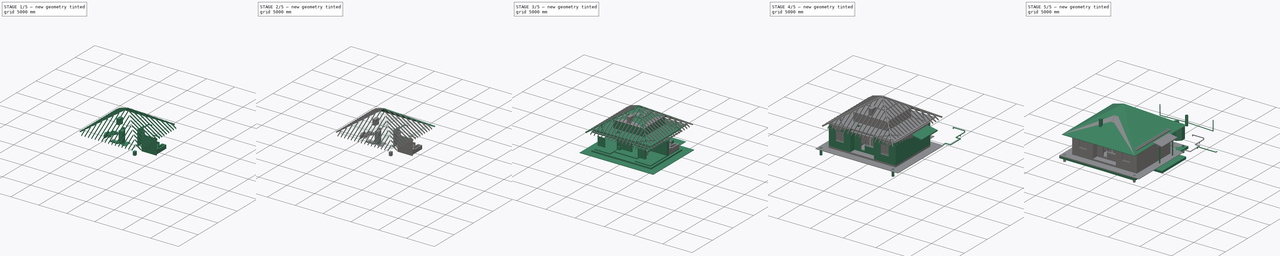
[diagram: build sequence overview — one tinted view per stage of 5, left to right]
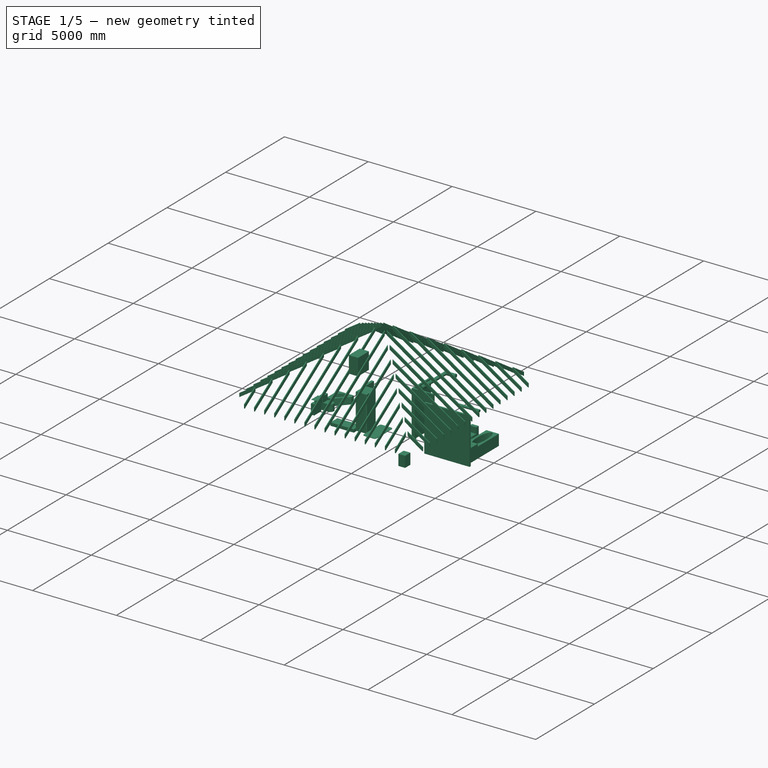
[diagram: stage 1 of 5 — iso view after this stage's code; geometry added in this stage tinted green]
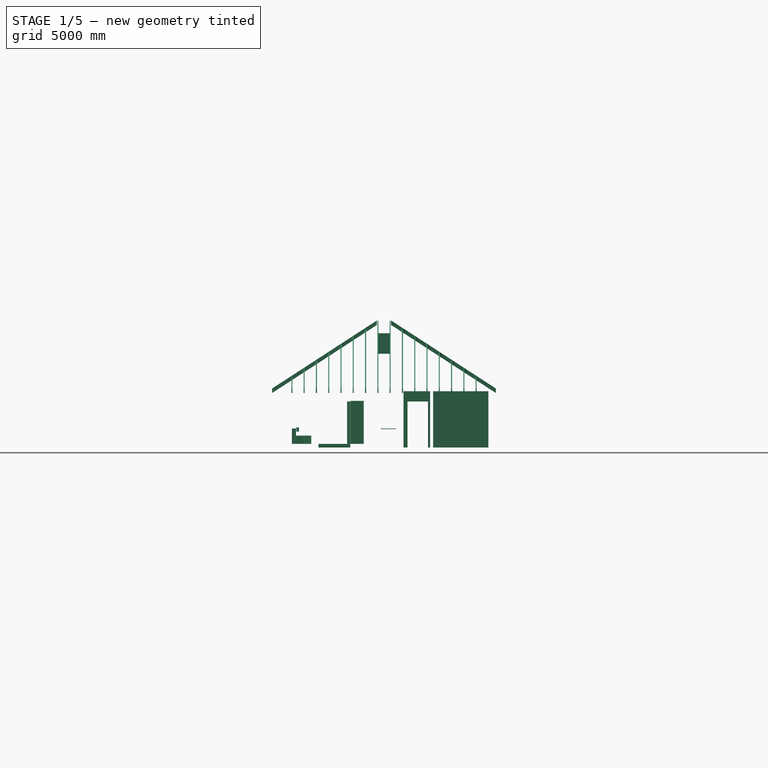
[diagram: stage 1 of 5 — front view after this stage's code; geometry added in this stage tinted green]
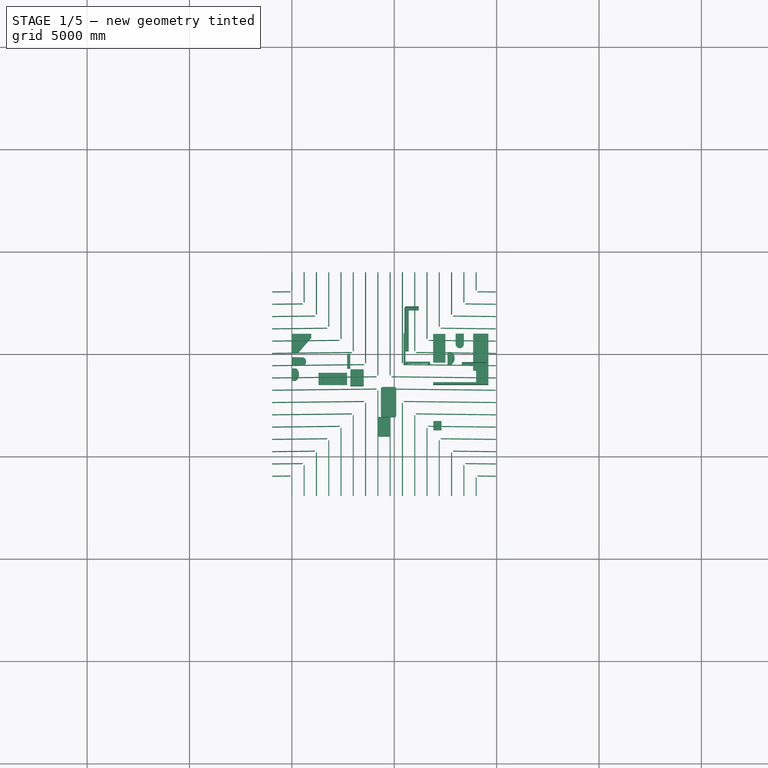
[diagram: stage 1 of 5 — top view after this stage's code; geometry added in this stage tinted green]
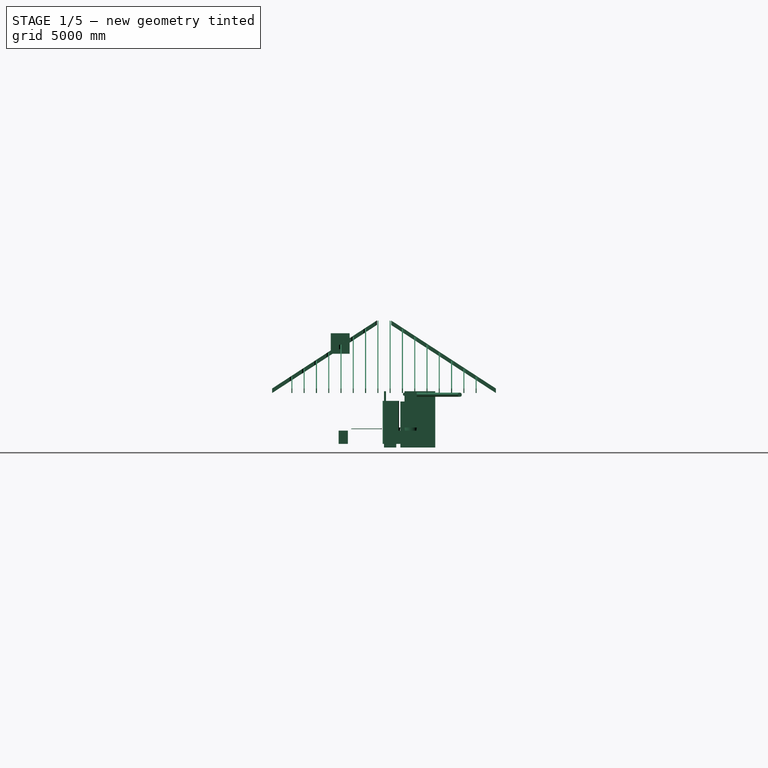
[diagram: stage 1 of 5 — right view after this stage's code; geometry added in this stage tinted green]
FCSTD DOCUMENT  (FreeCAD 0.18.4R)
Label: aeroc_D300_b300_9600x7000_inside_17_02_20
License: All rights reserved
LicenseURL: http://en.wikipedia.org/wiki/All_rights_reserved
objects: Part::Part2DObjectPython×364, Part::FeaturePython×268, Part::Extrusion×48, Part::Box×47, Sketcher::SketchObject×46, App::GeometryPython×39, App::DocumentObjectGroup×29, App::FeaturePython×10, Part::Mirroring×9, Part::MultiFuse×6, Part::Feature×5, Part::Fillet×3, Part::Fuse×2, Part::Loft×2, Part::Cylinder×1
note: 840 computed .brp shape members not serialized (recipe doc carries the construction recipe); baked Part::Feature solids carry a one-line shape summary decoded from their .brp

FEATURE [Part::Extrusion] Extrude045  label="умывальник002"
  Base = -> Face001
  Dir = (0,0,1)
  DirMode = 0
  FaceMakerClass = Part::FaceMakerBullseye
  LengthFwd = 200
  LengthRev = 0
  Solid = false
  Symmetric = false
FEATURE [Part::Part2DObjectPython] DWire002  # Draft 2D object (typed FeaturePython)
  ChamferSize = 0
  Closed = true
  End = (8000,1000,400)
  FilletRadius = 0
  Length = 1202.35
  MakeFace = false
  Placement = pos=(9699.32,-1698.82,-100) rot=(0,0,1;3.14159rad)
  Points = (4) [(1299.32,-2698.82,500),(1299.32,-2497.64,500),(1699.32,-2497.64,500),(1699.32,-2698.82,500)]
  Start = (8400,1000,400)
  Subdivisions = 0
FEATURE [Part::Extrusion] Extrude046  label="унитаз002"
  Base = -> Face002
  Dir = (0,0,-1)
  DirMode = 0
  FaceMakerClass = Part::FaceMakerBullseye
  LengthFwd = 400
  LengthRev = 0
  Solid = true
  Symmetric = false
FEATURE [Part::Extrusion] Extrude047  label="унитаз003"
  Base = -> DWire002
  Dir = (0,0,1)
  DirMode = 0
  FaceMakerClass = Part::FaceMakerBullseye
  LengthFwd = 350
  LengthRev = 0
  Solid = true
  Symmetric = false
FEATURE [Part::Fuse] Fusion002  label="унитаз001"
  Base = -> Extrude046
  Tool = -> Extrude047
FEATURE [Part::Part2DObjectPython] Wire069  label="крыша_кромка"  # Draft 2D object (typed FeaturePython)
  ChamferSize = 0
  Closed = true
  End = (10000,4000,2450)
  FilletRadius = 0
  Length = 44000
  MakeFace = false
  Placement = pos=(-425,2800,2450) rot=(0,0,1;0rad)
  Points = (4) [(-575,1200,0),(-575,-9800,0),(10425,-9800,0),(10425,1200,0)]
  Start = (-1000,4000,2450)
  Subdivisions = 0
FEATURE [Part::Part2DObjectPython] Rectangle395  label="проём_045"  # Draft 2D object (typed FeaturePython)
  ChamferSize = 0
  Columns = 1
  FilletRadius = 0
  Height = 200
  Length = 510
  MakeFace = true
  Placement = pos=(-200,-745,0) rot=(0,0,-1;1.5708rad)
  Rows = 1
FEATURE [Part::Part2DObjectPython] Rectangle398  # Draft 2D object (typed FeaturePython)
  ChamferSize = 0
  Columns = 1
  FilletRadius = 0
  Height = 300
  Length = 0
  MakeFace = false
  Placement = pos=(6000,5700,0) rot=(0,0,1;0rad)
  Rows = 1
FEATURE [Part::Part2DObjectPython] Rectangle399  label="ванна_180х75_001"  # Draft 2D object (typed FeaturePython)
  ChamferSize = 0
  Columns = 1
  FilletRadius = 0
  Height = 750
  Length = 1800
  MakeFace = false
  Placement = pos=(9600,-800,0) rot=(0,0,1;1.5708rad)
  Rows = 1
FEATURE [Part::Part2DObjectPython] Ellipse002  # Draft 2D object (typed FeaturePython)
  FirstAngle = 0
  LastAngle = 0
  MajorRadius = 800
  MakeFace = false
  MinorRadius = 250
  Placement = pos=(9225,100,650) rot=(0,0,1;1.5708rad)
FEATURE [Part::FeaturePython] Structure180  label="Ванна_003"  # Arch/BIM object (typed FeaturePython)
  Base = -> Ellipse002
  FaceMaker = 0
  Height = 400
  HorizontalArea = 628319
  IfcRole = 0
  Length = 0
  MoveWithHost = true
  Nodes = (2) [(9225,100,650),(9225,100,250)]
  NodesOffset = 0
  Normal = (0,0,-1)
  PerimeterLength = 3547.07
  VerticalArea = 1.4122e+06
  Width = 100
FEATURE [Part::FeaturePython] Structure179  label="Ванна_002"  # Arch/BIM object (typed FeaturePython)
  Base = -> Rectangle399
  FaceMaker = 0
  Height = 650
  HorizontalArea = 1.35e+06
  IfcRole = 0
  Length = 0
  MoveWithHost = false
  Nodes = (2) [(7375,2550,0),(7375,2550,650)]
  NodesOffset = 0
  Normal = (0,0,0)
  PerimeterLength = 1860
  Subtractions = -> [Structure180]
  VerticalArea = 4.7272e+06
  Width = 100
FEATURE [Part::Part2DObjectPython] Wire118  # Draft 2D object (typed FeaturePython)
  ChamferSize = 0
  Closed = false
  End = (-5282,-732,-6.23453)
  FilletRadius = 0
  Length = 182
  MakeFace = false
  Placement = pos=(-5282,-732,-138.235) rot=(-0.477077,0.621449,0.621449;4.03188rad)
  Points = (3) [(-4.54747e-12,-50,-5.45697e-12),(0,41,9.10383e-15),(0,132,0)]
  Start = (-5282,-732,-188.235)
  Subdivisions = 0
FEATURE [Part::Part2DObjectPython] Wire119  # Draft 2D object (typed FeaturePython)
  ChamferSize = 0
  Closed = false
  End = (-5334,-784,-23.6954)
  FilletRadius = 0
  Length = 208
  MakeFace = false
  Placement = pos=(-5230,-680,-23.6954) rot=(-0.281085,0.678598,0.678598;3.68962rad)
  Points = (3) [(0,0,0),(73.5391,-73.5391,8.90914e-13),(147.078,1.40687e-12,4.6839e-11)]
  Start = (-5230,-680,-23.6954)
  Subdivisions = 0
FEATURE [Part::Part2DObjectPython] Rectangle506  # Draft 2D object (typed FeaturePython)
  ChamferSize = 0
  Columns = 1
  FilletRadius = 0
  Height = 600
  Length = 200
  MakeFace = false
  Placement = pos=(7800,100,0) rot=(0,0,1;3.14159rad)
  Rows = 1
FEATURE [Part::FeaturePython] Structure250  label="короб_003"  # Arch/BIM object (typed FeaturePython)
  Base = -> Rectangle506
  FaceMaker = 0
  Height = 600
  HorizontalArea = 120000
  IfcRole = 0
  Length = 0
  MoveWithHost = false
  Nodes = (2) [(7650,6725,0),(7650,6725,200)]
  NodesOffset = 0
  Normal = (0,0,0)
  PerimeterLength = 1600
  VerticalArea = 960000
  Width = 100
FEATURE [App::GeometryPython] BuildingPart065  label="Диван "  # Arch/BIM object (typed FeaturePython)
  Area = 0
  Group = -> [Structure275,Structure278,Structure276,Structure277]
  Height = 0
  IfcRole = 0
  LevelOffset = 0
FEATURE [App::FeaturePython] Dimension032  # Draft dimension (typed FeaturePython)
  Diameter = false
  Dimline = (7643.46,4741.47,0)
  Direction = (0,0,0)
  Distance = 858.117
  End = (4275,5300,0)
  Normal = (0,0,1)
  Start = (3416.88,5300,0)
FEATURE [App::FeaturePython] Dimension033  # Draft dimension (typed FeaturePython)
  Diameter = false
  Dimline = (3600,5100,0)
  Direction = (0,0,0)
  Distance = 989.159
  End = (3500,7050,0)
  Normal = (0,0,1)
  Start = (3500,6060.84,0)
FEATURE [App::DocumentObjectGroup] Group068  label="размеры"
  Group = -> [Dimension016,Dimension017,Dimension022,Dimension023,Dimension024,Dimension025,Dimension026,Dimension028,Dimension032,Dimension033]
FEATURE [Part::Box] Box3111  label="холодильник 80см"
  AttacherType = Attacher::AttachEngine3D
  Height = 2100
  Length = 650
  Placement = pos=(2860.11,-1564.76,0) rot=(0,0,1;0rad)
  Width = 800
FEATURE [App::DocumentObjectGroup] Group069  label="тамбур и прихожая"
  Group = -> [Box3117]
FEATURE [Part::Box] Box3131  label="стиральная_машина_60х60"
  AttacherType = Attacher::AttachEngine3D
  Height = 800
  Length = 600
  Placement = pos=(9600,-1400,0) rot=(0,0,1;1.5708rad)
  Width = 600
FEATURE [Part::FeaturePython] Structure371  label="проём двери вн. 008"  # Arch/BIM object (typed FeaturePython)
  Base = -> Rectangle372
  FaceMaker = 0
  Height = 2250
  HorizontalArea = 105000
  IfcRole = 0
  Length = 0
  MoveWithHost = false
  Nodes = (2) [(-4225,7937.5,0),(-4225,7937.5,2250)]
  NodesOffset = 0
  Normal = (0,0,0)
  PerimeterLength = 1700
  Placement = pos=(0,0,-180) rot=(0,0,1;0rad)
  VerticalArea = 3825000
  Width = 100
FEATURE [Part::FeaturePython] Structure372  label="проём двери вн. 009"  # Arch/BIM object (typed FeaturePython)
  Base = -> Rectangle364
  FaceMaker = 0
  Height = 2250
  HorizontalArea = 100000
  IfcRole = 0
  Length = 0
  MoveWithHost = false
  Nodes = (2) [(-4225,7937.5,0),(-4225,7937.5,2250)]
  NodesOffset = 0
  Normal = (0,0,0)
  PerimeterLength = 2200
  Placement = pos=(0,0,-180) rot=(0,0,1;0rad)
  VerticalArea = 4.95e+06
  Width = 100
FEATURE [Part::Box] Box3150  label="столешница006"
  AttacherType = Attacher::AttachEngine3D
  Height = 30
  Length = 750
  Placement = pos=(4350,-3100,720) rot=(0,0,1;0rad)
  Width = 1500
FEATURE [Part::Extrusion] Extrude066  label="стропило_вальм. 100"
  Base = -> Wire221
  Dir = (0,0,-1)
  DirMode = 0
  FaceMakerClass = Part::FaceMakerBullseye
  LengthFwd = 220
  LengthRev = 0
  Solid = true
  Symmetric = false
FEATURE [Part::Extrusion] Extrude067  label="стропило_вальм. 123"
  Base = -> Wire222
  Dir = (0,0,-1)
  DirMode = 0
  FaceMakerClass = Part::FaceMakerBullseye
  LengthFwd = 220
  LengthRev = 0
  Solid = true
  Symmetric = false
FEATURE [Part::Extrusion] Extrude068  label="стропило_вальм. 095"
  Base = -> Wire223
  Dir = (0,0,-1)
  DirMode = 0
  FaceMakerClass = Part::FaceMakerBullseye
  LengthFwd = 220
  LengthRev = 0
  Solid = true
  Symmetric = false
FEATURE [Part::Extrusion] Extrude069  label="стропило_вальм. 124"
  Base = -> Wire224
  Dir = (0,0,-1)
  DirMode = 0
  FaceMakerClass = Part::FaceMakerBullseye
  LengthFwd = 220
  LengthRev = 0
  Solid = true
  Symmetric = false
FEATURE [Part::Extrusion] Extrude070  label="стропило_вальм. 098"
  Base = -> Wire225
  Dir = (0,0,-1)
  DirMode = 0
  FaceMakerClass = Part::FaceMakerBullseye
  LengthFwd = 220
  LengthRev = 0
  Solid = true
  Symmetric = false
FEATURE [Part::Extrusion] Extrude071  label="стропило_вальм. 119"
  Base = -> Wire226
  Dir = (0,0,-1)
  DirMode = 0
  FaceMakerClass = Part::FaceMakerBullseye
  LengthFwd = 220
  LengthRev = 0
  Solid = true
  Symmetric = false
FEATURE [Part::Extrusion] Extrude072  label="стропило_вальм. 110"
  Base = -> Wire227
  Dir = (0,0,-1)
  DirMode = 0
  FaceMakerClass = Part::FaceMakerBullseye
  LengthFwd = 220
  LengthRev = 0
  Solid = true
  Symmetric = false
FEATURE [Part::Extrusion] Extrude073  label="стропило_вальм. 105"
  Base = -> Wire212
  Dir = (0,0,-1)
  DirMode = 0
  FaceMakerClass = Part::FaceMakerBullseye
  LengthFwd = 220
  LengthRev = 0
  Solid = true
  Symmetric = false
FEATURE [Part::Extrusion] Extrude074  label="стропило_вальм. 114"
  Base = -> Wire213
  Dir = (0,0,-1)
  DirMode = 0
  FaceMakerClass = Part::FaceMakerBullseye
  LengthFwd = 220
  LengthRev = 0
  Solid = true
  Symmetric = false
FEATURE [Part::Extrusion] Extrude075  label="стропило_вальм. 099"
  Base = -> Wire214
  Dir = (0,0,-1)
  DirMode = 0
  FaceMakerClass = Part::FaceMakerBullseye
  LengthFwd = 220
  LengthRev = 0
  Solid = true
  Symmetric = false
FEATURE [Part::Extrusion] Extrude076  label="стропило_вальм. 116"
  Base = -> Wire215
  Dir = (0,0,-1)
  DirMode = 0
  FaceMakerClass = Part::FaceMakerBullseye
  LengthFwd = 220
  LengthRev = 0
  Solid = true
  Symmetric = false
FEATURE [Part::Extrusion] Extrude077  label="стропило_вальм. 108"
  Base = -> Wire216
  Dir = (0,0,-1)
  DirMode = 0
  FaceMakerClass = Part::FaceMakerBullseye
  LengthFwd = 220
  LengthRev = 0
  Solid = true
  Symmetric = false
FEATURE [Part::Extrusion] Extrude078  label="стропило_вальм. 117"
  Base = -> Wire217
  Dir = (0,0,-1)
  DirMode = 0
  FaceMakerClass = Part::FaceMakerBullseye
  LengthFwd = 220
  LengthRev = 0
  Solid = true
  Symmetric = false
FEATURE [Part::Extrusion] Extrude079  label="стропило_вальм. 122"
  Base = -> Wire218
  Dir = (0,0,-1)
  DirMode = 0
  FaceMakerClass = Part::FaceMakerBullseye
  LengthFwd = 220
  LengthRev = 0
  Solid = true
  Symmetric = false
FEATURE [Part::Extrusion] Extrude080  label="стропило_вальм. 112"
  Base = -> Wire219
  Dir = (0,0,-1)
  DirMode = 0
  FaceMakerClass = Part::FaceMakerBullseye
  LengthFwd = 220
  LengthRev = 0
  Solid = true
  Symmetric = false
FEATURE [Part::Extrusion] Extrude081  label="стропило_вальм. 107"
  Base = -> Wire220
  Dir = (0,0,-1)
  DirMode = 0
  FaceMakerClass = Part::FaceMakerBullseye
  LengthFwd = 220
  LengthRev = 0
  Solid = true
  Symmetric = false
FEATURE [Part::Extrusion] Extrude082  label="стропило_вальм. 118"
  Base = -> Wire221
  Dir = (0,0,-1)
  DirMode = 0
  FaceMakerClass = Part::FaceMakerBullseye
  LengthFwd = 220
  LengthRev = 0
  Solid = true
  Symmetric = false
FEATURE [Part::Extrusion] Extrude083  label="стропило_вальм. 094"
  Base = -> Wire222
  Dir = (0,0,-1)
  DirMode = 0
  FaceMakerClass = Part::FaceMakerBullseye
  LengthFwd = 220
  LengthRev = 0
  Solid = true
  Symmetric = false
FEATURE [Part::Extrusion] Extrude084  label="стропило_вальм. 113"
  Base = -> Wire223
  Dir = (0,0,-1)
  DirMode = 0
  FaceMakerClass = Part::FaceMakerBullseye
  LengthFwd = 220
  LengthRev = 0
  Solid = true
  Symmetric = false
FEATURE [Part::Extrusion] Extrude085  label="стропило_вальм. 115"
  Base = -> Wire224
  Dir = (0,0,-1)
  DirMode = 0
  FaceMakerClass = Part::FaceMakerBullseye
  LengthFwd = 220
  LengthRev = 0
  Solid = true
  Symmetric = false
FEATURE [Part::Extrusion] Extrude086  label="стропило_вальм. 111"
  Base = -> Wire225
  Dir = (0,0,-1)
  DirMode = 0
  FaceMakerClass = Part::FaceMakerBullseye
  LengthFwd = 220
  LengthRev = 0
  Solid = true
  Symmetric = false
FEATURE [Part::Extrusion] Extrude087  label="стропило_вальм. 103"
  Base = -> Wire226
  Dir = (0,0,-1)
  DirMode = 0
  FaceMakerClass = Part::FaceMakerBullseye
  LengthFwd = 220
  LengthRev = 0
  Solid = true
  Symmetric = false
FEATURE [Part::Extrusion] Extrude088  label="стропило_вальм. 120"
  Base = -> Wire227
  Dir = (0,0,-1)
  DirMode = 0
  FaceMakerClass = Part::FaceMakerBullseye
  LengthFwd = 220
  LengthRev = 0
  Solid = true
  Symmetric = false
FEATURE [Part::FeaturePython] Array253  # Draft array (typed FeaturePython)
  Angle = 360
  ArrayType = 1
  Axis = (0,0,1)
  Base = -> Extrude066
  Center = (4500,-1500,0)
  Fuse = false
  IntervalAxis = (0,0,0)
  IntervalX = (1,0,0)
  IntervalY = (0,1,0)
  IntervalZ = (0,0,1)
  NumberPolar = 4
  NumberX = 1
  NumberY = 1
  NumberZ = 1
FEATURE [Part::FeaturePython] Array254  # Draft array (typed FeaturePython)
  Angle = 360
  ArrayType = 1
  Axis = (0,0,1)
  Base = -> Extrude067
  Center = (4500,-1500,0)
  Fuse = false
  IntervalAxis = (0,0,0)
  IntervalX = (1,0,0)
  IntervalY = (0,1,0)
  IntervalZ = (0,0,1)
  NumberPolar = 4
  NumberX = 1
  NumberY = 1
  NumberZ = 1
FEATURE [Part::FeaturePython] Array255  # Draft array (typed FeaturePython)
  Angle = 360
  ArrayType = 1
  Axis = (0,0,1)
  Base = -> Extrude068
  Center = (4500,-1500,0)
  Fuse = false
  IntervalAxis = (0,0,0)
  IntervalX = (1,0,0)
  IntervalY = (0,1,0)
  IntervalZ = (0,0,1)
  NumberPolar = 4
  NumberX = 1
  NumberY = 1
  NumberZ = 1
FEATURE [Part::FeaturePython] Array256  # Draft array (typed FeaturePython)
  Angle = 360
  ArrayType = 1
  Axis = (0,0,1)
  Base = -> Extrude069
  Center = (4500,-1500,0)
  Fuse = false
  IntervalAxis = (0,0,0)
  IntervalX = (1,0,0)
  IntervalY = (0,1,0)
  IntervalZ = (0,0,1)
  NumberPolar = 4
  NumberX = 1
  NumberY = 1
  NumberZ = 1
FEATURE [Part::FeaturePython] Array257  # Draft array (typed FeaturePython)
  Angle = 360
  ArrayType = 1
  Axis = (0,0,1)
  Base = -> Extrude070
  Center = (4500,-1500,0)
  Fuse = false
  IntervalAxis = (0,0,0)
  IntervalX = (1,0,0)
  IntervalY = (0,1,0)
  IntervalZ = (0,0,1)
  NumberPolar = 4
  NumberX = 1
  NumberY = 1
  NumberZ = 1
FEATURE [Part::FeaturePython] Array258  # Draft array (typed FeaturePython)
  Angle = 360
  ArrayType = 1
  Axis = (0,0,1)
  Base = -> Extrude071
  Center = (4500,-1500,0)
  Fuse = false
  IntervalAxis = (0,0,0)
  IntervalX = (1,0,0)
  IntervalY = (0,1,0)
  IntervalZ = (0,0,1)
  NumberPolar = 4
  NumberX = 1
  NumberY = 1
  NumberZ = 1
FEATURE [Part::FeaturePython] Array259  # Draft array (typed FeaturePython)
  Angle = 360
  ArrayType = 1
  Axis = (0,0,1)
  Base = -> Extrude072
  Center = (4500,-1500,0)
  Fuse = false
  IntervalAxis = (0,0,0)
  IntervalX = (1,0,0)
  IntervalY = (0,1,0)
  IntervalZ = (0,0,1)
  NumberPolar = 4
  NumberX = 1
  NumberY = 1
  NumberZ = 1
FEATURE [Part::FeaturePython] Array260  # Draft array (typed FeaturePython)
  Angle = 360
  ArrayType = 1
  Axis = (0,0,1)
  Base = -> Extrude073
  Center = (4500,-1500,0)
  Fuse = false
  IntervalAxis = (0,0,0)
  IntervalX = (1,0,0)
  IntervalY = (0,1,0)
  IntervalZ = (0,0,1)
  NumberPolar = 4
  NumberX = 1
  NumberY = 1
  NumberZ = 1
FEATURE [Part::FeaturePython] Array261  # Draft array (typed FeaturePython)
  Angle = 360
  ArrayType = 1
  Axis = (0,0,1)
  Base = -> Extrude074
  Center = (4500,-1500,0)
  Fuse = false
  IntervalAxis = (0,0,0)
  IntervalX = (1,0,0)
  IntervalY = (0,1,0)
  IntervalZ = (0,0,1)
  NumberPolar = 4
  NumberX = 1
  NumberY = 1
  NumberZ = 1
FEATURE [Part::FeaturePython] Array262  # Draft array (typed FeaturePython)
  Angle = 360
  ArrayType = 1
  Axis = (0,0,1)
  Base = -> Extrude075
  Center = (4500,-1500,0)
  Fuse = false
  IntervalAxis = (0,0,0)
  IntervalX = (1,0,0)
  IntervalY = (0,1,0)
  IntervalZ = (0,0,1)
  NumberPolar = 4
  NumberX = 1
  NumberY = 1
  NumberZ = 1
FEATURE [Part::FeaturePython] Array263  # Draft array (typed FeaturePython)
  Angle = 360
  ArrayType = 1
  Axis = (0,0,1)
  Base = -> Extrude076
  Center = (4500,-1500,0)
  Fuse = false
  IntervalAxis = (0,0,0)
  IntervalX = (1,0,0)
  IntervalY = (0,1,0)
  IntervalZ = (0,0,1)
  NumberPolar = 4
  NumberX = 1
  NumberY = 1
  NumberZ = 1
FEATURE [Part::FeaturePython] Array264  # Draft array (typed FeaturePython)
  Angle = 360
  ArrayType = 1
  Axis = (0,0,1)
  Base = -> Extrude077
  Center = (4500,-1500,0)
  Fuse = false
  IntervalAxis = (0,0,0)
  IntervalX = (1,0,0)
  IntervalY = (0,1,0)
  IntervalZ = (0,0,1)
  NumberPolar = 4
  NumberX = 1
  NumberY = 1
  NumberZ = 1
FEATURE [Part::FeaturePython] Array265  # Draft array (typed FeaturePython)
  Angle = 360
  ArrayType = 1
  Axis = (0,0,1)
  Base = -> Extrude078
  Center = (4500,-1500,0)
  Fuse = false
  IntervalAxis = (0,0,0)
  IntervalX = (1,0,0)
  IntervalY = (0,1,0)
  IntervalZ = (0,0,1)
  NumberPolar = 4
  NumberX = 1
  NumberY = 1
  NumberZ = 1
FEATURE [Part::FeaturePython] Array266  # Draft array (typed FeaturePython)
  Angle = 360
  ArrayType = 1
  Axis = (0,0,1)
  Base = -> Extrude079
  Center = (4500,-1500,0)
  Fuse = false
  IntervalAxis = (0,0,0)
  IntervalX = (1,0,0)
  IntervalY = (0,1,0)
  IntervalZ = (0,0,1)
  NumberPolar = 4
  NumberX = 1
  NumberY = 1
  NumberZ = 1
FEATURE [Part::FeaturePython] Array267  # Draft array (typed FeaturePython)
  Angle = 360
  ArrayType = 1
  Axis = (0,0,1)
  Base = -> Extrude080
  Center = (4500,-1500,0)
  Fuse = false
  IntervalAxis = (0,0,0)
  IntervalX = (1,0,0)
  IntervalY = (0,1,0)
  IntervalZ = (0,0,1)
  NumberPolar = 4
  NumberX = 1
  NumberY = 1
  NumberZ = 1
FEATURE [Part::FeaturePython] Array268  # Draft array (typed FeaturePython)
  Angle = 360
  ArrayType = 1
  Axis = (0,0,1)
  Base = -> Extrude081
  Center = (4500,-1500,0)
  Fuse = false
  IntervalAxis = (0,0,0)
  IntervalX = (1,0,0)
  IntervalY = (0,1,0)
  IntervalZ = (0,0,1)
  NumberPolar = 4
  NumberX = 1
  NumberY = 1
  NumberZ = 1
FEATURE [Part::FeaturePython] Array269  # Draft array (typed FeaturePython)
  Angle = 360
  ArrayType = 1
  Axis = (0,0,1)
  Base = -> Extrude082
  Center = (4500,-1500,0)
  Fuse = false
  IntervalAxis = (0,0,0)
  IntervalX = (1,0,0)
  IntervalY = (0,1,0)
  IntervalZ = (0,0,1)
  NumberPolar = 4
  NumberX = 1
  NumberY = 1
  NumberZ = 1
FEATURE [Part::FeaturePython] Array270  # Draft array (typed FeaturePython)
  Angle = 360
  ArrayType = 1
  Axis = (0,0,1)
  Base = -> Extrude083
  Center = (4500,-1500,0)
  Fuse = false
  IntervalAxis = (0,0,0)
  IntervalX = (1,0,0)
  IntervalY = (0,1,0)
  IntervalZ = (0,0,1)
  NumberPolar = 4
  NumberX = 1
  NumberY = 1
  NumberZ = 1
FEATURE [Part::FeaturePython] Array271  # Draft array (typed FeaturePython)
  Angle = 360
  ArrayType = 1
  Axis = (0,0,1)
  Base = -> Extrude084
  Center = (4500,-1500,0)
  Fuse = false
  IntervalAxis = (0,0,0)
  IntervalX = (1,0,0)
  IntervalY = (0,1,0)
  IntervalZ = (0,0,1)
  NumberPolar = 4
  NumberX = 1
  NumberY = 1
  NumberZ = 1
FEATURE [Part::FeaturePython] Array272  # Draft array (typed FeaturePython)
  Angle = 360
  ArrayType = 1
  Axis = (0,0,1)
  Base = -> Extrude085
  Center = (4500,-1500,0)
  Fuse = false
  IntervalAxis = (0,0,0)
  IntervalX = (1,0,0)
  IntervalY = (0,1,0)
  IntervalZ = (0,0,1)
  NumberPolar = 4
  NumberX = 1
  NumberY = 1
  NumberZ = 1
FEATURE [Part::FeaturePython] Array273  # Draft array (typed FeaturePython)
  Angle = 360
  ArrayType = 1
  Axis = (0,0,1)
  Base = -> Extrude086
  Center = (4500,-1500,0)
  Fuse = false
  IntervalAxis = (0,0,0)
  IntervalX = (1,0,0)
  IntervalY = (0,1,0)
  IntervalZ = (0,0,1)
  NumberPolar = 4
  NumberX = 1
  NumberY = 1
  NumberZ = 1
FEATURE [Part::FeaturePython] Array274  # Draft array (typed FeaturePython)
  Angle = 360
  ArrayType = 1
  Axis = (0,0,1)
  Base = -> Extrude087
  Center = (4500,-1500,0)
  Fuse = false
  IntervalAxis = (0,0,0)
  IntervalX = (1,0,0)
  IntervalY = (0,1,0)
  IntervalZ = (0,0,1)
  NumberPolar = 4
  NumberX = 1
  NumberY = 1
  NumberZ = 1
FEATURE [Part::FeaturePython] Array275  # Draft array (typed FeaturePython)
  Angle = 360
  ArrayType = 1
  Axis = (0,0,1)
  Base = -> Extrude088
  Center = (4500,-1500,0)
  Fuse = false
  IntervalAxis = (0,0,0)
  IntervalX = (1,0,0)
  IntervalY = (0,1,0)
  IntervalZ = (0,0,1)
  NumberPolar = 4
  NumberX = 1
  NumberY = 1
  NumberZ = 1
FEATURE [App::GeometryPython] BuildingPart106  label="стропила_вальмовые"  # Arch/BIM object (typed FeaturePython)
  Area = 0
  Group = -> [Array244,Array245,Array246,Array247,Array248,Array249,Array250,Array251,Array252,Array253,Array254,Array255,Array256,Array257,Array258,Array259,Array260,Array261,Array262,Array263,Array264,Array265,Array266,Array267,Array268,Array269,Array270,Array271,Array272,Array273,Array274,Array275]
  Height = 0
  IfcRole = 0
  LevelOffset = 0
FEATURE [Part::Part2DObjectPython] Wire228  label="подающий воздуховод 055"  # Draft 2D object (typed FeaturePython)
  ChamferSize = 0
  Closed = false
  End = (5600,100,0)
  FilletRadius = 0
  Length = 2700
  MakeFace = false
  Placement = pos=(16200,-2600,0) rot=(0,0,1;3.14159rad)
  Points = (3) [(10000,-4800,0),(10600,-4800,0),(10600,-2700,0)]
  Start = (6200,2200,0)
  Subdivisions = 0
FEATURE [Part::FeaturePython] Pipe072  label="подающий воздуховод 054"  # Arch/BIM object (typed FeaturePython)
  Base = -> Wire228
  Diameter = 200
  HorizontalArea = 0
  IfcRole = 98
  Length = 2700
  MoveWithHost = false
  OffsetEnd = 0
  OffsetStart = 0
  PerimeterLength = 0
  Placement = pos=(0,0,2400) rot=(0,0,1;0rad)
  VerticalArea = 0
FEATURE [Sketcher::SketchObject] Sketch190
  Placement = pos=(4225,-4100,4592.9) rot=(1,0,0;0.575959rad)
  sketch-geometry (16):
    g0: LineSegment StartX=0 StartY=0 StartZ=0 EndX=550 EndY=0 EndZ=0
    g1: LineSegment StartX=550 StartY=0 StartZ=0 EndX=550 EndY=1100 EndZ=0
    g2: LineSegment StartX=550 StartY=1100 StartZ=0 EndX=0 EndY=1100 EndZ=0
    g3: LineSegment StartX=0 StartY=1100 StartZ=0 EndX=0 EndY=0 EndZ=0
    g4: LineSegment StartX=50 StartY=50 StartZ=0 EndX=500 EndY=50 EndZ=0
    g5: LineSegment StartX=500 StartY=50 StartZ=0 EndX=500 EndY=1050 EndZ=0
    g6: LineSegment StartX=500 StartY=1050 StartZ=0 EndX=50 EndY=1050 EndZ=0
    g7: LineSegment StartX=50 StartY=1050 StartZ=0 EndX=50 EndY=50 EndZ=0
    g8: LineSegment StartX=55 StartY=55 StartZ=0 EndX=495 EndY=55 EndZ=0
    g9: LineSegment StartX=495 StartY=55 StartZ=0 EndX=495 EndY=1045 EndZ=0
    g10: LineSegment StartX=495 StartY=1045 StartZ=0 EndX=55 EndY=1045 EndZ=0
    g11: LineSegment StartX=55 StartY=1045 StartZ=0 EndX=55 EndY=55 EndZ=0
    g12: LineSegment StartX=105 StartY=105 StartZ=0 EndX=445 EndY=105 EndZ=0
    g13: LineSegment StartX=445 StartY=105 StartZ=0 EndX=445 EndY=995 EndZ=0
    g14: LineSegment StartX=445 StartY=995 StartZ=0 EndX=105 EndY=995 EndZ=0
    g15: LineSegment StartX=105 StartY=995 StartZ=0 EndX=105 EndY=105 EndZ=0
  constraints (47):
    c: Coincident(g0,g1)
    c: Coincident(g1,g2)
    c: Coincident(g2,g3)
    c: Coincident(g3,g0)
    c: Horizontal(g0)
    c: Horizontal(g2)
    c: Vertical(g1)
    c: Vertical(g3)
    c: Coincident(g4,g5)
    c: Coincident(g5,g6)
    c: Coincident(g6,g7)
    c: Coincident(g7,g4)
    c: Horizontal(g4)
    c: Horizontal(g6)
    c: Vertical(g5)
    c: Vertical(g7)
    c: DistanceY(g1) = 1100  'Height'
    c: DistanceX(g0) = 550  'Width'
    c: DistanceY(g6,g2) = 50  'Frame1'
    c: DistanceX(g2,g6) = 50  'Frame2'
    c: DistanceX(g4,g0) = 50  'Frame3'
    c: DistanceY(g0,g4) = 50  'Frame4'
    c: Coincident(g0,g-1)
    c: Coincident(g8,g9)
    c: Coincident(g9,g10)
    c: Coincident(g10,g11)
    c: Coincident(g11,g8)
    c: Horizontal(g8)
    c: Horizontal(g10)
    c: Vertical(g9)
    c: Vertical(g11)
    c: Coincident(g12,g13)
    c: Coincident(g13,g14)
    c: Coincident(g14,g15)
    c: Coincident(g15,g12)
    c: Horizontal(g12)
    c: Horizontal(g14)
    c: Vertical(g13)
    c: Vertical(g15)
    c: DistanceX(g8,g12) = 50  'Frame5'
    c: DistanceY(g8,g12) = 50  'Frame6'
    c: DistanceX(g14,g10) = 50  'Frame8'
    c: DistanceY(g14,g10) = 50  'Frame7'
    c: DistanceX(g4,g8) = 5
    c: DistanceY(g4,g8) = 5
    c: DistanceX(g10,g6) = 5
    c: DistanceY(g10,g6) = 5
FEATURE [Part::FeaturePython] Window011  label="мансардное_окно"  # Arch/BIM object (typed FeaturePython)
  Area = 605000
  Base = -> Sketch190
  Frame = 50
  Height = 1100
  HoleDepth = 0
  HoleWire = 0
  HorizontalArea = 0
  IfcRole = 160
  LouvreSpacing = 0
  LouvreWidth = 0
  MoveWithHost = true
  Normal = (0,0.544639,-0.838671)
  Opening = 0
  PerimeterLength = 0
  Preset = 2
  SymbolElevation = false
  SymbolPlan = false
  VerticalArea = 0
  Width = 550
  WindowParts = OuterFrame | Frame | Wire0,Wire1 | 0.0+V | 0.00+V | InnerFrame | Frame | Wire2,Wire3 | 0.00+V | 0.0+V | InnerGlass | Glass panel | Wire3 | 5.0 | 25.0+V
FEATURE [Part::Part2DObjectPython] Rectangle924  label="проём_манс_окна_001"  # Draft 2D object (typed FeaturePython)
  ChamferSize = 0
  Columns = 1
  FilletRadius = 0
  Height = 922.538
  Length = 550
  MakeFace = false
  Placement = pos=(4225,-4100,0) rot=(0,0,1;0rad)
  Rows = 1
FEATURE [Part::FeaturePython] Structure540  label="проём_мансардного окна"  # Arch/BIM object (typed FeaturePython)
  Base = -> Rectangle924
  FaceMaker = 0
  Height = 1000
  HorizontalArea = 507396
  IfcRole = 0
  Length = 0
  MoveWithHost = false
  Nodes = (2) [(3838.98,5661.82,0),(3838.98,5661.82,500)]
  NodesOffset = 0
  Normal = (0,0,1)
  PerimeterLength = 2945.08
  Placement = pos=(0,0,4400) rot=(0,0,1;0rad)
  VerticalArea = 2.94508e+06
  Width = 100
FEATURE [App::GeometryPython] BuildingPart036  label="Кровля"  # Arch/BIM object (typed FeaturePython)
  Area = 0
  Group = -> [Roof002,Pipe065,Pipe071,Pipe070,mirror,mirror001,mirror002,mirror003,mirror004,mirror005,mirror006,mirror007,mirror008,BuildingPart106,Structure538,Window011]
  Height = 0
  IfcRole = 0
  LevelOffset = 0
FEATURE [App::GeometryPython] BuildingPart  label="проёмы"  # Arch/BIM object (typed FeaturePython)
  Area = 0
  Group = -> [Structure188,Structure192,Structure193,Structure194,Structure195,Structure196,Structure177,Structure178,Structure293,Structure364,Structure363,Wall089,Wall090,Structure365,Structure368,Structure366,Structure367,Structure371,Structure372,Structure369,Structure370,Structure386,Structure387,Structure388,Structure389,Structure390,Structure391,Structure392,Structure385,Structure540]
  Height = 0
  IfcRole = 0
  LevelOffset = 0
  Placement = pos=(-50,0,0) rot=(0,0,1;0rad)
FEATURE [Part::Part2DObjectPython] Rectangle925  label="сервисная зона рекуператора"  # Draft 2D object (typed FeaturePython)
  ChamferSize = 0
  Columns = 1
  FilletRadius = 0
  Height = 700
  Length = 800
  MakeFace = false
  Placement = pos=(8900,-600,0) rot=(0,0,1;1.5708rad)
  Rows = 1
FEATURE [Part::Part2DObjectPython] Wire229  label="приточная вентиляция 004"  # Draft 2D object (typed FeaturePython)
  ChamferSize = 0
  Closed = false
  End = (9500,-500,0)
  FilletRadius = 0
  Length = 1200
  MakeFace = true
  Placement = pos=(9220,-4710,250) rot=(0,0,1;0rad)
  Points = (3) [(-920,4210,-250),(-320,4210,-250),(280,4210,-250)]
  Start = (8300,-500,0)
  Subdivisions = 0
FEATURE [App::DocumentObjectGroup] Group066  label="Отопление_и_вентиляция"
  Group = -> [Rectangle518,Rectangle519,Rectangle520,Wire142,Line462,Wire143,Wire145,Wire144,Line448,Line451,Wire149,Wire150,Rectangle523,Wire158,Line555,Line553,Line445,Line554,Wire171,Wire170,Line560,Line561,Wire,Wire228,Rectangle925,Wire229]
FEATURE [App::DocumentObjectGroup] Group067  label="инж.системы"
  Group = -> [Group066,Group071,Group103]
FEATURE [Part::FeaturePython] Pipe073  label="приточная вентиляция 003"  # Arch/BIM object (typed FeaturePython)
  Base = -> Wire229
  Diameter = 150
  HorizontalArea = 0
  IfcRole = 98
  Length = 1200
  MoveWithHost = false
  OffsetEnd = 0
  OffsetStart = 0
  PerimeterLength = 0
  Placement = pos=(0,0,2425) rot=(0,0,1;0rad)
  VerticalArea = 0
FEATURE [Part::Part2DObjectPython] Rectangle930  label="Rectangle773"  # Draft 2D object (typed FeaturePython)
  ChamferSize = 0
  Columns = 1
  FilletRadius = 0
  Height = 50
  Length = 150
  MakeFace = true
  Placement = pos=(6750,-650,0) rot=(0,0,1;0rad)
  Rows = 1
FEATURE [Part::Part2DObjectPython] Line713  # Draft 2D object (typed FeaturePython)
  ChamferSize = 0
  Closed = false
  End = (6825,-600,0)
  FilletRadius = 0
  Length = 700
  MakeFace = true
  Placement = pos=(6825,-1200,0) rot=(0,0,1;0rad)
  Points = (2) [(0,-100,0),(-1.81899e-12,600,0)]
  Start = (6825,-1300,0)
  Subdivisions = 0
FEATURE [Part::Part2DObjectPython] Rectangle931  # Draft 2D object (typed FeaturePython)
  ChamferSize = 0
  Columns = 1
  FilletRadius = 0
  Height = 50
  Length = 150
  MakeFace = true
  Placement = pos=(6750,-1300,0) rot=(0,0,1;0rad)
  Rows = 1
FEATURE [Part::Part2DObjectPython] Wire237  label="перегородка 005"  # Draft 2D object (typed FeaturePython)
  ChamferSize = 0
  Closed = true
  End = (9600,-1400,0)
  FilletRadius = 0
  Length = 5600
  MakeFace = true
  Placement = pos=(9075,1650,0) rot=(0,0,1;0rad)
  Points = (4) [(525,-3150,0),(-2175,-3150,0),(-2175,-3050,0),(525,-3050,0)]
  Start = (9600,-1500,0)
  Subdivisions = 0
FEATURE [Part::Part2DObjectPython] Rectangle932  # Draft 2D object (typed FeaturePython)
  ChamferSize = 0
  Columns = 1
  FilletRadius = 0
  Height = 50
  Length = 150
  MakeFace = true
  Placement = pos=(2850,-1600,0) rot=(0,0,1;3.14159rad)
  Rows = 1
FEATURE [Part::Part2DObjectPython] Line714  # Draft 2D object (typed FeaturePython)
  ChamferSize = 0
  Closed = false
  End = (2775,-1600,0)
  FilletRadius = 0
  Length = 900
  MakeFace = true
  Placement = pos=(2775,-2500,0) rot=(0,0,1;3.14159rad)
  Points = (2) [(0,0,0),(5.45697e-12,-900,0)]
  Start = (2775,-2500,0)
  Subdivisions = 0
FEATURE [Part::Part2DObjectPython] Rectangle933  # Draft 2D object (typed FeaturePython)
  ChamferSize = 0
  Columns = 1
  FilletRadius = 0
  Height = 50
  Length = 150
  MakeFace = true
  Placement = pos=(2850,-2450,0) rot=(0,0,1;3.14159rad)
  Rows = 1
FEATURE [App::DocumentObjectGroup] Group037  label="стены и перегородки"
  Group = -> [Wire062,Rectangle377,Rectangle372,Rectangle367,Rectangle365,Rectangle364,Rectangle362,Rectangle363,Rectangle375,Rectangle374,Rectangle395,Wire100,Rectangle541,Rectangle563,Rectangle381,Rectangle586,Rectangle605,Rectangle606,Rectangle604,Rectangle749,Rectangle746,Rectangle713,Line,Rectangle708,Rectangle715,Line581,Rectangle714,Rectangle725,Line583,Rectangle724,Rectangle728,Line584,Rectangle727,+23 more]
FEATURE [Part::FeaturePython] Wall101  label="перегородка 003"  # Arch/BIM object (typed FeaturePython)
  Align = 2
  Base = -> Wire234
  BlockHeight = 0
  BlockLength = 0
  CountBroken = 0
  CountEntire = 0
  Face = 0
  Height = 2750
  HorizontalArea = 270000
  IfcRole = 156
  Joint = 0
  Length = 0
  MakeBlocks = false
  MoveWithHost = false
  Normal = (0,0,0)
  OffsetFirst = 0
  OffsetSecond = 0
  PerimeterLength = 5600
  Placement = pos=(0,0,-180) rot=(0,0,1;0rad)
  Subtractions = -> [Structure371,Structure372]
  VerticalArea = 11350000
  Width = 200
FEATURE [Part::FeaturePython] Wall102  label="перегородка 004"  # Arch/BIM object (typed FeaturePython)
  Align = 2
  Base = -> Wire237
  BlockHeight = 0
  BlockLength = 0
  CountBroken = 0
  CountEntire = 0
  Face = 0
  Height = 2750
  HorizontalArea = 270000
  IfcRole = 156
  Joint = 0
  Length = 0
  MakeBlocks = false
  MoveWithHost = false
  Normal = (0,0,0)
  OffsetFirst = 0
  OffsetSecond = 0
  PerimeterLength = 5600
  Placement = pos=(0,0,-180) rot=(0,0,1;0rad)
  Subtractions = -> [Structure371,Structure372]
  VerticalArea = 15400000
  Width = 200
FEATURE [App::GeometryPython] BuildingPart033  label="перегородки"  # Arch/BIM object (typed FeaturePython)
  Area = 0
  Group = -> [Wall032,Wall071,Extrude,Wall102,Wall101]
  Height = 0
  IfcRole = 0
  LevelOffset = 0
FEATURE [Part::FeaturePython] Structure541  label="проём двери вн. 010"  # Arch/BIM object (typed FeaturePython)
  Base = -> Rectangle362
  FaceMaker = 0
  Height = 2250
  HorizontalArea = 105000
  IfcRole = 0
  Length = 0
  MoveWithHost = false
  Nodes = (2) [(-4225,7937.5,0),(-4225,7937.5,2250)]
  NodesOffset = 0
  Normal = (0,0,0)
  PerimeterLength = 1700
  Placement = pos=(0,0,-180) rot=(0,0,1;0rad)
  VerticalArea = 3825000
  Width = 100
FEATURE [Part::Fillet] Fillet001  label="холодильник 80см_"
  Base = -> Box3111
  Edges = 2 edges r=50: [Edge5,Edge7]
FEATURE [Part::Box] Box3515  label="тумбочка 004"
  AttacherType = Attacher::AttachEngine3D
  Height = 650
  Length = 400
  Placement = pos=(7309.76,-3265.43,0) rot=(0,0,1;3.14159rad)
  Width = 450
FEATURE [App::DocumentObjectGroup] ____________001  label="спальня  поменьше"
  Group = -> [Box3097,Extrude037,Extrude034,Extrude054,Box3143,Box3515]
FEATURE [App::DocumentObjectGroup] Group039  label="спальни"
  Group = -> [____________,____________001]
FEATURE [Part::Feature] Face003  label="умывальник003"
  Placement = pos=(2000,3200,600) rot=(0,0,-1;1.5708rad)
  shape: bbox 353.2 x 600 x 2e-07 mm, 1 faces, 0 solids (baked)
FEATURE [Part::Extrusion] Extrude089  label="умывальник004"
  Base = -> Face003
  Dir = (0,0,1)
  DirMode = 0
  FaceMakerClass = Part::FaceMakerBullseye
  LengthFwd = 200
  LengthRev = 0
  Placement = pos=(4.058e-13,100,0) rot=(0,0,1;0rad)
  Solid = false
  Symmetric = false
FEATURE [Part::Part2DObjectPython] Rectangle934  # Draft 2D object (typed FeaturePython)
  ChamferSize = 0
  Columns = 1
  FilletRadius = 0
  Height = 600
  Length = 200
  MakeFace = false
  Placement = pos=(200,-700,0) rot=(0,0,1;3.14159rad)
  Rows = 1
FEATURE [Part::FeaturePython] Structure542  label="короб_004"  # Arch/BIM object (typed FeaturePython)
  Base = -> Rectangle934
  FaceMaker = 0
  Height = 600
  HorizontalArea = 120000
  IfcRole = 0
  Length = 0
  MoveWithHost = false
  Nodes = (2) [(7650,6725,0),(7650,6725,200)]
  NodesOffset = 0
  Normal = (0,0,0)
  PerimeterLength = 1600
  VerticalArea = 960000
  Width = 100
FEATURE [Part::Part2DObjectPython] Ellipse003  # Draft 2D object (typed FeaturePython)
  FirstAngle = 0
  LastAngle = 0
  MajorRadius = 200.765
  MakeFace = false
  MinorRadius = 76.8815
  Placement = pos=(176.88,-1000.77,800) rot=(0,0,-1;1.5708rad)
FEATURE [App::GeometryPython] BuildingPart107  label="умывальник005"  # Arch/BIM object (typed FeaturePython)
  Area = 0
  Group = -> [Structure542,Extrude089,Ellipse003]
  Height = 0
  IfcRole = 0
  LevelOffset = 0
FEATURE [Part::Part2DObjectPython] DWire003  # Draft 2D object (typed FeaturePython)
  ChamferSize = 0
  Closed = true
  End = (-4.547e-13,-550,400)
  FilletRadius = 0
  Length = 1202.35
  MakeFace = false
  Placement = pos=(2698.82,1149.32,-100) rot=(0,0,-1;1.5708rad)
  Points = (4) [(1299.32,-2698.82,500),(1299.32,-2497.64,500),(1699.32,-2497.64,500),(1699.32,-2698.82,500)]
  Start = (1.819e-12,-150,400)
  Subdivisions = 0
FEATURE [Part::Extrusion] Extrude090  label="унитаз004"
  Base = -> DWire003
  Dir = (0,0,1)
  DirMode = 0
  FaceMakerClass = Part::FaceMakerBullseye
  LengthFwd = 350
  LengthRev = 0
  Solid = true
  Symmetric = false
FEATURE [Part::Feature] Face004
  Placement = pos=(2698.82,1149.32,400) rot=(0,0,-1;1.5708rad)
  shape: bbox 700 x 400 x 2e-07 mm, 1 faces, 0 solids (baked)
FEATURE [Part::Extrusion] Extrude091  label="унитаз005"
  Base = -> Face004
  Dir = (0,0,-1)
  DirMode = 0
  FaceMakerClass = Part::FaceMakerBullseye
  LengthFwd = 400
  LengthRev = 0
  Solid = true
  Symmetric = false
FEATURE [Part::Fuse] Fusion012  label="унитаз006"
  Base = -> Extrude091
  Tool = -> Extrude090
FEATURE [Part::Part2DObjectPython] Ellipse004  # Draft 2D object (typed FeaturePython)
  FirstAngle = 0
  LastAngle = 0
  MajorRadius = 163.5
  MakeFace = false
  MinorRadius = 136.114
  Placement = pos=(439.398,-355.115,400) rot=(0,0,1;0rad)
FEATURE [App::GeometryPython] BuildingPart108  label="унитаз"  # Arch/BIM object (typed FeaturePython)
  Area = 0
  Group = -> [Fusion012,Ellipse004]
  Height = 0
  IfcRole = 0
  LevelOffset = 0
FEATURE [Part::Part2DObjectPython] Ellipse005  # Draft 2D object (typed FeaturePython)
  FirstAngle = 0
  LastAngle = 0
  MajorRadius = 350
  MakeFace = false
  MinorRadius = 200
  Placement = pos=(369.676,625.947,400) rot=(0,0,1;0.785398rad)
FEATURE [Part::FeaturePython] Structure544  label="поддон001"  # Arch/BIM object (typed FeaturePython)
  Base = -> Ellipse005
  FaceMaker = 0
  Height = 300
  HorizontalArea = 219911
  IfcRole = 0
  Length = 0
  MoveWithHost = true
  Nodes = (2) [(9225,100,650),(9225,100,250)]
  NodesOffset = 0
  Normal = (0,0,-1)
  PerimeterLength = 1761.4
  VerticalArea = 528053
  Width = 100
FEATURE [Part::Part2DObjectPython] Wire238  # Draft 2D object (typed FeaturePython)
  ChamferSize = 0
  Closed = true
  End = (300,50,0)
  FilletRadius = 0
  Length = 3392.47
  MakeFace = false
  Placement = pos=(-3.0056e-12,50,0) rot=(0,0,1;0rad)
  Points = (5) [(0,0,0),(4.54747e-13,950,0),(950,950,0),(950,750,0),(300,9.09495e-13,0)]
  Start = (-3.0056e-12,50,0)
  Subdivisions = 0
FEATURE [Part::FeaturePython] Structure543  label="поддон"  # Arch/BIM object (typed FeaturePython)
  Base = -> Wire238
  FaceMaker = 0
  Height = 400
  HorizontalArea = 658750
  IfcRole = 0
  Length = 0
  MoveWithHost = false
  Nodes = (2) [(7375,2550,0),(7375,2550,650)]
  NodesOffset = 0
  Normal = (0,0,1)
  PerimeterLength = 3392.47
  Subtractions = -> [Structure544]
  VerticalArea = 1.88504e+06
  Width = 100
FEATURE [App::GeometryPython] BuildingPart109  label="Душевая кабина"  # Arch/BIM object (typed FeaturePython)
  Area = 0
  Group = -> [Structure543]
  Height = 0
  IfcRole = 0
  LevelOffset = 0
FEATURE [App::GeometryPython] BuildingPart110  label="СУ №2"  # Arch/BIM object (typed FeaturePython)
  Area = 0
  Group = -> [BuildingPart107,BuildingPart108,BuildingPart109]
  Height = 0
  IfcRole = 0
  LevelOffset = 0
FEATURE [App::GeometryPython] BuildingPart111  label="СУ №1"  # Arch/BIM object (typed FeaturePython)
  Area = 0
  Group = -> [Box3131,BuildingPart037,Group011,Group010]
  Height = 0
  IfcRole = 0
  LevelOffset = 0
FEATURE [App::DocumentObjectGroup] Group009  label="Сантехника"
  Group = -> [Face,Extrude043,BuildingPart111,BuildingPart110]
FEATURE [Part::FeaturePython] Structure545  label="пол в помещениях _033"  # Arch/BIM object (typed FeaturePython)
  Base = -> Rectangle928
  FaceMaker = 0
  Height = 180
  HorizontalArea = 840000
  IfcRole = 0
  Length = 0
  MoveWithHost = false
  Nodes = (2) [(2000,-1200,0),(2000,-1200,180)]
  NodesOffset = 0
  Normal = (0,0,0)
  PerimeterLength = 4000
  Placement = pos=(0,0,-180) rot=(0,0,1;0rad)
  VerticalArea = 720000
  Width = 100
FEATURE [Part::FeaturePython] Structure546  label="пол в помещениях _034"  # Arch/BIM object (typed FeaturePython)
  Base = -> Rectangle929
  FaceMaker = 0
  Height = 180
  HorizontalArea = 840000
  IfcRole = 0
  Length = 0
  MoveWithHost = false
  Nodes = (2) [(7200,300,0),(7200,300,180)]
  NodesOffset = 0
  Normal = (0,0,0)
  PerimeterLength = 4000
  Placement = pos=(0,0,-180) rot=(0,0,1;0rad)
  VerticalArea = 720000
  Width = 100
FEATURE [App::GeometryPython] BuildingPart068  label="пол (100 мм ПСБ-25 + стяжка 60мм+чист. 20мм)"  # Arch/BIM object (typed FeaturePython)
  Area = 0
  Group = -> [Structure346,Structure350,Structure351,Structure349,Structure348,Structure345,Structure377,Structure376,Structure374,Structure382,Structure381,Structure379,Structure378,Structure347,Structure380,Structure545,Structure546]
  Height = 0
  IfcRole = 0
  LevelOffset = 0
FEATURE [App::GeometryPython] BuildingPart044  label="1й Этаж"  # Arch/BIM object (typed FeaturePython)
  Area = 0
  Group = -> [BuildingPart034,BuildingPart033,BuildingPart068,BuildingPart069,Wall085,Wall093,Wall092,Wall084,Extrude]
  Height = 0
  IfcRole = 15
  LevelOffset = 0
FEATURE [App::GeometryPython] BuildingPart045  label="строение"  # Arch/BIM object (typed FeaturePython)
  Area = 0
  BuildingType = 0
  Group = -> [BuildingPart044,BuildingPart042,BuildingPart028,BuildingPart036,BuildingPart046,BuildingPart062,BuildingPart070]
  Height = 0
  IfcRole = 11
  LevelOffset = 0
FEATURE [Part::Fillet] Fillet002
  Base = -> Box3150
  Edges = 4 edges r=100: [Edge1,Edge3,Edge5,Edge7]
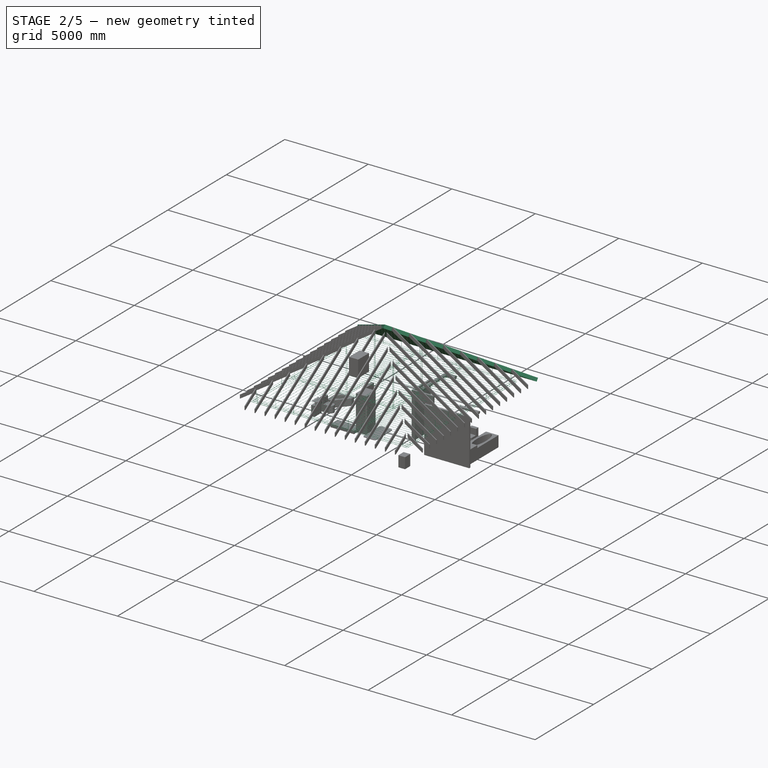
[diagram: stage 2 of 5 — iso view after this stage's code; geometry added in this stage tinted green]
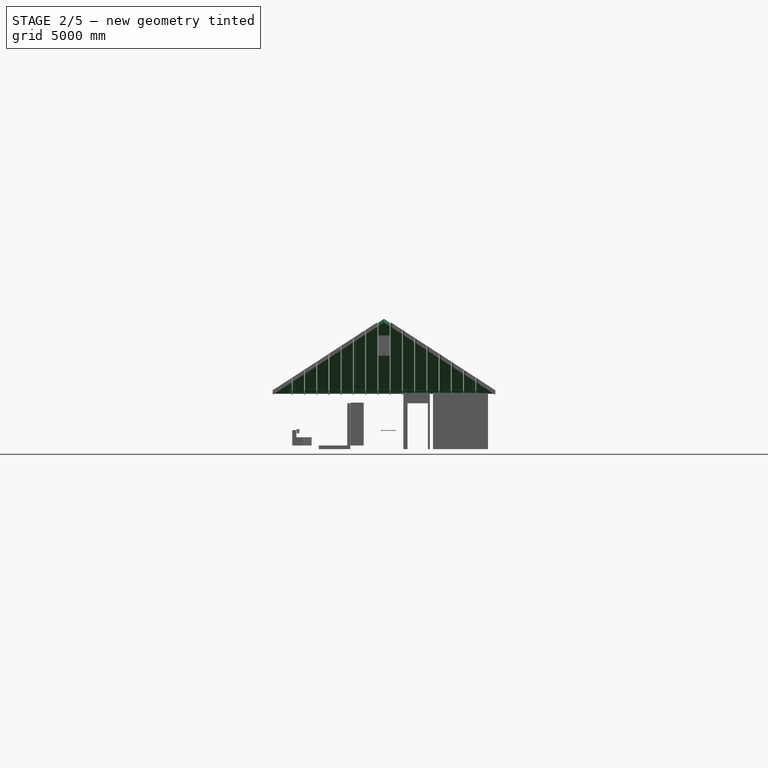
[diagram: stage 2 of 5 — front view after this stage's code; geometry added in this stage tinted green]
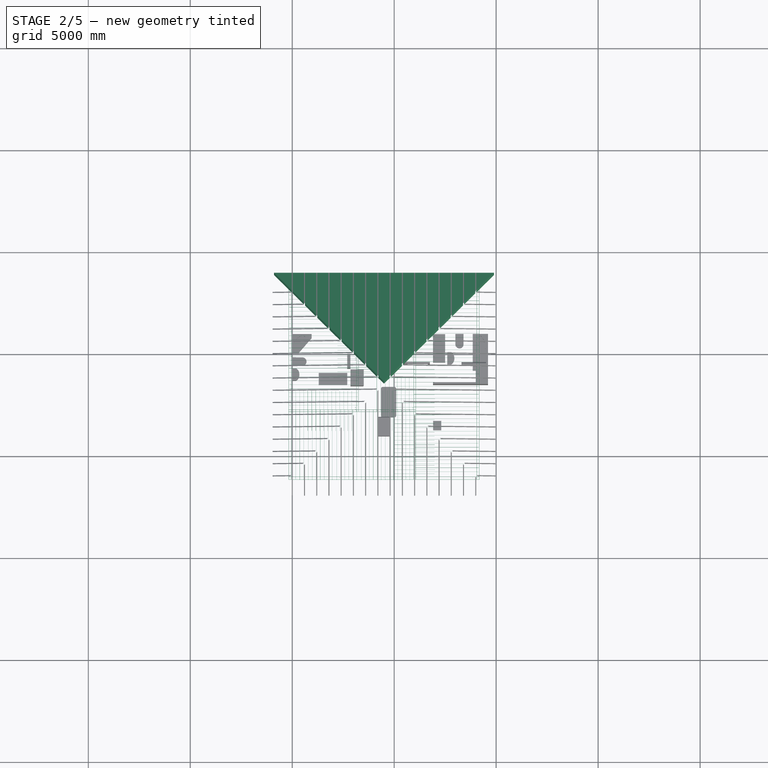
[diagram: stage 2 of 5 — top view after this stage's code; geometry added in this stage tinted green]
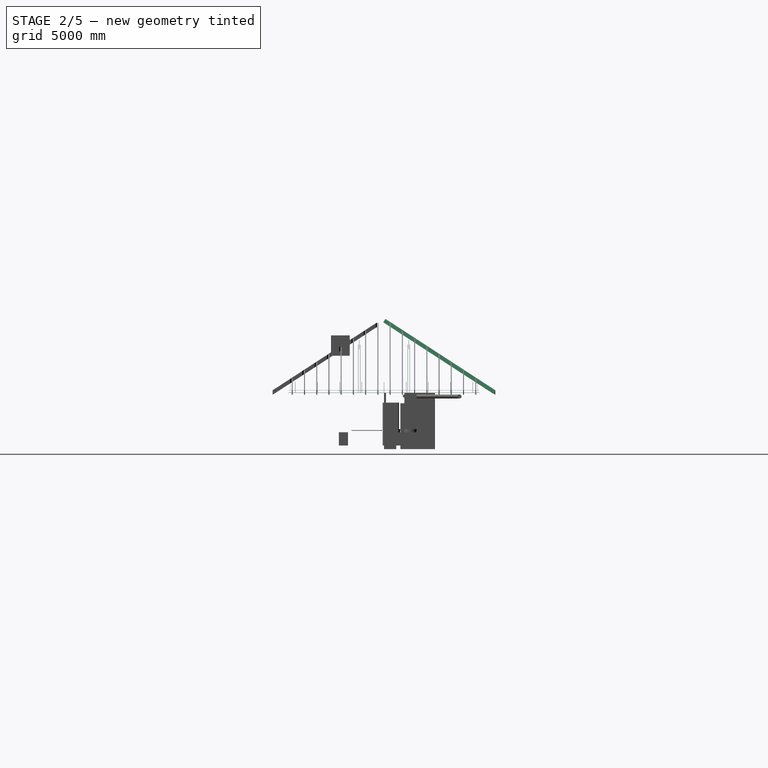
[diagram: stage 2 of 5 — right view after this stage's code; geometry added in this stage tinted green]
FEATURE [App::DocumentObjectGroup] Group103  label="нар.канализация"
  Group = -> [Wire153,Wire131,Line402,Circle004,Circle005,Circle001,Circle,Wire130,Wire127,Wire129,Line353,Line394]
FEATURE [Part::Part2DObjectPython] Line704  # Draft 2D object (typed FeaturePython)
  ChamferSize = 0
  Closed = false
  End = (14400,8400,0)
  FilletRadius = 0
  Length = 7071.07
  MakeFace = true
  Placement = pos=(9400,3400,0) rot=(0,0,1;0rad)
  Points = (2) [(0,0,0),(5000,5000,0)]
  Start = (9400,3400,0)
  Subdivisions = 0
FEATURE [Sketcher::SketchObject] Sketch039  label="Колонна_с_ЖБ_ядром_002"
  MapMode = 5
  Placement = pos=(2900,-3025,0) rot=(0,0,1;0rad)
  sketch-geometry (5):
    g0: LineSegment StartX=0 StartY=0 StartZ=0 EndX=400 EndY=0 EndZ=0
    g1: LineSegment StartX=400 StartY=0 StartZ=0 EndX=400 EndY=625 EndZ=0
    g2: LineSegment StartX=400 StartY=625 StartZ=0 EndX=0 EndY=625 EndZ=0
    g3: LineSegment StartX=0 StartY=625 StartZ=0 EndX=0 EndY=0 EndZ=0
    g4: Circle CenterX=200 CenterY=312.5 CenterZ=0 NormalX=0 NormalY=0 NormalZ=1 AngleXU=0 Radius=80
  constraints (14):
    c: Coincident(g0,g1)
    c: Coincident(g1,g2)
    c: Coincident(g2,g3)
    c: Coincident(g3,g0)
    c: Horizontal(g0)
    c: Horizontal(g2)
    c: Vertical(g1)
    c: Vertical(g3)
    c: Coincident(g0,g-1)
    c: DistanceX(g2,g2) = 400
    c: DistanceY(g1,g1) = 625
    c: Radius(g4) = 80
    c: DistanceY(g4,g2) = 312.5
    c: DistanceX(g2,g4) = 200
FEATURE [Part::Extrusion] Extrude056  label="Колонна_с_ЖБ_ядром_001"
  Base = -> Sketch039
  Dir = (0,0,1)
  DirMode = 2
  FaceMakerClass = Part::FaceMakerBullseye
  LengthFwd = 2250
  LengthRev = 0
  Placement = pos=(0,0,2720) rot=(0,0,1;0rad)
  Solid = true
  Symmetric = false
FEATURE [Part::FeaturePython] Array  label="Колонны_с_ЖБ_ядром h2250"  # Draft array (typed FeaturePython)
  Angle = 360
  ArrayType = 0
  Axis = (0,0,1)
  Base = -> Extrude056
  Center = (0,0,0)
  Fuse = false
  IntervalAxis = (0,0,0)
  IntervalX = (2800,0,0)
  IntervalY = (0,2425,0)
  IntervalZ = (0,0,1)
  NumberPolar = 1
  NumberX = 2
  NumberY = 2
  NumberZ = 1
FEATURE [App::GeometryPython] BuildingPart074  label="профнастил Н114-600"  # Arch/BIM object (typed FeaturePython)
  Area = 0
  Group = -> [Array239,Array024,Array025,Array240,Array241,Array242]
  Height = 0
  IfcRole = 0
  LevelOffset = 0
FEATURE [Part::Part2DObjectPython] Line712  # Draft 2D object (typed FeaturePython)
  ChamferSize = 0
  Closed = false
  End = (4175,-2750,0)
  FilletRadius = 0
  Length = 70.7107
  MakeFace = true
  Placement = pos=(4225,-2700,0) rot=(0,0,1;0rad)
  Points = (2) [(0,0,0),(-50,-50,0)]
  Start = (4225,-2700,0)
  Subdivisions = 0
FEATURE [App::DocumentObjectGroup] Construction
  Group = -> [Rectangle398,Rectangle423,Rectangle425,Rectangle496,Rectangle504,Line436,Rectangle387,Rectangle416,Line568,Line681,Line682,Line683,Rectangle773,Rectangle774,Rectangle775,Line697,Line698,Line699,Line704,Line705,Line706,Line707,Line708,Line711,Line712]
FEATURE [Part::Part2DObjectPython] Rectangle866  label="штраба_25x25_056"  # Draft 2D object (typed FeaturePython)
  ChamferSize = 0
  Columns = 1
  FilletRadius = 0
  Height = 1640
  Length = 25
  MakeFace = false
  Placement = pos=(-340,-6340,0) rot=(0,0,1;0rad)
  Rows = 1
FEATURE [Part::Part2DObjectPython] Rectangle867  label="штраба_25x25_057"  # Draft 2D object (typed FeaturePython)
  ChamferSize = 0
  Columns = 1
  FilletRadius = 0
  Height = 25
  Length = 6640
  MakeFace = false
  Placement = pos=(-340,3315,0) rot=(0,0,1;0rad)
  Rows = 1
FEATURE [Part::Part2DObjectPython] Rectangle868  label="штраба_25x25_058"  # Draft 2D object (typed FeaturePython)
  ChamferSize = 0
  Columns = 1
  FilletRadius = 0
  Height = 3040
  Length = 25
  MakeFace = false
  Placement = pos=(9315,300,0) rot=(0,0,1;0rad)
  Rows = 1
FEATURE [Part::Part2DObjectPython] Rectangle869  label="штраба_25x25_059"  # Draft 2D object (typed FeaturePython)
  ChamferSize = 0
  Columns = 1
  FilletRadius = 0
  Height = 1040
  Length = 25
  MakeFace = false
  Placement = pos=(-340,2300,0) rot=(0,0,1;0rad)
  Rows = 1
FEATURE [Part::Part2DObjectPython] Rectangle870  label="штраба_25x25_060"  # Draft 2D object (typed FeaturePython)
  ChamferSize = 0
  Columns = 1
  FilletRadius = 0
  Height = 25
  Length = 3940
  MakeFace = false
  Placement = pos=(-340,-6340,0) rot=(0,0,1;0rad)
  Rows = 1
FEATURE [Part::Part2DObjectPython] Rectangle871  label="штраба_25x25_061"  # Draft 2D object (typed FeaturePython)
  ChamferSize = 0
  Columns = 1
  FilletRadius = 0
  Height = 2040
  Length = 25
  MakeFace = false
  Placement = pos=(9315,-6340,0) rot=(0,0,1;0rad)
  Rows = 1
FEATURE [Part::Part2DObjectPython] Rectangle872  label="штраба_25x25_062"  # Draft 2D object (typed FeaturePython)
  ChamferSize = 0
  Columns = 1
  FilletRadius = 0
  Height = 785
  Length = 25
  MakeFace = false
  Placement = pos=(-85,2300,0) rot=(0,0,1;0rad)
  Rows = 1
FEATURE [Part::Part2DObjectPython] Rectangle873  label="штраба_25x25_063"  # Draft 2D object (typed FeaturePython)
  ChamferSize = 0
  Columns = 1
  FilletRadius = 0
  Height = 1385
  Length = 25
  MakeFace = false
  Placement = pos=(-85,-6085,0) rot=(0,0,1;0rad)
  Rows = 1
FEATURE [Part::Part2DObjectPython] Rectangle874  label="штраба_25x25_064"  # Draft 2D object (typed FeaturePython)
  ChamferSize = 0
  Columns = 1
  FilletRadius = 0
  Height = 2940
  Length = 25
  MakeFace = false
  Placement = pos=(6025,400,0) rot=(0,0,1;0rad)
  Rows = 1
FEATURE [Part::Part2DObjectPython] Rectangle875  label="штраба_25x25_065"  # Draft 2D object (typed FeaturePython)
  ChamferSize = 0
  Columns = 1
  FilletRadius = 0
  Height = 25
  Length = 750
  MakeFace = false
  Placement = pos=(5300,-2775,0) rot=(0,0,1;0rad)
  Rows = 1
FEATURE [Part::Part2DObjectPython] Rectangle876  label="штраба_25x25_066"  # Draft 2D object (typed FeaturePython)
  ChamferSize = 0
  Columns = 1
  FilletRadius = 0
  Height = 2785
  Length = 25
  MakeFace = false
  Placement = pos=(9060,300,0) rot=(0,0,1;0rad)
  Rows = 1
FEATURE [Part::Part2DObjectPython] Rectangle877  label="штраба_25x25_067"  # Draft 2D object (typed FeaturePython)
  ChamferSize = 0
  Columns = 1
  FilletRadius = 0
  Height = 25
  Length = 1940
  MakeFace = false
  Placement = pos=(-340,-2850,0) rot=(0,0,1;0rad)
  Rows = 1
FEATURE [Part::Part2DObjectPython] Rectangle878  label="штраба_25x25_068"  # Draft 2D object (typed FeaturePython)
  ChamferSize = 0
  Columns = 1
  FilletRadius = 0
  Height = 2540
  Length = 25
  MakeFace = false
  Placement = pos=(3225,800,0) rot=(0,0,1;0rad)
  Rows = 1
FEATURE [Part::Part2DObjectPython] Rectangle879  label="штраба_25x25_069"  # Draft 2D object (typed FeaturePython)
  ChamferSize = 0
  Columns = 1
  FilletRadius = 0
  Height = 2285
  Length = 25
  MakeFace = false
  Placement = pos=(3150,800,0) rot=(0,0,1;0rad)
  Rows = 1
FEATURE [Part::Part2DObjectPython] Rectangle880  label="штраба_25x25_070"  # Draft 2D object (typed FeaturePython)
  ChamferSize = 0
  Columns = 1
  FilletRadius = 0
  Height = 25
  Length = 3685
  MakeFace = false
  Placement = pos=(-85,-6085,0) rot=(0,0,1;0rad)
  Rows = 1
FEATURE [Part::Part2DObjectPython] Rectangle881  label="штраба_25x25_071"  # Draft 2D object (typed FeaturePython)
  ChamferSize = 0
  Columns = 1
  FilletRadius = 0
  Height = 25
  Length = 675
  MakeFace = false
  Placement = pos=(5300,-2850,0) rot=(0,0,1;0rad)
  Rows = 1
FEATURE [Part::Part2DObjectPython] Rectangle882  label="штраба_25x25_072"  # Draft 2D object (typed FeaturePython)
  ChamferSize = 0
  Columns = 1
  FilletRadius = 0
  Height = 3590
  Length = 25
  MakeFace = false
  Placement = pos=(6025,-6340,0) rot=(0,0,1;0rad)
  Rows = 1
FEATURE [Part::Part2DObjectPython] Rectangle883  label="штраба_25x25_073"  # Draft 2D object (typed FeaturePython)
  ChamferSize = 0
  Columns = 1
  FilletRadius = 0
  Height = 3260
  Length = 25
  MakeFace = false
  Placement = pos=(5950,-6085,0) rot=(0,0,1;0rad)
  Rows = 1
FEATURE [Part::Part2DObjectPython] Rectangle884  label="штраба_25x25_074"  # Draft 2D object (typed FeaturePython)
  ChamferSize = 0
  Columns = 1
  FilletRadius = 0
  Height = 2685
  Length = 25
  MakeFace = false
  Placement = pos=(5950,400,0) rot=(0,0,1;0rad)
  Rows = 1
FEATURE [Part::Part2DObjectPython] Rectangle885  label="штраба_25x25_075"  # Draft 2D object (typed FeaturePython)
  ChamferSize = 0
  Columns = 1
  FilletRadius = 0
  Height = 25
  Length = 1400
  MakeFace = false
  Placement = pos=(2800,-2850,0) rot=(0,0,1;0rad)
  Rows = 1
FEATURE [Part::Part2DObjectPython] Rectangle886  label="штраба_25x25_076"  # Draft 2D object (typed FeaturePython)
  ChamferSize = 0
  Columns = 1
  FilletRadius = 0
  Height = 25
  Length = 1685
  MakeFace = false
  Placement = pos=(-85,-2775,0) rot=(0,0,1;0rad)
  Rows = 1
FEATURE [Part::Part2DObjectPython] Rectangle887  label="штраба_25x25_077"  # Draft 2D object (typed FeaturePython)
  ChamferSize = 0
  Columns = 1
  FilletRadius = 0
  Height = 25
  Length = 6385
  MakeFace = false
  Placement = pos=(-85,3060,0) rot=(0,0,1;0rad)
  Rows = 1
FEATURE [Part::Part2DObjectPython] Rectangle888  label="штраба_25x25_078"  # Draft 2D object (typed FeaturePython)
  ChamferSize = 0
  Columns = 1
  FilletRadius = 0
  Height = 25
  Length = 1400
  MakeFace = false
  Placement = pos=(2800,-2775,0) rot=(0,0,1;0rad)
  Rows = 1
FEATURE [Part::Part2DObjectPython] Rectangle889  label="штраба_25x25_079"  # Draft 2D object (typed FeaturePython)
  ChamferSize = 0
  Columns = 1
  FilletRadius = 0
  Height = 1785
  Length = 25
  MakeFace = false
  Placement = pos=(9060,-6085,0) rot=(0,0,1;0rad)
  Rows = 1
FEATURE [Part::Part2DObjectPython] Rectangle890  label="штраба_25x25_080"  # Draft 2D object (typed FeaturePython)
  ChamferSize = 0
  Columns = 1
  FilletRadius = 0
  Height = 2175
  Length = 25
  MakeFace = false
  Placement = pos=(3225,-2775,0) rot=(0,0,1;0rad)
  Rows = 1
FEATURE [Part::Part2DObjectPython] Rectangle891  label="штраба_25x25_081"  # Draft 2D object (typed FeaturePython)
  ChamferSize = 0
  Columns = 1
  FilletRadius = 0
  Height = 2250
  Length = 25
  MakeFace = false
  Placement = pos=(3150,-2850,0) rot=(0,0,1;0rad)
  Rows = 1
FEATURE [Part::Part2DObjectPython] Rectangle894  label="штраба_25x25_084"  # Draft 2D object (typed FeaturePython)
  ChamferSize = 0
  Columns = 1
  FilletRadius = 0
  Height = 25
  Length = 1340
  MakeFace = false
  Placement = pos=(8000,3315,0) rot=(0,0,1;0rad)
  Rows = 1
FEATURE [Part::Part2DObjectPython] Rectangle895  label="штраба_25x25_085"  # Draft 2D object (typed FeaturePython)
  ChamferSize = 0
  Columns = 1
  FilletRadius = 0
  Height = 25
  Length = 1085
  MakeFace = false
  Placement = pos=(8000,3060,0) rot=(0,0,1;0rad)
  Rows = 1
FEATURE [Part::Part2DObjectPython] Rectangle896  label="штраба_25x25_086"  # Draft 2D object (typed FeaturePython)
  ChamferSize = 0
  Columns = 1
  FilletRadius = 0
  Height = 25
  Length = 1500
  MakeFace = false
  Placement = pos=(5200,-6085,0) rot=(0,0,1;0rad)
  Rows = 1
FEATURE [Part::Part2DObjectPython] Rectangle897  label="штраба_25x25_087"  # Draft 2D object (typed FeaturePython)
  ChamferSize = 0
  Columns = 1
  FilletRadius = 0
  Height = 25
  Length = 1500
  MakeFace = false
  Placement = pos=(5200,-6340,0) rot=(0,0,1;0rad)
  Rows = 1
FEATURE [Part::Part2DObjectPython] Rectangle898  label="штраба_25x25_088"  # Draft 2D object (typed FeaturePython)
  ChamferSize = 0
  Columns = 1
  FilletRadius = 0
  Height = 25
  Length = 940
  MakeFace = false
  Placement = pos=(8400,-6340,0) rot=(0,0,1;0rad)
  Rows = 1
FEATURE [Part::Part2DObjectPython] Rectangle899  label="штраба_25x25_089"  # Draft 2D object (typed FeaturePython)
  ChamferSize = 0
  Columns = 1
  FilletRadius = 0
  Height = 25
  Length = 685
  MakeFace = false
  Placement = pos=(8400,-6085,0) rot=(0,0,1;0rad)
  Rows = 1
FEATURE [Part::Part2DObjectPython] Rectangle900  label="штраба_25x25_090"  # Draft 2D object (typed FeaturePython)
  ChamferSize = 0
  Columns = 1
  FilletRadius = 0
  Height = 1800
  Length = 25
  MakeFace = false
  Placement = pos=(9060,-2700,0) rot=(0,0,1;0rad)
  Rows = 1
FEATURE [Part::Part2DObjectPython] Rectangle901  label="штраба_25x25_091"  # Draft 2D object (typed FeaturePython)
  ChamferSize = 0
  Columns = 1
  FilletRadius = 0
  Height = 1800
  Length = 25
  MakeFace = false
  Placement = pos=(9315,-2700,0) rot=(0,0,1;0rad)
  Rows = 1
FEATURE [Part::Part2DObjectPython] Rectangle902  label="штраба_25x25_092"  # Draft 2D object (typed FeaturePython)
  ChamferSize = 0
  Columns = 1
  FilletRadius = 0
  Height = 3100
  Length = 25
  MakeFace = false
  Placement = pos=(-340,-3100,0) rot=(0,0,1;0rad)
  Rows = 1
FEATURE [Part::Part2DObjectPython] Rectangle903  label="штраба_25x25_093"  # Draft 2D object (typed FeaturePython)
  ChamferSize = 0
  Columns = 1
  FilletRadius = 0
  Height = 3100
  Length = 25
  MakeFace = false
  Placement = pos=(-85,-3100,0) rot=(0,0,1;0rad)
  Rows = 1
FEATURE [App::DocumentObjectGroup] Group109  label="ряд_7"
  Group = -> [Rectangle870,Rectangle868,Rectangle871,Rectangle877,Rectangle879,Rectangle866,Rectangle867,Rectangle872,Rectangle882,Rectangle886,Rectangle873,Rectangle878,Rectangle875,Rectangle874,Rectangle887,Rectangle885,Rectangle869,Rectangle890,Rectangle883,Rectangle884,Rectangle876,Rectangle891,Rectangle888,Rectangle880,Rectangle889,Rectangle881,Rectangle894,Rectangle895,Rectangle896,Rectangle897,+6 more]
FEATURE [App::DocumentObjectGroup] Group106  label="армирование кладки_"
  Group = -> [Group107,Group108,Group109]
FEATURE [App::DocumentObjectGroup] Group056  label="Основание и фундамент"
  Group = -> [Rectangle446,Wire096,Rectangle482,Rectangle483,Wire151,Wire152,Circle008,Circle009,Circle006,Circle007,Circle011,Circle012,Circle013,Circle014,Rectangle737,Group106]
FEATURE [Part::Part2DObjectPython] Rectangle904  label="профнастил Н114-600*13_003"  # Draft 2D object (typed FeaturePython)
  ChamferSize = 0
  Columns = 1
  FilletRadius = 0
  Height = 4246
  Length = 2700
  MakeFace = false
  Placement = pos=(3250,-1200,0) rot=(0,0,1;0rad)
  Rows = 1
FEATURE [Part::Part2DObjectPython] Rectangle905  label="профнастил Н114-600*13_004"  # Draft 2D object (typed FeaturePython)
  ChamferSize = 0
  Columns = 1
  FilletRadius = 0
  Height = 9046
  Length = 3000
  MakeFace = false
  Placement = pos=(6050,-6025,0) rot=(0,0,1;0rad)
  Rows = 1
FEATURE [Part::Part2DObjectPython] Rectangle906  label="профнастил Н114-600*13_005"  # Draft 2D object (typed FeaturePython)
  ChamferSize = 0
  Columns = 1
  FilletRadius = 0
  Height = 3200
  Length = 6046
  MakeFace = false
  Placement = pos=(-50,-6050,0) rot=(0,0,1;0rad)
  Rows = 1
FEATURE [Part::Part2DObjectPython] Rectangle907  label="профнастил Н114-600*13_001"  # Draft 2D object (typed FeaturePython)
  ChamferSize = 0
  Columns = 1
  FilletRadius = 0
  Height = 1575
  Length = 1846
  MakeFace = false
  Placement = pos=(4125,-2750,0) rot=(0,0,1;0rad)
  Rows = 1
FEATURE [Part::FeaturePython] Structure520  label="профнастил габарит армирования 001"  # Arch/BIM object (typed FeaturePython)
  Base = -> Rectangle904
  FaceMaker = 0
  Height = 114
  HorizontalArea = 11464200
  IfcRole = 0
  Length = 0
  MoveWithHost = false
  Nodes = (2) [(4600,923,0),(4600,923,114)]
  NodesOffset = 0
  Normal = (0,0,0)
  PerimeterLength = 13892
  Placement = pos=(0,0,2570) rot=(0,0,1;0rad)
  VerticalArea = 1583688
  Width = 100
FEATURE [Part::FeaturePython] Structure521  label="профнастил габарит армирования 002"  # Arch/BIM object (typed FeaturePython)
  Base = -> Rectangle669
  FaceMaker = 0
  Height = 114
  HorizontalArea = 18707200
  IfcRole = 0
  Length = 0
  MoveWithHost = false
  Nodes = (2) [(1550,173,0),(1550,173,114)]
  NodesOffset = 0
  Normal = (0,0,0)
  PerimeterLength = 18092
  Placement = pos=(0,0,2570) rot=(0,0,1;0rad)
  VerticalArea = 2062488
  Width = 100
FEATURE [Part::FeaturePython] Structure522  label="профнастил габарит армирования 003"  # Arch/BIM object (typed FeaturePython)
  Base = -> Rectangle905
  FaceMaker = 0
  Height = 114
  HorizontalArea = 27138000
  IfcRole = 0
  Length = 0
  MoveWithHost = false
  Nodes = (2) [(7550,-1502,0),(7550,-1502,114)]
  NodesOffset = 0
  Normal = (0,0,0)
  PerimeterLength = 24092
  Placement = pos=(0,0,2570) rot=(0,0,1;0rad)
  VerticalArea = 2746488
  Width = 100
FEATURE [Part::FeaturePython] Structure523  label="профнастил габарит армирования 004"  # Arch/BIM object (typed FeaturePython)
  Base = -> Rectangle906
  FaceMaker = 0
  Height = 114
  HorizontalArea = 1.93472e+07
  IfcRole = 0
  Length = 0
  MoveWithHost = false
  Nodes = (2) [(2973,-4450,0),(2973,-4450,114)]
  NodesOffset = 0
  Normal = (0,0,0)
  PerimeterLength = 18492
  Placement = pos=(0,0,2570) rot=(0,0,1;0rad)
  VerticalArea = 2.10809e+06
  Width = 100
FEATURE [Part::FeaturePython] Structure524  label="профнастил габарит армирования 005"  # Arch/BIM object (typed FeaturePython)
  Base = -> Rectangle907
  FaceMaker = 0
  Height = 114
  HorizontalArea = 2.90745e+06
  IfcRole = 0
  Length = 0
  MoveWithHost = false
  Nodes = (2) [(5048,-1962.5,0),(5048,-1962.5,114)]
  NodesOffset = 0
  Normal = (0,0,0)
  PerimeterLength = 6842
  Placement = pos=(0,0,2570) rot=(0,0,1;0rad)
  VerticalArea = 779988
  Width = 100
FEATURE [Sketcher::SketchObject] Sketch151
  MapMode = 5
  Placement = pos=(5996,0,2570) rot=(0.57735,0.57735,0.57735;2.0944rad)
  Support = -> [Structure523]
  sketch-geometry (1):
    g0: LineSegment StartX=-6200 StartY=20 StartZ=0 EndX=-2750 EndY=20 EndZ=0
FEATURE [Part::FeaturePython] Rebar124  label="стержень A-III D8 633"  # Arch/BIM object (typed FeaturePython)
  Amount = 29
  AmountCheck = true
  Base = -> Sketch151
  Cover = 20
  CoverAlong = Bottom Side
  Diameter = 8
  Direction = (0,0,0)
  Distance = 0
  FrontCover = 225
  HorizontalArea = 0
  Host = -> Structure523
  IfcRole = 109
  LeftBottomCover = -150
  Length = 3450
  MoveWithHost = false
  OffsetEnd = 225
  OffsetStart = 225
  Orientation = Horizontal
  PerimeterLength = 0
  PlacementList = 29 placements: arithmetic series from (-225,0,0) step (-199.857,0,0) to (-5821,0,0)
  RightTopCover = -100
  Rounding = 0
  Spacing = 199.857
  TotalLength = 100050
  TrueSpacing = 29
  VerticalArea = 0
FEATURE [Sketcher::SketchObject] Sketch152
  MapMode = 5
  Placement = pos=(5971,0,2570) rot=(0.57735,0.57735,0.57735;2.0944rad)
  Support = -> [Structure524]
  sketch-geometry (1):
    g0: LineSegment StartX=-2825 StartY=20 StartZ=0 EndX=-1150 EndY=20 EndZ=0
FEATURE [Part::FeaturePython] Rebar125  label="стержень A-III D8 634"  # Arch/BIM object (typed FeaturePython)
  Amount = 8
  AmountCheck = true
  Base = -> Sketch152
  Cover = 20
  CoverAlong = Bottom Side
  Diameter = 8
  Direction = (0,0,0)
  Distance = 0
  FrontCover = 225
  HorizontalArea = 0
  Host = -> Structure524
  IfcRole = 109
  LeftBottomCover = -75
  Length = 1675
  MoveWithHost = false
  OffsetEnd = 225
  OffsetStart = 225
  Orientation = Horizontal
  PerimeterLength = 0
  PlacementList = 8 placements: arithmetic series from (-225,0,0) step (-199.429,0,0) to (-1621,0,0)
  RightTopCover = -25
  Rounding = 0
  Spacing = 199.429
  TotalLength = 13400
  TrueSpacing = 8
  VerticalArea = 0
FEATURE [Sketcher::SketchObject] Sketch153
  MapMode = 5
  Placement = pos=(0,-1200,2570) rot=(1,0,0;1.5708rad)
  Support = -> [Structure520]
  sketch-geometry (1):
    g0: LineSegment StartX=3175 StartY=20 StartZ=0 EndX=6025 EndY=20 EndZ=0
FEATURE [Part::FeaturePython] Rebar126  label="стержень A-III D8 635"  # Arch/BIM object (typed FeaturePython)
  Amount = 20
  AmountCheck = true
  Base = -> Sketch153
  Cover = 20
  CoverAlong = Bottom Side
  Diameter = 8
  Direction = (0,0,0)
  Distance = 0
  FrontCover = 225
  HorizontalArea = 0
  Host = -> Structure520
  IfcRole = 109
  LeftBottomCover = -75
  Length = 2850
  MoveWithHost = false
  OffsetEnd = 225
  OffsetStart = 225
  Orientation = Horizontal
  PerimeterLength = 0
  PlacementList = 20 placements: arithmetic series from (0,225,-4.996e-14) step (0,199.789,-4.43622e-14) to (0,4021,-8.92841e-13)
  RightTopCover = -75
  Rounding = 0
  Spacing = 199.789
  TotalLength = 57000
  TrueSpacing = 20
  VerticalArea = 0
FEATURE [Sketcher::SketchObject] Sketch154
  MapMode = 5
  Placement = pos=(0,-1200,2570) rot=(1,0,0;1.5708rad)
  Support = -> [Structure520]
  sketch-geometry (1):
    g0: LineSegment StartX=3175 StartY=20 StartZ=0 EndX=6025 EndY=20 EndZ=0
FEATURE [Part::FeaturePython] Rebar127  label="стержень A-III D12 002"  # Arch/BIM object (typed FeaturePython)
  Amount = 1
  AmountCheck = true
  Base = -> Sketch154
  Cover = 20
  CoverAlong = Bottom Side
  Diameter = 12
  Direction = (0,0,0)
  Distance = 0
  FrontCover = 20
  HorizontalArea = 0
  Host = -> Structure520
  IfcRole = 109
  LeftBottomCover = -75
  Length = 2850
  MoveWithHost = false
  OffsetEnd = 20
  OffsetStart = 20
  Orientation = Horizontal
  PerimeterLength = 0
  PlacementList = 1 placements: [(0,20,-4.44089e-15)]
  RightTopCover = -75
  Rounding = 0
  Spacing = 0
  TotalLength = 2850
  TrueSpacing = 1
  VerticalArea = 0
FEATURE [Sketcher::SketchObject] Sketch155
  MapMode = 5
  Placement = pos=(0,-1200,2570) rot=(1,0,0;1.5708rad)
  Support = -> [Structure520]
  sketch-geometry (1):
    g0: LineSegment StartX=3175 StartY=20 StartZ=0 EndX=6025 EndY=20 EndZ=0
FEATURE [Part::FeaturePython] Rebar128  label="стержень A-III D12 001"  # Arch/BIM object (typed FeaturePython)
  Amount = 1
  AmountCheck = true
  Base = -> Sketch155
  Cover = 20
  CoverAlong = Bottom Side
  Diameter = 12
  Direction = (0,0,0)
  Distance = 0
  FrontCover = 35
  HorizontalArea = 0
  Host = -> Structure520
  IfcRole = 109
  LeftBottomCover = -75
  Length = 2850
  MoveWithHost = false
  OffsetEnd = 35
  OffsetStart = 35
  Orientation = Horizontal
  PerimeterLength = 0
  PlacementList = 1 placements: [(0,35,-7.77156e-15)]
  RightTopCover = -75
  Rounding = 0
  Spacing = 0
  TotalLength = 2850
  TrueSpacing = 1
  VerticalArea = 0
FEATURE [Sketcher::SketchObject] Sketch156
  MapMode = 5
  Placement = pos=(0,-2750,2570) rot=(1,0,0;1.5708rad)
  Support = -> [Structure521]
  sketch-geometry (1):
    g0: LineSegment StartX=-150 StartY=20 StartZ=0 EndX=3225 EndY=20 EndZ=0
FEATURE [Part::FeaturePython] Rebar129  label="стержень A-III D8 632"  # Arch/BIM object (typed FeaturePython)
  Amount = 28
  AmountCheck = true
  Base = -> Sketch156
  Cover = 20
  CoverAlong = Bottom Side
  Diameter = 8
  Direction = (0,0,0)
  Distance = 0
  FrontCover = 225
  HorizontalArea = 0
  Host = -> Structure521
  IfcRole = 109
  LeftBottomCover = -100
  Length = 3375
  MoveWithHost = false
  OffsetEnd = 225
  OffsetStart = 225
  Orientation = Horizontal
  PerimeterLength = 0
  PlacementList = 28 placements: arithmetic series from (0,225,-4.996e-14) step (0,199.852,-4.4376e-14) to (0,5621,-1.24811e-12)
  RightTopCover = -75
  Rounding = 0
  Spacing = 199.852
  TotalLength = 94500
  TrueSpacing = 28
  VerticalArea = 0
FEATURE [Sketcher::SketchObject] Sketch157
  MapMode = 5
  Placement = pos=(0,-6025,2570) rot=(1,0,0;1.5708rad)
  Support = -> [Structure522]
  sketch-geometry (1):
    g0: LineSegment StartX=5975 StartY=20 StartZ=0 EndX=9150 EndY=20 EndZ=0
FEATURE [Part::FeaturePython] Rebar130  label="стержень A-III D8 631"  # Arch/BIM object (typed FeaturePython)
  Amount = 44
  AmountCheck = true
  Base = -> Sketch157
  Cover = 20
  CoverAlong = Bottom Side
  Diameter = 8
  Direction = (0,0,0)
  Distance = 0
  FrontCover = 225
  HorizontalArea = 0
  Host = -> Structure522
  IfcRole = 109
  LeftBottomCover = -75
  Length = 3175
  MoveWithHost = false
  OffsetEnd = 225
  OffsetStart = 225
  Orientation = Horizontal
  PerimeterLength = 0
  PlacementList = 44 placements: arithmetic series from (0,225,-4.996e-14) step (0,199.907,-4.43883e-14) to (0,8821,-1.95866e-12)
  RightTopCover = -100
  Rounding = 0
  Spacing = 199.907
  TotalLength = 139700
  TrueSpacing = 44
  VerticalArea = 0
FEATURE [Part::Part2DObjectPython] Rectangle908  label="габарит_армирования_024"  # Draft 2D object (typed FeaturePython)
  ChamferSize = 0
  Columns = 1
  FilletRadius = 0
  Height = 9450
  Length = 225
  MakeFace = false
  Placement = pos=(-225,-6225,0) rot=(0,0,1;0rad)
  Rows = 1
FEATURE [Part::Part2DObjectPython] Rectangle909  label="габарит_армирования_020"  # Draft 2D object (typed FeaturePython)
  ChamferSize = 0
  Columns = 1
  FilletRadius = 0
  Height = 9450
  Length = 225
  MakeFace = false
  Placement = pos=(9000,-6225,0) rot=(0,0,1;0rad)
  Rows = 1
FEATURE [Part::Part2DObjectPython] Rectangle910  label="габарит_армирования_023"  # Draft 2D object (typed FeaturePython)
  ChamferSize = 0
  Columns = 1
  FilletRadius = 0
  Height = 9450
  Length = 200
  MakeFace = false
  Placement = pos=(5900,-6225,0) rot=(0,0,1;0rad)
  Rows = 1
FEATURE [Part::Part2DObjectPython] Rectangle911  label="габарит_армирования_022"  # Draft 2D object (typed FeaturePython)
  ChamferSize = 0
  Columns = 1
  FilletRadius = 0
  Height = 6125
  Length = 200
  MakeFace = false
  Placement = pos=(3100,-2900,0) rot=(0,0,1;0rad)
  Rows = 1
FEATURE [Part::Part2DObjectPython] Rectangle912  label="габарит_армирования_019"  # Draft 2D object (typed FeaturePython)
  ChamferSize = 0
  Columns = 1
  FilletRadius = 0
  Height = 200
  Length = 6325
  MakeFace = false
  Placement = pos=(-225,-2900,0) rot=(0,0,1;0rad)
  Rows = 1
FEATURE [Part::Part2DObjectPython] Rectangle913  label="габарит_армирования_001"  # Draft 2D object (typed FeaturePython)
  ChamferSize = 0
  Columns = 1
  FilletRadius = 0
  Height = 225
  Length = 9450
  MakeFace = false
  Placement = pos=(-225,-6225,0) rot=(0,0,1;0rad)
  Rows = 1
FEATURE [Part::Part2DObjectPython] Rectangle914  label="габарит_армирования_021"  # Draft 2D object (typed FeaturePython)
  ChamferSize = 0
  Columns = 1
  FilletRadius = 0
  Height = 225
  Length = 9450
  MakeFace = false
  Placement = pos=(-225,3000,0) rot=(0,0,1;0rad)
  Rows = 1
FEATURE [Part::Part2DObjectPython] Rectangle915  label="габарит_армирования_верх_001"  # Draft 2D object (typed FeaturePython)
  ChamferSize = 0
  Columns = 1
  FilletRadius = 0
  Height = 4200
  Length = 2000
  MakeFace = false
  Placement = pos=(2200,-1200,0) rot=(0,0,1;0rad)
  Rows = 1
FEATURE [Part::Part2DObjectPython] Rectangle916  label="габарит_армирования_верх_002"  # Draft 2D object (typed FeaturePython)
  ChamferSize = 0
  Columns = 1
  FilletRadius = 0
  Height = 9000
  Length = 2000
  MakeFace = false
  Placement = pos=(5000,-6000,0) rot=(0,0,1;0rad)
  Rows = 1
FEATURE [Part::Part2DObjectPython] Rectangle917  label="габарит_армирования_верх_003"  # Draft 2D object (typed FeaturePython)
  ChamferSize = 0
  Columns = 1
  FilletRadius = 0
  Height = 2000
  Length = 3100
  MakeFace = false
  Placement = pos=(0,-3800,0) rot=(0,0,1;0rad)
  Rows = 1
FEATURE [Part::Part2DObjectPython] Rectangle918  label="габарит_армирования_верх_004"  # Draft 2D object (typed FeaturePython)
  ChamferSize = 0
  Columns = 1
  FilletRadius = 0
  Height = 2000
  Length = 900
  MakeFace = false
  Placement = pos=(4100,-3800,0) rot=(0,0,1;0rad)
  Rows = 1
FEATURE [Part::FeaturePython] Structure525  label="зона_армирования_верхн._001"  # Arch/BIM object (typed FeaturePython)
  Base = -> Rectangle915
  FaceMaker = 0
  Height = 50
  HorizontalArea = 8.4e+06
  IfcRole = 0
  Length = 0
  MoveWithHost = false
  Nodes = (2) [(3200,900,0),(3200,900,-50)]
  NodesOffset = 0
  Normal = (0,0,-1)
  PerimeterLength = 12400
  Placement = pos=(0,0,2720) rot=(0,0,1;0rad)
  VerticalArea = 620000
  Width = 100
FEATURE [Part::FeaturePython] Structure526  label="зона_армирования_верхн._003"  # Arch/BIM object (typed FeaturePython)
  Base = -> Rectangle916
  FaceMaker = 0
  Height = 50
  HorizontalArea = 1.8e+07
  IfcRole = 0
  Length = 0
  MoveWithHost = false
  Nodes = (2) [(6000,-1500,0),(6000,-1500,-50)]
  NodesOffset = 0
  Normal = (0,0,-1)
  PerimeterLength = 22000
  Placement = pos=(0,0,2720) rot=(0,0,1;0rad)
  VerticalArea = 1100000
  Width = 100
FEATURE [Part::FeaturePython] Structure527  label="зона_армирования_верхн._002"  # Arch/BIM object (typed FeaturePython)
  Base = -> Rectangle918
  FaceMaker = 0
  Height = 50
  HorizontalArea = 1.8e+06
  IfcRole = 0
  Length = 0
  MoveWithHost = false
  Nodes = (2) [(4550,-2800,0),(4550,-2800,-50)]
  NodesOffset = 0
  Normal = (0,0,-1)
  PerimeterLength = 5800
  Placement = pos=(0,0,2720) rot=(0,0,1;0rad)
  VerticalArea = 290000
  Width = 100
FEATURE [Part::FeaturePython] Structure528  label="зона_армирования_верхн._004"  # Arch/BIM object (typed FeaturePython)
  Base = -> Rectangle917
  FaceMaker = 0
  Height = 50
  HorizontalArea = 6.2e+06
  IfcRole = 0
  Length = 0
  MoveWithHost = false
  Nodes = (2) [(1550,-2800,0),(1550,-2800,-50)]
  NodesOffset = 0
  Normal = (0,0,-1)
  PerimeterLength = 10200
  Placement = pos=(0,0,2720) rot=(0,0,1;0rad)
  VerticalArea = 510000
  Width = 100
FEATURE [Sketcher::SketchObject] Sketch158
  MapMode = 5
  Placement = pos=(0,-6000,2720) rot=(1,0,0;1.5708rad)
  Support = -> [Structure526]
  sketch-geometry (1):
    g0: LineSegment StartX=5020 StartY=-30 StartZ=0 EndX=6980 EndY=-30 EndZ=0
FEATURE [Part::FeaturePython] Rebar131  label="стержень A-III D8 664"  # Arch/BIM object (typed FeaturePython)
  Amount = 44
  AmountCheck = false
  Base = -> Sketch158
  Cover = 20
  CoverAlong = Bottom Side
  Diameter = 8
  Direction = (0,0,0)
  Distance = 0
  FrontCover = 100
  HorizontalArea = 0
  Host = -> Structure526
  IfcRole = 109
  LeftBottomCover = 20
  Length = 1960
  MoveWithHost = false
  OffsetEnd = 100
  OffsetStart = 100
  Orientation = Horizontal
  PerimeterLength = 0
  PlacementList = 44 placements: arithmetic series from (0,100,-2.22045e-14) step (0,204.651,-4.54417e-14) to (0,8900,-1.9762e-12)
  RightTopCover = 20
  Rounding = 0
  Spacing = 204.651
  TotalLength = 86240
  TrueSpacing = 200
  VerticalArea = 0
FEATURE [Sketcher::SketchObject] Sketch159
  MapMode = 5
  Placement = pos=(5000,0,2720) rot=(0.57735,0.57735,0.57735;2.0944rad)
  Support = -> [Structure527]
  sketch-geometry (1):
    g0: LineSegment StartX=-3780 StartY=-30 StartZ=0 EndX=-1820 EndY=-30 EndZ=0
FEATURE [Part::FeaturePython] Rebar132  label="стержень A-III D8 665"  # Arch/BIM object (typed FeaturePython)
  Amount = 4
  AmountCheck = false
  Base = -> Sketch159
  Cover = 20
  CoverAlong = Bottom Side
  Diameter = 8
  Direction = (0,0,0)
  Distance = 0
  FrontCover = 100
  HorizontalArea = 0
  Host = -> Structure527
  IfcRole = 109
  LeftBottomCover = 20
  Length = 1960
  MoveWithHost = false
  OffsetEnd = 100
  OffsetStart = 100
  Orientation = Horizontal
  PerimeterLength = 0
  PlacementList = 4 placements: arithmetic series from (-100,0,0) step (-233.333,0,0) to (-800,0,0)
  RightTopCover = 20
  Rounding = 0
  Spacing = 233.333
  TotalLength = 7840
  TrueSpacing = 200
  VerticalArea = 0
FEATURE [Sketcher::SketchObject] Sketch160
  MapMode = 5
  Placement = pos=(0,-1200,2720) rot=(1,0,0;1.5708rad)
  Support = -> [Structure525]
  sketch-geometry (1):
    g0: LineSegment StartX=2220 StartY=-30 StartZ=0 EndX=4180 EndY=-30 EndZ=0
FEATURE [Part::FeaturePython] Rebar133  label="стержень A-III D8 663"  # Arch/BIM object (typed FeaturePython)
  Amount = 20
  AmountCheck = false
  Base = -> Sketch160
  Cover = 20
  CoverAlong = Bottom Side
  Diameter = 8
  Direction = (0,0,0)
  Distance = 0
  FrontCover = 100
  HorizontalArea = 0
  Host = -> Structure525
  IfcRole = 109
  LeftBottomCover = 20
  Length = 1960
  MoveWithHost = false
  OffsetEnd = 100
  OffsetStart = 100
  Orientation = Horizontal
  PerimeterLength = 0
  PlacementList = 20 placements: arithmetic series from (0,100,-2.22045e-14) step (0,210.526,-4.67462e-14) to (0,4100,-9.10383e-13)
  RightTopCover = 20
  Rounding = 0
  Spacing = 210.526
  TotalLength = 39200
  TrueSpacing = 200
  VerticalArea = 0
FEATURE [Sketcher::SketchObject] Sketch161
  MapMode = 5
  Placement = pos=(3100,0,2720) rot=(0.57735,0.57735,0.57735;2.0944rad)
  Support = -> [Structure528]
  sketch-geometry (1):
    g0: LineSegment StartX=-3780 StartY=-30 StartZ=0 EndX=-1820 EndY=-30 EndZ=0
FEATURE [Part::FeaturePython] Rebar134  label="стержень A-III D8 666"  # Arch/BIM object (typed FeaturePython)
  Amount = 15
  AmountCheck = true
  Base = -> Sketch161
  Cover = 20
  CoverAlong = Bottom Side
  Diameter = 8
  Direction = (0,0,0)
  Distance = 0
  FrontCover = 180
  HorizontalArea = 0
  Host = -> Structure528
  IfcRole = 109
  LeftBottomCover = 20
  Length = 1960
  MoveWithHost = false
  OffsetEnd = 180
  OffsetStart = 180
  Orientation = Horizontal
  PerimeterLength = 0
  PlacementList = 15 placements: arithmetic series from (-180,0,0) step (-195.714,0,0) to (-2920,0,0)
  RightTopCover = 20
  Rounding = 0
  Spacing = 195.714
  TotalLength = 29400
  TrueSpacing = 15
  VerticalArea = 0
FEATURE [Part::FeaturePython] Structure529  label="зона_армирования_перекрытия_001"  # Arch/BIM object (typed FeaturePython)
  Base = -> Rectangle913
  FaceMaker = 0
  Height = 150
  HorizontalArea = 2126250
  IfcRole = 0
  Length = 0
  MoveWithHost = false
  Nodes = (2) [(4500,-6112.5,0),(4500,-6112.5,150)]
  NodesOffset = 0
  Normal = (0,0,0)
  PerimeterLength = 19350
  Placement = pos=(0,0,2570) rot=(0,0,1;0rad)
  VerticalArea = 2902500
  Width = 100
FEATURE [Part::FeaturePython] Structure530  label="зона_армирования_перекрытия_005"  # Arch/BIM object (typed FeaturePython)
  Base = -> Rectangle912
  FaceMaker = 0
  Height = 150
  HorizontalArea = 1265000
  IfcRole = 0
  Length = 0
  MoveWithHost = false
  Nodes = (2) [(2937.5,-2800,0),(2937.5,-2800,150)]
  NodesOffset = 0
  Normal = (0,0,0)
  PerimeterLength = 13050
  Placement = pos=(0,0,2570) rot=(0,0,1;0rad)
  VerticalArea = 1957500
  Width = 100
FEATURE [Part::FeaturePython] Structure531  label="зона_армирования_перекрытия_003"  # Arch/BIM object (typed FeaturePython)
  Base = -> Rectangle909
  FaceMaker = 0
  Height = 150
  HorizontalArea = 2.12625e+06
  IfcRole = 0
  Length = 0
  MoveWithHost = false
  Nodes = (2) [(9112.5,-1500,0),(9112.5,-1500,150)]
  NodesOffset = 0
  Normal = (0,0,0)
  PerimeterLength = 19350
  Placement = pos=(0,0,2570) rot=(0,0,1;0rad)
  VerticalArea = 2902500
  Width = 100
FEATURE [Part::FeaturePython] Structure532  label="зона_армирования_перекрытия_007"  # Arch/BIM object (typed FeaturePython)
  Base = -> Rectangle914
  FaceMaker = 0
  Height = 150
  HorizontalArea = 2126250
  IfcRole = 0
  Length = 0
  MoveWithHost = false
  Nodes = (2) [(4500,3112.5,0),(4500,3112.5,150)]
  NodesOffset = 0
  Normal = (0,0,0)
  PerimeterLength = 19350
  Placement = pos=(0,0,2570) rot=(0,0,1;0rad)
  VerticalArea = 2902500
  Width = 100
FEATURE [Part::FeaturePython] Structure533  label="зона_армирования_перекрытия_002"  # Arch/BIM object (typed FeaturePython)
  Base = -> Rectangle911
  FaceMaker = 0
  Height = 150
  HorizontalArea = 1.225e+06
  IfcRole = 0
  Length = 0
  MoveWithHost = false
  Nodes = (2) [(3200,162.5,0),(3200,162.5,150)]
  NodesOffset = 0
  Normal = (0,0,0)
  PerimeterLength = 12650
  Placement = pos=(0,0,2570) rot=(0,0,1;0rad)
  VerticalArea = 1897500
  Width = 100
FEATURE [Part::FeaturePython] Structure534  label="зона_армирования_перекрытия_006"  # Arch/BIM object (typed FeaturePython)
  Base = -> Rectangle910
  FaceMaker = 0
  Height = 150
  HorizontalArea = 1.89e+06
  IfcRole = 0
  Length = 0
  MoveWithHost = false
  Nodes = (2) [(6000,-1500,0),(6000,-1500,150)]
  NodesOffset = 0
  Normal = (0,0,0)
  PerimeterLength = 19300
  Placement = pos=(0,0,2570) rot=(0,0,1;0rad)
  VerticalArea = 2.895e+06
  Width = 100
FEATURE [Part::FeaturePython] Structure535  label="зона_армирования_перекрытия_004"  # Arch/BIM object (typed FeaturePython)
  Base = -> Rectangle908
  FaceMaker = 0
  Height = 150
  HorizontalArea = 2.12625e+06
  IfcRole = 0
  Length = 0
  MoveWithHost = false
  Nodes = (2) [(-112.5,-1500,0),(-112.5,-1500,150)]
  NodesOffset = 0
  Normal = (0,0,0)
  PerimeterLength = 19350
  Placement = pos=(0,0,2570) rot=(0,0,1;0rad)
  VerticalArea = 2.9025e+06
  Width = 100
FEATURE [Part::Part2DObjectPython] Rectangle919  label="габарит_армирования_025"  # Draft 2D object (typed FeaturePython)
  ChamferSize = 0
  Columns = 1
  FilletRadius = 0
  Height = 1700
  Length = 100
  MakeFace = false
  Placement = pos=(4100,-2900,0) rot=(0,0,1;0rad)
  Rows = 1
FEATURE [App::DocumentObjectGroup] Group072  label="перекрытие"
  Group = -> [Wire201,Wire202,Rectangle781,Rectangle779,Rectangle780,Rectangle782,Rectangle904,Rectangle905,Rectangle906,Rectangle907,Rectangle669,Wire208,Wire207,Wire206,Rectangle913,Rectangle908,Rectangle909,Rectangle914,Rectangle911,Rectangle910,Rectangle912,Rectangle915,Rectangle917,Rectangle918,Rectangle916,Rectangle919]
FEATURE [Part::FeaturePython] Structure537  label="зона_армирования_перекрытия_009"  # Arch/BIM object (typed FeaturePython)
  Base = -> Rectangle919
  FaceMaker = 0
  Height = 150
  HorizontalArea = 170000
  IfcRole = 0
  Length = 0
  MoveWithHost = false
  Nodes = (2) [(4150,-2050,0),(4150,-2050,150)]
  NodesOffset = 0
  Normal = (0,0,0)
  PerimeterLength = 3600
  Placement = pos=(0,0,2570) rot=(0,0,1;0rad)
  VerticalArea = 540000
  Width = 100
FEATURE [Sketcher::SketchObject] Sketch162
  MapMode = 5
  Placement = pos=(9225,0,2570) rot=(0.57735,0.57735,0.57735;2.0944rad)
  Support = -> [Structure531]
  sketch-geometry (1):
    g0: LineSegment StartX=-6175 StartY=20 StartZ=0 EndX=3175 EndY=20 EndZ=0
FEATURE [Part::FeaturePython] Rebar135  label="стержень A-III D12 726"  # Arch/BIM object (typed FeaturePython)
  Amount = 2
  AmountCheck = true
  Base = -> Sketch162
  Cover = 20
  CoverAlong = Bottom Side
  Diameter = 12
  Direction = (0,0,0)
  Distance = 0
  FrontCover = 50
  HorizontalArea = 0
  Host = -> Structure531
  IfcRole = 109
  LeftBottomCover = 50
  Length = 9350
  MoveWithHost = false
  OffsetEnd = 50
  OffsetStart = 50
  Orientation = Horizontal
  PerimeterLength = 0
  PlacementList = 2 placements: [(-50,0,0),(-175,0,0)]
  RightTopCover = 50
  Rounding = 0
  Spacing = 125
  TotalLength = 18700
  TrueSpacing = 2
  VerticalArea = 0
FEATURE [Sketcher::SketchObject] Sketch163
  MapMode = 5
  Placement = pos=(6100,1.83e-13,2570) rot=(0.57735,0.57735,0.57735;2.0944rad)
  Support = -> [Structure534]
  sketch-geometry (1):
    g0: LineSegment StartX=-6175 StartY=20 StartZ=0 EndX=3175 EndY=20 EndZ=0
FEATURE [Part::FeaturePython] Rebar136  label="стержень A-III D12 725"  # Arch/BIM object (typed FeaturePython)
  Amount = 2
  AmountCheck = true
  Base = -> Sketch163
  Cover = 20
  CoverAlong = Bottom Side
  Diameter = 12
  Direction = (0,0,0)
  Distance = 0
  FrontCover = 50
  HorizontalArea = 0
  Host = -> Structure534
  IfcRole = 109
  LeftBottomCover = 50
  Length = 9350
  MoveWithHost = false
  OffsetEnd = 50
  OffsetStart = 50
  Orientation = Horizontal
  PerimeterLength = 0
  PlacementList = 2 placements: [(-50,0,0),(-150,0,0)]
  RightTopCover = 50
  Rounding = 0
  Spacing = 100
  TotalLength = 18700
  TrueSpacing = 2
  VerticalArea = 0
FEATURE [Sketcher::SketchObject] Sketch164
  MapMode = 5
  Placement = pos=(3300,9.9e-14,2570) rot=(0.57735,0.57735,0.57735;2.0944rad)
  Support = -> [Structure533]
  sketch-geometry (1):
    g0: LineSegment StartX=-2850 StartY=20 StartZ=0 EndX=3175 EndY=20 EndZ=0
FEATURE [Part::FeaturePython] Rebar137  label="стержень A-III D12 724"  # Arch/BIM object (typed FeaturePython)
  Amount = 2
  AmountCheck = true
  Base = -> Sketch164
  Cover = 20
  CoverAlong = Bottom Side
  Diameter = 12
  Direction = (0,0,0)
  Distance = 0
  FrontCover = 50
  HorizontalArea = 0
  Host = -> Structure533
  IfcRole = 109
  LeftBottomCover = 50
  Length = 6025
  MoveWithHost = false
  OffsetEnd = 50
  OffsetStart = 50
  Orientation = Horizontal
  PerimeterLength = 0
  PlacementList = 2 placements: [(-50,0,0),(-150,0,0)]
  RightTopCover = 50
  Rounding = 0
  Spacing = 100
  TotalLength = 12050
  TrueSpacing = 2
  VerticalArea = 0
FEATURE [Sketcher::SketchObject] Sketch165
  MapMode = 5
  Placement = pos=(-8.811e-13,0,2570) rot=(0.57735,0.57735,0.57735;2.0944rad)
  Support = -> [Structure535]
  sketch-geometry (1):
    g0: LineSegment StartX=-6175 StartY=20 StartZ=0 EndX=3175 EndY=20 EndZ=0
FEATURE [Part::FeaturePython] Rebar138  label="стержень A-III D12 722"  # Arch/BIM object (typed FeaturePython)
  Amount = 2
  AmountCheck = true
  Base = -> Sketch165
  Cover = 20
  CoverAlong = Bottom Side
  Diameter = 12
  Direction = (0,0,0)
  Distance = 0
  FrontCover = 50
  HorizontalArea = 0
  Host = -> Structure535
  IfcRole = 109
  LeftBottomCover = 50
  Length = 9350
  MoveWithHost = false
  OffsetEnd = 50
  OffsetStart = 50
  Orientation = Horizontal
  PerimeterLength = 0
  PlacementList = 2 placements: [(-50,0,0),(-175,0,0)]
  RightTopCover = 50
  Rounding = 0
  Spacing = 125
  TotalLength = 18700
  TrueSpacing = 2
  VerticalArea = 0
FEATURE [Sketcher::SketchObject] Sketch166
  MapMode = 5
  Placement = pos=(4200,1.26e-13,2570) rot=(0.57735,0.57735,0.57735;2.0944rad)
  Support = -> [Structure537]
  sketch-geometry (1):
    g0: LineSegment StartX=-2850 StartY=20 StartZ=0 EndX=-1150 EndY=20 EndZ=0
FEATURE [Part::FeaturePython] Rebar139  label="стержень A-III D12 727"  # Arch/BIM object (typed FeaturePython)
  Amount = 1
  AmountCheck = true
  Base = -> Sketch166
  Cover = 20
  CoverAlong = Bottom Side
  Diameter = 12
  Direction = (0,0,0)
  Distance = 0
  FrontCover = 50
  HorizontalArea = 0
  Host = -> Structure537
  IfcRole = 109
  LeftBottomCover = 50
  Length = 1700
  MoveWithHost = false
  OffsetEnd = 50
  OffsetStart = 50
  Orientation = Horizontal
  PerimeterLength = 0
  PlacementList = 1 placements: [(-50,0,0)]
  RightTopCover = -50
  Rounding = 0
  Spacing = 0
  TotalLength = 1700
  TrueSpacing = 1
  VerticalArea = 0
FEATURE [Sketcher::SketchObject] Sketch167
  MapMode = 5
  Placement = pos=(-8.811e-13,0,2570) rot=(0.57735,0.57735,0.57735;2.0944rad)
  Support = -> [Structure535]
  sketch-geometry (1):
    g0: LineSegment StartX=-6175 StartY=130 StartZ=0 EndX=3175 EndY=130 EndZ=0
FEATURE [Part::FeaturePython] Rebar140  label="стержень A-III D8 694"  # Arch/BIM object (typed FeaturePython)
  Amount = 2
  AmountCheck = true
  Base = -> Sketch167
  Cover = 20
  CoverAlong = Top Side
  Diameter = 8
  Direction = (0,0,0)
  Distance = 0
  FrontCover = 50
  HorizontalArea = 0
  Host = -> Structure535
  IfcRole = 109
  LeftBottomCover = 50
  Length = 9350
  MoveWithHost = false
  OffsetEnd = 50
  OffsetStart = 50
  Orientation = Horizontal
  PerimeterLength = 0
  PlacementList = 2 placements: [(-50,0,0),(-175,0,0)]
  RightTopCover = 50
  Rounding = 0
  Spacing = 125
  TotalLength = 18700
  TrueSpacing = 2
  VerticalArea = 0
FEATURE [Sketcher::SketchObject] Sketch168
  MapMode = 5
  Placement = pos=(3300,9.9e-14,2570) rot=(0.57735,0.57735,0.57735;2.0944rad)
  Support = -> [Structure533]
  sketch-geometry (1):
    g0: LineSegment StartX=-2850 StartY=130 StartZ=0 EndX=3175 EndY=130 EndZ=0
FEATURE [Part::FeaturePython] Rebar141  label="стержень A-III D8 695"  # Arch/BIM object (typed FeaturePython)
  Amount = 2
  AmountCheck = true
  Base = -> Sketch168
  Cover = 20
  CoverAlong = Top Side
  Diameter = 8
  Direction = (0,0,0)
  Distance = 0
  FrontCover = 50
  HorizontalArea = 0
  Host = -> Structure533
  IfcRole = 109
  LeftBottomCover = 50
  Length = 6025
  MoveWithHost = false
  OffsetEnd = 50
  OffsetStart = 50
  Orientation = Horizontal
  PerimeterLength = 0
  PlacementList = 2 placements: [(-50,0,0),(-150,0,0)]
  RightTopCover = 50
  Rounding = 0
  Spacing = 100
  TotalLength = 12050
  TrueSpacing = 2
  VerticalArea = 0
FEATURE [Sketcher::SketchObject] Sketch169
  MapMode = 5
  Placement = pos=(4200,1.26e-13,2570) rot=(0.57735,0.57735,0.57735;2.0944rad)
  Support = -> [Structure537]
  sketch-geometry (1):
    g0: LineSegment StartX=-2850 StartY=130 StartZ=0 EndX=-1050 EndY=130 EndZ=0
FEATURE [Part::FeaturePython] Rebar142  label="стержень A-III D8 698"  # Arch/BIM object (typed FeaturePython)
  Amount = 1
  AmountCheck = true
  Base = -> Sketch169
  Cover = 20
  CoverAlong = Top Side
  Diameter = 8
  Direction = (0,0,0)
  Distance = 0
  FrontCover = 50
  HorizontalArea = 0
  Host = -> Structure537
  IfcRole = 109
  LeftBottomCover = 50
  Length = 1800
  MoveWithHost = false
  OffsetEnd = 50
  OffsetStart = 50
  Orientation = Horizontal
  PerimeterLength = 0
  PlacementList = 1 placements: [(-50,0,0)]
  RightTopCover = -150
  Rounding = 0
  Spacing = 0
  TotalLength = 1800
  TrueSpacing = 1
  VerticalArea = 0
FEATURE [Sketcher::SketchObject] Sketch170
  MapMode = 5
  Placement = pos=(6100,1.83e-13,2570) rot=(0.57735,0.57735,0.57735;2.0944rad)
  Support = -> [Structure534]
  sketch-geometry (1):
    g0: LineSegment StartX=-6175 StartY=130 StartZ=0 EndX=3175 EndY=130 EndZ=0
FEATURE [Part::FeaturePython] Rebar143  label="стержень A-III D8 696"  # Arch/BIM object (typed FeaturePython)
  Amount = 2
  AmountCheck = true
  Base = -> Sketch170
  Cover = 20
  CoverAlong = Top Side
  Diameter = 8
  Direction = (0,0,0)
  Distance = 0
  FrontCover = 50
  HorizontalArea = 0
  Host = -> Structure534
  IfcRole = 109
  LeftBottomCover = 50
  Length = 9350
  MoveWithHost = false
  OffsetEnd = 50
  OffsetStart = 50
  Orientation = Horizontal
  PerimeterLength = 0
  PlacementList = 2 placements: [(-50,0,0),(-150,0,0)]
  RightTopCover = 50
  Rounding = 0
  Spacing = 100
  TotalLength = 18700
  TrueSpacing = 2
  VerticalArea = 0
FEATURE [Sketcher::SketchObject] Sketch171
  MapMode = 5
  Placement = pos=(9225,0,2570) rot=(0.57735,0.57735,0.57735;2.0944rad)
  Support = -> [Structure531]
  sketch-geometry (1):
    g0: LineSegment StartX=-6175 StartY=130 StartZ=0 EndX=3175 EndY=130 EndZ=0
FEATURE [Part::FeaturePython] Rebar144  label="стержень A-III D8 697"  # Arch/BIM object (typed FeaturePython)
  Amount = 2
  AmountCheck = true
  Base = -> Sketch171
  Cover = 20
  CoverAlong = Top Side
  Diameter = 8
  Direction = (0,0,0)
  Distance = 0
  FrontCover = 50
  HorizontalArea = 0
  Host = -> Structure531
  IfcRole = 109
  LeftBottomCover = 50
  Length = 9350
  MoveWithHost = false
  OffsetEnd = 50
  OffsetStart = 50
  Orientation = Horizontal
  PerimeterLength = 0
  PlacementList = 2 placements: [(-50,0,0),(-175,0,0)]
  RightTopCover = 50
  Rounding = 0
  Spacing = 125
  TotalLength = 18700
  TrueSpacing = 2
  VerticalArea = 0
FEATURE [Sketcher::SketchObject] Sketch173
  MapMode = 5
  Placement = pos=(0,-6225,2570) rot=(1,0,0;1.5708rad)
  Support = -> [Structure529]
  sketch-geometry (1):
    g0: LineSegment StartX=-175 StartY=20 StartZ=0 EndX=9175 EndY=20 EndZ=0
FEATURE [Part::FeaturePython] Rebar145  label="стержень A-III D12 729"  # Arch/BIM object (typed FeaturePython)
  Amount = 2
  AmountCheck = true
  Base = -> Sketch173
  Cover = 20
  CoverAlong = Bottom Side
  Diameter = 12
  Direction = (0,0,0)
  Distance = 0
  FrontCover = 50
  HorizontalArea = 0
  Host = -> Structure529
  IfcRole = 109
  LeftBottomCover = 50
  Length = 9350
  MoveWithHost = false
  OffsetEnd = 50
  OffsetStart = 50
  Orientation = Horizontal
  PerimeterLength = 0
  PlacementList = 2 placements: [(0,50,-1.11022e-14),(0,175,-3.88578e-14)]
  RightTopCover = 50
  Rounding = 0
  Spacing = 125
  TotalLength = 18700
  TrueSpacing = 2
  VerticalArea = 0
FEATURE [Sketcher::SketchObject] Sketch175
  MapMode = 5
  Placement = pos=(8.7e-14,-2900,2570) rot=(1,0,0;1.5708rad)
  Support = -> [Structure530]
  sketch-geometry (1):
    g0: LineSegment StartX=-175 StartY=20 StartZ=0 EndX=6050 EndY=20 EndZ=0
FEATURE [Part::FeaturePython] Rebar147  label="стержень A-III D12 728"  # Arch/BIM object (typed FeaturePython)
  Amount = 2
  AmountCheck = true
  Base = -> Sketch175
  Cover = 20
  CoverAlong = Bottom Side
  Diameter = 12
  Direction = (0,0,0)
  Distance = 0
  FrontCover = 50
  HorizontalArea = 0
  Host = -> Structure530
  IfcRole = 109
  LeftBottomCover = 50
  Length = 6225
  MoveWithHost = false
  OffsetEnd = 50
  OffsetStart = 50
  Orientation = Horizontal
  PerimeterLength = 0
  PlacementList = 2 placements: [(-1.53081e-15,50,-1.11022e-14),(-4.59243e-15,150,-3.33067e-14)]
  RightTopCover = 50
  Rounding = 0
  Spacing = 100
  TotalLength = 12450
  TrueSpacing = 2
  VerticalArea = 0
FEATURE [Sketcher::SketchObject] Sketch176
  MapMode = 5
  Placement = pos=(8.7e-14,-2900,2570) rot=(1,0,0;1.5708rad)
  Support = -> [Structure530]
  sketch-geometry (1):
    g0: LineSegment StartX=-175 StartY=130 StartZ=0 EndX=6050 EndY=130 EndZ=0
FEATURE [Part::FeaturePython] Rebar148  label="стержень A-III D8 700"  # Arch/BIM object (typed FeaturePython)
  Amount = 2
  AmountCheck = true
  Base = -> Sketch176
  Cover = 20
  CoverAlong = Top Side
  Diameter = 8
  Direction = (0,0,0)
  Distance = 0
  FrontCover = 50
  HorizontalArea = 0
  Host = -> Structure530
  IfcRole = 109
  LeftBottomCover = 50
  Length = 6225
  MoveWithHost = false
  OffsetEnd = 50
  OffsetStart = 50
  Orientation = Horizontal
  PerimeterLength = 0
  PlacementList = 2 placements: [(-1.53081e-15,50,-1.11022e-14),(-4.59243e-15,150,-3.33067e-14)]
  RightTopCover = 50
  Rounding = 0
  Spacing = 100
  TotalLength = 12450
  TrueSpacing = 2
  VerticalArea = 0
FEATURE [Sketcher::SketchObject] Sketch177
  MapMode = 5
  Placement = pos=(0,3000,2570) rot=(1,0,0;1.5708rad)
  Support = -> [Structure532]
  sketch-geometry (1):
    g0: LineSegment StartX=-175 StartY=20 StartZ=0 EndX=9175 EndY=20 EndZ=0
FEATURE [Part::FeaturePython] Rebar149  label="стержень A-III D12 723"  # Arch/BIM object (typed FeaturePython)
  Amount = 2
  AmountCheck = true
  Base = -> Sketch177
  Cover = 20
  CoverAlong = Bottom Side
  Diameter = 12
  Direction = (0,0,0)
  Distance = 0
  FrontCover = 50
  HorizontalArea = 0
  Host = -> Structure532
  IfcRole = 109
  LeftBottomCover = 50
  Length = 9350
  MoveWithHost = false
  OffsetEnd = 50
  OffsetStart = 50
  Orientation = Horizontal
  PerimeterLength = 0
  PlacementList = 2 placements: [(0,50,-1.11022e-14),(0,175,-3.88578e-14)]
  RightTopCover = 50
  Rounding = 0
  Spacing = 125
  TotalLength = 18700
  TrueSpacing = 2
  VerticalArea = 0
FEATURE [Sketcher::SketchObject] Sketch178
  MapMode = 5
  Placement = pos=(0,3000,2570) rot=(1,0,0;1.5708rad)
  Support = -> [Structure532]
  sketch-geometry (1):
    g0: LineSegment StartX=-175 StartY=130 StartZ=0 EndX=9175 EndY=130 EndZ=0
FEATURE [Part::FeaturePython] Rebar150  label="стержень A-III D8 701"  # Arch/BIM object (typed FeaturePython)
  Amount = 2
  AmountCheck = true
  Base = -> Sketch178
  Cover = 20
  CoverAlong = Top Side
  Diameter = 8
  Direction = (0,0,0)
  Distance = 0
  FrontCover = 50
  HorizontalArea = 0
  Host = -> Structure532
  IfcRole = 109
  LeftBottomCover = 50
  Length = 9350
  MoveWithHost = false
  OffsetEnd = 50
  OffsetStart = 50
  Orientation = Horizontal
  PerimeterLength = 0
  PlacementList = 2 placements: [(0,50,-1.11022e-14),(0,175,-3.88578e-14)]
  RightTopCover = 50
  Rounding = 0
  Spacing = 125
  TotalLength = 18700
  TrueSpacing = 2
  VerticalArea = 0
FEATURE [Sketcher::SketchObject] Sketch179
  MapMode = 5
  Placement = pos=(0,-6225,2570) rot=(1,0,0;1.5708rad)
  Support = -> [Structure529]
  sketch-geometry (1):
    g0: LineSegment StartX=-175 StartY=130 StartZ=0 EndX=9175 EndY=130 EndZ=0
FEATURE [Part::FeaturePython] Rebar151  label="стержень A-III D8 702"  # Arch/BIM object (typed FeaturePython)
  Amount = 2
  AmountCheck = true
  Base = -> Sketch179
  Cover = 20
  CoverAlong = Top Side
  Diameter = 8
  Direction = (0,0,0)
  Distance = 0
  FrontCover = 50
  HorizontalArea = 0
  Host = -> Structure529
  IfcRole = 109
  LeftBottomCover = 50
  Length = 9350
  MoveWithHost = false
  OffsetEnd = 50
  OffsetStart = 50
  Orientation = Horizontal
  PerimeterLength = 0
  PlacementList = 2 placements: [(0,50,-1.11022e-14),(0,175,-3.88578e-14)]
  RightTopCover = 50
  Rounding = 0
  Spacing = 125
  TotalLength = 18700
  TrueSpacing = 2
  VerticalArea = 0
FEATURE [Sketcher::SketchObject] Sketch180
  MapMode = 5
  Placement = pos=(0,-6225,2570) rot=(1,0,0;1.5708rad)
  Support = -> [Structure531]
  sketch-geometry (1):
    g0: LineSegment StartX=9100 StartY=20 StartZ=0 EndX=9100 EndY=550 EndZ=0
FEATURE [Part::FeaturePython] Rebar152  label="Анкер M12 9шт. 002"  # Arch/BIM object (typed FeaturePython)
  Amount = 9
  AmountCheck = true
  Base = -> Sketch180
  Cover = 100
  CoverAlong = Left Side
  Diameter = 12
  Direction = (0,0,0)
  Distance = 0
  FrontCover = 375
  HorizontalArea = 0
  Host = -> Structure531
  IfcRole = 109
  LeftBottomCover = 20
  Length = 530
  MoveWithHost = false
  OffsetEnd = 375
  OffsetStart = 375
  Orientation = Vertical
  PerimeterLength = 0
  PlacementList = 9 placements: arithmetic series from (0,375,-8.32667e-14) step (0,1087.5,-2.41474e-13) to (0,9075,-2.01505e-12)
  RightTopCover = -400
  Rounding = 0
  Spacing = 1087.5
  TotalLength = 4770
  TrueSpacing = 9
  VerticalArea = 0
FEATURE [Sketcher::SketchObject] Sketch181
  MapMode = 5
  Placement = pos=(9225,0,2570) rot=(0.57735,0.57735,0.57735;2.0944rad)
  Support = -> [Structure529]
  sketch-geometry (1):
    g0: LineSegment StartX=-6100 StartY=20 StartZ=0 EndX=-6100 EndY=550 EndZ=0
FEATURE [Part::FeaturePython] Rebar153  label="Анкер M12 9шт. 001"  # Arch/BIM object (typed FeaturePython)
  Amount = 9
  AmountCheck = true
  Base = -> Sketch181
  Cover = 100
  CoverAlong = Right Side
  Diameter = 12
  Direction = (0,0,0)
  Distance = 0
  FrontCover = 375
  HorizontalArea = 0
  Host = -> Structure529
  IfcRole = 109
  LeftBottomCover = 20
  Length = 530
  MoveWithHost = false
  OffsetEnd = 375
  OffsetStart = 375
  Orientation = Vertical
  PerimeterLength = 0
  PlacementList = 9 placements: arithmetic series from (-375,0,0) step (-1087.5,0,0) to (-9075,0,0)
  RightTopCover = -400
  Rounding = 0
  Spacing = 1087.5
  TotalLength = 4770
  TrueSpacing = 9
  VerticalArea = 0
FEATURE [Sketcher::SketchObject] Sketch182
  MapMode = 5
  Placement = pos=(0,-6225,2570) rot=(1,0,0;1.5708rad)
  Support = -> [Structure535]
  sketch-geometry (1):
    g0: LineSegment StartX=-100 StartY=20 StartZ=0 EndX=-100 EndY=550 EndZ=0
FEATURE [Part::FeaturePython] Rebar154  label="Анкер M12 9шт. 004"  # Arch/BIM object (typed FeaturePython)
  Amount = 9
  AmountCheck = true
  Base = -> Sketch182
  Cover = 100
  CoverAlong = Right Side
  Diameter = 12
  Direction = (0,0,0)
  Distance = 0
  FrontCover = 375
  HorizontalArea = 0
  Host = -> Structure535
  IfcRole = 109
  LeftBottomCover = 20
  Length = 530
  MoveWithHost = false
  OffsetEnd = 375
  OffsetStart = 375
  Orientation = Vertical
  PerimeterLength = 0
  PlacementList = 9 placements: arithmetic series from (0,375,-8.32667e-14) step (0,1087.5,-2.41474e-13) to (0,9075,-2.01505e-12)
  RightTopCover = -400
  Rounding = 0
  Spacing = 1087.5
  TotalLength = 4770
  TrueSpacing = 9
  VerticalArea = 0
FEATURE [Sketcher::SketchObject] Sketch183
  MapMode = 5
  Placement = pos=(9225,0,2570) rot=(0.57735,0.57735,0.57735;2.0944rad)
  Support = -> [Structure532]
  sketch-geometry (1):
    g0: LineSegment StartX=3100 StartY=20 StartZ=0 EndX=3100 EndY=550 EndZ=0
FEATURE [Part::FeaturePython] Rebar155  label="Анкер M12 9шт. 003"  # Arch/BIM object (typed FeaturePython)
  Amount = 9
  AmountCheck = true
  Base = -> Sketch183
  Cover = 100
  CoverAlong = Left Side
  Diameter = 12
  Direction = (0,0,0)
  Distance = 0
  FrontCover = 375
  HorizontalArea = 0
  Host = -> Structure532
  IfcRole = 109
  LeftBottomCover = 20
  Length = 530
  MoveWithHost = false
  OffsetEnd = 375
  OffsetStart = 375
  Orientation = Vertical
  PerimeterLength = 0
  PlacementList = 9 placements: arithmetic series from (-375,0,0) step (-1087.5,0,0) to (-9075,0,0)
  RightTopCover = -400
  Rounding = 0
  Spacing = 1087.5
  TotalLength = 4770
  TrueSpacing = 9
  VerticalArea = 0
FEATURE [Sketcher::SketchObject] Sketch184
  MapMode = 5
  Placement = pos=(0,-3025,0) rot=(1,0,0;1.5708rad)
  Support = -> [Array]
  sketch-geometry (1):
    g0: LineSegment StartX=3100 StartY=2570 StartZ=0 EndX=3100 EndY=4950 EndZ=0
FEATURE [Part::FeaturePython] Rebar156  label="стержень A-III D12 x2 001"  # Arch/BIM object (typed FeaturePython)
  Amount = 2
  AmountCheck = true
  Base = -> Sketch184
  Cover = 200
  CoverAlong = Right Side
  Diameter = 12
  Direction = (0,0,0)
  Distance = 0
  FrontCover = 360
  HorizontalArea = 0
  Host = -> Array
  IfcRole = 109
  LeftBottomCover = -150
  Length = 2380
  MoveWithHost = false
  OffsetEnd = 360
  OffsetStart = 360
  Orientation = Vertical
  PerimeterLength = 0
  PlacementList = 2 placements: [(0,360,-7.99361e-14),(0,2690,-5.973e-13)]
  RightTopCover = 20
  Rounding = 0
  Spacing = 2330
  TotalLength = 4760
  TrueSpacing = 2
  VerticalArea = 0
FEATURE [Sketcher::SketchObject] Sketch185
  MapMode = 5
  Placement = pos=(0,-3025,0) rot=(1,0,0;1.5708rad)
  Support = -> [Array]
  sketch-geometry (1):
    g0: LineSegment StartX=3100 StartY=2570 StartZ=0 EndX=3100 EndY=4950 EndZ=0
FEATURE [Part::FeaturePython] Rebar157  label="стержень A-III D12 x2 010"  # Arch/BIM object (typed FeaturePython)
  Amount = 2
  AmountCheck = true
  Base = -> Sketch185
  Cover = 200
  CoverAlong = Right Side
  Diameter = 12
  Direction = (0,0,0)
  Distance = 0
  FrontCover = 260
  HorizontalArea = 0
  Host = -> Array
  IfcRole = 109
  LeftBottomCover = -150
  Length = 2380
  MoveWithHost = false
  OffsetEnd = 260
  OffsetStart = 260
  Orientation = Vertical
  PerimeterLength = 0
  PlacementList = 2 placements: [(0,260,-5.77316e-14),(0,2790,-6.19504e-13)]
  RightTopCover = 20
  Rounding = 0
  Spacing = 2530
  TotalLength = 4760
  TrueSpacing = 2
  VerticalArea = 0
FEATURE [Sketcher::SketchObject] Sketch186
  MapMode = 5
  Placement = pos=(0,-3025,0) rot=(1,0,0;1.5708rad)
  Support = -> [Array]
  sketch-geometry (1):
    g0: LineSegment StartX=5900 StartY=2570 StartZ=0 EndX=5900 EndY=4950 EndZ=0
FEATURE [Part::FeaturePython] Rebar158  label="стержень A-III D12 x2 011"  # Arch/BIM object (typed FeaturePython)
  Amount = 2
  AmountCheck = true
  Base = -> Sketch186
  Cover = 200
  CoverAlong = Right Side
  Diameter = 12
  Direction = (0,0,0)
  Distance = 0
  FrontCover = 260
  HorizontalArea = 0
  Host = -> Array
  IfcRole = 109
  LeftBottomCover = -150
  Length = 2380
  MoveWithHost = false
  OffsetEnd = 260
  OffsetStart = 260
  Orientation = Vertical
  PerimeterLength = 0
  PlacementList = 2 placements: [(0,260,-5.77316e-14),(0,2790,-6.19504e-13)]
  RightTopCover = 20
  Rounding = 0
  Spacing = 2530
  TotalLength = 4760
  TrueSpacing = 2
  VerticalArea = 0
FEATURE [Sketcher::SketchObject] Sketch187
  MapMode = 5
  Placement = pos=(0,-3025,0) rot=(1,0,0;1.5708rad)
  Support = -> [Array]
  sketch-geometry (1):
    g0: LineSegment StartX=5900 StartY=2570 StartZ=0 EndX=5900 EndY=4950 EndZ=0
FEATURE [Part::FeaturePython] Rebar159  label="стержень A-III D12 x2 012"  # Arch/BIM object (typed FeaturePython)
  Amount = 2
  AmountCheck = true
  Base = -> Sketch187
  Cover = 200
  CoverAlong = Right Side
  Diameter = 12
  Direction = (0,0,0)
  Distance = 0
  FrontCover = 360
  HorizontalArea = 0
  Host = -> Array
  IfcRole = 109
  LeftBottomCover = -150
  Length = 2380
  MoveWithHost = false
  OffsetEnd = 360
  OffsetStart = 360
  Orientation = Vertical
  PerimeterLength = 0
  PlacementList = 2 placements: [(0,360,-7.99361e-14),(0,2690,-5.973e-13)]
  RightTopCover = 20
  Rounding = 0
  Spacing = 2330
  TotalLength = 4760
  TrueSpacing = 2
  VerticalArea = 0
FEATURE [Sketcher::SketchObject] Sketch188
  MapMode = 5
  Placement = pos=(0,-3025,0) rot=(1,0,0;1.5708rad)
  Support = -> [Array]
  sketch-geometry (1):
    g0: LineSegment StartX=3100 StartY=4720 StartZ=0 EndX=3100 EndY=5170 EndZ=0
FEATURE [Part::FeaturePython] Rebar160  label="Анкер M12 2шт. 001"  # Arch/BIM object (typed FeaturePython)
  Amount = 2
  AmountCheck = true
  Base = -> Sketch188
  Cover = 200
  CoverAlong = Right Side
  Diameter = 12
  Direction = (0,0,0)
  Distance = 0
  FrontCover = 310
  HorizontalArea = 0
  Host = -> Array
  IfcRole = 109
  LeftBottomCover = 2000
  Length = 450
  MoveWithHost = false
  OffsetEnd = 310
  OffsetStart = 310
  Orientation = Vertical
  PerimeterLength = 0
  PlacementList = 2 placements: [(0,310,-6.88338e-14),(0,2740,-6.08402e-13)]
  RightTopCover = -200
  Rounding = 0
  Spacing = 2430
  TotalLength = 900
  TrueSpacing = 2
  VerticalArea = 0
FEATURE [Sketcher::SketchObject] Sketch189
  MapMode = 5
  Placement = pos=(0,-3025,0) rot=(1,0,0;1.5708rad)
  Support = -> [Array]
  sketch-geometry (1):
    g0: LineSegment StartX=5900 StartY=4720 StartZ=0 EndX=5900 EndY=5170 EndZ=0
FEATURE [Part::FeaturePython] Rebar161  label="Анкер M12 2шт. 002"  # Arch/BIM object (typed FeaturePython)
  Amount = 2
  AmountCheck = true
  Base = -> Sketch189
  Cover = 200
  CoverAlong = Right Side
  Diameter = 12
  Direction = (0,0,0)
  Distance = 0
  FrontCover = 310
  HorizontalArea = 0
  Host = -> Array
  IfcRole = 109
  LeftBottomCover = 2000
  Length = 450
  MoveWithHost = false
  OffsetEnd = 310
  OffsetStart = 310
  Orientation = Vertical
  PerimeterLength = 0
  PlacementList = 2 placements: [(0,310,-6.88338e-14),(0,2740,-6.08402e-13)]
  RightTopCover = -200
  Rounding = 0
  Spacing = 2430
  TotalLength = 900
  TrueSpacing = 2
  VerticalArea = 0
FEATURE [App::GeometryPython] BuildingPart105  label="Армирование колонн"  # Arch/BIM object (typed FeaturePython)
  Area = 0
  Group = -> [Rebar156,Rebar157,Rebar161,Rebar160,Rebar158,Rebar159]
  Height = 0
  IfcRole = 0
  LevelOffset = 0
FEATURE [App::GeometryPython] BuildingPart104  label="Армирование плиты перекрытия"  # Arch/BIM object (typed FeaturePython)
  Area = 0
  Group = -> [Structure525,Structure527,Structure526,Structure528,Structure520,Structure521,Structure522,Structure523,Structure524,Structure529,Structure530,Structure531,Structure532,Structure533,Structure534,Structure535,Structure537,BuildingPart105]
  Height = 0
  IfcRole = 0
  LevelOffset = 0
FEATURE [App::GeometryPython] BuildingPart035  label="Перекрытие_чердачное"  # Arch/BIM object (typed FeaturePython)
  Area = 0
  Group = -> [Wall078,Structure361,Structure362,Wall091,Structure360,Wall094,BuildingPart074,BuildingPart104]
  Height = 0
  IfcRole = 0
  LevelOffset = 0
FEATURE [App::GeometryPython] BuildingPart042  label="Мансарда"  # Arch/BIM object (typed FeaturePython)
  Area = 0
  Group = -> [BuildingPart035,Wall088,Loft001,Extrude055,Wall097,Array]
  Height = 0
  IfcRole = 15
  LevelOffset = 0
FEATURE [Part::Part2DObjectPython] Wire209  label="скат_кровли_01"  # Draft 2D object (typed FeaturePython)
  ChamferSize = 0
  Closed = true
  End = (10000,4000,2748.09)
  FilletRadius = 0
  Length = 28118.1
  MakeFace = false
  Placement = pos=(4500,-1500,6319.83) rot=(0,0,1;0rad)
  Points = (3) [(0,0,0),(-5500,5500,-3571.74),(5500,5500,-3571.74)]
  Start = (4500,-1500,6319.83)
  Subdivisions = 0
FEATURE [Part::Part2DObjectPython] Rectangle921  label="стропило_вальм_001"  # Draft 2D object (typed FeaturePython)
  ChamferSize = 0
  Columns = 1
  FilletRadius = 0
  Height = 5300
  Length = 50
  MakeFace = true
  Placement = pos=(4175,-1300,0) rot=(0,0,1;0rad)
  Rows = 1
FEATURE [Part::FeaturePython] Array243  label="стропила_массив_01"  # Draft array (typed FeaturePython)
  Angle = 360
  ArrayType = 0
  Axis = (0,0,1)
  Base = -> Rectangle921
  Center = (0,0,0)
  Fuse = false
  IntervalAxis = (0,0,0)
  IntervalX = (-600,0,0)
  IntervalY = (0,1,0)
  IntervalZ = (0,0,1)
  NumberPolar = 1
  NumberX = 16
  NumberY = 1
  NumberZ = 1
  Placement = pos=(4800,0,0) rot=(0,0,1;0rad)
FEATURE [Part::FeaturePython] Structure539  label="стропила_массив_02"  # Arch/BIM object (typed FeaturePython)
  Base = -> Array243
  FaceMaker = 0
  Height = 3800
  HorizontalArea = 0
  IfcRole = 0
  Length = 0
  MoveWithHost = false
  NodesOffset = 0
  Normal = (0,0,0)
  PerimeterLength = 0
  Placement = pos=(0,0,2500) rot=(0,0,1;0rad)
  VerticalArea = 0
  Width = 100
FEATURE [Part::Part2DObjectPython] Wire210  label="скат_кровли"  # Draft 2D object (typed FeaturePython)
  ChamferSize = 0
  Closed = true
  End = (9891.95,3962.66,2705.34)
  FilletRadius = 0
  Length = 27565.7
  MakeFace = false
  Placement = pos=(4500,-1429.29,6206.91) rot=(0,0,1;0rad)
  Points = (3) [(0,0,0),(-5391.95,5391.95,-3501.57),(5391.95,5391.95,-3501.57)]
  Start = (4500,-1429.29,6206.91)
  Subdivisions = 0
FEATURE [Part::FeaturePython] Structure538  label="скат_объём"  # Arch/BIM object (typed FeaturePython)
  Base = -> Wire210
  FaceMaker = 0
  Height = 200
  HorizontalArea = 2.78984e+07
  IfcRole = 0
  Length = 0
  MoveWithHost = false
  Nodes = (2) [(4500,2165.34,3872.53),(4500,2165.34,3672.53)]
  NodesOffset = 0
  Normal = (0,0,0)
  PerimeterLength = 0
  Subtractions = -> [Structure539]
  VerticalArea = 0
  Width = 100
FEATURE [Part::Part2DObjectPython] Wire212  label="стропило_вальм._контур_001"  # Draft 2D object (typed FeaturePython)
  ChamferSize = 0
  Closed = true
  End = (25,3045.71,3300.81)
  FilletRadius = 0
  Length = 2254.86
  MakeFace = true
  Placement = pos=(-25,3095.71,3268.34) rot=(0,0,1;0rad)
  Points = (4) [(0,0,0),(-2.02505e-13,866.948,-563.003),(50,866.948,-563.003),(50,-50,32.4704)]
  Start = (-25,3095.71,3268.34)
  Subdivisions = 0
FEATURE [Part::Part2DObjectPython] Wire213  label="стропило_вальм._контур_077"  # Draft 2D object (typed FeaturePython)
  ChamferSize = 0
  Closed = true
  End = (625,2445.71,3690.46)
  FilletRadius = 0
  Length = 3685.7
  MakeFace = true
  Placement = pos=(575,2495.71,3657.99) rot=(0,0,1;0rad)
  Points = (4) [(0,0,0),(-2.27374e-13,1466.95,-952.647),(50,1466.95,-952.647),(50,-50,32.4704)]
  Start = (575,2495.71,3657.99)
  Subdivisions = 0
FEATURE [Part::Part2DObjectPython] Wire214  label="стропило_вальм._контур_089"  # Draft 2D object (typed FeaturePython)
  ChamferSize = 0
  Closed = true
  End = (1225,1845.71,4080.1)
  FilletRadius = 0
  Length = 5116.53
  MakeFace = true
  Placement = pos=(1175,1895.71,4047.63) rot=(0,0,1;0rad)
  Points = (4) [(0,0,0),(2.27374e-13,2066.95,-1342.29),(50,2066.95,-1342.29),(50,-50,32.4704)]
  Start = (1175,1895.71,4047.63)
  Subdivisions = 0
FEATURE [Part::Part2DObjectPython] Wire215  label="стропило_вальм._контур_078"  # Draft 2D object (typed FeaturePython)
  ChamferSize = 0
  Closed = true
  End = (1825,1245.71,4469.75)
  FilletRadius = 0
  Length = 6547.37
  MakeFace = true
  Placement = pos=(1775,1295.71,4437.28) rot=(0,0,1;0rad)
  Points = (4) [(0,0,0),(2.27374e-13,2666.95,-1731.94),(50,2666.95,-1731.94),(50,-50,32.4704)]
  Start = (1775,1295.71,4437.28)
  Subdivisions = 0
FEATURE [Part::Part2DObjectPython] Wire216  label="стропило_вальм._контур_090"  # Draft 2D object (typed FeaturePython)
  ChamferSize = 0
  Closed = true
  End = (2425,645.711,4859.39)
  FilletRadius = 0
  Length = 7978.21
  MakeFace = true
  Placement = pos=(2375,695.711,4826.92) rot=(0,0,1;0rad)
  Points = (4) [(0,0,0),(0,3266.95,-2121.58),(50,3266.95,-2121.58),(50,-50,32.4704)]
  Start = (2375,695.711,4826.92)
  Subdivisions = 0
FEATURE [Part::Part2DObjectPython] Wire217  label="стропило_вальм._контур_088"  # Draft 2D object (typed FeaturePython)
  ChamferSize = 0
  Closed = true
  End = (3025,45.7107,5249.04)
  FilletRadius = 0
  Length = 9409.04
  MakeFace = true
  Placement = pos=(2975,95.7107,5216.57) rot=(0,0,1;0rad)
  Points = (4) [(0,0,0),(0,3866.95,-2511.23),(50,3866.95,-2511.23),(50,-50,32.4704)]
  Start = (2975,95.7107,5216.57)
  Subdivisions = 0
FEATURE [Part::Part2DObjectPython] Wire218  label="стропило_вальм._контур_091"  # Draft 2D object (typed FeaturePython)
  ChamferSize = 0
  Closed = true
  End = (3625,-554.289,5638.68)
  FilletRadius = 0
  Length = 10839.9
  MakeFace = true
  Placement = pos=(3575,-504.289,5606.21) rot=(0,0,1;0rad)
  Points = (4) [(0,0,0),(0,4466.95,-2900.87),(50,4466.95,-2900.87),(50,-50,32.4704)]
  Start = (3575,-504.289,5606.21)
  Subdivisions = 0
FEATURE [Part::Part2DObjectPython] Wire219  label="стропило_вальм._контур_079"  # Draft 2D object (typed FeaturePython)
  ChamferSize = 0
  Closed = true
  End = (4225,-1154.29,6028.32)
  FilletRadius = 0
  Length = 12270.7
  MakeFace = true
  Placement = pos=(4175,-1104.29,5995.85) rot=(0,0,1;0rad)
  Points = (4) [(0,0,0),(0,5066.95,-3290.51),(50,5066.95,-3290.51),(50,-50,32.4704)]
  Start = (4175,-1104.29,5995.85)
  Subdivisions = 0
FEATURE [Part::Part2DObjectPython] Wire220  label="стропило_вальм._контур_082"  # Draft 2D object (typed FeaturePython)
  ChamferSize = 0
  Closed = true
  End = (4825,-1104.29,5995.85)
  FilletRadius = 0
  Length = 12270.7
  MakeFace = true
  Placement = pos=(4775,-1154.29,6028.32) rot=(0,0,1;0rad)
  Points = (4) [(0,0,0),(0,5116.95,-3322.98),(50,5116.95,-3322.98),(50,50,-32.4704)]
  Start = (4775,-1154.29,6028.32)
  Subdivisions = 0
FEATURE [Part::Part2DObjectPython] Wire221  label="стропило_вальм._контур_083"  # Draft 2D object (typed FeaturePython)
  ChamferSize = 0
  Closed = true
  End = (5375,-554.289,5638.68)
  FilletRadius = 0
  Length = 10839.9
  MakeFace = true
  Placement = pos=(5375,3962.66,2705.34) rot=(0,0,1;0rad)
  Points = (4) [(0,0,0),(50,0,0),(50,-4466.95,2900.87),(0,-4516.95,2933.34)]
  Start = (5375,3962.66,2705.34)
  Subdivisions = 0
FEATURE [Part::Part2DObjectPython] Wire222  label="стропило_вальм._контур_086"  # Draft 2D object (typed FeaturePython)
  ChamferSize = 0
  Closed = true
  End = (5975,45.7107,5249.04)
  FilletRadius = 0
  Length = 9409.04
  MakeFace = true
  Placement = pos=(5975,3962.66,2705.34) rot=(0,0,1;0rad)
  Points = (4) [(0,0,0),(50,0,0),(50,-3866.95,2511.23),(0,-3916.95,2543.7)]
  Start = (5975,3962.66,2705.34)
  Subdivisions = 0
FEATURE [Part::Part2DObjectPython] Wire223  label="стропило_вальм._контур_084"  # Draft 2D object (typed FeaturePython)
  ChamferSize = 0
  Closed = true
  End = (6575,645.711,4859.39)
  FilletRadius = 0
  Length = 7978.21
  MakeFace = true
  Placement = pos=(6575,3962.66,2705.34) rot=(0,0,1;0rad)
  Points = (4) [(0,0,0),(50,0,0),(50,-3266.95,2121.58),(0,-3316.95,2154.05)]
  Start = (6575,3962.66,2705.34)
  Subdivisions = 0
FEATURE [Part::Part2DObjectPython] Wire224  label="стропило_вальм._контур_087"  # Draft 2D object (typed FeaturePython)
  ChamferSize = 0
  Closed = true
  End = (7175,1245.71,4469.75)
  FilletRadius = 0
  Length = 6547.37
  MakeFace = true
  Placement = pos=(7175,3962.66,2705.34) rot=(0,0,1;0rad)
  Points = (4) [(0,0,0),(50,0,0),(50,-2666.95,1731.94),(0,-2716.95,1764.41)]
  Start = (7175,3962.66,2705.34)
  Subdivisions = 0
FEATURE [Part::Part2DObjectPython] Wire225  label="стропило_вальм._контур_081"  # Draft 2D object (typed FeaturePython)
  ChamferSize = 0
  Closed = true
  End = (7775,1845.71,4080.1)
  FilletRadius = 0
  Length = 5116.53
  MakeFace = true
  Placement = pos=(7775,3962.66,2705.34) rot=(0,0,1;0rad)
  Points = (4) [(0,0,0),(50,0,0),(50,-2066.95,1342.29),(0,-2116.95,1374.76)]
  Start = (7775,3962.66,2705.34)
  Subdivisions = 0
FEATURE [Part::Part2DObjectPython] Wire226  label="стропило_вальм._контур_085"  # Draft 2D object (typed FeaturePython)
  ChamferSize = 0
  Closed = true
  End = (8375,2445.71,3690.46)
  FilletRadius = 0
  Length = 3685.7
  MakeFace = true
  Placement = pos=(8375,3962.66,2705.34) rot=(0,0,1;0rad)
  Points = (4) [(0,0,0),(50,0,0),(50,-1466.95,952.647),(0,-1516.95,985.117)]
  Start = (8375,3962.66,2705.34)
  Subdivisions = 0
FEATURE [Part::Part2DObjectPython] Wire227  label="стропило_вальм._контур_080"  # Draft 2D object (typed FeaturePython)
  ChamferSize = 0
  Closed = true
  End = (8975,3045.71,3300.81)
  FilletRadius = 0
  Length = 2254.86
  MakeFace = true
  Placement = pos=(8975,3962.66,2705.34) rot=(0,0,1;0rad)
  Points = (4) [(0,0,0),(50,0,0),(50,-866.948,563.003),(0,-916.948,595.473)]
  Start = (8975,3962.66,2705.34)
  Subdivisions = 0
FEATURE [App::DocumentObjectGroup] Group  label="стропило_вальм._скат"
  Group = -> [Wire212,Wire218,Wire216,Wire214,Wire217,Wire219,Wire213,Wire215,Wire220,Wire221,Wire222,Wire223,Wire224,Wire225,Wire226,Wire227]
FEATURE [App::DocumentObjectGroup] Group070  label="стр.система вальмовая"
  Group = -> [Line626,Rectangle676,Rectangle675,Line678,Line676,Rectangle777,Wire209,Array243,Group]
FEATURE [Part::Extrusion] Extrude057  label="стропило_вальм. 001"
  Base = -> Wire212
  Dir = (0,0,-1)
  DirMode = 0
  FaceMakerClass = Part::FaceMakerBullseye
  LengthFwd = 220
  LengthRev = 0
  Solid = true
  Symmetric = false
FEATURE [Part::Extrusion] Extrude058  label="стропило_вальм. 102"
  Base = -> Wire213
  Dir = (0,0,-1)
  DirMode = 0
  FaceMakerClass = Part::FaceMakerBullseye
  LengthFwd = 220
  LengthRev = 0
  Solid = true
  Symmetric = false
FEATURE [Part::Extrusion] Extrude059  label="стропило_вальм. 097"
  Base = -> Wire214
  Dir = (0,0,-1)
  DirMode = 0
  FaceMakerClass = Part::FaceMakerBullseye
  LengthFwd = 220
  LengthRev = 0
  Solid = true
  Symmetric = false
FEATURE [Part::Extrusion] Extrude060  label="стропило_вальм. 121"
  Base = -> Wire215
  Dir = (0,0,-1)
  DirMode = 0
  FaceMakerClass = Part::FaceMakerBullseye
  LengthFwd = 220
  LengthRev = 0
  Solid = true
  Symmetric = false
FEATURE [Part::Extrusion] Extrude061  label="стропило_вальм. 109"
  Base = -> Wire216
  Dir = (0,0,-1)
  DirMode = 0
  FaceMakerClass = Part::FaceMakerBullseye
  LengthFwd = 220
  LengthRev = 0
  Solid = true
  Symmetric = false
FEATURE [Part::Extrusion] Extrude062  label="стропило_вальм. 104"
  Base = -> Wire217
  Dir = (0,0,-1)
  DirMode = 0
  FaceMakerClass = Part::FaceMakerBullseye
  LengthFwd = 220
  LengthRev = 0
  Solid = true
  Symmetric = false
FEATURE [Part::Extrusion] Extrude063  label="стропило_вальм. 106"
  Base = -> Wire218
  Dir = (0,0,-1)
  DirMode = 0
  FaceMakerClass = Part::FaceMakerBullseye
  LengthFwd = 220
  LengthRev = 0
  Solid = true
  Symmetric = false
FEATURE [Part::Extrusion] Extrude064  label="стропило_вальм. 101"
  Base = -> Wire219
  Dir = (0,0,-1)
  DirMode = 0
  FaceMakerClass = Part::FaceMakerBullseye
  LengthFwd = 220
  LengthRev = 0
  Solid = true
  Symmetric = false
FEATURE [Part::Extrusion] Extrude065  label="стропило_вальм. 096"
  Base = -> Wire220
  Dir = (0,0,-1)
  DirMode = 0
  FaceMakerClass = Part::FaceMakerBullseye
  LengthFwd = 220
  LengthRev = 0
  Solid = true
  Symmetric = false
FEATURE [Part::FeaturePython] Array244  # Draft array (typed FeaturePython)
  Angle = 360
  ArrayType = 1
  Axis = (0,0,1)
  Base = -> Extrude057
  Center = (4500,-1500,0)
  Fuse = false
  IntervalAxis = (0,0,0)
  IntervalX = (1,0,0)
  IntervalY = (0,1,0)
  IntervalZ = (0,0,1)
  NumberPolar = 4
  NumberX = 1
  NumberY = 1
  NumberZ = 1
FEATURE [Part::FeaturePython] Array245  # Draft array (typed FeaturePython)
  Angle = 360
  ArrayType = 1
  Axis = (0,0,1)
  Base = -> Extrude058
  Center = (4500,-1500,0)
  Fuse = false
  IntervalAxis = (0,0,0)
  IntervalX = (1,0,0)
  IntervalY = (0,1,0)
  IntervalZ = (0,0,1)
  NumberPolar = 4
  NumberX = 1
  NumberY = 1
  NumberZ = 1
FEATURE [Part::FeaturePython] Array246  # Draft array (typed FeaturePython)
  Angle = 360
  ArrayType = 1
  Axis = (0,0,1)
  Base = -> Extrude059
  Center = (4500,-1500,0)
  Fuse = false
  IntervalAxis = (0,0,0)
  IntervalX = (1,0,0)
  IntervalY = (0,1,0)
  IntervalZ = (0,0,1)
  NumberPolar = 4
  NumberX = 1
  NumberY = 1
  NumberZ = 1
FEATURE [Part::FeaturePython] Array247  # Draft array (typed FeaturePython)
  Angle = 360
  ArrayType = 1
  Axis = (0,0,1)
  Base = -> Extrude060
  Center = (4500,-1500,0)
  Fuse = false
  IntervalAxis = (0,0,0)
  IntervalX = (1,0,0)
  IntervalY = (0,1,0)
  IntervalZ = (0,0,1)
  NumberPolar = 4
  NumberX = 1
  NumberY = 1
  NumberZ = 1
FEATURE [Part::FeaturePython] Array248  # Draft array (typed FeaturePython)
  Angle = 360
  ArrayType = 1
  Axis = (0,0,1)
  Base = -> Extrude061
  Center = (4500,-1500,0)
  Fuse = false
  IntervalAxis = (0,0,0)
  IntervalX = (1,0,0)
  IntervalY = (0,1,0)
  IntervalZ = (0,0,1)
  NumberPolar = 4
  NumberX = 1
  NumberY = 1
  NumberZ = 1
FEATURE [Part::FeaturePython] Array249  # Draft array (typed FeaturePython)
  Angle = 360
  ArrayType = 1
  Axis = (0,0,1)
  Base = -> Extrude062
  Center = (4500,-1500,0)
  Fuse = false
  IntervalAxis = (0,0,0)
  IntervalX = (1,0,0)
  IntervalY = (0,1,0)
  IntervalZ = (0,0,1)
  NumberPolar = 4
  NumberX = 1
  NumberY = 1
  NumberZ = 1
FEATURE [Part::FeaturePython] Array250  # Draft array (typed FeaturePython)
  Angle = 360
  ArrayType = 1
  Axis = (0,0,1)
  Base = -> Extrude063
  Center = (4500,-1500,0)
  Fuse = false
  IntervalAxis = (0,0,0)
  IntervalX = (1,0,0)
  IntervalY = (0,1,0)
  IntervalZ = (0,0,1)
  NumberPolar = 4
  NumberX = 1
  NumberY = 1
  NumberZ = 1
FEATURE [Part::FeaturePython] Array251  # Draft array (typed FeaturePython)
  Angle = 360
  ArrayType = 1
  Axis = (0,0,1)
  Base = -> Extrude064
  Center = (4500,-1500,0)
  Fuse = false
  IntervalAxis = (0,0,0)
  IntervalX = (1,0,0)
  IntervalY = (0,1,0)
  IntervalZ = (0,0,1)
  NumberPolar = 4
  NumberX = 1
  NumberY = 1
  NumberZ = 1
FEATURE [Part::FeaturePython] Array252  # Draft array (typed FeaturePython)
  Angle = 360
  ArrayType = 1
  Axis = (0,0,1)
  Base = -> Extrude065
  Center = (4500,-1500,0)
  Fuse = false
  IntervalAxis = (0,0,0)
  IntervalX = (1,0,0)
  IntervalY = (0,1,0)
  IntervalZ = (0,0,1)
  NumberPolar = 4
  NumberX = 1
  NumberY = 1
  NumberZ = 1
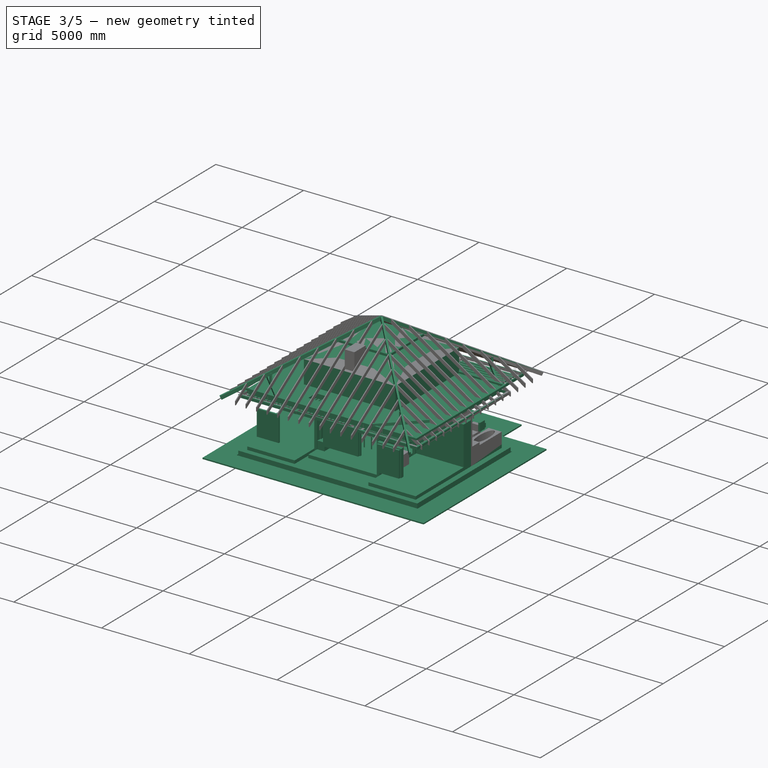
[diagram: stage 3 of 5 — iso view after this stage's code; geometry added in this stage tinted green]
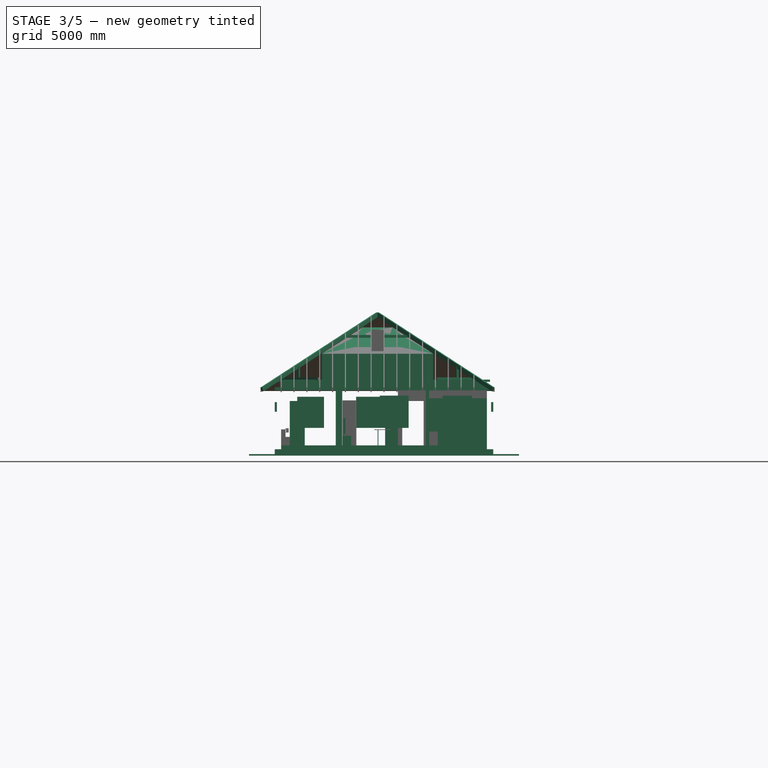
[diagram: stage 3 of 5 — front view after this stage's code; geometry added in this stage tinted green]
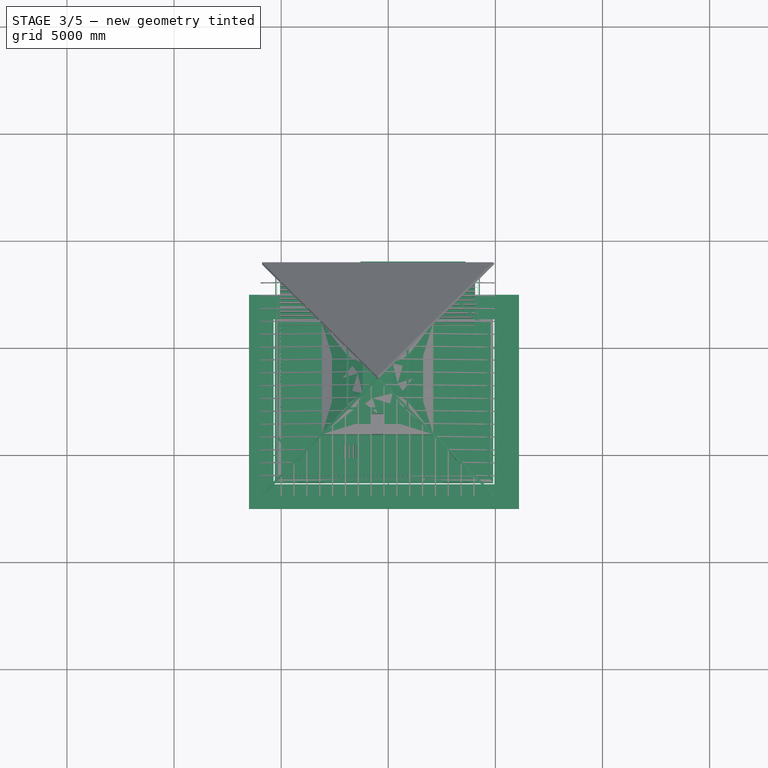
[diagram: stage 3 of 5 — top view after this stage's code; geometry added in this stage tinted green]
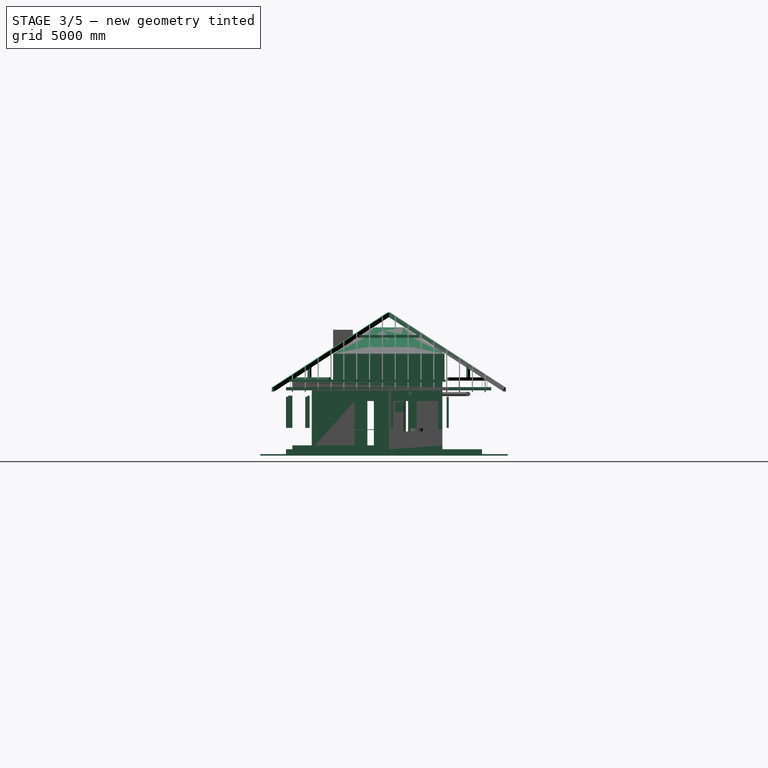
[diagram: stage 3 of 5 — right view after this stage's code; geometry added in this stage tinted green]
FEATURE [Part::FeaturePython] Structure178  label="проём_дымохода"  # Arch/BIM object (typed FeaturePython)
  Base = -> Rectangle381
  FaceMaker = 0
  Height = 3000
  HorizontalArea = 144400
  IfcRole = 0
  Length = 0
  MoveWithHost = false
  Nodes = (2) [(3838.98,5661.82,0),(3838.98,5661.82,500)]
  NodesOffset = 0
  Normal = (0,0,0)
  PerimeterLength = 1520
  Placement = pos=(0,0,2570) rot=(0,0,1;0rad)
  VerticalArea = 4560000
  Width = 100
FEATURE [Part::Part2DObjectPython] Rectangle482  label="плита_крыльца_001"  # Draft 2D object (typed FeaturePython)
  ChamferSize = 0
  Columns = 1
  FilletRadius = 0
  Height = 1550
  Length = 2500
  MakeFace = false
  Placement = pos=(4900,1300,0) rot=(0,0,1;0rad)
  Rows = 1
FEATURE [Part::Part2DObjectPython] Rectangle483  label="подушка_крыльца_002"  # Draft 2D object (typed FeaturePython)
  ChamferSize = 0
  Columns = 1
  FilletRadius = 0
  Height = 1600
  Length = 5400
  MakeFace = false
  Placement = pos=(12100,-3700,0) rot=(0,0,1;1.5708rad)
  Rows = 1
FEATURE [Part::FeaturePython] Structure237  label="фундамент_плита_крыльца h0.3"  # Arch/BIM object (typed FeaturePython)
  Base = -> Rectangle482
  FaceMaker = 0
  Height = 300
  HorizontalArea = 3875000
  IfcRole = 0
  Length = 0
  MoveWithHost = false
  Nodes = (2) [(3875,3875,0),(3875,3875,350)]
  NodesOffset = 0
  Normal = (0,0,-1)
  PerimeterLength = 8100
  Placement = pos=(0,0,-180) rot=(0,0,1;0rad)
  VerticalArea = 2430000
  Width = 100
FEATURE [Part::Part2DObjectPython] Rectangle669  label="профнастил Н114-600*13_002"  # Draft 2D object (typed FeaturePython)
  ChamferSize = 0
  Columns = 1
  FilletRadius = 0
  Height = 5846
  Length = 3200
  MakeFace = false
  Placement = pos=(-50,-2750,0) rot=(0,0,1;0rad)
  Rows = 1
FEATURE [Part::Part2DObjectPython] Wire201  label="профнастил Н114-600_профиль_01"  # Draft 2D object (typed FeaturePython)
  ChamferSize = 0
  Closed = false
  End = (596,-6050,2570)
  FilletRadius = 0
  Length = 1230.47
  MakeFace = true
  Placement = pos=(-50,-6050,2570) rot=(1,0,0;1.5708rad)
  Points = (14) [(0,0,0),(53,0,0),(71,114,0),(175,114,0),(193,0,0),(253,0,0),(271,114,0),(375,114,0),(393,0,0),(453,0,0),(471,114,0),(575,114,0),(593,0,0),(646,0,0)]
  Start = (-50,-6050,2570)
  Subdivisions = 0
FEATURE [Part::FeaturePython] Wall082  label="перекр. Н114-600 L3200"  # Arch/BIM object (typed FeaturePython)
  Align = 0
  Base = -> Wire201
  BlockHeight = 0
  BlockLength = 0
  CountBroken = 0
  CountEntire = 0
  Face = 0
  Height = 3200
  HorizontalArea = 0
  IfcRole = 156
  Joint = 0
  Length = 1230.47
  MakeBlocks = false
  MoveWithHost = false
  Normal = (0,1,0)
  OffsetFirst = 0
  OffsetSecond = 0
  PerimeterLength = 0
  VerticalArea = 0
  Width = 1
FEATURE [Part::FeaturePython] Array024  label="перекр. Н114-600 L3200*10"  # Draft array (typed FeaturePython)
  Angle = 360
  ArrayType = 0
  Axis = (0,0,1)
  Base = -> Wall082
  Center = (0,0,0)
  Fuse = false
  IntervalAxis = (0,0,0)
  IntervalX = (600,0,0)
  IntervalY = (0,1,0)
  IntervalZ = (0,0,1)
  NumberPolar = 1
  NumberX = 10
  NumberY = 1
  NumberZ = 1
FEATURE [Part::Part2DObjectPython] Wire202  label="профнастил Н114-600_профиль_002"  # Draft 2D object (typed FeaturePython)
  ChamferSize = 0
  Closed = false
  End = (-50,-2104,2570)
  FilletRadius = 0
  Length = 1230.47
  MakeFace = true
  Placement = pos=(-50,-2750,2570) rot=(0.57735,0.57735,0.57735;2.0944rad)
  Points = (14) [(0,0,0),(53,0,0),(71,114,0),(175,114,0),(193,0,0),(253,0,0),(271,114,0),(375,114,0),(393,0,0),(453,0,0),(471,114,0),(575,114,0),(593,0,0),+1 more]
  Start = (-50,-2750,2570)
  Subdivisions = 0
FEATURE [Part::FeaturePython] Wall083  label="перекр. Н114-600 L3200 001"  # Arch/BIM object (typed FeaturePython)
  Align = 0
  Base = -> Wire202
  BlockHeight = 0
  BlockLength = 0
  CountBroken = 0
  CountEntire = 0
  Face = 0
  Height = 3200
  HorizontalArea = 0
  IfcRole = 156
  Joint = 0
  Length = 1230.47
  MakeBlocks = false
  MoveWithHost = false
  Normal = (1,0,0)
  OffsetFirst = 0
  OffsetSecond = 0
  PerimeterLength = 0
  VerticalArea = 0
  Width = 1
FEATURE [Part::FeaturePython] Array025  label="перекр. Н114-600 L3200*9"  # Draft array (typed FeaturePython)
  Angle = 360
  ArrayType = 0
  Axis = (0,0,1)
  Base = -> Wall083
  Center = (0,0,0)
  Fuse = false
  IntervalAxis = (0,0,0)
  IntervalX = (0,0,0)
  IntervalY = (0,600,0)
  IntervalZ = (0,0,1)
  NumberPolar = 1
  NumberX = 1
  NumberY = 9
  NumberZ = 1
FEATURE [Part::FeaturePython] Structure363  label="проём для печи"  # Arch/BIM object (typed FeaturePython)
  Base = -> Rectangle563
  FaceMaker = 0
  Height = 2300
  HorizontalArea = 105000
  IfcRole = 0
  Length = 0
  MoveWithHost = false
  Nodes = (2) [(-4225,7937.5,0),(-4225,7937.5,2250)]
  NodesOffset = 0
  Normal = (0,0,0)
  PerimeterLength = 1700
  Placement = pos=(0,0,-180) rot=(0,0,1;0rad)
  VerticalArea = 3910000
  Width = 100
FEATURE [Part::FeaturePython] Structure364  label="проём двери вн. 001"  # Arch/BIM object (typed FeaturePython)
  Base = -> Rectangle372
  FaceMaker = 0
  Height = 2250
  HorizontalArea = 105000
  IfcRole = 0
  Length = 0
  MoveWithHost = false
  Nodes = (2) [(-4225,7937.5,0),(-4225,7937.5,2250)]
  NodesOffset = 0
  Normal = (0,0,0)
  PerimeterLength = 1700
  Placement = pos=(0,0,-180) rot=(0,0,1;0rad)
  VerticalArea = 3825000
  Width = 100
FEATURE [Part::FeaturePython] Wall089  label="проём теплоизол. трубы"  # Arch/BIM object (typed FeaturePython)
  Align = 0
  Base = -> Rectangle381
  BlockHeight = 0
  BlockLength = 0
  CountBroken = 0
  CountEntire = 0
  Face = 0
  Height = 300
  HorizontalArea = 252500
  IfcRole = 156
  Joint = 0
  Length = 1520
  MakeBlocks = false
  MoveWithHost = false
  Normal = (0,0,1)
  OffsetFirst = 0
  OffsetSecond = 0
  PerimeterLength = 2520
  Placement = pos=(0,0,2720) rot=(0,0,1;0rad)
  VerticalArea = 1212000
  Width = 125
FEATURE [Part::Part2DObjectPython] Line676  label="подкос_123"  # Draft 2D object (typed FeaturePython)
  ChamferSize = 0
  Closed = false
  End = (1749.03,3160.16,3100.66)
  FilletRadius = 0
  Length = 2700
  MakeFace = false
  Placement = pos=(339.843,1150.97,6520.66) rot=(0,0,1;0rad)
  Points = (2) [(-500,100,-3420),(1409.19,2009.19,-3420)]
  Start = (-160.157,1250.97,3100.66)
  Subdivisions = 0
FEATURE [Part::Part2DObjectPython] Line678  label="подкос_124"  # Draft 2D object (typed FeaturePython)
  ChamferSize = 0
  Closed = false
  End = (794.437,2205.56,3700.66)
  FilletRadius = 0
  Length = 600
  MakeFace = false
  Placement = pos=(794.437,2205.56,3100.66) rot=(0,0,1;0rad)
  Points = (2) [(0,0,0),(0,0,600)]
  Start = (794.437,2205.56,3100.66)
  Subdivisions = 0
FEATURE [Part::Part2DObjectPython] Rectangle675  label="брус_сечение_004"  # Draft 2D object (typed FeaturePython)
  ChamferSize = 0
  Columns = 1
  FilletRadius = 0
  Height = 150
  Length = 100
  MakeFace = false
  Placement = pos=(670.693,2223.24,3100.66) rot=(0,0,-1;0.785398rad)
  Rows = 1
FEATURE [Part::FeaturePython] Pipe070  label="подкос_117"  # Arch/BIM object (typed FeaturePython)
  Base = -> Line676
  Diameter = 50
  HorizontalArea = 0
  IfcRole = 98
  Length = 2700
  MoveWithHost = false
  OffsetEnd = 0
  OffsetStart = 0
  PerimeterLength = 0
  Profile = -> Rectangle675
  VerticalArea = 0
FEATURE [Part::FeaturePython] Pipe071  label="подкос_118"  # Arch/BIM object (typed FeaturePython)
  Base = -> Line678
  Diameter = 50
  HorizontalArea = 0
  IfcRole = 98
  Length = 600
  MoveWithHost = false
  OffsetEnd = 0
  OffsetStart = 0
  PerimeterLength = 0
  Profile = -> Rectangle675
  VerticalArea = 0
FEATURE [Part::Part2DObjectPython] Rectangle676  label="накосное стропило сечение"  # Draft 2D object (typed FeaturePython)
  ChamferSize = 0
  Columns = 1
  FilletRadius = 0
  Height = 200
  Length = 100
  MakeFace = false
  Placement = pos=(-968.981,3898.27,2827) rot=(0,0,1;0.785398rad)
  Rows = 1
FEATURE [Part::FeaturePython] Pipe065  label="накосное стропило 01"  # Arch/BIM object (typed FeaturePython)
  Base = -> Line626
  Diameter = 50
  HorizontalArea = 0
  IfcRole = 98
  Length = 8400
  MoveWithHost = false
  OffsetEnd = 0
  OffsetStart = 0
  PerimeterLength = 0
  Placement = pos=(0,0,-200) rot=(0,0,1;0rad)
  Profile = -> Rectangle676
  VerticalArea = 0
FEATURE [Part::Box] Box3143  label="шкаф007"
  AttacherType = Attacher::AttachEngine3D
  Height = 2200
  Length = 2700
  Placement = pos=(6900,-2100,0) rot=(0,0,1;0rad)
  Width = 600
FEATURE [Part::Part2DObjectPython] Rectangle692  label="прощадь внутри стен #01"  # Draft 2D object (typed FeaturePython)
  ChamferSize = 0
  Columns = 1
  FilletRadius = 0
  Height = 7000
  Length = 9600
  MakeFace = false
  Placement = pos=(0,-6000,0) rot=(0,0,1;0rad)
  Rows = 1
FEATURE [Part::FeaturePython] Wall088  label="мауэрлат 100х100"  # Arch/BIM object (typed FeaturePython)
  Align = 0
  Base = -> Rectangle692
  BlockHeight = 0
  BlockLength = 0
  CountBroken = 0
  CountEntire = 0
  Face = 0
  Height = 100
  HorizontalArea = 3400000
  IfcRole = 156
  Joint = 0
  Length = 33200
  MakeBlocks = false
  MoveWithHost = false
  Normal = (0,0,0)
  Offset = 50
  OffsetFirst = 0
  OffsetSecond = 0
  PerimeterLength = 34400
  Placement = pos=(0,0,2970) rot=(0,0,1;0rad)
  VerticalArea = 6800000
  Width = 100
FEATURE [Part::Part2DObjectPython] Rectangle695  label="кухня-гостиная #001"  # Draft 2D object (typed FeaturePython)
  ChamferSize = 0
  Columns = 1
  FilletRadius = 0
  Height = 6100
  Length = 3900
  MakeFace = false
  Placement = pos=(2850,-5100,0) rot=(0,0,1;0rad)
  Rows = 1
FEATURE [Part::Part2DObjectPython] Rectangle698  label="тамбур"  # Draft 2D object (typed FeaturePython)
  ChamferSize = 0
  Columns = 1
  FilletRadius = 0
  Height = 1400
  Length = 1200
  MakeFace = false
  Placement = pos=(5550,-400,0) rot=(0,0,1;0rad)
  Rows = 1
FEATURE [Part::Part2DObjectPython] ShapeString009  label="надпись 010"  # Draft 2D object (typed FeaturePython)
  FontFile = <path>
  Placement = pos=(4377.3,-786.23,0) rot=(0,0,1;0rad)
  Size = 100
  String = кухня-гостиная 21.83 м2
  Tracking = 0
FEATURE [Part::Part2DObjectPython] ShapeString010  label="надпись 011"  # Draft 2D object (typed FeaturePython)
  FontFile = <path>
  Placement = pos=(734.352,-3459.41,0) rot=(0,0,1;0rad)
  Size = 100
  String = спальня 12.15 м2
  Tracking = 0
FEATURE [Part::Part2DObjectPython] ShapeString011  label="надпись 012"  # Draft 2D object (typed FeaturePython)
  FontFile = <path>
  Placement = pos=(7926.58,-2932.61,0) rot=(0,0,1;0rad)
  Size = 100
  String = спальня 10.53 м2
  Tracking = 0
FEATURE [Part::Part2DObjectPython] ShapeString012  label="надпись 013"  # Draft 2D object (typed FeaturePython)
  FontFile = <path>
  Placement = pos=(327.516,-108.153,0) rot=(0,0,1;0rad)
  Size = 100
  String = С/У 2.88 м2
  Tracking = 0
FEATURE [Part::Part2DObjectPython] ShapeString013  label="надпись 014"  # Draft 2D object (typed FeaturePython)
  FontFile = <path>
  Placement = pos=(7974.18,-903.652,0) rot=(0,0,1;0rad)
  Size = 100
  String = С.У.  4.8 м2
  Tracking = 0
FEATURE [Part::Part2DObjectPython] ShapeString015  label="надпись 016"  # Draft 2D object (typed FeaturePython)
  FontFile = <path>
  Placement = pos=(5816.03,757.507,0) rot=(0,0,1;0rad)
  Size = 100
  String = Тр. 1.68 м2
  Tracking = 0
FEATURE [Part::Part2DObjectPython] ShapeString016  label="надпись 017"  # Draft 2D object (typed FeaturePython)
  FontFile = <path>
  Placement = pos=(4138.26,-1192.1,0) rot=(0,0,1;0rad)
  Size = 100
  String = Всего внутри стен: 63.69 м2
  Tracking = 0
FEATURE [Part::Part2DObjectPython] Rectangle700  label="прощадь по ГБ стене внешн.001"  # Draft 2D object (typed FeaturePython)
  ChamferSize = 0
  Columns = 1
  FilletRadius = 0
  Height = 7600
  Length = 10200
  MakeFace = false
  Placement = pos=(-300,-6300,0) rot=(0,0,1;0rad)
  Rows = 1
FEATURE [Part::Part2DObjectPython] Wire204  label="граница_участка002"  # Draft 2D object (typed FeaturePython)
  ChamferSize = 0
  Closed = true
  End = (20957.4,-17581,0)
  FilletRadius = 0
  Length = 112210
  MakeFace = false
  Placement = pos=(-7042.62,-16681,0) rot=(0,0,1;0rad)
  Points = (8) [(0,-100,0),(0,25200,0),(16300,23621.4,0),(16300,27085.6,0),(21200,27084.5,0),(21200,23146.9,0),(28000,22488.3,0),(28000,-900,0)]
  Start = (-7042.62,-16781,0)
  Subdivisions = 0
FEATURE [Part::Part2DObjectPython] Rectangle701  label="граница_участка003"  # Draft 2D object (typed FeaturePython)
  ChamferSize = 0
  Columns = 1
  FilletRadius = 0
  Height = 25200
  Length = 28000
  MakeFace = false
  Placement = pos=(-7042.62,-16681,0) rot=(0,0,1;0rad)
  Rows = 1
FEATURE [Part::Part2DObjectPython] Rectangle702  label="баня_старая001"  # Draft 2D object (typed FeaturePython)
  ChamferSize = 0
  Columns = 1
  FilletRadius = 0
  Height = 4400
  Length = 2300
  MakeFace = true
  Placement = pos=(-7042.62,-15281,0) rot=(0,0,1;0rad)
  Rows = 1
FEATURE [Part::Part2DObjectPython] Rectangle703  label="площадка001"  # Draft 2D object (typed FeaturePython)
  ChamferSize = 0
  Columns = 1
  FilletRadius = 0
  Height = 3000
  Length = 3000
  MakeFace = true
  Placement = pos=(357.376,-11694.7,0) rot=(0,0,1;0rad)
  Rows = 1
FEATURE [Part::Part2DObjectPython] Rectangle704  label="дом001"  # Draft 2D object (typed FeaturePython)
  ChamferSize = 0
  Columns = 1
  FilletRadius = 0
  Height = 6700
  Length = 7900
  MakeFace = true
  Placement = pos=(4457.38,-5794.74,0) rot=(0,0,1;0rad)
  Rows = 1
FEATURE [Part::Part2DObjectPython] Rectangle705  label="гараж001"  # Draft 2D object (typed FeaturePython)
  ChamferSize = 0
  Columns = 1
  FilletRadius = 0
  Height = 8000
  Length = 3300
  MakeFace = true
  Placement = pos=(12357.4,-7094.74,0) rot=(0,0,1;0rad)
  Rows = 1
FEATURE [Part::Part2DObjectPython] Rectangle706  label="крыльцо002"  # Draft 2D object (typed FeaturePython)
  ChamferSize = 0
  Columns = 1
  FilletRadius = 0
  Height = 3100
  Length = 4900
  MakeFace = true
  Placement = pos=(5957.38,-8894.74,0) rot=(0,0,1;0rad)
  Rows = 1
FEATURE [App::DocumentObjectGroup] Group075  label="участок"
  Group = -> [Wire204,Rectangle701,Rectangle702,Rectangle703,Rectangle704,Rectangle705,Rectangle706]
FEATURE [Part::Part2DObjectPython] Rectangle707  label="тех.пом/кладовая"  # Draft 2D object (typed FeaturePython)
  ChamferSize = 0
  Columns = 1
  FilletRadius = 0
  Height = 1800
  Length = 1400
  MakeFace = false
  Placement = pos=(1300,-800,0) rot=(0,0,1;0rad)
  Rows = 1
FEATURE [Part::Part2DObjectPython] Rectangle708  # Draft 2D object (typed FeaturePython)
  ChamferSize = 0
  Columns = 1
  FilletRadius = 0
  Height = 50
  Length = 150
  MakeFace = true
  Placement = pos=(2700,-700,0) rot=(0,0,1;0rad)
  Rows = 1
FEATURE [Part::Part2DObjectPython] ShapeString018  label="надпись 019"  # Draft 2D object (typed FeaturePython)
  FontFile = <path>
  Placement = pos=(1426.62,-170.658,0) rot=(0,0,1;0rad)
  Size = 100
  String = Кл./Тех пом. 2.52 м2
  Tracking = 0
FEATURE [Part::Part2DObjectPython] Line  # Draft 2D object (typed FeaturePython)
  ChamferSize = 0
  Closed = false
  End = (2775,0,0)
  FilletRadius = 0
  Length = 700
  MakeFace = true
  Placement = pos=(2775,-600,0) rot=(0,0,1;0rad)
  Points = (2) [(0,-100,0),(-1.36424e-12,600,0)]
  Start = (2775,-700,0)
  Subdivisions = 0
FEATURE [Part::Part2DObjectPython] Rectangle713  label="Rectangle705"  # Draft 2D object (typed FeaturePython)
  ChamferSize = 0
  Columns = 1
  FilletRadius = 0
  Height = 50
  Length = 150
  MakeFace = true
  Placement = pos=(2700,-50,0) rot=(0,0,1;0rad)
  Rows = 1
FEATURE [Part::Part2DObjectPython] Rectangle714  label="Rectangle713"  # Draft 2D object (typed FeaturePython)
  ChamferSize = 0
  Columns = 1
  FilletRadius = 0
  Height = 50
  Length = 100
  MakeFace = true
  Placement = pos=(1100,-1500,0) rot=(0,0,1;1.5708rad)
  Rows = 1
FEATURE [Part::Part2DObjectPython] Line581  # Draft 2D object (typed FeaturePython)
  ChamferSize = 0
  Closed = false
  End = (400,-1450,0)
  FilletRadius = 0
  Length = 700
  MakeFace = true
  Placement = pos=(1100,-1450,0) rot=(0,0,1;1.5708rad)
  Points = (2) [(0,0,0),(2.27374e-13,700,0)]
  Start = (1100,-1450,0)
  Subdivisions = 0
FEATURE [Part::Part2DObjectPython] Rectangle715  label="Rectangle714"  # Draft 2D object (typed FeaturePython)
  ChamferSize = 0
  Columns = 1
  FilletRadius = 0
  Height = 50
  Length = 100
  MakeFace = true
  Placement = pos=(450,-1500,0) rot=(0,0,1;1.5708rad)
  Rows = 1
FEATURE [Part::Part2DObjectPython] Rectangle719  label="шкаф"  # Draft 2D object (typed FeaturePython)
  ChamferSize = 0
  Columns = 1
  FilletRadius = 0
  Height = 600
  Length = 2100
  MakeFace = true
  Placement = pos=(6000,-6000,0) rot=(0,0,1;1.5708rad)
  Rows = 1
FEATURE [Part::Part2DObjectPython] Rectangle721  label="шкаф001"  # Draft 2D object (typed FeaturePython)
  ChamferSize = 0
  Columns = 1
  FilletRadius = 0
  Height = 1500
  Length = 600
  MakeFace = true
  Placement = pos=(9000,-1500,0) rot=(0,0,1;1.5708rad)
  Rows = 1
FEATURE [Part::Part2DObjectPython] Rectangle722  label="шкаф002"  # Draft 2D object (typed FeaturePython)
  ChamferSize = 0
  Columns = 1
  FilletRadius = 0
  Height = 1150
  Length = 600
  MakeFace = true
  Placement = pos=(7400,-1500,0) rot=(0,0,1;1.5708rad)
  Rows = 1
FEATURE [Part::Part2DObjectPython] Rectangle723  label="шкаф003"  # Draft 2D object (typed FeaturePython)
  ChamferSize = 0
  Columns = 1
  FilletRadius = 0
  Height = 1800
  Length = 600
  MakeFace = true
  Placement = pos=(9000,-2200,0) rot=(0,0,1;1.5708rad)
  Rows = 1
FEATURE [Part::Part2DObjectPython] Rectangle724  label="Rectangle721"  # Draft 2D object (typed FeaturePython)
  ChamferSize = 0
  Columns = 1
  FilletRadius = 0
  Height = 100
  Length = 50
  MakeFace = true
  Placement = pos=(5650,-500,0) rot=(0,0,1;0rad)
  Rows = 1
FEATURE [Part::Part2DObjectPython] Line583  # Draft 2D object (typed FeaturePython)
  ChamferSize = 0
  Closed = false
  End = (6650,-450,0)
  FilletRadius = 0
  Length = 1000
  MakeFace = true
  Placement = pos=(5650,-450,0) rot=(0,0,1;1.5708rad)
  Points = (2) [(-9.09495e-13,0,0),(0,-1000,0)]
  Start = (5650,-450,0)
  Subdivisions = 0
FEATURE [Part::Part2DObjectPython] Rectangle725  label="Rectangle722"  # Draft 2D object (typed FeaturePython)
  ChamferSize = 0
  Columns = 1
  FilletRadius = 0
  Height = 100
  Length = 50
  MakeFace = true
  Placement = pos=(6600,-500,0) rot=(0,0,1;0rad)
  Rows = 1
FEATURE [Part::Part2DObjectPython] Rectangle727  label="Rectangle723"  # Draft 2D object (typed FeaturePython)
  ChamferSize = 0
  Columns = 1
  FilletRadius = 0
  Height = 100
  Length = 50
  MakeFace = true
  Placement = pos=(6650,1300,0) rot=(0,0,1;3.14159rad)
  Rows = 1
FEATURE [Part::Part2DObjectPython] Line584  # Draft 2D object (typed FeaturePython)
  ChamferSize = 0
  Closed = false
  End = (5650,1250,0)
  FilletRadius = 0
  Length = 1000
  MakeFace = true
  Placement = pos=(6650,1250,0) rot=(0,0,-1;1.5708rad)
  Points = (2) [(-1.81899e-12,0,0),(1.36424e-12,-1000,0)]
  Start = (6650,1250,0)
  Subdivisions = 0
FEATURE [Part::Part2DObjectPython] Rectangle728  label="Rectangle724"  # Draft 2D object (typed FeaturePython)
  ChamferSize = 0
  Columns = 1
  FilletRadius = 0
  Height = 100
  Length = 50
  MakeFace = true
  Placement = pos=(5700,1300,0) rot=(0,0,1;3.14159rad)
  Rows = 1
FEATURE [Part::Part2DObjectPython] Rectangle731  label="блок_001"  # Draft 2D object (typed FeaturePython)
  ChamferSize = 0
  Columns = 1
  FilletRadius = 0
  Height = 400
  Length = 625
  MakeFace = true
  Placement = pos=(-400,-6400,0) rot=(0,0,1;0rad)
  Rows = 1
FEATURE [Part::Part2DObjectPython] Rectangle732  label="блок_022"  # Draft 2D object (typed FeaturePython)
  ChamferSize = 0
  Columns = 1
  FilletRadius = 0
  Height = 625
  Length = 400
  MakeFace = true
  Placement = pos=(-400,2775,0) rot=(0,0,1;0rad)
  Rows = 1
FEATURE [Part::Part2DObjectPython] Rectangle733  label="блок_023"  # Draft 2D object (typed FeaturePython)
  ChamferSize = 0
  Columns = 1
  FilletRadius = 0
  Height = 400
  Length = 625
  MakeFace = true
  Placement = pos=(8775,3000,0) rot=(0,0,1;0rad)
  Rows = 1
FEATURE [Part::Part2DObjectPython] Rectangle734  label="блок_024"  # Draft 2D object (typed FeaturePython)
  ChamferSize = 0
  Columns = 1
  FilletRadius = 0
  Height = 625
  Length = 400
  MakeFace = true
  Placement = pos=(9000,-6400,0) rot=(0,0,1;0rad)
  Rows = 1
FEATURE [Part::Part2DObjectPython] Rectangle737  label="плита и цоколь"  # Draft 2D object (typed FeaturePython)
  ChamferSize = 0
  Columns = 1
  FilletRadius = 0
  Height = 7600
  Length = 10200
  MakeFace = false
  Placement = pos=(-300,-6300,0) rot=(0,0,1;0rad)
  Rows = 1
FEATURE [Part::FeaturePython] Structure130  label="фундамент_плита h0.3"  # Arch/BIM object (typed FeaturePython)
  Base = -> Rectangle737
  FaceMaker = 0
  Height = 300
  HorizontalArea = 7.752e+07
  IfcRole = 0
  Length = 0
  MoveWithHost = false
  Nodes = (2) [(3875,3875,0),(3875,3875,350)]
  NodesOffset = 0
  Normal = (0,0,-1)
  PerimeterLength = 35600
  Placement = pos=(0,0,-180) rot=(0,0,1;0rad)
  VerticalArea = 10680000
  Width = 100
FEATURE [App::GeometryPython] BuildingPart028  label="Основание и дренаж"  # Arch/BIM object (typed FeaturePython)
  Area = 0
  Group = -> [Structure159,Structure160,Structure239,Wall068,Structure242,BuildingPart058]
  Height = 0
  IfcRole = 0
  LevelOffset = 0
FEATURE [Part::Part2DObjectPython] Rectangle738  label="кровать 2сп 001"  # Draft 2D object (typed FeaturePython)
  ChamferSize = 0
  Columns = 1
  FilletRadius = 0
  Height = 2100
  Length = 1600
  MakeFace = true
  Placement = pos=(8350,-4600,0) rot=(0,0,1;1.5708rad)
  Rows = 1
FEATURE [Part::Part2DObjectPython] Rectangle739  label="кровать 2сп 002"  # Draft 2D object (typed FeaturePython)
  ChamferSize = 0
  Columns = 1
  FilletRadius = 0
  Height = 1600
  Length = 2100
  MakeFace = true
  Placement = pos=(3300,-6000,0) rot=(0,0,1;1.5708rad)
  Rows = 1
FEATURE [Part::Part2DObjectPython] Rectangle740  label="стол_002"  # Draft 2D object (typed FeaturePython)
  ChamferSize = 0
  Columns = 1
  FilletRadius = 0
  Height = 1450
  Length = 650
  MakeFace = true
  Placement = pos=(8300,-6000,0) rot=(0,0,1;1.5708rad)
  Rows = 1
FEATURE [Part::Part2DObjectPython] Rectangle741  label="стол_003"  # Draft 2D object (typed FeaturePython)
  ChamferSize = 0
  Columns = 1
  FilletRadius = 0
  Height = 1450
  Length = 650
  MakeFace = true
  Placement = pos=(0,-4850,0) rot=(0,0,1;0rad)
  Rows = 1
FEATURE [Part::Part2DObjectPython] Rectangle742  label="тумба под ТВ001"  # Draft 2D object (typed FeaturePython)
  ChamferSize = 0
  Columns = 1
  FilletRadius = 0
  Height = 1200
  Length = 300
  MakeFace = true
  Placement = pos=(3100,-3300,0) rot=(0,0,1;1.5708rad)
  Rows = 1
FEATURE [Part::Part2DObjectPython] Rectangle743  label="проём_064"  # Draft 2D object (typed FeaturePython)
  ChamferSize = 0
  Columns = 1
  FilletRadius = 0
  Height = 1360
  Length = 200
  MakeFace = true
  Placement = pos=(8905,-6200,0) rot=(0,0,1;1.5708rad)
  Rows = 1
FEATURE [Part::FeaturePython] Structure365  label="окно_бол_017"  # Arch/BIM object (typed FeaturePython)
  Base = -> Rectangle743
  FaceMaker = 0
  Height = 1500
  HorizontalArea = 272000
  IfcRole = 0
  Length = 0
  MoveWithHost = false
  Nodes = (2) [(1187.5,6500,0),(1187.5,6500,1500)]
  NodesOffset = 0
  Normal = (0,0,0)
  PerimeterLength = 3120
  Placement = pos=(0,0,820) rot=(0,0,1;0rad)
  VerticalArea = 4680000
  Width = 100
FEATURE [Part::Part2DObjectPython] Rectangle746  label="Стена D500 250x250 внутр. нес. 002"  # Draft 2D object (typed FeaturePython)
  ChamferSize = 0
  Columns = 1
  FilletRadius = 0
  Height = 6100
  Length = 150
  MakeFace = true
  Placement = pos=(6750,-5100,0) rot=(0,0,1;0rad)
  Rows = 1
FEATURE [Part::FeaturePython] Structure366  label="проём двери вн. 003"  # Arch/BIM object (typed FeaturePython)
  Base = -> Rectangle541
  FaceMaker = 0
  Height = 2250
  HorizontalArea = 150000
  IfcRole = 0
  Length = 0
  MoveWithHost = false
  Nodes = (2) [(-4225,7937.5,0),(-4225,7937.5,2250)]
  NodesOffset = 0
  Normal = (0,0,0)
  PerimeterLength = 2300
  Placement = pos=(0,0,-180) rot=(0,0,1;0rad)
  VerticalArea = 5.175e+06
  Width = 100
FEATURE [Part::FeaturePython] Structure367  label="проём двери вн. 004"  # Arch/BIM object (typed FeaturePython)
  Base = -> Rectangle586
  FaceMaker = 0
  Height = 2250
  HorizontalArea = 135000
  IfcRole = 0
  Length = 0
  MoveWithHost = false
  Nodes = (2) [(-4225,7937.5,0),(-4225,7937.5,2250)]
  NodesOffset = 0
  Normal = (0,0,0)
  PerimeterLength = 2100
  Placement = pos=(0,0,-180) rot=(0,0,1;0rad)
  VerticalArea = 4725000
  Width = 100
FEATURE [Part::FeaturePython] Wall092  label="Стена D500 250мм внутр. несущая 003"  # Arch/BIM object (typed FeaturePython)
  Align = 2
  Base = -> Rectangle746
  BlockHeight = 0
  BlockLength = 0
  CountBroken = 0
  CountEntire = 0
  Face = 0
  Height = 2750
  HorizontalArea = 915000
  IfcRole = 156
  Joint = 0
  Length = 0
  MakeBlocks = false
  MoveWithHost = false
  Normal = (0,0,0)
  OffsetFirst = 0
  OffsetSecond = 0
  PerimeterLength = 12500
  Placement = pos=(1.819e-12,3.1832e-12,-180) rot=(0,0,1;0rad)
  Subtractions = -> [Structure366,Structure367,Structure364]
  VerticalArea = 24700000
  Width = 250
FEATURE [Part::Part2DObjectPython] Rectangle749  label="Стена D500 250x250 внутр. нес. 003"  # Draft 2D object (typed FeaturePython)
  ChamferSize = 0
  Columns = 1
  FilletRadius = 0
  Height = 5475
  Length = 150
  MakeFace = true
  Placement = pos=(2700,-5100,0) rot=(0,0,1;0rad)
  Rows = 1
FEATURE [Part::FeaturePython] Structure368  label="проём двери вн. 005"  # Arch/BIM object (typed FeaturePython)
  Base = -> Rectangle367
  FaceMaker = 0
  Height = 2250
  HorizontalArea = 135000
  IfcRole = 0
  Length = 0
  MoveWithHost = false
  Nodes = (2) [(-4225,7937.5,0),(-4225,7937.5,2250)]
  NodesOffset = 0
  Normal = (0,0,0)
  PerimeterLength = 2100
  Placement = pos=(0,0,-180) rot=(0,0,1;0rad)
  VerticalArea = 4725000
  Width = 100
FEATURE [Part::FeaturePython] Structure369  label="проём двери вн. 006"  # Arch/BIM object (typed FeaturePython)
  Base = -> Rectangle367
  FaceMaker = 0
  Height = 2250
  HorizontalArea = 135000
  IfcRole = 0
  Length = 0
  MoveWithHost = false
  Nodes = (2) [(-4225,7937.5,0),(-4225,7937.5,2250)]
  NodesOffset = 0
  Normal = (0,0,0)
  PerimeterLength = 2100
  Placement = pos=(0,0,-180) rot=(0,0,1;0rad)
  VerticalArea = 4725000
  Width = 100
FEATURE [Part::FeaturePython] Structure370  label="проём двери вн. 007"  # Arch/BIM object (typed FeaturePython)
  Base = -> Rectangle363
  FaceMaker = 0
  Height = 2250
  HorizontalArea = 70000
  IfcRole = 0
  Length = 0
  MoveWithHost = false
  Nodes = (2) [(-4225,7937.5,0),(-4225,7937.5,2250)]
  NodesOffset = 0
  Normal = (0,0,0)
  PerimeterLength = 1600
  Placement = pos=(0,0,-180) rot=(0,0,1;0rad)
  VerticalArea = 3.6e+06
  Width = 100
FEATURE [Part::FeaturePython] Wall094  label="Утепление торца плиты перекрытия"  # Arch/BIM object (typed FeaturePython)
  Align = 0
  Base = -> Rectangle687
  BlockHeight = 0
  BlockLength = 0
  CountBroken = 0
  CountEntire = 0
  Face = 0
  Height = 150
  HorizontalArea = 1.9e+06
  IfcRole = 156
  Joint = 0
  Length = 37800
  MakeBlocks = false
  MoveWithHost = false
  Normal = (0,0,0)
  OffsetFirst = 0
  OffsetSecond = 0
  PerimeterLength = 38200
  Placement = pos=(0,0,2570) rot=(0,0,1;0rad)
  VerticalArea = 11400000
  Width = 50
FEATURE [Part::Part2DObjectPython] Rectangle752  label="блок_025"  # Draft 2D object (typed FeaturePython)
  ChamferSize = 0
  Columns = 1
  FilletRadius = 0
  Height = 400
  Length = 625
  MakeFace = true
  Placement = pos=(-400,3000,0) rot=(0,0,1;0rad)
  Rows = 1
FEATURE [Part::Part2DObjectPython] Rectangle753  label="блок_026"  # Draft 2D object (typed FeaturePython)
  ChamferSize = 0
  Columns = 1
  FilletRadius = 0
  Height = 625
  Length = 400
  MakeFace = true
  Placement = pos=(9000,2775,0) rot=(0,0,1;0rad)
  Rows = 1
FEATURE [Part::Part2DObjectPython] Rectangle754  label="блок_027"  # Draft 2D object (typed FeaturePython)
  ChamferSize = 0
  Columns = 1
  FilletRadius = 0
  Height = 400
  Length = 625
  MakeFace = true
  Placement = pos=(8775,-6400,0) rot=(0,0,1;0rad)
  Rows = 1
FEATURE [Part::Part2DObjectPython] Rectangle755  label="блок_028"  # Draft 2D object (typed FeaturePython)
  ChamferSize = 0
  Columns = 1
  FilletRadius = 0
  Height = 625
  Length = 400
  MakeFace = true
  Placement = pos=(-400,-6400,0) rot=(0,0,1;0rad)
  Rows = 1
FEATURE [App::DocumentObjectGroup] Group076  label="наполнение_01"
  Group = -> [Rectangle719,Rectangle721,Rectangle722,Rectangle723,Rectangle738,Rectangle739,Rectangle740,Rectangle741,Rectangle742,Rectangle731,Rectangle732,Rectangle733,Rectangle734,Rectangle755,Rectangle754,Rectangle753,Rectangle752]
FEATURE [Part::FeaturePython] Structure377  label="пол в помещениях _032"  # Arch/BIM object (typed FeaturePython)
  Base = -> Rectangle707
  FaceMaker = 0
  Height = 180
  HorizontalArea = 2520000
  IfcRole = 0
  Length = 0
  MoveWithHost = false
  Nodes = (2) [(2000,100,0),(2000,100,180)]
  NodesOffset = 0
  Normal = (0,0,0)
  PerimeterLength = 6400
  Placement = pos=(0,0,-180) rot=(0,0,1;0rad)
  VerticalArea = 1152000
  Width = 100
FEATURE [Part::FeaturePython] Structure380  label="пол в помещениях _026"  # Arch/BIM object (typed FeaturePython)
  Base = -> Rectangle698
  FaceMaker = 0
  Height = 180
  HorizontalArea = 1680000
  IfcRole = 0
  Length = 0
  MoveWithHost = false
  Nodes = (2) [(6150,300,0),(6150,300,180)]
  NodesOffset = 0
  Normal = (0,0,0)
  PerimeterLength = 5200
  Placement = pos=(0,0,-180) rot=(0,0,1;0rad)
  VerticalArea = 936000
  Width = 100
FEATURE [Part::Part2DObjectPython] Rectangle757  label="кух.зона004"  # Draft 2D object (typed FeaturePython)
  ChamferSize = 0
  Columns = 1
  FilletRadius = 0
  Height = 800
  Length = 600
  MakeFace = false
  Placement = pos=(4850,-500,0) rot=(0,0,1;0rad)
  Rows = 1
FEATURE [Part::FeaturePython] Structure384  label="кух.зона 008"  # Arch/BIM object (typed FeaturePython)
  Base = -> Rectangle757
  FaceMaker = 0
  Height = 900
  HorizontalArea = 480000
  IfcRole = 0
  Length = 0
  MoveWithHost = false
  Nodes = (2) [(-4700,-6400,0),(-4700,-6400,800)]
  NodesOffset = 0
  Normal = (0,0,0)
  PerimeterLength = 2800
  VerticalArea = 2520000
  Width = 100
FEATURE [Part::Box] Box3144  label="тумба под ТВ 90х26х45 002"
  AttacherType = Attacher::AttachEngine3D
  Height = 450
  Length = 1500
  Placement = pos=(3265.85,-4379.93,0) rot=(0,0,1;1.5708rad)
  Width = 400
FEATURE [Part::Box] Box3145  label="ТВ 55" 002"
  AttacherType = Attacher::AttachEngine3D
  Height = 750
  Length = 1250
  Placement = pos=(3000,-4275,520) rot=(0,0,1;1.5708rad)
  Width = 90
FEATURE [Part::Box] Box3146  label="ножка037"
  AttacherType = Attacher::AttachEngine3D
  Height = 720
  Length = 40
  Placement = pos=(4500,-1790,0) rot=(0,0,1;0rad)
  Width = 40
FEATURE [Part::Box] Box3147  label="ножка038"
  AttacherType = Attacher::AttachEngine3D
  Height = 720
  Length = 40
  Placement = pos=(4910,-1790,0) rot=(0,0,1;0rad)
  Width = 40
FEATURE [Part::Box] Box3148  label="ножка039"
  AttacherType = Attacher::AttachEngine3D
  Height = 720
  Length = 40
  Placement = pos=(4910,-2950,0) rot=(0,0,1;0rad)
  Width = 40
FEATURE [Part::Box] Box3149  label="ножка040"
  AttacherType = Attacher::AttachEngine3D
  Height = 720
  Length = 40
  Placement = pos=(4499.99,-2950,0) rot=(0,0,1;0rad)
  Width = 40
FEATURE [Sketcher::SketchObject] Sketch038
  Placement = pos=(4600,-5400,820) rot=(1,0,0;1.5708rad)
  sketch-geometry (24):
    g0: LineSegment StartX=0 StartY=0 StartZ=0 EndX=1350 EndY=0 EndZ=0
    g1: LineSegment StartX=1350 StartY=0 StartZ=0 EndX=1350 EndY=1500 EndZ=0
    g2: LineSegment StartX=1350 StartY=1500 StartZ=0 EndX=0 EndY=1500 EndZ=0
    g3: LineSegment StartX=0 StartY=1500 StartZ=0 EndX=0 EndY=0 EndZ=0
    g4: LineSegment StartX=55 StartY=55 StartZ=0 EndX=1295 EndY=55 EndZ=0
    g5: LineSegment StartX=1295 StartY=55 StartZ=0 EndX=1295 EndY=1445 EndZ=0
    g6: LineSegment StartX=1295 StartY=1445 StartZ=0 EndX=55 EndY=1445 EndZ=0
    g7: LineSegment StartX=55 StartY=1445 StartZ=0 EndX=55 EndY=55 EndZ=0
    g8: LineSegment StartX=59.4 StartY=59.4 StartZ=0 EndX=672.8 EndY=59.4 EndZ=0
    g9: LineSegment StartX=672.8 StartY=59.4 StartZ=0 EndX=672.8 EndY=1440.6 EndZ=0
    g10: LineSegment StartX=672.8 StartY=1440.6 StartZ=0 EndX=59.4 EndY=1440.6 EndZ=0
    g11: LineSegment StartX=59.4 StartY=1440.6 StartZ=0 EndX=59.4 EndY=59.4 EndZ=0
    g12: LineSegment StartX=114.4 StartY=114.4 StartZ=0 EndX=617.8 EndY=114.4 EndZ=0
    g13: LineSegment StartX=617.8 StartY=114.4 StartZ=0 EndX=617.8 EndY=1385.6 EndZ=0
    g14: LineSegment StartX=617.8 StartY=1385.6 StartZ=0 EndX=114.4 EndY=1385.6 EndZ=0
    g15: LineSegment StartX=114.4 StartY=1385.6 StartZ=0 EndX=114.4 EndY=114.4 EndZ=0
    g16: LineSegment StartX=677.2 StartY=59.4 StartZ=0 EndX=1290.6 EndY=59.4 EndZ=0
    g17: LineSegment StartX=1290.6 StartY=59.4 StartZ=0 EndX=1290.6 EndY=1440.6 EndZ=0
    g18: LineSegment StartX=1290.6 StartY=1440.6 StartZ=0 EndX=677.2 EndY=1440.6 EndZ=0
    g19: LineSegment StartX=677.2 StartY=1440.6 StartZ=0 EndX=677.2 EndY=59.4 EndZ=0
    g20: LineSegment StartX=732.2 StartY=114.4 StartZ=0 EndX=1235.6 EndY=114.4 EndZ=0
    g21: LineSegment StartX=1235.6 StartY=114.4 StartZ=0 EndX=1235.6 EndY=1385.6 EndZ=0
    g22: LineSegment StartX=1235.6 StartY=1385.6 StartZ=0 EndX=732.2 EndY=1385.6 EndZ=0
    g23: LineSegment StartX=732.2 StartY=1385.6 StartZ=0 EndX=732.2 EndY=114.4 EndZ=0
  constraints (71):
    c: Coincident(g0,g1)
    c: Coincident(g1,g2)
    c: Coincident(g2,g3)
    c: Coincident(g3,g0)
    c: Horizontal(g0)
    c: Horizontal(g2)
    c: Vertical(g1)
    c: Vertical(g3)
    c: Coincident(g4,g5)
    c: Coincident(g5,g6)
    c: Coincident(g6,g7)
    c: Coincident(g7,g4)
    c: Horizontal(g4)
    c: Horizontal(g6)
    c: Vertical(g5)
    c: Vertical(g7)
    c: DistanceY(g1) = 1500  'Height'
    c: DistanceX(g0) = 1350  'Width'
    c: DistanceY(g6,g2) = 55  'Frame1'
    c: DistanceX(g2,g6) = 55  'Frame2'
    c: DistanceX(g4,g0) = 55  'Frame3'
    c: DistanceY(g0,g4) = 55  'Frame4'
    c: Coincident(g0,g-1)
    c: Coincident(g8,g9)
    c: Coincident(g9,g10)
    c: Coincident(g10,g11)
    c: Coincident(g11,g8)
    c: Horizontal(g8)
    c: Horizontal(g10)
    c: Vertical(g9)
    c: Vertical(g11)
    c: Coincident(g12,g13)
    c: Coincident(g13,g14)
    c: Coincident(g14,g15)
    c: Coincident(g15,g12)
    c: Horizontal(g12)
    c: Horizontal(g14)
    c: Vertical(g13)
    c: Vertical(g15)
    c: Coincident(g16,g17)
    c: Coincident(g17,g18)
    c: Coincident(g18,g19)
    c: Coincident(g19,g16)
    c: Horizontal(g16)
    c: Horizontal(g18)
    c: Vertical(g17)
    c: Vertical(g19)
    c: Coincident(g20,g21)
    c: Coincident(g21,g22)
    c: Coincident(g22,g23)
    c: Coincident(g23,g20)
    c: Horizontal(g20)
    c: Horizontal(g22)
    c: Vertical(g21)
    c: Vertical(g23)
    c: DistanceY(g8,g12) = 55  'Frame5'
    c: DistanceX(g8,g12) = 55  'Frame6'
    c: DistanceX(g21,g17) = 55  'Frame7'
    c: DistanceY(g21,g17) = 55  'Frame8'
    c: DistanceX(g16,g20) = 55  'Frame9'
    c: DistanceX(g14,g10) = 55  'Frame10'
    c: Equal(g22,g14)
    c: DistanceY(g8,g16) = 0
    c: DistanceY(g10,g18) = 0
    c: DistanceX(g4,g8) = 4.4
    c: DistanceY(g4,g8) = 4.4
    c: DistanceX(g6,g18) = -4.4
    c: DistanceY(g6,g18) = -4.4
    c: DistanceX(g9,g19) = 4.4
    c: PointOnObject(g13,g22)
    c: PointOnObject(g20,g12)
FEATURE [Part::FeaturePython] Window010  label="окно_150х135_006"  # Arch/BIM object (typed FeaturePython)
  Area = 2025000
  Base = -> Sketch038
  Frame = 55
  Height = 1500
  HoleDepth = 0
  HoleWire = 0
  HorizontalArea = 0
  IfcRole = 160
  LouvreSpacing = 0
  LouvreWidth = 0
  MoveWithHost = true
  Normal = (0,1,0)
  Offset = 100
  Opening = 0
  PerimeterLength = 0
  Preset = 3
  SymbolElevation = false
  SymbolPlan = false
  VerticalArea = 0
  Width = 1350
  WindowParts = <same value as first occurrence — deduplicated (x4 in doc)>
FEATURE [App::GeometryPython] BuildingPart069  label="Окна и двери"  # Arch/BIM object (typed FeaturePython)
  Area = 0
  Group = -> [Window004,Window003,Window005,Window006,Window007,Window010]
  Height = 0
  IfcRole = 0
  LevelOffset = 0
FEATURE [Part::Part2DObjectPython] Line681  # Draft 2D object (typed FeaturePython)
  ChamferSize = 0
  Closed = false
  End = (10000,4000,2500)
  FilletRadius = 0
  Length = 15556.3
  MakeFace = true
  Placement = pos=(-1000,-7000,2500) rot=(0,0,1;0rad)
  Points = (2) [(0,0,0),(11000,11000,0)]
  Start = (-1000,-7000,2500)
  Subdivisions = 0
FEATURE [Part::Part2DObjectPython] Line682  # Draft 2D object (typed FeaturePython)
  ChamferSize = 0
  Closed = false
  End = (10000,-1500,2500)
  FilletRadius = 0
  Length = 11000
  MakeFace = true
  Placement = pos=(-1000,-1500,2500) rot=(0,0,1;0rad)
  Points = (2) [(0,0,0),(11000,-2.27374e-13,0)]
  Start = (-1000,-1500,2500)
  Subdivisions = 0
FEATURE [Part::Part2DObjectPython] Line683  # Draft 2D object (typed FeaturePython)
  ChamferSize = 0
  Closed = false
  End = (4500,-7000,2500)
  FilletRadius = 0
  Length = 11000
  MakeFace = true
  Placement = pos=(4500,4000,2500) rot=(0,0,1;0rad)
  Points = (2) [(0,0,0),(0,-11000,0)]
  Start = (4500,4000,2500)
  Subdivisions = 0
FEATURE [Part::Mirroring] mirror  label="Mirror of накосное стропило 01"
  Base = (-1000,-7000,2500)
  Normal = (0.707107,-0.707107,0)
  Source = -> Pipe065
FEATURE [Part::Mirroring] mirror001  label="Mirror of подкос_118"
  Base = (-1000,-7000,2500)
  Normal = (0.707107,-0.707107,0)
  Source = -> Pipe071
FEATURE [Part::Mirroring] mirror002  label="Mirror of подкос_117"
  Base = (-1000,-7000,2500)
  Normal = (0.707107,-0.707107,0)
  Source = -> Pipe070
FEATURE [Part::Mirroring] mirror003  label="Mirror of накосное стропило 002"
  Base = (4500,4000,2500)
  Normal = (-1,0,0)
  Source = -> Pipe065
FEATURE [Part::Mirroring] mirror004  label="Mirror of подкос_119"
  Base = (4500,4000,2500)
  Normal = (-1,0,0)
  Source = -> Pipe071
FEATURE [Part::Mirroring] mirror005  label="Mirror of подкос_120"
  Base = (4500,4000,2500)
  Normal = (-1,0,0)
  Source = -> Pipe070
FEATURE [Part::Mirroring] mirror006  label="Mirror of накосное стропило 003"
  Base = (-1000,-1500,2500)
  Normal = (0,-1,0)
  Source = -> Pipe065
FEATURE [Part::Mirroring] mirror007  label="Mirror of подкос_121"
  Base = (-1000,-1500,2500)
  Normal = (0,-1,0)
  Source = -> Pipe071
FEATURE [Part::Mirroring] mirror008  label="Mirror of подкос_122"
  Base = (-1000,-1500,2500)
  Normal = (0,-1,0)
  Source = -> Pipe070
FEATURE [Part::Part2DObjectPython] Rectangle758  label="проём_двери_вх_четв. 001"  # Draft 2D object (typed FeaturePython)
  ChamferSize = 0
  Columns = 1
  FilletRadius = 0
  Height = 100
  Length = 900
  MakeFace = true
  Placement = pos=(5700,1200,0) rot=(0,0,1;0rad)
  Rows = 1
FEATURE [Part::Part2DObjectPython] Rectangle759  label="проём_четв. 006"  # Draft 2D object (typed FeaturePython)
  ChamferSize = 0
  Columns = 1
  FilletRadius = 0
  Height = 1250
  Length = 100
  MakeFace = true
  Placement = pos=(2000,-6300,0) rot=(0,0,1;1.5708rad)
  Rows = 1
FEATURE [Part::Part2DObjectPython] Rectangle760  label="проём_четв. 005"  # Draft 2D object (typed FeaturePython)
  ChamferSize = 0
  Columns = 1
  FilletRadius = 0
  Height = 100
  Length = 1250
  MakeFace = true
  Placement = pos=(4750,1300,0) rot=(0,0,1;3.14159rad)
  Rows = 1
FEATURE [Part::Part2DObjectPython] Rectangle761  label="проём_четв. 003"  # Draft 2D object (typed FeaturePython)
  ChamferSize = 0
  Columns = 1
  FilletRadius = 0
  Height = 100
  Length = 400
  MakeFace = true
  Placement = pos=(9800,-800,0) rot=(0,0,-1;1.5708rad)
  Rows = 1
FEATURE [Part::Part2DObjectPython] Rectangle762  label="проём_четв. 004"  # Draft 2D object (typed FeaturePython)
  ChamferSize = 0
  Columns = 1
  FilletRadius = 0
  Height = 100
  Length = 400
  MakeFace = true
  Placement = pos=(-300,-800,0) rot=(0,0,-1;1.5708rad)
  Rows = 1
FEATURE [Part::FeaturePython] Structure385  label="дверь_входная_четв. 001"  # Arch/BIM object (typed FeaturePython)
  Base = -> Rectangle758
  FaceMaker = 0
  Height = 2350
  HorizontalArea = 90000
  IfcRole = 0
  Length = 0
  MoveWithHost = false
  Nodes = (2) [(-4225,7937.5,0),(-4225,7937.5,2250)]
  NodesOffset = 0
  Normal = (0,0,0)
  PerimeterLength = 2000
  Placement = pos=(0,0,-80) rot=(0,0,1;0rad)
  VerticalArea = 4.7e+06
  Width = 100
FEATURE [Part::FeaturePython] Structure386  label="окно_бол_четв. 001"  # Arch/BIM object (typed FeaturePython)
  Base = -> Rectangle759
  FaceMaker = 0
  Height = 1450
  HorizontalArea = 125000
  IfcRole = 0
  Length = 0
  MoveWithHost = false
  Nodes = (2) [(1187.5,6500,0),(1187.5,6500,1500)]
  NodesOffset = 0
  Normal = (0,0,0)
  PerimeterLength = 2700
  Placement = pos=(0,0,820) rot=(0,0,1;0rad)
  VerticalArea = 3915000
  Width = 100
FEATURE [Part::FeaturePython] Structure387  label="окно_бол_четв. 002"  # Arch/BIM object (typed FeaturePython)
  Base = -> Rectangle760
  FaceMaker = 0
  Height = 1450
  HorizontalArea = 125000
  IfcRole = 0
  Length = 0
  MoveWithHost = false
  Nodes = (2) [(-2125,-187.5,0),(-2125,-187.5,1500)]
  NodesOffset = 0
  Normal = (0,0,0)
  PerimeterLength = 2700
  Placement = pos=(0,0,820) rot=(0,0,1;0rad)
  VerticalArea = 3915000
  Width = 100
FEATURE [Part::FeaturePython] Structure388  label="окно_бол_четв. 003"  # Arch/BIM object (typed FeaturePython)
  Base = -> Rectangle762
  FaceMaker = 0
  Height = 450
  HorizontalArea = 40000
  IfcRole = 0
  Length = 0
  MoveWithHost = false
  Nodes = (2) [(7937.5,-2125,0),(7937.5,-2125,1500)]
  NodesOffset = 0
  Normal = (0,0,0)
  PerimeterLength = 1000
  Placement = pos=(0,0,1570) rot=(0,0,1;0rad)
  VerticalArea = 450000
  Width = 100
FEATURE [Part::FeaturePython] Structure389  label="окно_мал_четв. 001"  # Arch/BIM object (typed FeaturePython)
  Base = -> Rectangle761
  FaceMaker = 0
  Height = 450
  HorizontalArea = 40000
  IfcRole = 0
  Length = 0
  MoveWithHost = false
  Nodes = (2) [(-187.5,2950,0),(-187.5,2950,500)]
  NodesOffset = 0
  Normal = (0,0,0)
  PerimeterLength = 1000
  Placement = pos=(0,0,1570) rot=(0,0,1;0rad)
  VerticalArea = 450000
  Width = 100
FEATURE [Part::Part2DObjectPython] Rectangle763  label="проём_четв. 002"  # Draft 2D object (typed FeaturePython)
  ChamferSize = 0
  Columns = 1
  FilletRadius = 0
  Height = 1250
  Length = 100
  MakeFace = true
  Placement = pos=(8850,-6300,0) rot=(0,0,1;1.5708rad)
  Rows = 1
FEATURE [Part::Part2DObjectPython] Rectangle764  label="проём_двери_на_террасу_четв. 001"  # Draft 2D object (typed FeaturePython)
  ChamferSize = 0
  Columns = 1
  FilletRadius = 0
  Height = 650
  Length = 100
  MakeFace = true
  Placement = pos=(4550,-5400,0) rot=(0,0,1;1.5708rad)
  Rows = 1
FEATURE [Part::Part2DObjectPython] Rectangle765  label="стена под окном на террасу_четв. 001"  # Draft 2D object (typed FeaturePython)
  ChamferSize = 0
  Columns = 1
  FilletRadius = 0
  Height = 2000
  Length = 100
  MakeFace = true
  Placement = pos=(5900,-5400,0) rot=(0,0,1;1.5708rad)
  Rows = 1
FEATURE [Part::FeaturePython] Structure390  label="окно_на_террасу_четв. 001"  # Arch/BIM object (typed FeaturePython)
  Base = -> Rectangle765
  FaceMaker = 0
  Height = 1450
  HorizontalArea = 200000
  IfcRole = 0
  Length = 0
  MoveWithHost = false
  Nodes = (2) [(5700,7937.5,0),(5700,7937.5,1500)]
  NodesOffset = 0
  Normal = (0,0,0)
  PerimeterLength = 4200
  Placement = pos=(0,0,820) rot=(0,0,1;0rad)
  VerticalArea = 6.09e+06
  Width = 100
FEATURE [Part::FeaturePython] Structure391  label="дверь_на_террасу_четв. 001"  # Arch/BIM object (typed FeaturePython)
  Base = -> Rectangle764
  FaceMaker = 0
  Height = 900
  HorizontalArea = 65000
  IfcRole = 0
  Length = 0
  MoveWithHost = false
  Nodes = (2) [(6562.5,7937.5,0),(6562.5,7937.5,2500)]
  NodesOffset = 0
  Normal = (0,0,0)
  PerimeterLength = 1500
  Placement = pos=(0,0,-80) rot=(0,0,1;0rad)
  VerticalArea = 1350000
  Width = 100
FEATURE [Part::FeaturePython] Wall077  label="Утепление торца плиты"  # Arch/BIM object (typed FeaturePython)
  Align = 0
  Base = -> Rectangle737
  BlockHeight = 0
  BlockLength = 0
  CountBroken = 0
  CountEntire = 0
  Face = 0
  Height = 550
  HorizontalArea = 1.79e+06
  IfcRole = 156
  Joint = 0
  Length = 35600
  MakeBlocks = false
  MoveWithHost = false
  Normal = (0,0,0)
  OffsetFirst = 0
  OffsetSecond = 0
  PerimeterLength = 36000
  Placement = pos=(0,0,-480) rot=(0,0,1;0rad)
  Subtractions = -> [Structure391,Structure385]
  VerticalArea = 39380000
  Width = 50
FEATURE [Part::FeaturePython] Wall069  label="отмостка_бетон"  # Arch/BIM object (typed FeaturePython)
  Align = 1
  Base = -> Wire200
  BlockHeight = 0
  BlockLength = 0
  CountBroken = 0
  CountEntire = 0
  Face = 0
  Height = 70
  HorizontalArea = 5.0535e+07
  IfcRole = 156
  Joint = 0
  Length = 38700
  MakeBlocks = false
  MoveWithHost = false
  Normal = (0,0,0)
  OffsetFirst = 0
  OffsetSecond = 0
  PerimeterLength = 48300
  Placement = pos=(0,0,-480) rot=(0,0,1;0rad)
  Subtractions = -> [Wall077]
  VerticalArea = 6111000
  Width = 1200
FEATURE [App::GeometryPython] BuildingPart070  label="Фундамент"  # Arch/BIM object (typed FeaturePython)
  Area = 0
  Group = -> [Structure130,Structure237,Wall069,Wall077]
  Height = 0
  IfcRole = 0
  LevelOffset = 0
FEATURE [Part::FeaturePython] Structure392  label="окно_бол_четв. 004"  # Arch/BIM object (typed FeaturePython)
  Base = -> Rectangle763
  FaceMaker = 0
  Height = 1450
  HorizontalArea = 125000
  IfcRole = 0
  Length = 0
  MoveWithHost = false
  Nodes = (2) [(1187.5,6500,0),(1187.5,6500,1500)]
  NodesOffset = 0
  Normal = (0,0,0)
  PerimeterLength = 2700
  Placement = pos=(0,0,820) rot=(0,0,1;0rad)
  VerticalArea = 3915000
  Width = 100
FEATURE [Part::Part2DObjectPython] Rectangle767  label="Rectangle756"  # Draft 2D object (typed FeaturePython)
  ChamferSize = 0
  Columns = 1
  FilletRadius = 0
  Height = 50
  Length = 150
  MakeFace = true
  Placement = pos=(6900,-3050,0) rot=(0,0,1;3.14159rad)
  Rows = 1
FEATURE [Part::Part2DObjectPython] Line686  # Draft 2D object (typed FeaturePython)
  ChamferSize = 0
  Closed = false
  End = (6825,-2200,0)
  FilletRadius = 0
  Length = 900
  MakeFace = true
  Placement = pos=(6825,-3100,0) rot=(0,0,1;3.14159rad)
  Points = (2) [(0,0,0),(5.45697e-12,-900,0)]
  Start = (6825,-3100,0)
  Subdivisions = 0
FEATURE [Part::Part2DObjectPython] Rectangle768  label="Rectangle757"  # Draft 2D object (typed FeaturePython)
  ChamferSize = 0
  Columns = 1
  FilletRadius = 0
  Height = 50
  Length = 150
  MakeFace = true
  Placement = pos=(6900,-2200,0) rot=(0,0,1;3.14159rad)
  Rows = 1
FEATURE [Part::Part2DObjectPython] Arc029  # Draft 2D object (typed FeaturePython)
  FirstAngle = 180
  LastAngle = 270
  MakeFace = false
  Placement = pos=(6825,-2250,0) rot=(0,0,1;1.5708rad)
  Radius = 800
FEATURE [Part::Part2DObjectPython] Arc030  # Draft 2D object (typed FeaturePython)
  FirstAngle = 90
  LastAngle = 180
  MakeFace = true
  Placement = pos=(5700,-400,0) rot=(0,0,-1;1.5708rad)
  Radius = 900
FEATURE [Part::Part2DObjectPython] Rectangle773  label="помещение мансарды потолок"  # Draft 2D object (typed FeaturePython)
  ChamferSize = 0
  Columns = 1
  FilletRadius = 0
  Height = 1400
  Length = 1400
  MakeFace = false
  Placement = pos=(3800,-2200,5510) rot=(0,0,1;0rad)
  Rows = 1
FEATURE [Part::Part2DObjectPython] Rectangle774  label="помещение мансарды площадь"  # Draft 2D object (typed FeaturePython)
  ChamferSize = 0
  Columns = 1
  FilletRadius = 0
  Height = 5200
  Length = 5200
  MakeFace = false
  Placement = pos=(1900,-4100,2980) rot=(0,0,1;0rad)
  Rows = 1
FEATURE [Part::Part2DObjectPython] Rectangle775  label="помещение мансарды площадь 002"  # Draft 2D object (typed FeaturePython)
  ChamferSize = 0
  Columns = 1
  FilletRadius = 0
  Height = 5200
  Length = 5200
  MakeFace = false
  Placement = pos=(1900,-4100,4280) rot=(0,0,1;0rad)
  Rows = 1
FEATURE [Part::Loft] Loft001  label="помещение мансарды"
  Closed = false
  MaxDegree = 5
  Ruled = true
  Sections = -> [Rectangle773,Rectangle775,Rectangle774]
  Solid = true
FEATURE [Sketcher::SketchObject] Sketch  label="Вент-стояк_001"
  MapMode = 5
  Placement = pos=(2550,375,0) rot=(0,0,1;0rad)
  sketch-geometry (6):
    g0: LineSegment StartX=0 StartY=0 StartZ=0 EndX=300 EndY=0 EndZ=0
    g1: LineSegment StartX=300 StartY=0 StartZ=0 EndX=300 EndY=625 EndZ=0
    g2: LineSegment StartX=300 StartY=625 StartZ=0 EndX=0 EndY=625 EndZ=0
    g3: LineSegment StartX=0 StartY=625 StartZ=0 EndX=0 EndY=0 EndZ=0
    g4: Circle CenterX=150 CenterY=475 CenterZ=0 NormalX=0 NormalY=0 NormalZ=1 AngleXU=0 Radius=80
    g5: Circle CenterX=150 CenterY=175 CenterZ=0 NormalX=0 NormalY=0 NormalZ=1 AngleXU=0 Radius=80
  constraints (17):
    c: Coincident(g0,g1)
    c: Coincident(g1,g2)
    c: Coincident(g2,g3)
    c: Coincident(g3,g0)
    c: Horizontal(g0)
    c: Horizontal(g2)
    c: Vertical(g1)
    c: Vertical(g3)
    c: Coincident(g0,g-1)
    c: DistanceX(g2,g2) = 300
    c: DistanceY(g1,g1) = 625
    c: Radius(g4) = 80
    c: Equal(g4,g5)
    c: DistanceY(g4,g2) = 150
    c: DistanceX(g2,g4) = 150
    c: DistanceX(g2,g5) = 150
    c: DistanceY(g5,g4) = 300
FEATURE [Part::Extrusion] Extrude  label="Вент-стояк_01"
  Base = -> Sketch
  Dir = (0,0,1)
  DirMode = 2
  FaceMakerClass = Part::FaceMakerBullseye
  LengthFwd = 2750
  LengthRev = 0
  Placement = pos=(0,0,-180) rot=(0,0,1;0rad)
  Solid = true
  Symmetric = false
FEATURE [Part::Extrusion] Extrude055  label="Вент-труба"
  Base = -> Sketch
  Dir = (0,0,1)
  DirMode = 2
  FaceMakerClass = Part::FaceMakerBullseye
  LengthFwd = 1900
  LengthRev = 0
  Placement = pos=(0,0,2720) rot=(0,0,1;0rad)
  Solid = true
  Symmetric = false
FEATURE [Part::Part2DObjectPython] Rectangle777  label="прогон"  # Draft 2D object (typed FeaturePython)
  ChamferSize = 0
  Columns = 1
  FilletRadius = 0
  Height = 2600
  Length = 2600
  MakeFace = false
  Placement = pos=(3200,-2800,0) rot=(0,0,1;0rad)
  Rows = 1
FEATURE [Part::FeaturePython] Wall097  label="прогон 150х100"  # Arch/BIM object (typed FeaturePython)
  Align = 0
  Base = -> Rectangle777
  BlockHeight = 0
  BlockLength = 0
  CountBroken = 0
  CountEntire = 0
  Face = 0
  Height = 150
  HorizontalArea = 1120000
  IfcRole = 156
  Joint = 0
  Length = 10400
  MakeBlocks = false
  MoveWithHost = false
  Normal = (0,0,0)
  Offset = 50
  OffsetFirst = 0
  OffsetSecond = 0
  PerimeterLength = 11600
  Placement = pos=(0,0,5000) rot=(0,0,1;0rad)
  VerticalArea = 3360000
  Width = 100
FEATURE [Part::Part2DObjectPython] Line697  # Draft 2D object (typed FeaturePython)
  ChamferSize = 0
  Closed = false
  End = (9400,-1500,0)
  FilletRadius = 0
  Length = 9800
  MakeFace = true
  Placement = pos=(-400,-1500,0) rot=(0,0,1;0rad)
  Points = (2) [(0,0,0),(9800,4.54747e-13,0)]
  Start = (-400,-1500,0)
  Subdivisions = 0
FEATURE [Part::Part2DObjectPython] Line698  # Draft 2D object (typed FeaturePython)
  ChamferSize = 0
  Closed = false
  End = (4500,-6400,0)
  FilletRadius = 0
  Length = 9800
  MakeFace = true
  Placement = pos=(4500,3400,0) rot=(0,0,1;0rad)
  Points = (2) [(0,0,0),(0,-9800,0)]
  Start = (4500,3400,0)
  Subdivisions = 0
FEATURE [Part::Part2DObjectPython] Line699  # Draft 2D object (typed FeaturePython)
  ChamferSize = 0
  Closed = false
  End = (5900,-100,0)
  FilletRadius = 0
  Length = 3959.8
  MakeFace = true
  Placement = pos=(3100,-2900,0) rot=(0,0,1;0rad)
  Points = (2) [(0,0,0),(2800,2800,0)]
  Start = (3100,-2900,0)
  Subdivisions = 0
FEATURE [Part::Part2DObjectPython] Rectangle779  label="Колонна_001"  # Draft 2D object (typed FeaturePython)
  ChamferSize = 0
  Columns = 1
  FilletRadius = 0
  Height = 625
  Length = 400
  MakeFace = false
  Placement = pos=(2900,-600,0) rot=(0,0,1;0rad)
  Rows = 1
FEATURE [Part::Part2DObjectPython] Rectangle780  label="Колонна_002"  # Draft 2D object (typed FeaturePython)
  ChamferSize = 0
  Columns = 1
  FilletRadius = 0
  Height = 625
  Length = 400
  MakeFace = false
  Placement = pos=(5700,-600,0) rot=(0,0,1;0rad)
  Rows = 1
FEATURE [Part::Part2DObjectPython] Rectangle781  label="Колонна_003"  # Draft 2D object (typed FeaturePython)
  ChamferSize = 0
  Columns = 1
  FilletRadius = 0
  Height = 625
  Length = 400
  MakeFace = false
  Placement = pos=(2900,-3025,0) rot=(0,0,1;0rad)
  Rows = 1
FEATURE [Part::Part2DObjectPython] Rectangle782  label="Колонна_004"  # Draft 2D object (typed FeaturePython)
  ChamferSize = 0
  Columns = 1
  FilletRadius = 0
  Height = 625
  Length = 400
  MakeFace = false
  Placement = pos=(5700,-3025,0) rot=(0,0,1;0rad)
  Rows = 1
FEATURE [Part::Part2DObjectPython] Rectangle783  label="проём в теплоизоляции под лестн. 001"  # Draft 2D object (typed FeaturePython)
  ChamferSize = 0
  Columns = 1
  FilletRadius = 0
  Height = 2000
  Length = 800
  MakeFace = false
  Placement = pos=(3300,-3300,0) rot=(0,0,1;0rad)
  Rows = 1
FEATURE [Part::FeaturePython] Wall090  label="проём обрамление лестницы"  # Arch/BIM object (typed FeaturePython)
  Align = 0
  Base = -> Rectangle783
  BlockHeight = 0
  BlockLength = 0
  CountBroken = 0
  CountEntire = 0
  Face = 0
  Height = 300
  HorizontalArea = 762500
  IfcRole = 156
  Joint = 0
  Length = 5600
  MakeBlocks = false
  MoveWithHost = false
  Normal = (0,0,1)
  OffsetFirst = 0
  OffsetSecond = 0
  PerimeterLength = 6600
  Placement = pos=(0,0,2720) rot=(0,0,1;0rad)
  VerticalArea = 3660000
  Width = 125
FEATURE [Part::FeaturePython] Wall091  label="обрамление лестницы ГБ 100"  # Arch/BIM object (typed FeaturePython)
  Align = 0
  Base = -> Rectangle783
  BlockHeight = 0
  BlockLength = 0
  CountBroken = 0
  CountEntire = 0
  Face = 0
  Height = 250
  HorizontalArea = 620000
  IfcRole = 156
  Joint = 0
  Length = 5600
  MakeBlocks = false
  MoveWithHost = false
  Normal = (0,0,1)
  Offset = 25
  OffsetFirst = 0
  OffsetSecond = 0
  PerimeterLength = 6600
  Placement = pos=(0,0,2720) rot=(0,0,1;0rad)
  VerticalArea = 3100000
  Width = 100
FEATURE [Part::FeaturePython] Structure402  label="проём в теплоизоляции под лестн.001"  # Arch/BIM object (typed FeaturePython)
  Base = -> Rectangle783
  FaceMaker = 0
  Height = 250
  HorizontalArea = 1600000
  IfcRole = 0
  Length = 0
  MoveWithHost = false
  Nodes = (2) [(5450,5550,0),(5450,5550,500)]
  NodesOffset = 0
  Normal = (0,0,0)
  PerimeterLength = 5600
  Placement = pos=(0,0,2720) rot=(0,0,1;0rad)
  VerticalArea = 1.4e+06
  Width = 100
FEATURE [Part::FeaturePython] Structure361  label="ППС-15 утепл. перекр."  # Arch/BIM object (typed FeaturePython)
  Base = -> Rectangle692
  FaceMaker = 0
  Height = 200
  HorizontalArea = 64440600
  IfcRole = 0
  Length = 0
  MoveWithHost = false
  Nodes = (2) [(4500,-1500,0),(4500,-1500,200)]
  NodesOffset = 0
  Normal = (0,0,0)
  PerimeterLength = 33200
  Placement = pos=(0,0,2720) rot=(0,0,1;0rad)
  Subtractions = -> [Structure178,Wall089,Wall090,Structure402]
  VerticalArea = 8464000
  Width = 100
FEATURE [Part::FeaturePython] Structure362  label="стяжка 50мм"  # Arch/BIM object (typed FeaturePython)
  Base = -> Rectangle692
  FaceMaker = 0
  Height = 50
  HorizontalArea = 64440600
  IfcRole = 0
  Length = 0
  MoveWithHost = false
  Nodes = (2) [(4500,-1500,0),(4500,-1500,50)]
  NodesOffset = 0
  Normal = (0,0,0)
  PerimeterLength = 33200
  Placement = pos=(0,0,2920) rot=(0,0,1;0rad)
  Subtractions = -> [Structure178,Structure402,Wall089,Wall090]
  VerticalArea = 2116000
  Width = 100
FEATURE [Part::Part2DObjectPython] Rectangle812  label="штраба_25x25_001"  # Draft 2D object (typed FeaturePython)
  ChamferSize = 0
  Columns = 1
  FilletRadius = 0
  Height = 7540
  Length = 25
  MakeFace = false
  Placement = pos=(-240,-6240,0) rot=(0,0,1;0rad)
  Rows = 1
FEATURE [Part::Part2DObjectPython] Rectangle813  label="штраба_25x25_003"  # Draft 2D object (typed FeaturePython)
  ChamferSize = 0
  Columns = 1
  FilletRadius = 0
  Height = 7385
  Length = 25
  MakeFace = false
  Placement = pos=(-85,-6085,0) rot=(0,0,1;0rad)
  Rows = 1
FEATURE [Part::Part2DObjectPython] Rectangle814  label="штраба_25x25_004"  # Draft 2D object (typed FeaturePython)
  ChamferSize = 0
  Columns = 1
  FilletRadius = 0
  Height = 5185
  Length = 25
  MakeFace = false
  Placement = pos=(9060,-6085,0) rot=(0,0,1;0rad)
  Rows = 1
FEATURE [Part::Part2DObjectPython] Rectangle815  label="штраба_25x25_005"  # Draft 2D object (typed FeaturePython)
  ChamferSize = 0
  Columns = 1
  FilletRadius = 0
  Height = 5340
  Length = 25
  MakeFace = false
  Placement = pos=(9215,-6240,0) rot=(0,0,1;0rad)
  Rows = 1
FEATURE [Part::Part2DObjectPython] Rectangle817  label="штраба_25x25_007"  # Draft 2D object (typed FeaturePython)
  ChamferSize = 0
  Columns = 1
  FilletRadius = 0
  Height = 25
  Length = 9480
  MakeFace = false
  Placement = pos=(-240,3215,0) rot=(0,0,1;0rad)
  Rows = 1
FEATURE [Part::Part2DObjectPython] Rectangle818  label="штраба_25x25_008"  # Draft 2D object (typed FeaturePython)
  ChamferSize = 0
  Columns = 1
  FilletRadius = 0
  Height = 25
  Length = 9170
  MakeFace = false
  Placement = pos=(-85,3060,0) rot=(0,0,1;0rad)
  Rows = 1
FEATURE [Part::Part2DObjectPython] Rectangle819  label="штраба_25x25_009"  # Draft 2D object (typed FeaturePython)
  ChamferSize = 0
  Columns = 1
  FilletRadius = 0
  Height = 940
  Length = 25
  MakeFace = false
  Placement = pos=(-240,2300,0) rot=(0,0,1;0rad)
  Rows = 1
FEATURE [Part::Part2DObjectPython] Rectangle820  label="штраба_25x25_010"  # Draft 2D object (typed FeaturePython)
  ChamferSize = 0
  Columns = 1
  FilletRadius = 0
  Height = 785
  Length = 25
  MakeFace = false
  Placement = pos=(-85,2300,0) rot=(0,0,1;0rad)
  Rows = 1
FEATURE [Part::Part2DObjectPython] Rectangle821  label="штраба_25x25_011"  # Draft 2D object (typed FeaturePython)
  ChamferSize = 0
  Columns = 1
  FilletRadius = 0
  Height = 2785
  Length = 25
  MakeFace = false
  Placement = pos=(9060,300,0) rot=(0,0,1;0rad)
  Rows = 1
FEATURE [Part::Part2DObjectPython] Rectangle822  label="штраба_25x25_012"  # Draft 2D object (typed FeaturePython)
  ChamferSize = 0
  Columns = 1
  FilletRadius = 0
  Height = 2940
  Length = 25
  MakeFace = false
  Placement = pos=(9215,300,0) rot=(0,0,1;0rad)
  Rows = 1
FEATURE [Part::Part2DObjectPython] Rectangle823  label="штраба_25x25_013"  # Draft 2D object (typed FeaturePython)
  ChamferSize = 0
  Columns = 1
  FilletRadius = 0
  Height = 25
  Length = 9480
  MakeFace = false
  Placement = pos=(-240,-6240,0) rot=(0,0,1;0rad)
  Rows = 1
FEATURE [Part::Part2DObjectPython] Rectangle824  label="штраба_25x25_014"  # Draft 2D object (typed FeaturePython)
  ChamferSize = 0
  Columns = 1
  FilletRadius = 0
  Height = 25
  Length = 9170
  MakeFace = false
  Placement = pos=(-85,-6085,0) rot=(0,0,1;0rad)
  Rows = 1
FEATURE [Part::Part2DObjectPython] Rectangle825  label="штраба_25x25_015"  # Draft 2D object (typed FeaturePython)
  ChamferSize = 0
  Columns = 1
  FilletRadius = 0
  Height = 2440
  Length = 25
  MakeFace = false
  Placement = pos=(3225,800,0) rot=(0,0,1;0rad)
  Rows = 1
FEATURE [Part::Part2DObjectPython] Rectangle826  label="штраба_25x25_016"  # Draft 2D object (typed FeaturePython)
  ChamferSize = 0
  Columns = 1
  FilletRadius = 0
  Height = 2285
  Length = 25
  MakeFace = false
  Placement = pos=(3150,800,0) rot=(0,0,1;0rad)
  Rows = 1
FEATURE [Part::Part2DObjectPython] Rectangle827  label="штраба_25x25_017"  # Draft 2D object (typed FeaturePython)
  ChamferSize = 0
  Columns = 1
  FilletRadius = 0
  Height = 2840
  Length = 25
  MakeFace = false
  Placement = pos=(6025,400,0) rot=(0,0,1;0rad)
  Rows = 1
FEATURE [Part::Part2DObjectPython] Rectangle828  label="штраба_25x25_018"  # Draft 2D object (typed FeaturePython)
  ChamferSize = 0
  Columns = 1
  FilletRadius = 0
  Height = 2685
  Length = 25
  MakeFace = false
  Placement = pos=(5950,400,0) rot=(0,0,1;0rad)
  Rows = 1
FEATURE [Part::Part2DObjectPython] Rectangle829  label="штраба_25x25_019"  # Draft 2D object (typed FeaturePython)
  ChamferSize = 0
  Columns = 1
  FilletRadius = 0
  Height = 3260
  Length = 25
  MakeFace = false
  Placement = pos=(5950,-6085,0) rot=(0,0,1;0rad)
  Rows = 1
FEATURE [Part::Part2DObjectPython] Rectangle830  label="штраба_25x25_020"  # Draft 2D object (typed FeaturePython)
  ChamferSize = 0
  Columns = 1
  FilletRadius = 0
  Height = 3490
  Length = 25
  MakeFace = false
  Placement = pos=(6025,-6240,0) rot=(0,0,1;0rad)
  Rows = 1
FEATURE [Part::Part2DObjectPython] Rectangle831  label="штраба_25x25_021"  # Draft 2D object (typed FeaturePython)
  ChamferSize = 0
  Columns = 1
  FilletRadius = 0
  Height = 25
  Length = 1840
  MakeFace = false
  Placement = pos=(-240,-2850,0) rot=(0,0,1;0rad)
  Rows = 1
FEATURE [Part::Part2DObjectPython] Rectangle832  label="штраба_25x25_022"  # Draft 2D object (typed FeaturePython)
  ChamferSize = 0
  Columns = 1
  FilletRadius = 0
  Height = 25
  Length = 1685
  MakeFace = false
  Placement = pos=(-85,-2775,0) rot=(0,0,1;0rad)
  Rows = 1
FEATURE [Part::Part2DObjectPython] Rectangle833  label="штраба_25x25_023"  # Draft 2D object (typed FeaturePython)
  ChamferSize = 0
  Columns = 1
  FilletRadius = 0
  Height = 25
  Length = 1400
  MakeFace = false
  Placement = pos=(2800,-2775,0) rot=(0,0,1;0rad)
  Rows = 1
FEATURE [Part::Part2DObjectPython] Rectangle835  label="штраба_25x25_025"  # Draft 2D object (typed FeaturePython)
  ChamferSize = 0
  Columns = 1
  FilletRadius = 0
  Height = 25
  Length = 1400
  MakeFace = false
  Placement = pos=(2800,-2850,0) rot=(0,0,1;0rad)
  Rows = 1
FEATURE [Part::Part2DObjectPython] Rectangle836  label="штраба_25x25_026"  # Draft 2D object (typed FeaturePython)
  ChamferSize = 0
  Columns = 1
  FilletRadius = 0
  Height = 25
  Length = 675
  MakeFace = false
  Placement = pos=(5300,-2850,0) rot=(0,0,1;0rad)
  Rows = 1
FEATURE [Part::Part2DObjectPython] Rectangle837  label="штраба_25x25_027"  # Draft 2D object (typed FeaturePython)
  ChamferSize = 0
  Columns = 1
  FilletRadius = 0
  Height = 25
  Length = 750
  MakeFace = false
  Placement = pos=(5300,-2775,0) rot=(0,0,1;0rad)
  Rows = 1
FEATURE [Part::Part2DObjectPython] Rectangle838  label="штраба_25x25_028"  # Draft 2D object (typed FeaturePython)
  ChamferSize = 0
  Columns = 1
  FilletRadius = 0
  Height = 2250
  Length = 25
  MakeFace = false
  Placement = pos=(3150,-2850,0) rot=(0,0,1;0rad)
  Rows = 1
FEATURE [Part::Part2DObjectPython] Rectangle839  label="штраба_25x25_029"  # Draft 2D object (typed FeaturePython)
  ChamferSize = 0
  Columns = 1
  FilletRadius = 0
  Height = 2175
  Length = 25
  MakeFace = false
  Placement = pos=(3225,-2775,0) rot=(0,0,1;0rad)
  Rows = 1
FEATURE [Part::Part2DObjectPython] Rectangle840  label="штраба_25x25_030"  # Draft 2D object (typed FeaturePython)
  ChamferSize = 0
  Columns = 1
  FilletRadius = 0
  Height = 25
  Length = 9680
  MakeFace = false
  Placement = pos=(-340,3315,0) rot=(0,0,1;0rad)
  Rows = 1
FEATURE [Part::Part2DObjectPython] Rectangle841  label="штраба_25x25_031"  # Draft 2D object (typed FeaturePython)
  ChamferSize = 0
  Columns = 1
  FilletRadius = 0
  Height = 3040
  Length = 25
  MakeFace = false
  Placement = pos=(9315,300,0) rot=(0,0,1;0rad)
  Rows = 1
FEATURE [Part::Part2DObjectPython] Rectangle842  label="штраба_25x25_032"  # Draft 2D object (typed FeaturePython)
  ChamferSize = 0
  Columns = 1
  FilletRadius = 0
  Height = 1040
  Length = 25
  MakeFace = false
  Placement = pos=(-340,2300,0) rot=(0,0,1;0rad)
  Rows = 1
FEATURE [Part::Part2DObjectPython] Rectangle843  label="штраба_25x25_033"  # Draft 2D object (typed FeaturePython)
  ChamferSize = 0
  Columns = 1
  FilletRadius = 0
  Height = 7640
  Length = 25
  MakeFace = false
  Placement = pos=(-340,-6340,0) rot=(0,0,1;0rad)
  Rows = 1
FEATURE [Part::Part2DObjectPython] Rectangle844  label="штраба_25x25_034"  # Draft 2D object (typed FeaturePython)
  ChamferSize = 0
  Columns = 1
  FilletRadius = 0
  Height = 25
  Length = 9680
  MakeFace = false
  Placement = pos=(-340,-6340,0) rot=(0,0,1;0rad)
  Rows = 1
FEATURE [Part::Part2DObjectPython] Rectangle845  label="штраба_25x25_035"  # Draft 2D object (typed FeaturePython)
  ChamferSize = 0
  Columns = 1
  FilletRadius = 0
  Height = 5440
  Length = 25
  MakeFace = false
  Placement = pos=(9315,-6340,0) rot=(0,0,1;0rad)
  Rows = 1
FEATURE [App::DocumentObjectGroup] Group107  label="ряд_1"
  Group = -> [Rectangle813,Rectangle814,Rectangle818,Rectangle820,Rectangle821,Rectangle824,Rectangle825,Rectangle826,Rectangle827,Rectangle828,Rectangle829,Rectangle830,Rectangle831,Rectangle832,Rectangle833,Rectangle835,Rectangle836,Rectangle837,Rectangle838,Rectangle839,Rectangle812,Rectangle819,Rectangle817,Rectangle823,Rectangle815,Rectangle822]
FEATURE [Part::Part2DObjectPython] Rectangle846  label="штраба_25x25_036"  # Draft 2D object (typed FeaturePython)
  ChamferSize = 0
  Columns = 1
  FilletRadius = 0
  Height = 7385
  Length = 25
  MakeFace = false
  Placement = pos=(-85,-6085,0) rot=(0,0,1;0rad)
  Rows = 1
FEATURE [Part::Part2DObjectPython] Rectangle847  label="штраба_25x25_037"  # Draft 2D object (typed FeaturePython)
  ChamferSize = 0
  Columns = 1
  FilletRadius = 0
  Height = 5185
  Length = 25
  MakeFace = false
  Placement = pos=(9060,-6085,0) rot=(0,0,1;0rad)
  Rows = 1
FEATURE [Part::Part2DObjectPython] Rectangle848  label="штраба_25x25_038"  # Draft 2D object (typed FeaturePython)
  ChamferSize = 0
  Columns = 1
  FilletRadius = 0
  Height = 25
  Length = 9170
  MakeFace = false
  Placement = pos=(-85,3060,0) rot=(0,0,1;0rad)
  Rows = 1
FEATURE [Part::Part2DObjectPython] Rectangle849  label="штраба_25x25_039"  # Draft 2D object (typed FeaturePython)
  ChamferSize = 0
  Columns = 1
  FilletRadius = 0
  Height = 785
  Length = 25
  MakeFace = false
  Placement = pos=(-85,2300,0) rot=(0,0,1;0rad)
  Rows = 1
FEATURE [Part::Part2DObjectPython] Rectangle850  label="штраба_25x25_040"  # Draft 2D object (typed FeaturePython)
  ChamferSize = 0
  Columns = 1
  FilletRadius = 0
  Height = 2785
  Length = 25
  MakeFace = false
  Placement = pos=(9060,300,0) rot=(0,0,1;0rad)
  Rows = 1
FEATURE [Part::Part2DObjectPython] Rectangle851  label="штраба_25x25_041"  # Draft 2D object (typed FeaturePython)
  ChamferSize = 0
  Columns = 1
  FilletRadius = 0
  Height = 25
  Length = 9170
  MakeFace = false
  Placement = pos=(-85,-6085,0) rot=(0,0,1;0rad)
  Rows = 1
FEATURE [Part::Part2DObjectPython] Rectangle852  label="штраба_25x25_042"  # Draft 2D object (typed FeaturePython)
  ChamferSize = 0
  Columns = 1
  FilletRadius = 0
  Height = 2540
  Length = 25
  MakeFace = false
  Placement = pos=(3225,800,0) rot=(0,0,1;0rad)
  Rows = 1
FEATURE [Part::Part2DObjectPython] Rectangle853  label="штраба_25x25_043"  # Draft 2D object (typed FeaturePython)
  ChamferSize = 0
  Columns = 1
  FilletRadius = 0
  Height = 2285
  Length = 25
  MakeFace = false
  Placement = pos=(3150,800,0) rot=(0,0,1;0rad)
  Rows = 1
FEATURE [Part::Part2DObjectPython] Rectangle854  label="штраба_25x25_044"  # Draft 2D object (typed FeaturePython)
  ChamferSize = 0
  Columns = 1
  FilletRadius = 0
  Height = 2940
  Length = 25
  MakeFace = false
  Placement = pos=(6025,400,0) rot=(0,0,1;0rad)
  Rows = 1
FEATURE [Part::Part2DObjectPython] Rectangle855  label="штраба_25x25_045"  # Draft 2D object (typed FeaturePython)
  ChamferSize = 0
  Columns = 1
  FilletRadius = 0
  Height = 2685
  Length = 25
  MakeFace = false
  Placement = pos=(5950,400,0) rot=(0,0,1;0rad)
  Rows = 1
FEATURE [Part::Part2DObjectPython] Rectangle856  label="штраба_25x25_046"  # Draft 2D object (typed FeaturePython)
  ChamferSize = 0
  Columns = 1
  FilletRadius = 0
  Height = 3260
  Length = 25
  MakeFace = false
  Placement = pos=(5950,-6085,0) rot=(0,0,1;0rad)
  Rows = 1
FEATURE [Part::Part2DObjectPython] Rectangle857  label="штраба_25x25_047"  # Draft 2D object (typed FeaturePython)
  ChamferSize = 0
  Columns = 1
  FilletRadius = 0
  Height = 3590
  Length = 25
  MakeFace = false
  Placement = pos=(6025,-6340,0) rot=(0,0,1;0rad)
  Rows = 1
FEATURE [Part::Part2DObjectPython] Rectangle858  label="штраба_25x25_048"  # Draft 2D object (typed FeaturePython)
  ChamferSize = 0
  Columns = 1
  FilletRadius = 0
  Height = 25
  Length = 1940
  MakeFace = false
  Placement = pos=(-340,-2850,0) rot=(0,0,1;0rad)
  Rows = 1
FEATURE [Part::Part2DObjectPython] Rectangle859  label="штраба_25x25_049"  # Draft 2D object (typed FeaturePython)
  ChamferSize = 0
  Columns = 1
  FilletRadius = 0
  Height = 25
  Length = 1685
  MakeFace = false
  Placement = pos=(-85,-2775,0) rot=(0,0,1;0rad)
  Rows = 1
FEATURE [Part::Part2DObjectPython] Rectangle860  label="штраба_25x25_050"  # Draft 2D object (typed FeaturePython)
  ChamferSize = 0
  Columns = 1
  FilletRadius = 0
  Height = 25
  Length = 1400
  MakeFace = false
  Placement = pos=(2800,-2775,0) rot=(0,0,1;0rad)
  Rows = 1
FEATURE [Part::Part2DObjectPython] Rectangle861  label="штраба_25x25_051"  # Draft 2D object (typed FeaturePython)
  ChamferSize = 0
  Columns = 1
  FilletRadius = 0
  Height = 25
  Length = 1400
  MakeFace = false
  Placement = pos=(2800,-2850,0) rot=(0,0,1;0rad)
  Rows = 1
FEATURE [Part::Part2DObjectPython] Rectangle862  label="штраба_25x25_052"  # Draft 2D object (typed FeaturePython)
  ChamferSize = 0
  Columns = 1
  FilletRadius = 0
  Height = 25
  Length = 675
  MakeFace = false
  Placement = pos=(5300,-2850,0) rot=(0,0,1;0rad)
  Rows = 1
FEATURE [Part::Part2DObjectPython] Rectangle863  label="штраба_25x25_053"  # Draft 2D object (typed FeaturePython)
  ChamferSize = 0
  Columns = 1
  FilletRadius = 0
  Height = 25
  Length = 750
  MakeFace = false
  Placement = pos=(5300,-2775,0) rot=(0,0,1;0rad)
  Rows = 1
FEATURE [Part::Part2DObjectPython] Rectangle864  label="штраба_25x25_054"  # Draft 2D object (typed FeaturePython)
  ChamferSize = 0
  Columns = 1
  FilletRadius = 0
  Height = 2250
  Length = 25
  MakeFace = false
  Placement = pos=(3150,-2850,0) rot=(0,0,1;0rad)
  Rows = 1
FEATURE [Part::Part2DObjectPython] Rectangle865  label="штраба_25x25_055"  # Draft 2D object (typed FeaturePython)
  ChamferSize = 0
  Columns = 1
  FilletRadius = 0
  Height = 2175
  Length = 25
  MakeFace = false
  Placement = pos=(3225,-2775,0) rot=(0,0,1;0rad)
  Rows = 1
FEATURE [App::DocumentObjectGroup] Group108  label="ряд_4"
  Group = -> [Rectangle843,Rectangle844,Rectangle845,Rectangle841,Rectangle842,Rectangle840,Rectangle849,Rectangle846,Rectangle854,Rectangle863,Rectangle850,Rectangle858,Rectangle852,Rectangle853,Rectangle851,Rectangle862,Rectangle857,Rectangle856,Rectangle855,Rectangle861,Rectangle859,Rectangle848,Rectangle860,Rectangle847,Rectangle865,Rectangle864]
FEATURE [Part::Part2DObjectPython] Line705  # Draft 2D object (typed FeaturePython)
  ChamferSize = 0
  Closed = false
  End = (-50,-2750,0)
  FilletRadius = 0
  Length = 70.7107
  MakeFace = true
  Placement = pos=(-1.65e-13,-2700,0) rot=(0,0,1;0rad)
  Points = (2) [(0,0,0),(-50,-50,0)]
  Start = (-1.65e-13,-2700,0)
  Subdivisions = 0
FEATURE [Part::Part2DObjectPython] Line706  # Draft 2D object (typed FeaturePython)
  ChamferSize = 0
  Closed = false
  End = (-50,-6050,0)
  FilletRadius = 0
  Length = 70.7107
  MakeFace = true
  Placement = pos=(0,-6000,0) rot=(0,0,1;0rad)
  Points = (2) [(0,0,0),(-50,-50,0)]
  Start = (0,-6000,0)
  Subdivisions = 0
FEATURE [Part::Part2DObjectPython] Line707  # Draft 2D object (typed FeaturePython)
  ChamferSize = 0
  Closed = false
  End = (-28,-6050,0)
  FilletRadius = 0
  Length = 22
  MakeFace = true
  Placement = pos=(-50,-6050,0) rot=(0,0,1;0rad)
  Points = (2) [(0,0,0),(22,0,0)]
  Start = (-50,-6050,0)
  Subdivisions = 0
FEATURE [Part::FeaturePython] Array239  label="перекр. Н114-600 L3200*1"  # Draft array (typed FeaturePython)
  Angle = 360
  ArrayType = 0
  Axis = (0,0,1)
  Base = -> Wall083
  Center = (0,0,0)
  Fuse = false
  IntervalAxis = (0,0,0)
  IntervalX = (0,0,0)
  IntervalY = (0,600,0)
  IntervalZ = (0,0,1)
  NumberPolar = 1
  NumberX = 1
  NumberY = 1
  NumberZ = 1
  Placement = pos=(0,5200,0) rot=(0,0,1;0rad)
FEATURE [Part::Part2DObjectPython] Wire206  label="профнастил Н114-600_профиль_003"  # Draft 2D object (typed FeaturePython)
  ChamferSize = 0
  Closed = false
  End = (9050,-5379,2570)
  FilletRadius = 0
  Length = 1230.47
  MakeFace = true
  Placement = pos=(9050,-6025,2570) rot=(0.57735,0.57735,0.57735;2.0944rad)
  Points = (14) [(0,0,0),(53,0,0),(71,114,0),(175,114,0),(193,0,0),(253,0,0),(271,114,0),(375,114,0),(393,0,0),(453,0,0),(471,114,0),(575,114,0),(593,0,0),+1 more]
  Start = (9050,-6025,2570)
  Subdivisions = 0
FEATURE [Part::FeaturePython] Wall098  label="перекр. Н114-600 L3000 002"  # Arch/BIM object (typed FeaturePython)
  Align = 0
  Base = -> Wire206
  BlockHeight = 0
  BlockLength = 0
  CountBroken = 0
  CountEntire = 0
  Face = 0
  Height = 3000
  HorizontalArea = 0
  IfcRole = 156
  Joint = 0
  Length = 1230.47
  MakeBlocks = false
  MoveWithHost = false
  Normal = (-1,0,0)
  OffsetFirst = 0
  OffsetSecond = 0
  PerimeterLength = 0
  VerticalArea = 0
  Width = 1
FEATURE [Part::FeaturePython] Array240  label="перекр. Н114-600 L3000*15"  # Draft array (typed FeaturePython)
  Angle = 360
  ArrayType = 0
  Axis = (0,0,1)
  Base = -> Wall098
  Center = (0,0,0)
  Fuse = false
  IntervalAxis = (0,0,0)
  IntervalX = (0,0,0)
  IntervalY = (0,600,0)
  IntervalZ = (0,0,1)
  NumberPolar = 1
  NumberX = 1
  NumberY = 15
  NumberZ = 1
FEATURE [Part::Part2DObjectPython] Line708  # Draft 2D object (typed FeaturePython)
  ChamferSize = 0
  Closed = false
  End = (9050,-6050,0)
  FilletRadius = 0
  Length = 70.7107
  MakeFace = true
  Placement = pos=(9000,-6000,0) rot=(0,0,1;0rad)
  Points = (2) [(0,0,0),(50,-50,0)]
  Start = (9000,-6000,0)
  Subdivisions = 0
FEATURE [Part::Part2DObjectPython] Wire207  label="профнастил Н114-600_профиль_004"  # Draft 2D object (typed FeaturePython)
  ChamferSize = 0
  Closed = false
  End = (5950,-554,2570)
  FilletRadius = 0
  Length = 1230.47
  MakeFace = true
  Placement = pos=(5950,-1200,2570) rot=(0.57735,0.57735,0.57735;2.0944rad)
  Points = (14) [(0,0,0),(53,0,0),(71,114,0),(175,114,0),(193,0,0),(253,0,0),(271,114,0),(375,114,0),(393,0,0),(453,0,0),(471,114,0),(575,114,0),(593,0,0),+1 more]
  Start = (5950,-1200,2570)
  Subdivisions = 0
FEATURE [Part::FeaturePython] Wall099  label="перекр. Н114-600 L2700 001"  # Arch/BIM object (typed FeaturePython)
  Align = 0
  Base = -> Wire207
  BlockHeight = 0
  BlockLength = 0
  CountBroken = 0
  CountEntire = 0
  Face = 0
  Height = 2700
  HorizontalArea = 0
  IfcRole = 156
  Joint = 0
  Length = 1230.47
  MakeBlocks = false
  MoveWithHost = false
  Normal = (-1,0,0)
  OffsetFirst = 0
  OffsetSecond = 0
  PerimeterLength = 0
  VerticalArea = 0
  Width = 1
FEATURE [Part::FeaturePython] Array241  label="перекр. Н114-600 L2700*6"  # Draft array (typed FeaturePython)
  Angle = 360
  ArrayType = 0
  Axis = (0,0,1)
  Base = -> Wall099
  Center = (0,0,0)
  Fuse = false
  IntervalAxis = (0,0,0)
  IntervalX = (0,0,0)
  IntervalY = (0,600,0)
  IntervalZ = (0,0,1)
  NumberPolar = 1
  NumberX = 1
  NumberY = 7
  NumberZ = 1
FEATURE [Part::Part2DObjectPython] Line711  # Draft 2D object (typed FeaturePython)
  ChamferSize = 0
  Closed = false
  End = (9050,-6050,0)
  FilletRadius = 0
  Length = 25
  MakeFace = true
  Placement = pos=(9050,-6025,0) rot=(0,0,1;0rad)
  Points = (2) [(0,0,0),(0,-25,0)]
  Start = (9050,-6025,0)
  Subdivisions = 0
FEATURE [Part::Part2DObjectPython] Wire208  label="профнастил Н114-600_профиль_005"  # Draft 2D object (typed FeaturePython)
  ChamferSize = 0
  Closed = false
  End = (4771,-2750,2570)
  FilletRadius = 0
  Length = 1230.47
  MakeFace = true
  Placement = pos=(4125,-2750,2570) rot=(1,0,0;1.5708rad)
  Points = (14) [(0,0,0),(53,0,0),(71,114,0),(175,114,0),(193,0,0),(253,0,0),(271,114,0),(375,114,0),(393,0,0),(453,0,0),(471,114,0),(575,114,0),(593,0,0),(646,0,0)]
  Start = (4125,-2750,2570)
  Subdivisions = 0
FEATURE [Part::FeaturePython] Wall100  label="перекр. Н114-600 L1575"  # Arch/BIM object (typed FeaturePython)
  Align = 0
  Base = -> Wire208
  BlockHeight = 0
  BlockLength = 0
  CountBroken = 0
  CountEntire = 0
  Face = 0
  Height = 1575
  HorizontalArea = 0
  IfcRole = 156
  Joint = 0
  Length = 1230.47
  MakeBlocks = false
  MoveWithHost = false
  Normal = (0,1,0)
  OffsetFirst = 0
  OffsetSecond = 0
  PerimeterLength = 0
  VerticalArea = 0
  Width = 1
FEATURE [Part::FeaturePython] Array242  label="перекр. Н114-600 L1575*3"  # Draft array (typed FeaturePython)
  Angle = 360
  ArrayType = 0
  Axis = (0,0,1)
  Base = -> Wall100
  Center = (0,0,0)
  Fuse = false
  IntervalAxis = (0,0,0)
  IntervalX = (600,0,0)
  IntervalY = (0,1,0)
  IntervalZ = (0,0,1)
  NumberPolar = 1
  NumberX = 3
  NumberY = 1
  NumberZ = 1
FEATURE [Part::FeaturePython] Wall095  label="стена D500 125x150 ряд перекрытия"  # Arch/BIM object (typed FeaturePython)
  Align = 1
  Base = -> Wire232
  BlockHeight = 0
  BlockLength = 0
  CountBroken = 0
  CountEntire = 0
  Face = 0
  Height = 150
  HorizontalArea = 4.6125e+06
  IfcRole = 156
  Joint = 0
  Length = 35000
  MakeBlocks = false
  MoveWithHost = false
  Normal = (0,0,0)
  Offset = 175
  OffsetFirst = 0
  OffsetSecond = 0
  PerimeterLength = 37400
  Placement = pos=(0,0,2570) rot=(0,0,1;0rad)
  VerticalArea = 11070000
  Width = 125
FEATURE [Part::Part2DObjectPython] Rectangle  label="Спальня №1"  # Draft 2D object (typed FeaturePython)
  ChamferSize = 0
  Columns = 1
  FilletRadius = 0
  Height = 4500
  Length = 2700
  MakeFace = false
  Placement = pos=(0,-6000,0) rot=(0,0,1;0rad)
  Rows = 1
FEATURE [Part::FeaturePython] Structure382  label="пол в помещениях _027"  # Arch/BIM object (typed FeaturePython)
  Base = -> Rectangle
  FaceMaker = 0
  Height = 180
  HorizontalArea = 12150000
  IfcRole = 0
  Length = 0
  MoveWithHost = false
  Nodes = (2) [(1390.42,-3071,0),(1390.42,-3071,180)]
  NodesOffset = 0
  Normal = (0,0,1)
  PerimeterLength = 14400
  Placement = pos=(0,0,-180) rot=(0,0,1;0rad)
  VerticalArea = 2592000
  Width = 100
FEATURE [Part::Part2DObjectPython] Rectangle926  label="Спальня №2"  # Draft 2D object (typed FeaturePython)
  ChamferSize = 0
  Columns = 1
  FilletRadius = 0
  Height = 3900
  Length = 2700
  MakeFace = false
  Placement = pos=(6900,-6000,0) rot=(0,0,1;0rad)
  Rows = 1
FEATURE [Part::FeaturePython] Structure381  label="пол в помещениях _030"  # Arch/BIM object (typed FeaturePython)
  Base = -> Rectangle926
  FaceMaker = 0
  Height = 180
  HorizontalArea = 10530000
  IfcRole = 0
  Length = 0
  MoveWithHost = false
  Nodes = (2) [(7601.23,-3568.84,0),(7601.23,-3568.84,180)]
  NodesOffset = 0
  Normal = (0,0,1)
  PerimeterLength = 13200
  Placement = pos=(0,0,-180) rot=(0,0,1;0rad)
  VerticalArea = 2376000
  Width = 100
FEATURE [Part::Part2DObjectPython] Rectangle927  label="шкаф004"  # Draft 2D object (typed FeaturePython)
  ChamferSize = 0
  Columns = 1
  FilletRadius = 0
  Height = 600
  Length = 2700
  MakeFace = false
  Placement = pos=(6900,-2100,0) rot=(0,0,1;0rad)
  Rows = 1
FEATURE [Part::FeaturePython] Structure379  label="пол в помещениях _031"  # Arch/BIM object (typed FeaturePython)
  Base = -> Rectangle927
  FaceMaker = 0
  Height = 180
  HorizontalArea = 1620000
  IfcRole = 0
  Length = 0
  MoveWithHost = false
  Nodes = (2) [(7200,-1300,0),(7200,-1300,180)]
  NodesOffset = 0
  Normal = (0,0,0)
  PerimeterLength = 6600
  Placement = pos=(0,0,-180) rot=(0,0,1;0rad)
  VerticalArea = 1188000
  Width = 100
FEATURE [Part::Part2DObjectPython] Rectangle928  label="шкаф005"  # Draft 2D object (typed FeaturePython)
  ChamferSize = 0
  Columns = 1
  FilletRadius = 0
  Height = 600
  Length = 1400
  MakeFace = false
  Placement = pos=(1300,-1500,0) rot=(0,0,1;0rad)
  Rows = 1
FEATURE [Part::Part2DObjectPython] Rectangle929  label="шкаф006"  # Draft 2D object (typed FeaturePython)
  ChamferSize = 0
  Columns = 1
  FilletRadius = 0
  Height = 1400
  Length = 600
  MakeFace = false
  Placement = pos=(6900,-400,0) rot=(0,0,1;0rad)
  Rows = 1
FEATURE [Part::Part2DObjectPython] Wire233  label="С.У. #2_"  # Draft 2D object (typed FeaturePython)
  ChamferSize = 0
  Closed = true
  End = (1200,-1400,0)
  FilletRadius = 0
  Length = 7200
  MakeFace = false
  Placement = pos=(0,-1400,0) rot=(0,0,1;0rad)
  Points = (4) [(0,0,0),(0,2400,0),(1200,2400,0),(1200,0,0)]
  Start = (0,-1400,0)
  Subdivisions = 0
  Support = -> [Rectangle606]
FEATURE [Part::FeaturePython] Structure376  label="пол в помещениях _025"  # Arch/BIM object (typed FeaturePython)
  Base = -> Wire233
  FaceMaker = 0
  Height = 180
  HorizontalArea = 2.88e+06
  IfcRole = 0
  Length = 0
  MoveWithHost = false
  Nodes = (2) [(600,-200,0),(600,-200,180)]
  NodesOffset = 0
  Normal = (0,0,1)
  PerimeterLength = 7200
  Placement = pos=(0,0,-180) rot=(0,0,1;0rad)
  VerticalArea = 1.296e+06
  Width = 100
FEATURE [Part::Part2DObjectPython] Wire234  label="перегородка_005"  # Draft 2D object (typed FeaturePython)
  ChamferSize = 0
  Closed = true
  End = (5550,1000,0)
  FilletRadius = 0
  Length = 5600
  MakeFace = true
  Placement = pos=(3150,2700,0) rot=(0,0,1;0rad)
  Points = (6) [(2400,-3100,0),(3600,-3100,0),(3600,-3200,0),(2300,-3200,0),(2300,-1700,0),(2400,-1700,0)]
  Start = (5550,-400,0)
  Subdivisions = 0
FEATURE [Part::Part2DObjectPython] Wire235  label="кухня-гостиная #001_"  # Draft 2D object (typed FeaturePython)
  ChamferSize = 0
  Closed = true
  End = (6750,-5100,0)
  FilletRadius = 0
  Length = 20000
  MakeFace = false
  Placement = pos=(2850,-5100,0) rot=(0,0,1;0rad)
  Points = (6) [(0,0,0),(4.54747e-13,6100,0),(2600,6100,0),(2600,4600,0),(3900,4600,0),(3900,0,0)]
  Start = (2850,-5100,0)
  Subdivisions = 0
FEATURE [Part::FeaturePython] Structure374  label="пол в помещениях _001"  # Arch/BIM object (typed FeaturePython)
  Base = -> Wire235
  FaceMaker = 0
  Height = 180
  HorizontalArea = 21840000
  IfcRole = 0
  Length = 0
  MoveWithHost = false
  Nodes = (2) [(4683.93,-2255.36,0),(4683.93,-2255.36,180)]
  NodesOffset = 0
  Normal = (0,0,1)
  PerimeterLength = 20000
  Placement = pos=(0,0,-180) rot=(0,0,1;0rad)
  VerticalArea = 3600000
  Width = 100
FEATURE [Part::Part2DObjectPython] Wire236  label="С.У. #1_"  # Draft 2D object (typed FeaturePython)
  ChamferSize = 0
  Closed = true
  End = (7600,-500,0)
  FilletRadius = 0
  Length = 10200
  MakeFace = false
  Placement = pos=(7600,1000,0) rot=(0,0,1;0rad)
  Points = (6) [(0,0,0),(2000,0,0),(2000,-2400,0),(-700,-2400,0),(-700,-1500,0),(0,-1500,0)]
  Start = (7600,1000,0)
  Subdivisions = 0
FEATURE [App::DocumentObjectGroup] Group074  label="План_помещений"
  Group = -> [Rectangle692,ShapeString010,Rectangle695,Rectangle698,ShapeString013,ShapeString009,ShapeString011,ShapeString012,ShapeString015,ShapeString016,Rectangle700,Rectangle707,ShapeString018,Rectangle,Rectangle927,Rectangle928,Rectangle929,Rectangle926,Wire233,Wire235,Wire236]
FEATURE [Part::FeaturePython] Structure378  label="пол в помещениях _028"  # Arch/BIM object (typed FeaturePython)
  Base = -> Wire236
  FaceMaker = 0
  Height = 180
  HorizontalArea = 5430000
  IfcRole = 0
  Length = 0
  MoveWithHost = false
  Nodes = (2) [(8600,-200,0),(8600,-200,180)]
  NodesOffset = 0
  Normal = (0,0,1)
  PerimeterLength = 10200
  Placement = pos=(0,0,-180) rot=(0,0,1;0rad)
  VerticalArea = 1.836e+06
  Width = 100
FEATURE [Part::FeaturePython] Wall093  label="Стена D500 250мм внутр. несущая 002"  # Arch/BIM object (typed FeaturePython)
  Align = 2
  Base = -> Rectangle749
  BlockHeight = 0
  BlockLength = 0
  CountBroken = 0
  CountEntire = 0
  Face = 0
  Height = 2750
  HorizontalArea = 821250
  IfcRole = 156
  Joint = 0
  Length = 0
  MakeBlocks = false
  MoveWithHost = false
  Normal = (0,0,0)
  OffsetFirst = 0
  OffsetSecond = 0
  PerimeterLength = 11250
  Placement = pos=(1.819e-12,3.1832e-12,-180) rot=(0,0,1;0rad)
  Subtractions = -> [Structure368,Structure541,Structure369,Structure363]
  VerticalArea = 2.18675e+07
  Width = 250
FEATURE [Part::MultiFuse] Fusion011  label="стол обед"
  Shapes = -> [Box3149,Box3146,Box3147,Box3148,Fillet002]
FEATURE [App::GeometryPython] BuildingPart063  label="обед.стол со стульями"  # Arch/BIM object (typed FeaturePython)
  Area = 0
  Group = -> [Fusion003,Fusion004,Fusion008,Fusion009,Fusion011]
  Height = 0
  IfcRole = 0
  LevelOffset = 0
FEATURE [App::DocumentObjectGroup] Group015  label="кухня-гостиная"
  Group = -> [Structure,Structure185,BuildingPart065,Array021,Rectangle554,Loft,BuildingPart063,Box3142,Structure384,Box3145,Box3144,Fillet001]
FEATURE [App::DocumentObjectGroup] Group006  label="мебель"
  Group = -> [Group015,Group039,Group069]
FEATURE [App::DocumentObjectGroup] Group029  label="Оборудование"
  Group = -> [Group009,Group006]
note: 8 file-system paths scrubbed to <path> (originals preserved in the JSON sidecar)
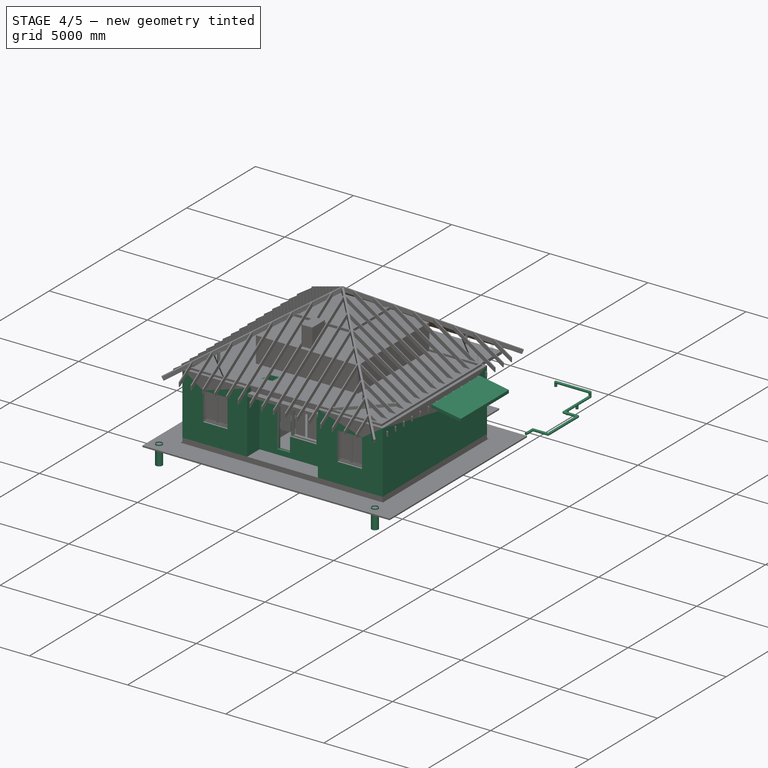
[diagram: stage 4 of 5 — iso view after this stage's code; geometry added in this stage tinted green]
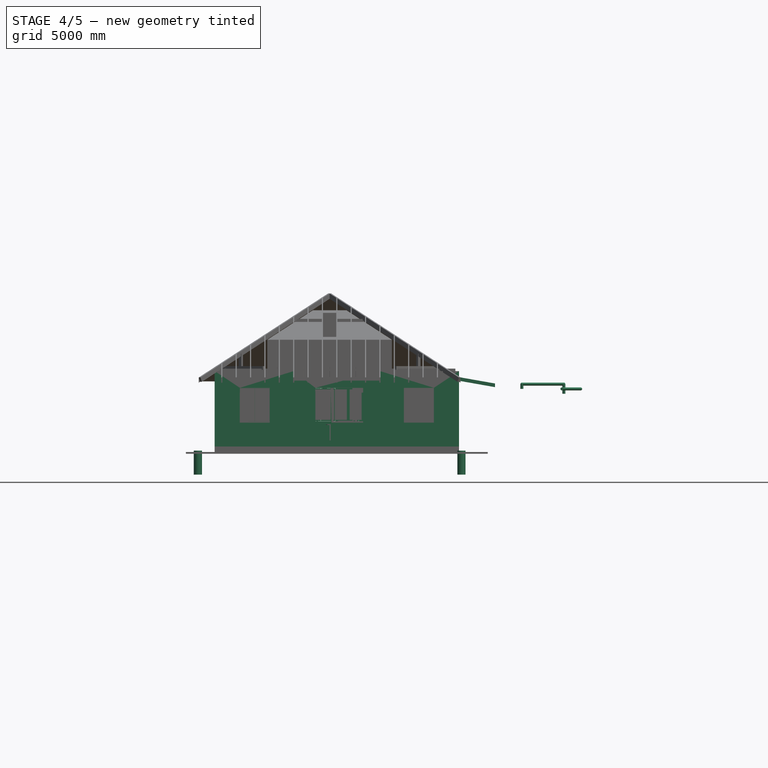
[diagram: stage 4 of 5 — front view after this stage's code; geometry added in this stage tinted green]
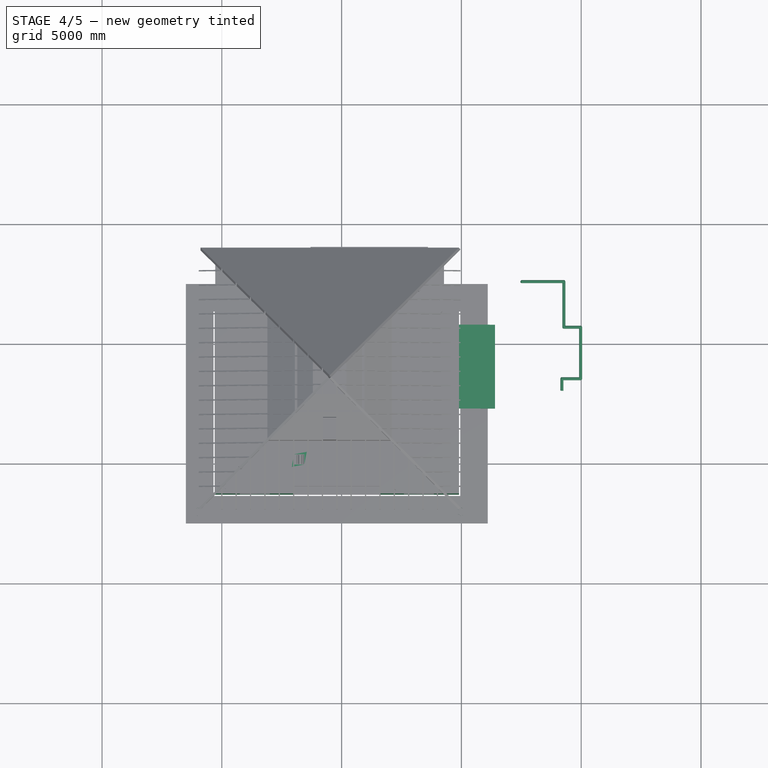
[diagram: stage 4 of 5 — top view after this stage's code; geometry added in this stage tinted green]
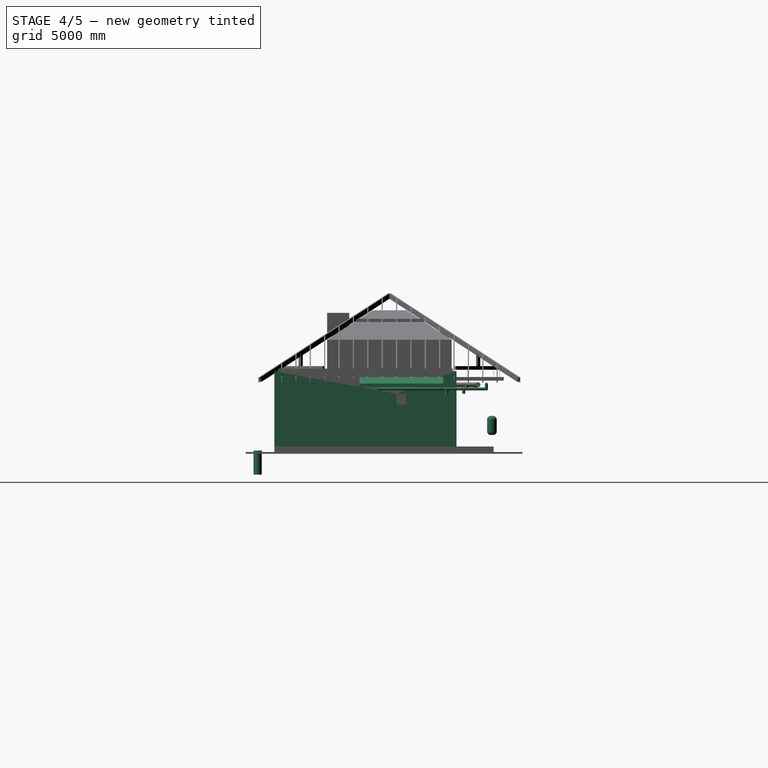
[diagram: stage 4 of 5 — right view after this stage's code; geometry added in this stage tinted green]
FEATURE [Part::Part2DObjectPython] Rectangle007  label="кровать_2_сп_005"  # Draft 2D object (typed FeaturePython)
  ChamferSize = 0
  Columns = 1
  FilletRadius = 25
  Height = 1700
  Length = 2100
  MakeFace = false
  Placement = pos=(6909.76,-3732.45,0) rot=(1,0,0;3.14159rad)
  Rows = 1
FEATURE [Part::Part2DObjectPython] Rectangle009  label="подушка_001"  # Draft 2D object (typed FeaturePython)
  ChamferSize = 0
  Columns = 1
  FilletRadius = 75
  Height = 600
  Length = 500
  MakeFace = false
  Placement = pos=(6953.89,-3947.75,0) rot=(1,0,0;3.14159rad)
  Rows = 1
FEATURE [Part::Feature] Face  label="Водогрей"
  Placement = pos=(5100,-600,1200) rot=(0,0,1;3.14159rad)
  shape: bbox 500 x 450 x 2e-07 mm, 1 faces, 0 solids (baked)
FEATURE [Part::Part2DObjectPython] Ellipse  # Draft 2D object (typed FeaturePython)
  FirstAngle = 0
  LastAngle = 0
  MajorRadius = 163.5
  MakeFace = false
  MinorRadius = 136.114
  Placement = pos=(8194.88,560.602,400) rot=(0,0,-1;1.5708rad)
FEATURE [Part::Feature] Face002
  Placement = pos=(9699.32,-1698.82,400) rot=(0,0,1;3.14159rad)
  shape: bbox 400 x 700 x 2e-07 mm, 1 faces, 0 solids (baked)
FEATURE [Part::Feature] Face001  label="умывальник"
  Placement = pos=(9600,4100,600) rot=(0,0,-1;1.5708rad)
  shape: bbox 353.2 x 600 x 2e-07 mm, 1 faces, 0 solids (baked)
FEATURE [Part::Part2DObjectPython] Ellipse001  # Draft 2D object (typed FeaturePython)
  FirstAngle = 0
  LastAngle = 0
  MajorRadius = 200.765
  MakeFace = false
  MinorRadius = 76.8815
  Placement = pos=(7776.88,-200.77,800) rot=(0,0,-1;1.5708rad)
FEATURE [Part::Extrusion] Extrude034  label="подушка_005"
  Base = -> Rectangle009
  Dir = (0,0,1)
  DirMode = 0
  FaceMakerClass = Part::FaceMakerBullseye
  LengthFwd = 150
  LengthRev = 0
  Placement = pos=(0,0,300) rot=(0,0,1;0rad)
  Solid = true
  Symmetric = false
FEATURE [Part::Extrusion] Extrude037  label="кровать_15_сп_002"
  Base = -> Rectangle007
  Dir = (0,0,1)
  DirMode = 0
  FaceMakerClass = Part::FaceMakerBullseye
  LengthFwd = 300
  LengthRev = 0
  Solid = true
  Symmetric = false
FEATURE [App::DocumentObjectGroup] Group010  label="Унитаз"
  Group = -> [Ellipse,Face002,DWire002,Fusion002]
FEATURE [Part::Part2DObjectPython] Rectangle361  label="кух.зона"  # Draft 2D object (typed FeaturePython)
  ChamferSize = 0
  Columns = 1
  FilletRadius = 0
  Height = 2600
  Length = 700
  MakeFace = false
  Placement = pos=(5450,300,0) rot=(0,0,1;1.5708rad)
  Rows = 1
FEATURE [Part::Part2DObjectPython] Rectangle362  label="проём_032"  # Draft 2D object (typed FeaturePython)
  ChamferSize = 0
  Columns = 1
  FilletRadius = 0
  Height = 150
  Length = 700
  MakeFace = true
  Placement = pos=(2850,-700,0) rot=(0,0,1;1.5708rad)
  Rows = 1
FEATURE [Part::Part2DObjectPython] Rectangle363  label="проём_033"  # Draft 2D object (typed FeaturePython)
  ChamferSize = 0
  Columns = 1
  FilletRadius = 0
  Height = 100
  Length = 700
  MakeFace = true
  Placement = pos=(400,-1500,0) rot=(0,0,-1;0rad)
  Rows = 1
FEATURE [Part::Part2DObjectPython] Rectangle364  label="проём_034"  # Draft 2D object (typed FeaturePython)
  ChamferSize = 0
  Columns = 1
  FilletRadius = 0
  Height = 1000
  Length = 100
  MakeFace = true
  Placement = pos=(5650,-400,0) rot=(0,0,-1;1.5708rad)
  Rows = 1
FEATURE [Part::Part2DObjectPython] Rectangle365  label="проём_двери_входной"  # Draft 2D object (typed FeaturePython)
  ChamferSize = 0
  Columns = 1
  FilletRadius = 0
  Height = 200
  Length = 1000
  MakeFace = true
  Placement = pos=(5650,1000,0) rot=(0,0,1;0rad)
  Rows = 1
FEATURE [Part::Part2DObjectPython] Rectangle367  label="проём_036"  # Draft 2D object (typed FeaturePython)
  ChamferSize = 0
  Columns = 1
  FilletRadius = 0
  Height = 900
  Length = 150
  MakeFace = true
  Placement = pos=(2700,-2500,0) rot=(0,0,1;0rad)
  Rows = 1
FEATURE [Part::Part2DObjectPython] Rectangle372  label="проём_058"  # Draft 2D object (typed FeaturePython)
  ChamferSize = 0
  Columns = 1
  FilletRadius = 0
  Height = 150
  Length = 700
  MakeFace = true
  Placement = pos=(6900,-1300,0) rot=(0,0,1;1.5708rad)
  Rows = 1
FEATURE [Part::Part2DObjectPython] Rectangle374  label="проём_038"  # Draft 2D object (typed FeaturePython)
  ChamferSize = 0
  Columns = 1
  FilletRadius = 0
  Height = 1360
  Length = 200
  MakeFace = true
  Placement = pos=(2055,-6200,0) rot=(0,0,1;1.5708rad)
  Rows = 1
FEATURE [Part::Part2DObjectPython] Rectangle375  label="проём_039"  # Draft 2D object (typed FeaturePython)
  ChamferSize = 0
  Columns = 1
  FilletRadius = 0
  Height = 200
  Length = 1360
  MakeFace = true
  Placement = pos=(4805,1200,0) rot=(0,0,1;3.14159rad)
  Rows = 1
FEATURE [Part::Part2DObjectPython] Rectangle377  label="проём_001"  # Draft 2D object (typed FeaturePython)
  ChamferSize = 0
  Columns = 1
  FilletRadius = 0
  Height = 200
  Length = 510
  MakeFace = true
  Placement = pos=(9600,-745,0) rot=(0,0,-1;1.5708rad)
  Rows = 1
FEATURE [Part::Part2DObjectPython] Rectangle381  label="дымоход"  # Draft 2D object (typed FeaturePython)
  ChamferSize = 0
  Columns = 1
  FilletRadius = 0
  Height = 380
  Length = 380
  MakeFace = false
  Placement = pos=(3420,-5070,0) rot=(0,0,1;1.5708rad)
  Rows = 1
FEATURE [Part::Part2DObjectPython] Wire062  label="стена_068"  # Draft 2D object (typed FeaturePython)
  ChamferSize = 0
  Closed = true
  End = (7500,1000,0)
  FilletRadius = 0
  Length = 4400
  MakeFace = true
  Placement = pos=(9075,2650,0) rot=(0,0,1;0rad)
  Points = (6) [(-1475,-1650,0),(-1475,-3150,0),(-2175,-3150,0),(-2175,-3050,0),(-1575,-3050,0),(-1575,-1650,0)]
  Start = (7600,1000,0)
  Subdivisions = 0
FEATURE [Part::Part2DObjectPython] Rectangle387  label="проём в плите под лестн. 001"  # Draft 2D object (typed FeaturePython)
  ChamferSize = 0
  Columns = 1
  FilletRadius = 0
  Height = 1400
  Length = 800
  MakeFace = false
  Placement = pos=(3300,-2700,0) rot=(0,0,1;0rad)
  Rows = 1
FEATURE [Part::FeaturePython] Structure177  label="проём в плите под лестн."  # Arch/BIM object (typed FeaturePython)
  Base = -> Rectangle387
  FaceMaker = 0
  Height = 400
  HorizontalArea = 1120000
  IfcRole = 0
  Length = 0
  MoveWithHost = false
  Nodes = (2) [(5450,5550,0),(5450,5550,500)]
  NodesOffset = 0
  Normal = (0,0,0)
  PerimeterLength = 4400
  Placement = pos=(0,0,2570) rot=(0,0,1;0rad)
  VerticalArea = 1760000
  Width = 100
FEATURE [App::GeometryPython] BuildingPart037  label="Ванна"  # Arch/BIM object (typed FeaturePython)
  Area = 0
  Group = -> [Structure179]
  Height = 0
  IfcRole = 0
  LevelOffset = 0
FEATURE [Part::Part2DObjectPython] Rectangle403  label="кровать_2сп_002"  # Draft 2D object (typed FeaturePython)
  ChamferSize = 0
  Columns = 1
  FilletRadius = 25
  Height = 1700
  Length = 2100
  MakeFace = false
  Placement = pos=(12.2049,-2659.86,0) rot=(1,0,0;3.14159rad)
  Rows = 1
FEATURE [Part::Part2DObjectPython] Rectangle404  label="подушка_007"  # Draft 2D object (typed FeaturePython)
  ChamferSize = 0
  Columns = 1
  FilletRadius = 75
  Height = 700
  Length = 500
  MakeFace = false
  Placement = pos=(95.699,-3559.86,0) rot=(1,0,0;3.14159rad)
  Rows = 1
FEATURE [Part::Part2DObjectPython] Rectangle405  label="подушка_008"  # Draft 2D object (typed FeaturePython)
  ChamferSize = 0
  Columns = 1
  FilletRadius = 75
  Height = 700
  Length = 500
  MakeFace = false
  Placement = pos=(95.699,-2759.86,0) rot=(1,0,0;3.14159rad)
  Rows = 1
FEATURE [Part::Extrusion] Extrude051  label="подушка_009"
  Base = -> Rectangle404
  Dir = (0,0,1)
  DirMode = 0
  FaceMakerClass = Part::FaceMakerBullseye
  LengthFwd = 150
  LengthRev = 0
  Placement = pos=(0,0,300) rot=(0,0,1;0rad)
  Solid = true
  Symmetric = false
FEATURE [Part::Extrusion] Extrude052  label="подушка_010"
  Base = -> Rectangle405
  Dir = (0,0,1)
  DirMode = 0
  FaceMakerClass = Part::FaceMakerBullseye
  LengthFwd = 150
  LengthRev = 0
  Placement = pos=(0,0,300) rot=(0,0,1;0rad)
  Solid = true
  Symmetric = false
FEATURE [Part::Extrusion] Extrude053  label="кровать_2_сп_003"
  Base = -> Rectangle403
  Dir = (0,0,1)
  DirMode = 0
  FaceMakerClass = Part::FaceMakerBullseye
  LengthFwd = 300
  LengthRev = 0
  Solid = true
  Symmetric = false
FEATURE [Part::FeaturePython] Structure188  label="дверь_входная"  # Arch/BIM object (typed FeaturePython)
  Base = -> Rectangle365
  FaceMaker = 0
  Height = 2400
  HorizontalArea = 200000
  IfcRole = 0
  Length = 0
  MoveWithHost = false
  Nodes = (2) [(-4225,7937.5,0),(-4225,7937.5,2250)]
  NodesOffset = 0
  Normal = (0,0,0)
  PerimeterLength = 2400
  Placement = pos=(0,0,-80) rot=(0,0,1;0rad)
  VerticalArea = 5.76e+06
  Width = 100
FEATURE [Part::FeaturePython] Structure192  label="окно_бол_001"  # Arch/BIM object (typed FeaturePython)
  Base = -> Rectangle374
  FaceMaker = 0
  Height = 1500
  HorizontalArea = 272000
  IfcRole = 0
  Length = 0
  MoveWithHost = false
  Nodes = (2) [(1187.5,6500,0),(1187.5,6500,1500)]
  NodesOffset = 0
  Normal = (0,0,0)
  PerimeterLength = 3120
  Placement = pos=(0,0,820) rot=(0,0,1;0rad)
  VerticalArea = 4680000
  Width = 100
FEATURE [Part::FeaturePython] Structure193  label="окно_бол_016"  # Arch/BIM object (typed FeaturePython)
  Base = -> Rectangle375
  FaceMaker = 0
  Height = 1500
  HorizontalArea = 272000
  IfcRole = 0
  Length = 0
  MoveWithHost = false
  Nodes = (2) [(-2125,-187.5,0),(-2125,-187.5,1500)]
  NodesOffset = 0
  Normal = (0,0,0)
  PerimeterLength = 3120
  Placement = pos=(0,0,820) rot=(0,0,1;0rad)
  VerticalArea = 4680000
  Width = 100
FEATURE [Part::FeaturePython] Structure194  label="окно_бол_015"  # Arch/BIM object (typed FeaturePython)
  Base = -> Rectangle395
  FaceMaker = 0
  Height = 500
  HorizontalArea = 102000
  IfcRole = 0
  Length = 0
  MoveWithHost = false
  Nodes = (2) [(7937.5,-2125,0),(7937.5,-2125,1500)]
  NodesOffset = 0
  Normal = (0,0,0)
  PerimeterLength = 1420
  Placement = pos=(0,0,1570) rot=(0,0,1;0rad)
  VerticalArea = 710000
  Width = 100
FEATURE [Part::FeaturePython] Structure195  label="окно_мал_001"  # Arch/BIM object (typed FeaturePython)
  Base = -> Rectangle377
  FaceMaker = 0
  Height = 500
  HorizontalArea = 102000
  IfcRole = 0
  Length = 0
  MoveWithHost = false
  Nodes = (2) [(-187.5,2950,0),(-187.5,2950,500)]
  NodesOffset = 0
  Normal = (0,0,0)
  PerimeterLength = 1420
  Placement = pos=(0,0,1570) rot=(0,0,1;0rad)
  VerticalArea = 710000
  Width = 100
FEATURE [Part::Part2DObjectPython] Rectangle541  label="проём_055"  # Draft 2D object (typed FeaturePython)
  ChamferSize = 0
  Columns = 1
  FilletRadius = 0
  Height = 1000
  Length = 150
  MakeFace = true
  Placement = pos=(6750,-200,0) rot=(0,0,-1;0rad)
  Rows = 1
FEATURE [App::FeaturePython] Dimension026  # Draft dimension (typed FeaturePython)
  Diameter = false
  Dimline = (7200,1900,0)
  Direction = (0,0,0)
  Distance = 2850
  End = (7750,3300,0)
  Normal = (0,0,1)
  Start = (4900,3300,0)
FEATURE [Part::Box] Box3082  label="ТВ 55" 001"
  AttacherType = Attacher::AttachEngine3D
  Height = 750
  Length = 1250
  Placement = pos=(2699.92,-4134.86,520) rot=(0,0,1;1.5708rad)
  Width = 90
FEATURE [Part::Box] Box3095  label="тумбочка 001"
  AttacherType = Attacher::AttachEngine3D
  Height = 650
  Length = 400
  Placement = pos=(459.922,-4779.23,0) rot=(0,0,1;1.5708rad)
  Width = 450
FEATURE [Part::Box] Box3096  label="тумбочка 002"
  AttacherType = Attacher::AttachEngine3D
  Height = 650
  Length = 400
  Placement = pos=(462.205,-2627.52,0) rot=(0,0,1;1.5708rad)
  Width = 450
FEATURE [Part::Box] Box3097  label="тумбочка 003"
  AttacherType = Attacher::AttachEngine3D
  Height = 650
  Length = 400
  Placement = pos=(7309.76,-5443.31,0) rot=(0,0,1;3.14159rad)
  Width = 450
FEATURE [Part::Part2DObjectPython] Rectangle542  label="подушка_011"  # Draft 2D object (typed FeaturePython)
  ChamferSize = 0
  Columns = 1
  FilletRadius = 75
  Height = 600
  Length = 500
  MakeFace = false
  Placement = pos=(6945.75,-4676.72,0) rot=(1,0,0;3.14159rad)
  Rows = 1
FEATURE [Part::Extrusion] Extrude054  label="подушка_012"
  Base = -> Rectangle542
  Dir = (0,0,1)
  DirMode = 0
  FaceMakerClass = Part::FaceMakerBullseye
  LengthFwd = 150
  LengthRev = 0
  Placement = pos=(0,0,300) rot=(0,0,1;0rad)
  Solid = true
  Symmetric = false
FEATURE [Part::Part2DObjectPython] Rectangle547  # Draft 2D object (typed FeaturePython)
  ChamferSize = 0
  Columns = 1
  FilletRadius = 0
  Height = 950
  Length = 250
  MakeFace = false
  Placement = pos=(6750,-3400,0) rot=(0,0,1;1.5708rad)
  Rows = 1
FEATURE [Part::FeaturePython] Structure278  label="Structure021"  # Arch/BIM object (typed FeaturePython)
  Base = -> Rectangle547
  FaceMaker = 0
  Height = 200
  HorizontalArea = 237500
  IfcRole = 0
  Length = 0
  MoveWithHost = false
  Nodes = (2) [(156.577,7240.7,0),(156.577,7240.7,200)]
  NodesOffset = 0
  Normal = (0,0,0)
  PerimeterLength = 2400
  Placement = pos=(0,0,400) rot=(0,0,1;0rad)
  VerticalArea = 480000
  Width = 100
FEATURE [Part::Part2DObjectPython] Rectangle554  label="мойка"  # Draft 2D object (typed FeaturePython)
  ChamferSize = 0
  Columns = 1
  FilletRadius = 150
  Height = 500
  Length = 600
  MakeFace = false
  Placement = pos=(4400,900,901) rot=(0,0,1;3.14159rad)
  Rows = 1
FEATURE [Part::Part2DObjectPython] Circle010  # Draft 2D object (typed FeaturePython)
  FirstAngle = 0
  LastAngle = 0
  MakeFace = false
  Placement = pos=(3100,500,901) rot=(0,0,1;0rad)
  Radius = 100
FEATURE [Part::FeaturePython] Array021  label="плита"  # Draft array (typed FeaturePython)
  Angle = 360
  ArrayType = 0
  Axis = (0,0,1)
  Base = -> Circle010
  Center = (0,0,0)
  Fuse = false
  IntervalAxis = (0,0,0)
  IntervalX = (300,0,0)
  IntervalY = (0,300,0)
  IntervalZ = (0,0,1)
  NumberPolar = 1
  NumberX = 2
  NumberY = 2
  NumberZ = 1
FEATURE [Part::Part2DObjectPython] Rectangle555  label="вытяжка осн бол"  # Draft 2D object (typed FeaturePython)
  ChamferSize = 0
  Columns = 1
  FilletRadius = 0
  Height = 700
  Length = 700
  MakeFace = false
  Placement = pos=(3550,300,1700) rot=(0,0,1;1.5708rad)
  Rows = 1
FEATURE [Part::Part2DObjectPython] Rectangle556  label="вытяжка осн мал"  # Draft 2D object (typed FeaturePython)
  ChamferSize = 0
  Columns = 1
  FilletRadius = 0
  Height = 200
  Length = 200
  MakeFace = false
  Placement = pos=(3050,800,2300) rot=(0,0,1;1.5708rad)
  Rows = 1
FEATURE [Part::Loft] Loft  label="вытяжка"
  Closed = false
  MaxDegree = 5
  Ruled = false
  Sections = -> [Rectangle555,Rectangle556]
  Solid = true
FEATURE [Part::Part2DObjectPython] Rectangle563  label="проём_056"  # Draft 2D object (typed FeaturePython)
  ChamferSize = 0
  Columns = 1
  FilletRadius = 0
  Height = 150
  Length = 700
  MakeFace = true
  Placement = pos=(2850,-5100,0) rot=(0,0,1;1.5708rad)
  Rows = 1
FEATURE [Part::Box] Box3116  label="шкаф 005"
  AttacherType = Attacher::AttachEngine3D
  Height = 2400
  Length = 1400
  Placement = pos=(1300,-1500,0) rot=(0,0,1;0rad)
  Width = 600
FEATURE [Part::Box] Box3117  label="шкаф008"
  AttacherType = Attacher::AttachEngine3D
  Height = 2400
  Length = 1400
  Placement = pos=(6900,1000,0) rot=(0,0,-1;1.5708rad)
  Width = 600
FEATURE [Part::Part2DObjectPython] Rectangle586  label="проём_057"  # Draft 2D object (typed FeaturePython)
  ChamferSize = 0
  Columns = 1
  FilletRadius = 0
  Height = 900
  Length = 150
  MakeFace = true
  Placement = pos=(6750,-3100,0) rot=(0,0,1;0rad)
  Rows = 1
FEATURE [Part::Box] Box3118  label="сиденье003"
  AttacherType = Attacher::AttachEngine3D
  Height = 50
  Length = 520
  Placement = pos=(5030,-2300,400) rot=(0,0,1;0rad)
  Width = 480
FEATURE [Part::Box] Box3119  label="ножка025"
  AttacherType = Attacher::AttachEngine3D
  Height = 400
  Length = 40
  Placement = pos=(5510,-1860,0) rot=(0,0,1;0rad)
  Width = 40
FEATURE [Part::Box] Box3120  label="ножка026"
  AttacherType = Attacher::AttachEngine3D
  Height = 400
  Length = 40
  Placement = pos=(5029.98,-2300,0) rot=(0,0,1;0rad)
  Width = 40
FEATURE [Part::Box] Box3121  label="ножка027"
  AttacherType = Attacher::AttachEngine3D
  Height = 400
  Length = 40
  Placement = pos=(5510,-2300,0) rot=(0,0,1;0rad)
  Width = 40
FEATURE [Part::Box] Box3122  label="ножка028"
  AttacherType = Attacher::AttachEngine3D
  Height = 400
  Length = 40
  Placement = pos=(5030,-1860,0) rot=(0,0,1;0rad)
  Width = 40
FEATURE [Part::Box] Box3123  label="спинка003"
  AttacherType = Attacher::AttachEngine3D
  Height = 510
  Length = 50
  Placement = pos=(5500,-2300,400) rot=(0,0,1;0rad)
  Width = 480
FEATURE [Part::MultiFuse] Fusion008  label="стул003"
  Shapes = -> [Box3120,Box3121,Box3119,Box3118,Box3122,Box3123]
FEATURE [Part::Box] Box3124  label="сиденье004"
  AttacherType = Attacher::AttachEngine3D
  Height = 50
  Length = 520
  Placement = pos=(4470,-1800,400) rot=(0,0,1;3.14159rad)
  Width = 480
FEATURE [Part::Box] Box3125  label="ножка029"
  AttacherType = Attacher::AttachEngine3D
  Height = 400
  Length = 40
  Placement = pos=(3990,-2240,0) rot=(0,0,1;3.14159rad)
  Width = 40
FEATURE [Part::Box] Box3126  label="ножка030"
  AttacherType = Attacher::AttachEngine3D
  Height = 400
  Length = 40
  Placement = pos=(4470.02,-1800,0) rot=(0,0,1;3.14159rad)
  Width = 40
FEATURE [Part::Box] Box3127  label="ножка031"
  AttacherType = Attacher::AttachEngine3D
  Height = 400
  Length = 40
  Placement = pos=(3990,-1800,0) rot=(0,0,1;3.14159rad)
  Width = 40
FEATURE [Part::Box] Box3128  label="ножка032"
  AttacherType = Attacher::AttachEngine3D
  Height = 400
  Length = 40
  Placement = pos=(4470,-2240,0) rot=(0,0,1;3.14159rad)
  Width = 40
FEATURE [Part::Box] Box3129  label="спинка004"
  AttacherType = Attacher::AttachEngine3D
  Height = 510
  Length = 50
  Placement = pos=(4000,-1800,400) rot=(0,0,1;3.14159rad)
  Width = 480
FEATURE [Part::MultiFuse] Fusion009  label="стул004"
  Shapes = -> [Box3126,Box3127,Box3125,Box3124,Box3128,Box3129]
FEATURE [Part::Box] Box3132  label="ножка033"
  AttacherType = Attacher::AttachEngine3D
  Height = 720
  Length = 40
  Placement = pos=(720.52,-5989.62,0) rot=(0,0,1;1.5708rad)
  Width = 40
FEATURE [Part::Box] Box3133  label="ножка034"
  AttacherType = Attacher::AttachEngine3D
  Height = 720
  Length = 40
  Placement = pos=(720.52,-5379.62,0) rot=(0,0,1;1.5708rad)
  Width = 40
FEATURE [Part::Box] Box3134  label="ножка035"
  AttacherType = Attacher::AttachEngine3D
  Height = 720
  Length = 40
  Placement = pos=(2080.52,-5379.62,0) rot=(0,0,1;1.5708rad)
  Width = 40
FEATURE [Part::Box] Box3135  label="ножка036"
  AttacherType = Attacher::AttachEngine3D
  Height = 720
  Length = 40
  Placement = pos=(2080.52,-5989.63,0) rot=(0,0,1;1.5708rad)
  Width = 40
FEATURE [Part::Box] Box3136  label="столешница005"
  AttacherType = Attacher::AttachEngine3D
  Height = 30
  Length = 650
  Placement = pos=(2080.52,-5989.62,720) rot=(0,0,1;1.5708rad)
  Width = 1400
FEATURE [Part::MultiFuse] Fusion010
  Shapes = -> [Box3135,Box3132,Box3133,Box3134,Box3136]
FEATURE [Part::FeaturePython] Equipment010  label="стол письменный 004"  # Arch/BIM object (typed FeaturePython)
  Base = -> Fusion010
  EquipmentPower = 0
  HorizontalArea = 0
  IfcRole = 79
  MoveWithHost = false
  PerimeterLength = 0
  VerticalArea = 0
FEATURE [App::DocumentObjectGroup] ____________  label="спальня  побольше"
  Group = -> [Group038,Box3082,Box3095,Box3096,Box3116,Equipment010]
FEATURE [Part::Part2DObjectPython] Line553  label="подающий воздуховод 047"  # Draft 2D object (typed FeaturePython)
  ChamferSize = 0
  Closed = false
  End = (5600,1700,1.6769e-12)
  FilletRadius = 0
  Length = 200
  MakeFace = true
  Placement = pos=(5600,1700,50) rot=(0.57735,-0.57735,0.57735;4.18879rad)
  Points = (2) [(0,250,0),(0,50,0)]
  Start = (5600,1700,-200)
  Subdivisions = 0
FEATURE [Part::FeaturePython] Pipe051  label="подающий воздуховод 048"  # Arch/BIM object (typed FeaturePython)
  Base = -> Line553
  Diameter = 200
  HorizontalArea = 0
  IfcRole = 98
  Length = 200
  MoveWithHost = false
  OffsetEnd = 0
  OffsetStart = 0
  PerimeterLength = 0
  Placement = pos=(0,0,2400) rot=(0,0,1;0rad)
  VerticalArea = 0
FEATURE [Part::Part2DObjectPython] Line554  label="подающий воздуховод 049"  # Draft 2D object (typed FeaturePython)
  ChamferSize = 0
  Closed = false
  End = (7400,-1200,0)
  FilletRadius = 0
  Length = 200
  MakeFace = true
  Placement = pos=(24475,-600,0) rot=(0,0,1;0rad)
  Points = (2) [(-17075,-800,0),(-17075,-600,0)]
  Start = (7400,-1400,0)
  Subdivisions = 0
FEATURE [Part::FeaturePython] Pipe052  label="подающий воздуховод 050"  # Arch/BIM object (typed FeaturePython)
  Base = -> Line554
  Diameter = 200
  HorizontalArea = 0
  IfcRole = 98
  Length = 200
  MoveWithHost = false
  OffsetEnd = 0
  OffsetStart = 0
  PerimeterLength = 0
  Placement = pos=(0,0,2400) rot=(0,0,1;0rad)
  VerticalArea = 0
FEATURE [Part::Part2DObjectPython] Line555  label="подающий воздуховод 051"  # Draft 2D object (typed FeaturePython)
  ChamferSize = 0
  Closed = false
  End = (4300,2100,-200)
  FilletRadius = 0
  Length = 200
  MakeFace = true
  Placement = pos=(4300,2100,0) rot=(0,0,1;1.5708rad)
  Points = (2) [(0,0,0),(0,0,-200)]
  Start = (4300,2100,0)
  Subdivisions = 0
FEATURE [Part::FeaturePython] Pipe053  label="подающий воздуховод 052"  # Arch/BIM object (typed FeaturePython)
  Base = -> Line555
  Diameter = 200
  HorizontalArea = 0
  IfcRole = 98
  Length = 200
  MoveWithHost = false
  OffsetEnd = 0
  OffsetStart = 0
  PerimeterLength = 0
  Placement = pos=(0,0,2400) rot=(0,0,1;0rad)
  VerticalArea = 0
FEATURE [Part::Part2DObjectPython] Wire171  label="вытяжная вентиляция 006"  # Draft 2D object (typed FeaturePython)
  ChamferSize = 0
  Closed = false
  End = (12525,2550,-200)
  FilletRadius = 0
  Length = 8179.99
  MakeFace = true
  Placement = pos=(14575,-1750,-200) rot=(0,0,1;1.5708rad)
  Points = (9) [(-249.995,380.006,0),(249.997,380.001,0),(250,-400,0),(2400,-400,0),(2400,300,0),(4300,300,0),(4300,300,200),(4300,2050,200),(4300,2050,0)]
  Start = (14195,-2000,-200)
  Subdivisions = 0
FEATURE [Part::FeaturePython] Pipe054  label="вытяжная вентиляция 007"  # Arch/BIM object (typed FeaturePython)
  Base = -> Wire171
  Diameter = 125
  HorizontalArea = 0
  IfcRole = 98
  Length = 8179.99
  MoveWithHost = false
  OffsetEnd = 0
  OffsetStart = 0
  PerimeterLength = 0
  Placement = pos=(0,0,2425) rot=(0,0,1;0rad)
  VerticalArea = 0
FEATURE [Part::Part2DObjectPython] Wire172  label="крыша_крыльца_001"  # Draft 2D object (typed FeaturePython)
  ChamferSize = 0
  Closed = true
  End = (9400,-2750,2300)
  FilletRadius = 0
  Length = 11000
  MakeFace = false
  Placement = pos=(11400,-2750,2300) rot=(0,0,1;1.5708rad)
  Points = (4) [(0,0,0),(3500,9.09495e-13,0),(3500,2000,0),(-9.09495e-13,2000,0)]
  Start = (11400,-2750,2300)
  Subdivisions = 0
FEATURE [Part::FeaturePython] Roof  label="крыша_крыльца_002"  # Arch/BIM object (typed FeaturePython)
  Angles = [10,90,90,90]
  Base = -> Wire172
  BorderLength = 11061.7
  Face = 0
  Flip = false
  Heights = [352.654,352.654,352.654,352.654]
  HorizontalArea = 7e+06
  IdRel = [0,0,0,0]
  IfcRole = 111
  MoveWithHost = false
  Overhang = [0,0,0,0]
  PerimeterLength = 11000
  RidgeLength = 0
  Runs = [2000,500,0,500]
  Thickness = [150,50,50,50]
  VerticalArea = 1.67545e+06
FEATURE [App::GeometryPython] BuildingPart046  label="крыльцо"  # Arch/BIM object (typed FeaturePython)
  Area = 0
  Group = -> [Structure243,Structure245,Structure244,Roof]
  Height = 0
  IfcRole = 0
  LevelOffset = 0
FEATURE [Part::Part2DObjectPython] Line560  label="вытяжная вентиляция 009"  # Draft 2D object (typed FeaturePython)
  ChamferSize = 0
  Closed = false
  End = (14275,1600,-200)
  FilletRadius = 0
  Length = 200
  MakeFace = true
  Placement = pos=(14275,1600,-150) rot=(0.57735,-0.57735,0.57735;4.18879rad)
  Points = (2) [(0,250,0),(0,50,0)]
  Start = (14275,1600,-400)
  Subdivisions = 0
FEATURE [Part::FeaturePython] Pipe055  label="вытяжная вентиляция 008"  # Arch/BIM object (typed FeaturePython)
  Base = -> Line560
  Diameter = 125
  HorizontalArea = 0
  IfcRole = 98
  Length = 200
  MoveWithHost = false
  OffsetEnd = 0
  OffsetStart = 0
  PerimeterLength = 0
  Placement = pos=(0,0,2425) rot=(0,0,1;0rad)
  VerticalArea = 0
FEATURE [Part::Part2DObjectPython] Line561  label="вытяжная вентиляция 011"  # Draft 2D object (typed FeaturePython)
  ChamferSize = 0
  Closed = false
  End = (14275,900,-200)
  FilletRadius = 0
  Length = 200
  MakeFace = true
  Placement = pos=(14275,900,-150) rot=(0.57735,-0.57735,0.57735;4.18879rad)
  Points = (2) [(0,250,0),(0,50,0)]
  Start = (14275,900,-400)
  Subdivisions = 0
FEATURE [Part::FeaturePython] Pipe056  label="вытяжная вентиляция 010"  # Arch/BIM object (typed FeaturePython)
  Base = -> Line561
  Diameter = 125
  HorizontalArea = 0
  IfcRole = 98
  Length = 200
  MoveWithHost = false
  OffsetEnd = 0
  OffsetStart = 0
  PerimeterLength = 0
  Placement = pos=(0,0,2425) rot=(0,0,1;0rad)
  VerticalArea = 0
FEATURE [Part::Part2DObjectPython] Circle011  # Draft 2D object (typed FeaturePython)
  FirstAngle = 0
  LastAngle = 0
  MakeFace = false
  Placement = pos=(-1000,-7000,0) rot=(0,0,1;0rad)
  Radius = 170
FEATURE [Part::Part2DObjectPython] Circle012  # Draft 2D object (typed FeaturePython)
  FirstAngle = 0
  LastAngle = 0
  MakeFace = false
  Placement = pos=(-1000,-7000,0) rot=(0,0,1;0rad)
  Radius = 150
FEATURE [Part::FeaturePython] Structure288  label="Structure023"  # Arch/BIM object (typed FeaturePython)
  Base = -> Circle012
  FaceMaker = 0
  Height = 1500
  HorizontalArea = 70685.8
  IfcRole = 0
  Length = 0
  MoveWithHost = false
  Nodes = (2) [(-1000,-7000,0),(-1000,-7000,-1500)]
  NodesOffset = 0
  Normal = (0,0,-1)
  PerimeterLength = 942.478
  VerticalArea = 1.41372e+06
  Width = 100
FEATURE [Part::FeaturePython] Structure287  label="Structure022"  # Arch/BIM object (typed FeaturePython)
  Base = -> Circle011
  FaceMaker = 0
  Height = 1000
  HorizontalArea = 20106.2
  IfcRole = 0
  Length = 0
  MoveWithHost = false
  Nodes = (2) [(-1000,-7000,0),(-1000,-7000,-1000)]
  NodesOffset = 0
  Normal = (0,0,-1)
  PerimeterLength = 1068.14
  Placement = pos=(0,0,-350) rot=(0,0,1;0rad)
  Subtractions = -> [Structure288]
  VerticalArea = 2.01062e+06
  Width = 100
FEATURE [Part::FeaturePython] Structure289  label="Structure024"  # Arch/BIM object (typed FeaturePython)
  Base = -> Circle011
  FaceMaker = 0
  Height = 30
  HorizontalArea = 90792
  IfcRole = 0
  Length = 0
  MoveWithHost = false
  Nodes = (2) [(-1000,-7000,0),(-1000,-7000,30)]
  NodesOffset = 0
  Normal = (0,0,0)
  PerimeterLength = 1068.14
  Placement = pos=(0,0,-1350) rot=(0,0,1;0rad)
  VerticalArea = 32044.2
  Width = 100
FEATURE [App::GeometryPython] BuildingPart066  label="дренажный колодец D340 h1000 003"  # Arch/BIM object (typed FeaturePython)
  Area = 0
  Group = -> [Structure287,Structure289]
  Height = 0
  IfcRole = 0
  LevelOffset = 0
  Placement = pos=(0,50,1) rot=(0,0,1;0rad)
FEATURE [Part::Part2DObjectPython] Circle013  # Draft 2D object (typed FeaturePython)
  FirstAngle = 0
  LastAngle = 0
  MakeFace = false
  Placement = pos=(10000,-7000,0) rot=(0,0,1;0rad)
  Radius = 170
FEATURE [Part::Part2DObjectPython] Circle014  # Draft 2D object (typed FeaturePython)
  FirstAngle = 0
  LastAngle = 0
  MakeFace = false
  Placement = pos=(10000,-7000,0) rot=(0,0,1;0rad)
  Radius = 150
FEATURE [Part::FeaturePython] Structure291  label="Structure026"  # Arch/BIM object (typed FeaturePython)
  Base = -> Circle014
  FaceMaker = 0
  Height = 1500
  HorizontalArea = 70685.8
  IfcRole = 0
  Length = 0
  MoveWithHost = false
  Nodes = (2) [(10000,-7000,0),(10000,-7000,-1500)]
  NodesOffset = 0
  Normal = (0,0,-1)
  PerimeterLength = 942.478
  VerticalArea = 1.41372e+06
  Width = 100
FEATURE [Part::FeaturePython] Structure290  label="Structure025"  # Arch/BIM object (typed FeaturePython)
  Base = -> Circle013
  FaceMaker = 0
  Height = 1000
  HorizontalArea = 20106.2
  IfcRole = 0
  Length = 0
  MoveWithHost = false
  Nodes = (2) [(10000,-7000,0),(10000,-7000,-1000)]
  NodesOffset = 0
  Normal = (0,0,-1)
  PerimeterLength = 1068.14
  Placement = pos=(0,0,-350) rot=(0,0,1;0rad)
  Subtractions = -> [Structure291]
  VerticalArea = 2.01062e+06
  Width = 100
FEATURE [Part::FeaturePython] Structure292  label="Structure027"  # Arch/BIM object (typed FeaturePython)
  Base = -> Circle013
  FaceMaker = 0
  Height = 30
  HorizontalArea = 90792
  IfcRole = 0
  Length = 0
  MoveWithHost = false
  Nodes = (2) [(10000,-7000,0),(10000,-7000,30)]
  NodesOffset = 0
  Normal = (0,0,0)
  PerimeterLength = 1068.14
  Placement = pos=(0,0,-1350) rot=(0,0,1;0rad)
  VerticalArea = 32044.2
  Width = 100
FEATURE [App::GeometryPython] BuildingPart067  label="дренажный колодец D340 h1000 004"  # Arch/BIM object (typed FeaturePython)
  Area = 0
  Group = -> [Structure290,Structure292]
  Height = 0
  IfcRole = 0
  LevelOffset = 0
  Placement = pos=(0,50,1) rot=(0,0,1;0rad)
FEATURE [App::GeometryPython] BuildingPart058  label="Дренаж"  # Arch/BIM object (typed FeaturePython)
  Area = 0
  Group = -> [BuildingPart057,BuildingPart059,Pipe046,Pipe047,BuildingPart066,BuildingPart067]
  Height = 0
  IfcRole = 0
  LevelOffset = 0
  Placement = pos=(0,50,0) rot=(0,0,1;0rad)
FEATURE [Part::Box] Box3142  label="микроволновка"
  AttacherType = Attacher::AttachEngine3D
  Height = 300
  Length = 500
  Placement = pos=(4950,650,1175) rot=(0,0,1;0rad)
  Width = 350
FEATURE [App::GeometryPython] BuildingPart034  label="печь в сборе"  # Arch/BIM object (typed FeaturePython)
  Area = 0
  Group = -> [Structure173,Structure171,Wall]
  Height = 0
  IfcRole = 0
  LevelOffset = 0
FEATURE [Part::Part2DObjectPython] Rectangle605  label="проём_двери_на_террасу"  # Draft 2D object (typed FeaturePython)
  ChamferSize = 0
  Columns = 1
  FilletRadius = 0
  Height = 760
  Length = 200
  MakeFace = true
  Placement = pos=(4605,-5300,0) rot=(0,0,1;1.5708rad)
  Rows = 1
FEATURE [Part::Part2DObjectPython] Rectangle606  label="стена под окном на террасу"  # Draft 2D object (typed FeaturePython)
  ChamferSize = 0
  Columns = 1
  FilletRadius = 0
  Height = 2110
  Length = 200
  MakeFace = true
  Placement = pos=(5955,-5300,0) rot=(0,0,1;1.5708rad)
  Rows = 1
FEATURE [Part::FeaturePython] Structure196  label="окно_на_террасу"  # Arch/BIM object (typed FeaturePython)
  Base = -> Rectangle606
  FaceMaker = 0
  Height = 1500
  HorizontalArea = 422000
  IfcRole = 0
  Length = 0
  MoveWithHost = false
  Nodes = (2) [(5700,7937.5,0),(5700,7937.5,1500)]
  NodesOffset = 0
  Normal = (0,0,0)
  PerimeterLength = 4620
  Placement = pos=(0,0,820) rot=(0,0,1;0rad)
  VerticalArea = 6.93e+06
  Width = 100
FEATURE [Part::FeaturePython] Structure293  label="дверь_на_террасу"  # Arch/BIM object (typed FeaturePython)
  Base = -> Rectangle605
  FaceMaker = 0
  Height = 900
  HorizontalArea = 152000
  IfcRole = 0
  Length = 0
  MoveWithHost = false
  Nodes = (2) [(6562.5,7937.5,0),(6562.5,7937.5,2500)]
  NodesOffset = 0
  Normal = (0,0,0)
  PerimeterLength = 1920
  Placement = pos=(0,0,-80) rot=(0,0,1;0rad)
  VerticalArea = 1728000
  Width = 100
FEATURE [Part::FeaturePython] Wall078  label="теплоизол. трубы ГБ 150мм"  # Arch/BIM object (typed FeaturePython)
  Align = 0
  Base = -> Rectangle381
  BlockHeight = 0
  BlockLength = 0
  CountBroken = 0
  CountEntire = 0
  Face = 0
  Height = 250
  HorizontalArea = 212000
  IfcRole = 156
  Joint = 0
  Length = 1520
  MakeBlocks = false
  MoveWithHost = false
  Normal = (0,0,1)
  Offset = 25
  OffsetFirst = 0
  OffsetSecond = 0
  PerimeterLength = 2520
  Placement = pos=(0,0,2720) rot=(0,0,1;0rad)
  VerticalArea = 1060000
  Width = 100
FEATURE [Part::Part2DObjectPython] Line568  label="лестница line"  # Draft 2D object (typed FeaturePython)
  ChamferSize = 0
  Closed = false
  End = (3300,-2700,2720)
  FilletRadius = 0
  Length = 3406.01
  MakeFace = false
  Placement = pos=(3300,-350,0) rot=(0,0,1;3.14159rad)
  Points = (2) [(0,300,0),(0,2350,2720)]
  Start = (3300,-650,0)
  Subdivisions = 0
FEATURE [Part::Part2DObjectPython] Wire173  label="фановая d110 002"  # Draft 2D object (typed FeaturePython)
  ChamferSize = 100
  Closed = false
  End = (-7882,-682,4881.81)
  FilletRadius = 0
  Length = 7672.6
  MakeFace = false
  Placement = pos=(-5282,-732,-320) rot=(0,0,1;0rad)
  Points = (4) [(0,0,0),(0,9.09495e-13,201.806),(-2600,50,251.806),(-2600,50,5201.81)]
  Start = (-5282,-732,-320)
  Subdivisions = 0
FEATURE [Part::Part2DObjectPython] Wire174  label="фановая d110 004"  # Draft 2D object (typed FeaturePython)
  ChamferSize = 0
  Closed = false
  End = (-7482,-982,150)
  FilletRadius = 0
  Length = 636.897
  MakeFace = false
  Placement = pos=(-7391.04,-691.419,-77.613) rot=(0,0,1;0rad)
  Points = (6) [(0,0,0),(-99.96,1.9,1.9),(-190.957,-90.5808,27.613),(-190.957,-190.581,52.613),(-190.957,-290.581,227.613),(-90.9573,-290.581,227.613)]
  Start = (-7391.04,-691.419,-77.613)
  Subdivisions = 0
FEATURE [Part::Part2DObjectPython] Wire175  label="фановая d50 002"  # Draft 2D object (typed FeaturePython)
  ChamferSize = 0
  Closed = false
  End = (-5200,2200,568.731)
  FilletRadius = 0
  Length = 3485.64
  MakeFace = false
  Placement = pos=(-5200,-650,18.731) rot=(0,0,1;0rad)
  Points = (4) [(-82,-82,-115.966),(-30,-30,-42.4264),(0,2850,50),(0,2850,550)]
  Start = (-5282,-732,-97.2345)
  Subdivisions = 0
FEATURE [Part::Part2DObjectPython] Wire176  label="фановая d50 006"  # Draft 2D object (typed FeaturePython)
  ChamferSize = 0
  Closed = false
  End = (-7112.62,-2542.38,560)
  FilletRadius = 0
  Length = 2180.88
  MakeFace = false
  Placement = pos=(-5375.31,-825.314,0) rot=(0,0,1;0rad)
  Points = (4) [(-56.6863,-1717.06,30),(-63.5169,-1717.06,30.1219),(-1737.3,-1717.06,60),(-1737.3,-1717.06,560)]
  Start = (-5432,-2542.38,30)
  Subdivisions = 0
FEATURE [Part::Cylinder] Cylinder001  label="гидроаккумулятор 001"
  Angle = 360
  AttacherType = Attacher::AttachEngine3D
  Height = 800
  Placement = pos=(5300,2780,300) rot=(0,0,1;3.14159rad)
  Radius = 200
FEATURE [Part::Fillet] Fillet  label="гидроаккумулятор"
  Base = -> Cylinder001
  Edges = 2 edges r=150: [Edge1,Edge3]
FEATURE [App::GeometryPython] BuildingPart061  label="Водоснабжение"  # Arch/BIM object (typed FeaturePython)
  Area = 0
  Group = -> [Pipe049,Fillet]
  Height = 0
  IfcRole = 0
  LevelOffset = 0
FEATURE [Part::Part2DObjectPython] Wire178  label="фановая d50 008"  # Draft 2D object (typed FeaturePython)
  ChamferSize = 0
  Closed = false
  End = (-5507,-957,250)
  FilletRadius = 0
  Length = 599.804
  MakeFace = true
  Placement = pos=(-5282,-732,-97.2345) rot=(0,0,1;0rad)
  Points = (4) [(0,0,0),(-52,-52,73.5391),(-225,-225,97.2345),(-225,-225,347.235)]
  Start = (-5282,-732,-97.2345)
  Subdivisions = 0
FEATURE [Part::Part2DObjectPython] Wire179  label="фановая d50 010"  # Draft 2D object (typed FeaturePython)
  ChamferSize = 0
  Closed = false
  End = (-5377.9,-827.902,-17.6822)
  FilletRadius = 0
  Length = 3896.88
  MakeFace = true
  Placement = pos=(-7112.62,-2542.38,560) rot=(0,0,1;0rad)
  Points = (4) [(0,0,0),(0,-2.95586e-12,-500),(1680.62,-2.18064e-05,-530),(1734.71,1714.48,-577.682)]
  Start = (-7112.62,-2542.38,560)
  Subdivisions = 0
FEATURE [App::DocumentObjectGroup] Group071  label="канализация и водоснабжение"
  Group = -> [Wire173,Wire174,Wire175,Wire118,Wire119,Wire176,Wire178,Wire179,Wire103]
FEATURE [Part::Part2DObjectPython] Line626  label="накосное стропило line"  # Draft 2D object (typed FeaturePython)
  ChamferSize = 0
  Closed = false
  End = (4500,-1500,6319.83)
  FilletRadius = 0
  Length = 8400
  MakeFace = true
  Placement = pos=(-703.439,3778.44,3201.96) rot=(0,0,1;0rad)
  Points = (2) [(-194.356,119.356,-387.496),(5203.44,-5278.44,3117.87)]
  Start = (-897.795,3897.8,2814.46)
  Subdivisions = 0
FEATURE [Part::Part2DObjectPython] Wire200  label="отмостка_контур"  # Draft 2D object (typed FeaturePython)
  ChamferSize = 0
  Closed = true
  End = (9900,-6300,0)
  FilletRadius = 0
  Length = 38700
  MakeFace = false
  Placement = pos=(-1175,-5125,0) rot=(0,0,1;1.5708rad)
  Points = (8) [(-1175,-875,0),(6425,-875,0),(6425,-6075,0),(7975,-6075,0),(7975,-8575,0),(6425,-8575,0),(6425,-11075,0),(-1175,-11075,0)]
  Start = (-300,-6300,0)
  Subdivisions = 0
FEATURE [Sketcher::SketchObject] Sketch031
  Placement = pos=(3850,-5400,-80) rot=(1,0,0;1.5708rad)
  sketch-geometry (16):
    g0: LineSegment StartX=0 StartY=0 StartZ=0 EndX=750 EndY=0 EndZ=0
    g1: LineSegment StartX=750 StartY=0 StartZ=0 EndX=750 EndY=2400 EndZ=0
    g2: LineSegment StartX=750 StartY=2400 StartZ=0 EndX=0 EndY=2400 EndZ=0
    g3: LineSegment StartX=0 StartY=2400 StartZ=0 EndX=0 EndY=0 EndZ=0
    g4: LineSegment StartX=55 StartY=3.6e-15 StartZ=0 EndX=695 EndY=3.6e-15 EndZ=0
    g5: LineSegment StartX=695 StartY=3.6e-15 StartZ=0 EndX=695 EndY=2345 EndZ=0
    g6: LineSegment StartX=695 StartY=2345 StartZ=0 EndX=55 EndY=2345 EndZ=0
    g7: LineSegment StartX=55 StartY=2345 StartZ=0 EndX=55 EndY=0 EndZ=0
    g8: LineSegment StartX=59.4 StartY=4.4 StartZ=0 EndX=690.6 EndY=4.4 EndZ=0
    g9: LineSegment StartX=690.6 StartY=4.4 StartZ=0 EndX=690.6 EndY=2340.6 EndZ=0
    g10: LineSegment StartX=690.6 StartY=2340.6 StartZ=0 EndX=59.4 EndY=2340.6 EndZ=0
    g11: LineSegment StartX=59.4 StartY=2340.6 StartZ=0 EndX=59.4 EndY=4.4 EndZ=0
    g12: LineSegment StartX=114.4 StartY=1014.4 StartZ=0 EndX=635.6 EndY=1014.4 EndZ=0
    g13: LineSegment StartX=635.6 StartY=1014.4 StartZ=0 EndX=635.6 EndY=2285.6 EndZ=0
    g14: LineSegment StartX=635.6 StartY=2285.6 StartZ=0 EndX=114.4 EndY=2285.6 EndZ=0
    g15: LineSegment StartX=114.4 StartY=2285.6 StartZ=0 EndX=114.4 EndY=1014.4 EndZ=0
  constraints (47):
    c: Coincident(g0,g1)
    c: Coincident(g1,g2)
    c: Coincident(g2,g3)
    c: Coincident(g3,g0)
    c: Horizontal(g0)
    c: Horizontal(g2)
    c: Vertical(g1)
    c: Vertical(g3)
    c: Coincident(g4,g5)
    c: Coincident(g5,g6)
    c: Coincident(g6,g7)
    c: Coincident(g7,g4)
    c: Horizontal(g4)
    c: Horizontal(g6)
    c: Vertical(g5)
    c: Vertical(g7)
    c: DistanceY(g1) = 2400  'Height'
    c: DistanceX(g0) = 750  'Width'
    c: DistanceY(g6,g2) = 55  'Frame1'
    c: DistanceX(g2,g6) = 55  'Frame2'
    c: DistanceX(g4,g0) = 55  'Frame3'
    c: DistanceY(g0,g4) = 0
    c: Coincident(g0,g-1)
    c: Coincident(g8,g9)
    c: Coincident(g9,g10)
    c: Coincident(g10,g11)
    c: Coincident(g11,g8)
    c: Horizontal(g8)
    c: Horizontal(g10)
    c: Vertical(g9)
    c: Vertical(g11)
    c: Coincident(g12,g13)
    c: Coincident(g13,g14)
    c: Coincident(g14,g15)
    c: Coincident(g15,g12)
    c: Horizontal(g12)
    c: Horizontal(g14)
    c: Vertical(g13)
    c: Vertical(g15)
    c: DistanceX(g8,g12) = 55  'Frame5'
    c: DistanceY(g8,g12) = 1010  'Frame6'
    c: DistanceX(g14,g10) = 55  'Frame8'
    c: DistanceY(g14,g10) = 55  'Frame7'
    c: DistanceX(g4,g8) = 4.4
    c: DistanceY(g4,g8) = 4.4
    c: DistanceX(g10,g6) = 4.4
    c: DistanceY(g10,g6) = 4.4
FEATURE [Part::FeaturePython] Window003  label="дверь_терраса"  # Arch/BIM object (typed FeaturePython)
  Area = 1800000
  Base = -> Sketch031
  Frame = 55
  Height = 2400
  HoleDepth = 0
  HoleWire = 0
  HorizontalArea = 0
  IfcRole = 42
  LouvreSpacing = 0
  LouvreWidth = 0
  MoveWithHost = true
  Normal = (0,1,0)
  Offset = 100
  Opening = 0
  PerimeterLength = 0
  Preset = 7
  SymbolElevation = false
  SymbolPlan = false
  VerticalArea = 0
  Width = 750
  WindowParts = OuterFrame | Frame | Wire0,Wire1 | 50.0+V | 0.00+V | InnerFrame | Frame | Wire2,Wire3 | 50.0 | 25.0+V | InnerGlass | Glass panel | Wire3 | 5.0 | 50.0+V
FEATURE [Sketcher::SketchObject] Sketch032
  Placement = pos=(2050,-6300,820) rot=(0,0.707107,0.707107;3.14159rad)
  sketch-geometry (24):
    g0: LineSegment StartX=0 StartY=0 StartZ=0 EndX=1350 EndY=0 EndZ=0
    g1: LineSegment StartX=1350 StartY=0 StartZ=0 EndX=1350 EndY=1500 EndZ=0
    g2: LineSegment StartX=1350 StartY=1500 StartZ=0 EndX=0 EndY=1500 EndZ=0
    g3: LineSegment StartX=0 StartY=1500 StartZ=0 EndX=0 EndY=0 EndZ=0
    g4: LineSegment StartX=55 StartY=55 StartZ=0 EndX=1295 EndY=55 EndZ=0
    g5: LineSegment StartX=1295 StartY=55 StartZ=0 EndX=1295 EndY=1445 EndZ=0
    g6: LineSegment StartX=1295 StartY=1445 StartZ=0 EndX=55 EndY=1445 EndZ=0
    g7: LineSegment StartX=55 StartY=1445 StartZ=0 EndX=55 EndY=55 EndZ=0
    g8: LineSegment StartX=59.4 StartY=59.4 StartZ=0 EndX=672.8 EndY=59.4 EndZ=0
    g9: LineSegment StartX=672.8 StartY=59.4 StartZ=0 EndX=672.8 EndY=1440.6 EndZ=0
    g10: LineSegment StartX=672.8 StartY=1440.6 StartZ=0 EndX=59.4 EndY=1440.6 EndZ=0
    g11: LineSegment StartX=59.4 StartY=1440.6 StartZ=0 EndX=59.4 EndY=59.4 EndZ=0
    g12: LineSegment StartX=114.4 StartY=114.4 StartZ=0 EndX=617.8 EndY=114.4 EndZ=0
    g13: LineSegment StartX=617.8 StartY=114.4 StartZ=0 EndX=617.8 EndY=1385.6 EndZ=0
    g14: LineSegment StartX=617.8 StartY=1385.6 StartZ=0 EndX=114.4 EndY=1385.6 EndZ=0
    g15: LineSegment StartX=114.4 StartY=1385.6 StartZ=0 EndX=114.4 EndY=114.4 EndZ=0
    g16: LineSegment StartX=677.2 StartY=59.4 StartZ=0 EndX=1290.6 EndY=59.4 EndZ=0
    g17: LineSegment StartX=1290.6 StartY=59.4 StartZ=0 EndX=1290.6 EndY=1440.6 EndZ=0
    g18: LineSegment StartX=1290.6 StartY=1440.6 StartZ=0 EndX=677.2 EndY=1440.6 EndZ=0
    g19: LineSegment StartX=677.2 StartY=1440.6 StartZ=0 EndX=677.2 EndY=59.4 EndZ=0
    g20: LineSegment StartX=732.2 StartY=114.4 StartZ=0 EndX=1235.6 EndY=114.4 EndZ=0
    g21: LineSegment StartX=1235.6 StartY=114.4 StartZ=0 EndX=1235.6 EndY=1385.6 EndZ=0
    g22: LineSegment StartX=1235.6 StartY=1385.6 StartZ=0 EndX=732.2 EndY=1385.6 EndZ=0
    g23: LineSegment StartX=732.2 StartY=1385.6 StartZ=0 EndX=732.2 EndY=114.4 EndZ=0
  constraints (71):
    c: Coincident(g0,g1)
    c: Coincident(g1,g2)
    c: Coincident(g2,g3)
    c: Coincident(g3,g0)
    c: Horizontal(g0)
    c: Horizontal(g2)
    c: Vertical(g1)
    c: Vertical(g3)
    c: Coincident(g4,g5)
    c: Coincident(g5,g6)
    c: Coincident(g6,g7)
    c: Coincident(g7,g4)
    c: Horizontal(g4)
    c: Horizontal(g6)
    c: Vertical(g5)
    c: Vertical(g7)
    c: DistanceY(g1) = 1500  'Height'
    c: DistanceX(g0) = 1350  'Width'
    c: DistanceY(g6,g2) = 55  'Frame1'
    c: DistanceX(g2,g6) = 55  'Frame2'
    c: DistanceX(g4,g0) = 55  'Frame3'
    c: DistanceY(g0,g4) = 55  'Frame4'
    c: Coincident(g0,g-1)
    c: Coincident(g8,g9)
    c: Coincident(g9,g10)
    c: Coincident(g10,g11)
    c: Coincident(g11,g8)
    c: Horizontal(g8)
    c: Horizontal(g10)
    c: Vertical(g9)
    c: Vertical(g11)
    c: Coincident(g12,g13)
    c: Coincident(g13,g14)
    c: Coincident(g14,g15)
    c: Coincident(g15,g12)
    c: Horizontal(g12)
    c: Horizontal(g14)
    c: Vertical(g13)
    c: Vertical(g15)
    c: Coincident(g16,g17)
    c: Coincident(g17,g18)
    c: Coincident(g18,g19)
    c: Coincident(g19,g16)
    c: Horizontal(g16)
    c: Horizontal(g18)
    c: Vertical(g17)
    c: Vertical(g19)
    c: Coincident(g20,g21)
    c: Coincident(g21,g22)
    c: Coincident(g22,g23)
    c: Coincident(g23,g20)
    c: Horizontal(g20)
    c: Horizontal(g22)
    c: Vertical(g21)
    c: Vertical(g23)
    c: DistanceY(g8,g12) = 55  'Frame5'
    c: DistanceX(g8,g12) = 55  'Frame6'
    c: DistanceX(g21,g17) = 55  'Frame7'
    c: DistanceY(g21,g17) = 55  'Frame8'
    c: DistanceX(g16,g20) = 55  'Frame9'
    c: DistanceX(g14,g10) = 55  'Frame10'
    c: Equal(g22,g14)
    c: DistanceY(g8,g16) = 0
    c: DistanceY(g10,g18) = 0
    c: DistanceX(g4,g8) = 4.4
    c: DistanceY(g4,g8) = 4.4
    c: DistanceX(g6,g18) = -4.4
    c: DistanceY(g6,g18) = -4.4
    c: DistanceX(g9,g19) = 4.4
    c: PointOnObject(g13,g22)
    c: PointOnObject(g20,g12)
FEATURE [Part::FeaturePython] Window004  label="окно_150х135_001"  # Arch/BIM object (typed FeaturePython)
  Area = 2025000
  Base = -> Sketch032
  Frame = 55
  Height = 1500
  HoleDepth = 0
  HoleWire = 0
  HorizontalArea = 0
  IfcRole = 160
  LouvreSpacing = 0
  LouvreWidth = 0
  MoveWithHost = true
  Normal = (0,1,0)
  Offset = 100
  Opening = 0
  PerimeterLength = 0
  Preset = 3
  SymbolElevation = false
  SymbolPlan = false
  VerticalArea = 0
  Width = 1350
  WindowParts = OuterFrame | Frame | Wire0,Wire1 | 50.0+V | 0.00+V | LeftFrame | Frame | Wire2,Wire3 | 50.0 | 25.0+V | LeftGlass | Glass panel | Wire3 | 5.0 | 50.0+V | RightFrame | Frame | Wire4,Wire5 | 50.0 | 25.0+V | RightGlass | Glass panel | Wire5 | 5.0 | 50.0+V
FEATURE [Sketcher::SketchObject] Sketch033
  Placement = pos=(3450,1300,820) rot=(1,0,0;1.5708rad)
  sketch-geometry (24):
    g0: LineSegment StartX=0 StartY=0 StartZ=0 EndX=1350 EndY=0 EndZ=0
    g1: LineSegment StartX=1350 StartY=0 StartZ=0 EndX=1350 EndY=1500 EndZ=0
    g2: LineSegment StartX=1350 StartY=1500 StartZ=0 EndX=0 EndY=1500 EndZ=0
    g3: LineSegment StartX=0 StartY=1500 StartZ=0 EndX=0 EndY=0 EndZ=0
    g4: LineSegment StartX=55 StartY=55 StartZ=0 EndX=1295 EndY=55 EndZ=0
    g5: LineSegment StartX=1295 StartY=55 StartZ=0 EndX=1295 EndY=1445 EndZ=0
    g6: LineSegment StartX=1295 StartY=1445 StartZ=0 EndX=55 EndY=1445 EndZ=0
    g7: LineSegment StartX=55 StartY=1445 StartZ=0 EndX=55 EndY=55 EndZ=0
    g8: LineSegment StartX=59.4 StartY=59.4 StartZ=0 EndX=672.8 EndY=59.4 EndZ=0
    g9: LineSegment StartX=672.8 StartY=59.4 StartZ=0 EndX=672.8 EndY=1440.6 EndZ=0
    g10: LineSegment StartX=672.8 StartY=1440.6 StartZ=0 EndX=59.4 EndY=1440.6 EndZ=0
    g11: LineSegment StartX=59.4 StartY=1440.6 StartZ=0 EndX=59.4 EndY=59.4 EndZ=0
    g12: LineSegment StartX=114.4 StartY=114.4 StartZ=0 EndX=617.8 EndY=114.4 EndZ=0
    g13: LineSegment StartX=617.8 StartY=114.4 StartZ=0 EndX=617.8 EndY=1385.6 EndZ=0
    g14: LineSegment StartX=617.8 StartY=1385.6 StartZ=0 EndX=114.4 EndY=1385.6 EndZ=0
    g15: LineSegment StartX=114.4 StartY=1385.6 StartZ=0 EndX=114.4 EndY=114.4 EndZ=0
    g16: LineSegment StartX=677.2 StartY=59.4 StartZ=0 EndX=1290.6 EndY=59.4 EndZ=0
    g17: LineSegment StartX=1290.6 StartY=59.4 StartZ=0 EndX=1290.6 EndY=1440.6 EndZ=0
    g18: LineSegment StartX=1290.6 StartY=1440.6 StartZ=0 EndX=677.2 EndY=1440.6 EndZ=0
    g19: LineSegment StartX=677.2 StartY=1440.6 StartZ=0 EndX=677.2 EndY=59.4 EndZ=0
    g20: LineSegment StartX=732.2 StartY=114.4 StartZ=0 EndX=1235.6 EndY=114.4 EndZ=0
    g21: LineSegment StartX=1235.6 StartY=114.4 StartZ=0 EndX=1235.6 EndY=1385.6 EndZ=0
    g22: LineSegment StartX=1235.6 StartY=1385.6 StartZ=0 EndX=732.2 EndY=1385.6 EndZ=0
    g23: LineSegment StartX=732.2 StartY=1385.6 StartZ=0 EndX=732.2 EndY=114.4 EndZ=0
  constraints (71):
    c: Coincident(g0,g1)
    c: Coincident(g1,g2)
    c: Coincident(g2,g3)
    c: Coincident(g3,g0)
    c: Horizontal(g0)
    c: Horizontal(g2)
    c: Vertical(g1)
    c: Vertical(g3)
    c: Coincident(g4,g5)
    c: Coincident(g5,g6)
    c: Coincident(g6,g7)
    c: Coincident(g7,g4)
    c: Horizontal(g4)
    c: Horizontal(g6)
    c: Vertical(g5)
    c: Vertical(g7)
    c: DistanceY(g1) = 1500  'Height'
    c: DistanceX(g0) = 1350  'Width'
    c: DistanceY(g6,g2) = 55  'Frame1'
    c: DistanceX(g2,g6) = 55  'Frame2'
    c: DistanceX(g4,g0) = 55  'Frame3'
    c: DistanceY(g0,g4) = 55  'Frame4'
    c: Coincident(g0,g-1)
    c: Coincident(g8,g9)
    c: Coincident(g9,g10)
    c: Coincident(g10,g11)
    c: Coincident(g11,g8)
    c: Horizontal(g8)
    c: Horizontal(g10)
    c: Vertical(g9)
    c: Vertical(g11)
    c: Coincident(g12,g13)
    c: Coincident(g13,g14)
    c: Coincident(g14,g15)
    c: Coincident(g15,g12)
    c: Horizontal(g12)
    c: Horizontal(g14)
    c: Vertical(g13)
    c: Vertical(g15)
    c: Coincident(g16,g17)
    c: Coincident(g17,g18)
    c: Coincident(g18,g19)
    c: Coincident(g19,g16)
    c: Horizontal(g16)
    c: Horizontal(g18)
    c: Vertical(g17)
    c: Vertical(g19)
    c: Coincident(g20,g21)
    c: Coincident(g21,g22)
    c: Coincident(g22,g23)
    c: Coincident(g23,g20)
    c: Horizontal(g20)
    c: Horizontal(g22)
    c: Vertical(g21)
    c: Vertical(g23)
    c: DistanceY(g8,g12) = 55  'Frame5'
    c: DistanceX(g8,g12) = 55  'Frame6'
    c: DistanceX(g21,g17) = 55  'Frame7'
    c: DistanceY(g21,g17) = 55  'Frame8'
    c: DistanceX(g16,g20) = 55  'Frame9'
    c: DistanceX(g14,g10) = 55  'Frame10'
    c: Equal(g22,g14)
    c: DistanceY(g8,g16) = 0
    c: DistanceY(g10,g18) = 0
    c: DistanceX(g4,g8) = 4.4
    c: DistanceY(g4,g8) = 4.4
    c: DistanceX(g6,g18) = -4.4
    c: DistanceY(g6,g18) = -4.4
    c: DistanceX(g9,g19) = 4.4
    c: PointOnObject(g13,g22)
    c: PointOnObject(g20,g12)
FEATURE [Part::FeaturePython] Window005  label="окно_150х135_002"  # Arch/BIM object (typed FeaturePython)
  Area = 2025000
  Base = -> Sketch033
  Frame = 55
  Height = 1500
  HoleDepth = 0
  HoleWire = 0
  HorizontalArea = 0
  IfcRole = 160
  LouvreSpacing = 0
  LouvreWidth = 0
  MoveWithHost = true
  Normal = (0,-1,0)
  Offset = 100
  Opening = 0
  PerimeterLength = 0
  Preset = 3
  SymbolElevation = false
  SymbolPlan = false
  VerticalArea = 0
  Width = 1350
  WindowParts = <same value as first occurrence — deduplicated (x4 in doc)>
FEATURE [Sketcher::SketchObject] Sketch034
  Placement = pos=(7550,-6300,820) rot=(1,0,0;1.5708rad)
  sketch-geometry (24):
    g0: LineSegment StartX=0 StartY=0 StartZ=0 EndX=1350 EndY=0 EndZ=0
    g1: LineSegment StartX=1350 StartY=0 StartZ=0 EndX=1350 EndY=1500 EndZ=0
    g2: LineSegment StartX=1350 StartY=1500 StartZ=0 EndX=0 EndY=1500 EndZ=0
    g3: LineSegment StartX=0 StartY=1500 StartZ=0 EndX=0 EndY=0 EndZ=0
    g4: LineSegment StartX=55 StartY=55 StartZ=0 EndX=1295 EndY=55 EndZ=0
    g5: LineSegment StartX=1295 StartY=55 StartZ=0 EndX=1295 EndY=1445 EndZ=0
    g6: LineSegment StartX=1295 StartY=1445 StartZ=0 EndX=55 EndY=1445 EndZ=0
    g7: LineSegment StartX=55 StartY=1445 StartZ=0 EndX=55 EndY=55 EndZ=0
    g8: LineSegment StartX=59.4 StartY=59.4 StartZ=0 EndX=672.8 EndY=59.4 EndZ=0
    g9: LineSegment StartX=672.8 StartY=59.4 StartZ=0 EndX=672.8 EndY=1440.6 EndZ=0
    g10: LineSegment StartX=672.8 StartY=1440.6 StartZ=0 EndX=59.4 EndY=1440.6 EndZ=0
    g11: LineSegment StartX=59.4 StartY=1440.6 StartZ=0 EndX=59.4 EndY=59.4 EndZ=0
    g12: LineSegment StartX=114.4 StartY=114.4 StartZ=0 EndX=617.8 EndY=114.4 EndZ=0
    g13: LineSegment StartX=617.8 StartY=114.4 StartZ=0 EndX=617.8 EndY=1385.6 EndZ=0
    g14: LineSegment StartX=617.8 StartY=1385.6 StartZ=0 EndX=114.4 EndY=1385.6 EndZ=0
    g15: LineSegment StartX=114.4 StartY=1385.6 StartZ=0 EndX=114.4 EndY=114.4 EndZ=0
    g16: LineSegment StartX=677.2 StartY=59.4 StartZ=0 EndX=1290.6 EndY=59.4 EndZ=0
    g17: LineSegment StartX=1290.6 StartY=59.4 StartZ=0 EndX=1290.6 EndY=1440.6 EndZ=0
    g18: LineSegment StartX=1290.6 StartY=1440.6 StartZ=0 EndX=677.2 EndY=1440.6 EndZ=0
    g19: LineSegment StartX=677.2 StartY=1440.6 StartZ=0 EndX=677.2 EndY=59.4 EndZ=0
    g20: LineSegment StartX=732.2 StartY=114.4 StartZ=0 EndX=1235.6 EndY=114.4 EndZ=0
    g21: LineSegment StartX=1235.6 StartY=114.4 StartZ=0 EndX=1235.6 EndY=1385.6 EndZ=0
    g22: LineSegment StartX=1235.6 StartY=1385.6 StartZ=0 EndX=732.2 EndY=1385.6 EndZ=0
    g23: LineSegment StartX=732.2 StartY=1385.6 StartZ=0 EndX=732.2 EndY=114.4 EndZ=0
  constraints (71):
    c: Coincident(g0,g1)
    c: Coincident(g1,g2)
    c: Coincident(g2,g3)
    c: Coincident(g3,g0)
    c: Horizontal(g0)
    c: Horizontal(g2)
    c: Vertical(g1)
    c: Vertical(g3)
    c: Coincident(g4,g5)
    c: Coincident(g5,g6)
    c: Coincident(g6,g7)
    c: Coincident(g7,g4)
    c: Horizontal(g4)
    c: Horizontal(g6)
    c: Vertical(g5)
    c: Vertical(g7)
    c: DistanceY(g1) = 1500  'Height'
    c: DistanceX(g0) = 1350  'Width'
    c: DistanceY(g6,g2) = 55  'Frame1'
    c: DistanceX(g2,g6) = 55  'Frame2'
    c: DistanceX(g4,g0) = 55  'Frame3'
    c: DistanceY(g0,g4) = 55  'Frame4'
    c: Coincident(g0,g-1)
    c: Coincident(g8,g9)
    c: Coincident(g9,g10)
    c: Coincident(g10,g11)
    c: Coincident(g11,g8)
    c: Horizontal(g8)
    c: Horizontal(g10)
    c: Vertical(g9)
    c: Vertical(g11)
    c: Coincident(g12,g13)
    c: Coincident(g13,g14)
    c: Coincident(g14,g15)
    c: Coincident(g15,g12)
    c: Horizontal(g12)
    c: Horizontal(g14)
    c: Vertical(g13)
    c: Vertical(g15)
    c: Coincident(g16,g17)
    c: Coincident(g17,g18)
    c: Coincident(g18,g19)
    c: Coincident(g19,g16)
    c: Horizontal(g16)
    c: Horizontal(g18)
    c: Vertical(g17)
    c: Vertical(g19)
    c: Coincident(g20,g21)
    c: Coincident(g21,g22)
    c: Coincident(g22,g23)
    c: Coincident(g23,g20)
    c: Horizontal(g20)
    c: Horizontal(g22)
    c: Vertical(g21)
    c: Vertical(g23)
    c: DistanceY(g8,g12) = 55  'Frame5'
    c: DistanceX(g8,g12) = 55  'Frame6'
    c: DistanceX(g21,g17) = 55  'Frame7'
    c: DistanceY(g21,g17) = 55  'Frame8'
    c: DistanceX(g16,g20) = 55  'Frame9'
    c: DistanceX(g14,g10) = 55  'Frame10'
    c: Equal(g22,g14)
    c: DistanceY(g8,g16) = 0
    c: DistanceY(g10,g18) = 0
    c: DistanceX(g4,g8) = 4.4
    c: DistanceY(g4,g8) = 4.4
    c: DistanceX(g6,g18) = -4.4
    c: DistanceY(g6,g18) = -4.4
    c: DistanceX(g9,g19) = 4.4
    c: PointOnObject(g13,g22)
    c: PointOnObject(g20,g12)
FEATURE [Part::FeaturePython] Window006  label="окно_150х135_003"  # Arch/BIM object (typed FeaturePython)
  Area = 2025000
  Base = -> Sketch034
  Frame = 55
  Height = 1500
  HoleDepth = 0
  HoleWire = 0
  HorizontalArea = 0
  IfcRole = 160
  LouvreSpacing = 0
  LouvreWidth = 0
  MoveWithHost = true
  Normal = (2e-16,1,-2e-16)
  Offset = 100
  Opening = 0
  PerimeterLength = 0
  Preset = 3
  SymbolElevation = false
  SymbolPlan = false
  VerticalArea = 0
  Width = 1350
  WindowParts = <same value as first occurrence — deduplicated (x4 in doc)>
FEATURE [Sketcher::SketchObject] Sketch035
  Placement = pos=(5650,1300,-80) rot=(1,0,0;1.5708rad)
  sketch-geometry (16):
    g0: LineSegment StartX=0 StartY=0 StartZ=0 EndX=1000 EndY=0 EndZ=0
    g1: LineSegment StartX=1000 StartY=0 StartZ=0 EndX=1000 EndY=2400 EndZ=0
    g2: LineSegment StartX=1000 StartY=2400 StartZ=0 EndX=0 EndY=2400 EndZ=0
    g3: LineSegment StartX=0 StartY=2400 StartZ=0 EndX=0 EndY=0 EndZ=0
    g4: LineSegment StartX=55 StartY=0 StartZ=0 EndX=945 EndY=0 EndZ=0
    g5: LineSegment StartX=945 StartY=0 StartZ=0 EndX=945 EndY=2345 EndZ=0
    g6: LineSegment StartX=945 StartY=2345 StartZ=0 EndX=55 EndY=2345 EndZ=0
    g7: LineSegment StartX=55 StartY=2345 StartZ=0 EndX=55 EndY=0 EndZ=0
    g8: LineSegment StartX=59.4 StartY=4.4 StartZ=0 EndX=940.6 EndY=4.4 EndZ=0
    g9: LineSegment StartX=940.6 StartY=4.4 StartZ=0 EndX=940.6 EndY=2340.6 EndZ=0
    g10: LineSegment StartX=940.6 StartY=2340.6 StartZ=0 EndX=59.4 EndY=2340.6 EndZ=0
    g11: LineSegment StartX=59.4 StartY=2340.6 StartZ=0 EndX=59.4 EndY=4.4 EndZ=0
    g12: LineSegment StartX=359.4 StartY=804.4 StartZ=0 EndX=640.6 EndY=804.4 EndZ=0
    g13: LineSegment StartX=640.6 StartY=804.4 StartZ=0 EndX=640.6 EndY=2040.6 EndZ=0
    g14: LineSegment StartX=640.6 StartY=2040.6 StartZ=0 EndX=359.4 EndY=2040.6 EndZ=0
    g15: LineSegment StartX=359.4 StartY=2040.6 StartZ=0 EndX=359.4 EndY=804.4 EndZ=0
  constraints (47):
    c: Coincident(g0,g1)
    c: Coincident(g1,g2)
    c: Coincident(g2,g3)
    c: Coincident(g3,g0)
    c: Horizontal(g0)
    c: Horizontal(g2)
    c: Vertical(g1)
    c: Vertical(g3)
    c: Coincident(g4,g5)
    c: Coincident(g5,g6)
    c: Coincident(g6,g7)
    c: Coincident(g7,g4)
    c: Horizontal(g4)
    c: Horizontal(g6)
    c: Vertical(g5)
    c: Vertical(g7)
    c: DistanceY(g1) = 2400  'Height'
    c: DistanceX(g0) = 1000  'Width'
    c: DistanceY(g6,g2) = 55  'Frame1'
    c: DistanceX(g2,g6) = 55  'Frame2'
    c: DistanceX(g4,g0) = 55  'Frame3'
    c: DistanceY(g0,g4) = 0
    c: Coincident(g0,g-1)
    c: Coincident(g8,g9)
    c: Coincident(g9,g10)
    c: Coincident(g10,g11)
    c: Coincident(g11,g8)
    c: Horizontal(g8)
    c: Horizontal(g10)
    c: Vertical(g9)
    c: Vertical(g11)
    c: Coincident(g12,g13)
    c: Coincident(g13,g14)
    c: Coincident(g14,g15)
    c: Coincident(g15,g12)
    c: Horizontal(g12)
    c: Horizontal(g14)
    c: Vertical(g13)
    c: Vertical(g15)
    c: DistanceX(g8,g12) = 300
    c: DistanceY(g8,g12) = 800
    c: DistanceX(g14,g10) = 300
    c: DistanceY(g14,g10) = 300
    c: DistanceX(g4,g8) = 4.4
    c: DistanceY(g4,g8) = 4.4
    c: DistanceX(g10,g6) = 4.4
    c: DistanceY(g10,g6) = 4.4
FEATURE [Part::FeaturePython] Window007  label="Дверь_входная"  # Arch/BIM object (typed FeaturePython)
  Area = 2400000
  Base = -> Sketch035
  Frame = 55
  Height = 2400
  HoleDepth = 0
  HoleWire = 0
  HorizontalArea = 0
  IfcRole = 42
  LouvreSpacing = 0
  LouvreWidth = 0
  MoveWithHost = true
  Normal = (0,-1,0)
  Offset = 100
  Opening = 0
  PerimeterLength = 0
  Preset = 7
  SymbolElevation = false
  SymbolPlan = false
  VerticalArea = 0
  Width = 1000
  WindowParts = OuterFrame | Frame | Wire0,Wire1 | 0.0+V | 0.00+V | InnerFrame | Frame | Wire2,Wire3 | 0.00+V | 0.0+V | InnerGlass | Glass panel | Wire3 | 10.0 | 50.0+V
FEATURE [Part::FeaturePython] Structure345  label="пол_в_проёме_001"  # Arch/BIM object (typed FeaturePython)
  Base = -> Rectangle362
  FaceMaker = 0
  Height = 180
  HorizontalArea = 105000
  IfcRole = 0
  Length = 0
  MoveWithHost = false
  Nodes = (2) [(-4400,-375,0),(-4400,-375,180)]
  NodesOffset = 0
  Normal = (0,0,0)
  PerimeterLength = 1700
  Placement = pos=(0,0,-180) rot=(0,0,1;0rad)
  VerticalArea = 306000
  Width = 100
FEATURE [Part::FeaturePython] Structure346  label="пол_в_проёме_007"  # Arch/BIM object (typed FeaturePython)
  Base = -> Rectangle367
  FaceMaker = 0
  Height = 180
  HorizontalArea = 135000
  IfcRole = 0
  Length = 0
  MoveWithHost = false
  Nodes = (2) [(3675,1250,0),(3675,1250,180)]
  NodesOffset = 0
  Normal = (0,0,0)
  PerimeterLength = 2100
  Placement = pos=(0,0,-180) rot=(0,0,1;0rad)
  VerticalArea = 378000
  Width = 100
FEATURE [Part::FeaturePython] Structure347  label="пол_в_проёме_004"  # Arch/BIM object (typed FeaturePython)
  Base = -> Rectangle364
  FaceMaker = 0
  Height = 180
  HorizontalArea = 100000
  IfcRole = 0
  Length = 0
  MoveWithHost = false
  Nodes = (2) [(-450,-6150,0),(-450,-6150,180)]
  NodesOffset = 0
  Normal = (0,0,0)
  PerimeterLength = 2200
  Placement = pos=(0,0,-180) rot=(0,0,1;0rad)
  VerticalArea = 396000
  Width = 100
FEATURE [Part::FeaturePython] Structure348  label="пол_в_проёме_002"  # Arch/BIM object (typed FeaturePython)
  Base = -> Rectangle372
  FaceMaker = 0
  Height = 180
  HorizontalArea = 105000
  IfcRole = 0
  Length = 0
  MoveWithHost = false
  Nodes = (2) [(4750,-2800,0),(4750,-2800,180)]
  NodesOffset = 0
  Normal = (0,0,0)
  PerimeterLength = 1700
  Placement = pos=(0,0,-180) rot=(0,0,1;0rad)
  VerticalArea = 306000
  Width = 100
FEATURE [Part::FeaturePython] Structure349  label="пол_в_проёме_003"  # Arch/BIM object (typed FeaturePython)
  Base = -> Rectangle586
  FaceMaker = 0
  Height = 180
  HorizontalArea = 135000
  IfcRole = 0
  Length = 0
  MoveWithHost = false
  Nodes = (2) [(6825,-2650,0),(6825,-2650,180)]
  NodesOffset = 0
  Normal = (0,0,0)
  PerimeterLength = 2100
  Placement = pos=(0,0,-180) rot=(0,0,1;0rad)
  VerticalArea = 378000
  Width = 100
FEATURE [Part::FeaturePython] Structure350  label="пол_в_проёме_006"  # Arch/BIM object (typed FeaturePython)
  Base = -> Rectangle541
  FaceMaker = 0
  Height = 180
  HorizontalArea = 150000
  IfcRole = 0
  Length = 0
  MoveWithHost = false
  Nodes = (2) [(6825,300,0),(6825,300,180)]
  NodesOffset = 0
  Normal = (0,0,0)
  PerimeterLength = 2300
  Placement = pos=(0,0,-180) rot=(0,0,1;0rad)
  VerticalArea = 414000
  Width = 100
FEATURE [Part::FeaturePython] Structure351  label="пол_в_проёме_005"  # Arch/BIM object (typed FeaturePython)
  Base = -> Rectangle363
  FaceMaker = 0
  Height = 180
  HorizontalArea = 70000
  IfcRole = 0
  Length = 0
  MoveWithHost = false
  Nodes = (2) [(750,-1450,0),(750,-1450,180)]
  NodesOffset = 0
  Normal = (0,0,0)
  PerimeterLength = 1600
  Placement = pos=(0,0,-180) rot=(0,0,1;0rad)
  VerticalArea = 288000
  Width = 100
FEATURE [Part::Part2DObjectPython] Rectangle687  label="прощадь по перекрытию"  # Draft 2D object (typed FeaturePython)
  ChamferSize = 0
  Columns = 1
  FilletRadius = 0
  Height = 9450
  Length = 9450
  MakeFace = false
  Placement = pos=(-225,-6225,0) rot=(0,0,1;0rad)
  Rows = 1
FEATURE [Part::FeaturePython] Structure360  label="плита перекрытия по профнастилу габарит"  # Arch/BIM object (typed FeaturePython)
  Base = -> Rectangle687
  FaceMaker = 0
  Height = 150
  HorizontalArea = 88038100
  IfcRole = 0
  Length = 0
  MoveWithHost = false
  Nodes = (2) [(4500,-1500,0),(4500,-1500,150)]
  NodesOffset = 0
  Normal = (0,0,0)
  PerimeterLength = 37800
  Placement = pos=(0,0,2570) rot=(0,0,1;0rad)
  Subtractions = -> [Structure178,Structure177]
  VerticalArea = 6558000
  Width = 100
FEATURE [App::GeometryPython] BuildingPart055  label="Отопление и вентиляция"  # Arch/BIM object (typed FeaturePython)
  Area = 0
  Group = -> [Pipe032,Pipe038,Pipe039,Pipe037,Pipe034,Pipe036,Pipe033,Structure260,Structure261,Pipe040,Pipe035,Pipe041,Pipe042,Pipe043,Pipe044,Structure262,Pipe051,Pipe052,Pipe053,Pipe054,Pipe055,Pipe056,Pipe072,Pipe073]
  Height = 0
  IfcRole = 0
  LevelOffset = 0
FEATURE [App::GeometryPython] BuildingPart062  label="Инженерные системы"  # Arch/BIM object (typed FeaturePython)
  Area = 0
  Group = -> [BuildingPart060,BuildingPart051,BuildingPart055,BuildingPart061]
  Height = 0
  IfcRole = 0
  LevelOffset = 0
FEATURE [Part::Part2DObjectPython] Wire232  label="прощадь внутри стен #002"  # Draft 2D object (typed FeaturePython)
  ChamferSize = 0
  Closed = true
  End = (-6.246e-13,-6000,0)
  FilletRadius = 0
  Length = 35000
  MakeFace = false
  Placement = pos=(-1.47e-13,2400,0) rot=(0,0,1;0rad)
  Points = (8) [(1.47e-13,-1400,0),(9600,-1400,0),(9600,-8400,0),(6900,-8400,0),(6900,-7500,0),(2700,-7500,0),(2700,-8400,0),(-4.77612e-13,-8400,0)]
  Start = (0,1000,0)
  Subdivisions = 0
FEATURE [Part::FeaturePython] Wall085  label="Цоколь D500 300x250"  # Arch/BIM object (typed FeaturePython)
  Align = 1
  Base = -> Wire232
  BlockHeight = 0
  BlockLength = 0
  CountBroken = 0
  CountEntire = 0
  Face = 0
  Height = 250
  HorizontalArea = 1.086e+07
  IfcRole = 156
  Joint = 0
  Length = 35000
  MakeBlocks = false
  MoveWithHost = false
  Normal = (0,0,0)
  OffsetFirst = 0
  OffsetSecond = 0
  PerimeterLength = 37400
  Placement = pos=(0,0,-180) rot=(0,0,1;0rad)
  Subtractions = -> [Structure188,Structure293]
  VerticalArea = 18100000
  Width = 300
FEATURE [Part::FeaturePython] Wall087  label="стена D300 400x250 под мауэрлат"  # Arch/BIM object (typed FeaturePython)
  Align = 1
  Base = -> Wire232
  BlockHeight = 0
  BlockLength = 0
  CountBroken = 0
  CountEntire = 0
  Face = 0
  Height = 250
  HorizontalArea = 1.086e+07
  IfcRole = 156
  Joint = 0
  Length = 35000
  MakeBlocks = false
  MoveWithHost = false
  Normal = (0,0,0)
  OffsetFirst = 0
  OffsetSecond = 0
  PerimeterLength = 37400
  Placement = pos=(0,0,2720) rot=(0,0,1;0rad)
  VerticalArea = 18100000
  Width = 300
FEATURE [Part::FeaturePython] Wall084  label="Стена D400 400мм наружная"  # Arch/BIM object (typed FeaturePython)
  Additions = -> [Wall095,Wall087]
  Align = 1
  Base = -> Wire232
  BlockHeight = 249
  BlockLength = 624
  CountBroken = 190
  CountEntire = 597
  Face = 0
  Height = 2500
  HorizontalArea = 1.31081e+07
  IfcRole = 156
  Joint = 1
  Length = 35000
  MakeBlocks = false
  MoveWithHost = false
  Normal = (0,0,0)
  OffsetFirst = 249
  OffsetSecond = 0
  PerimeterLength = 37000
  Placement = pos=(0,0,70) rot=(0,0,1;0rad)
  Subtractions = -> [Structure194,Structure196,Structure293,Structure195,Structure193,Structure188,Structure192,Structure365,Structure385,Structure392,Structure391,Structure390,Structure389,Structure388,Structure387,Structure386]
  VerticalArea = 207480000
  Width = 300
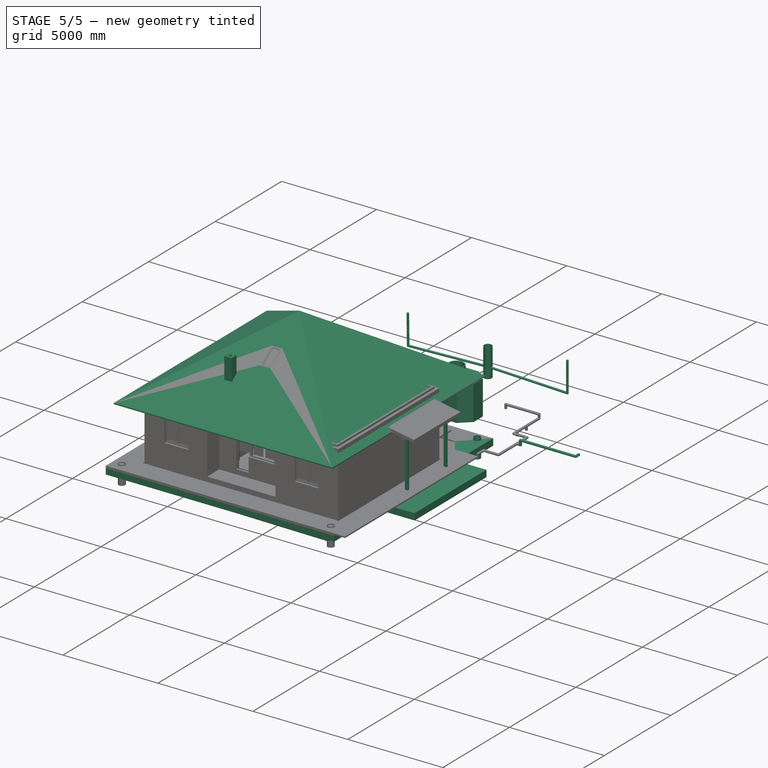
[diagram: stage 5 of 5 — iso view after this stage's code; geometry added in this stage tinted green]
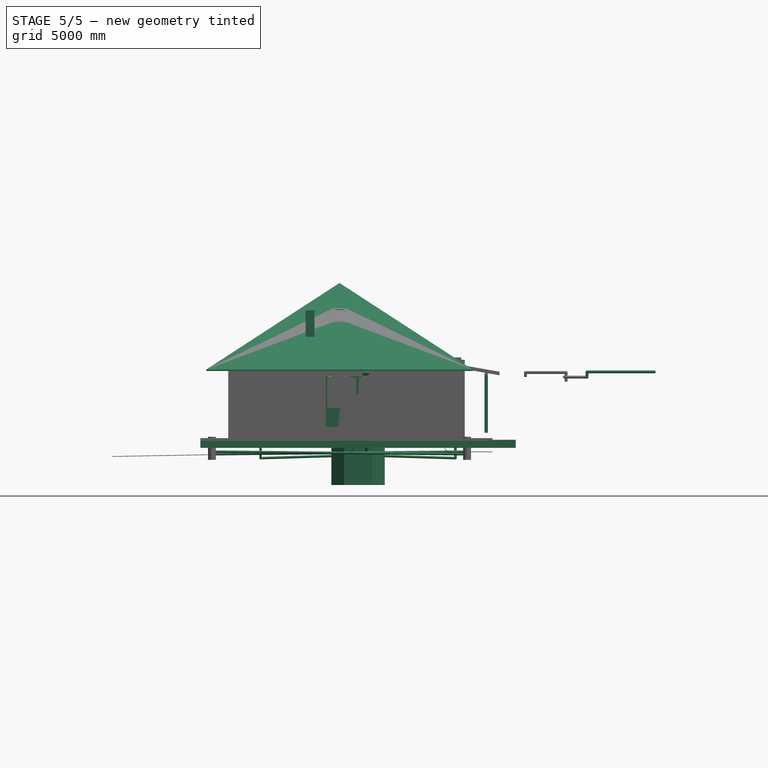
[diagram: stage 5 of 5 — front view after this stage's code; geometry added in this stage tinted green]
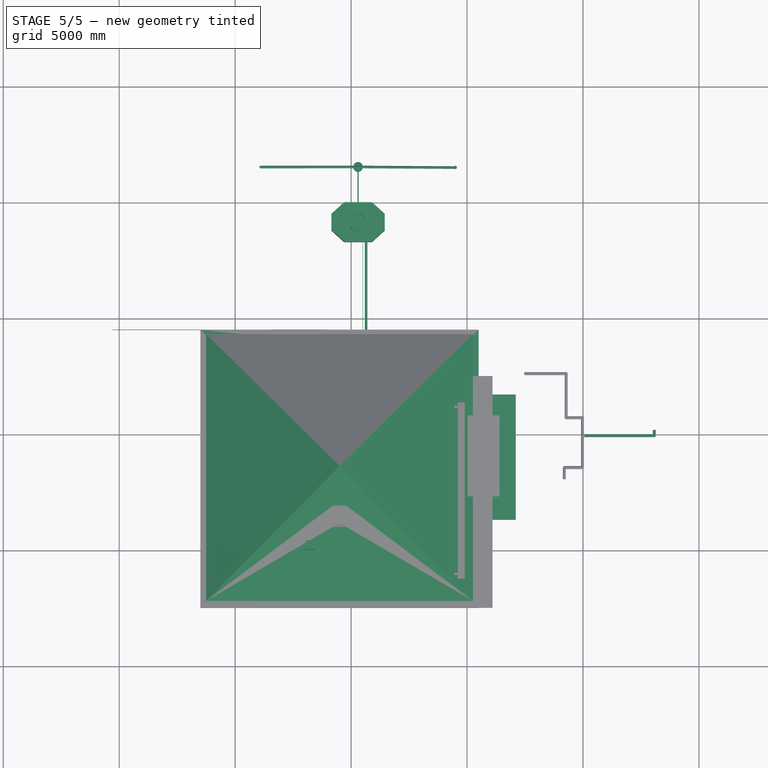
[diagram: stage 5 of 5 — top view after this stage's code; geometry added in this stage tinted green]
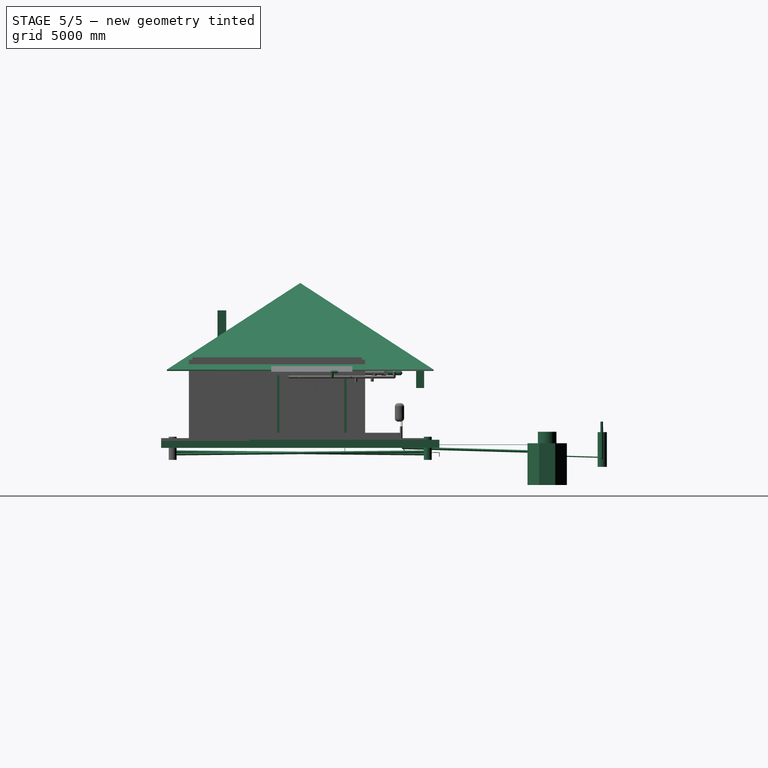
[diagram: stage 5 of 5 — right view after this stage's code; geometry added in this stage tinted green]
FEATURE [Part::Extrusion] Extrude043  label="Водогрей001"
  Base = -> Face
  Dir = (0,0,1)
  DirMode = 0
  FaceMakerClass = Part::FaceMakerBullseye
  LengthFwd = 1100
  LengthRev = 0
  Solid = false
  Symmetric = false
FEATURE [App::DocumentObjectGroup] Group038  label="кровать_2_сп_004"
  Group = -> [Extrude053,Extrude051,Extrude052]
FEATURE [Part::FeaturePython] Structure185  label="кух.зона 002"  # Arch/BIM object (typed FeaturePython)
  Base = -> Rectangle361
  FaceMaker = 0
  Height = 900
  HorizontalArea = 1820000
  IfcRole = 0
  Length = 0
  MoveWithHost = false
  Nodes = (2) [(-4700,-6400,0),(-4700,-6400,800)]
  NodesOffset = 0
  Normal = (0,0,0)
  PerimeterLength = 6600
  VerticalArea = 5940000
  Width = 100
FEATURE [Part::Part2DObjectPython] Rectangle412  label="кух.зона002"  # Draft 2D object (typed FeaturePython)
  ChamferSize = 0
  Columns = 1
  FilletRadius = 0
  Height = 1500
  Length = 500
  MakeFace = false
  Placement = pos=(4950,-500,0) rot=(0,0,1;0rad)
  Rows = 1
FEATURE [Part::FeaturePython] Structure  label="кух.зона 001"  # Arch/BIM object (typed FeaturePython)
  Base = -> Rectangle412
  FaceMaker = 0
  Height = 800
  HorizontalArea = 750000
  IfcRole = 0
  Length = 0
  MoveWithHost = false
  Nodes = (2) [(-4700,-6400,0),(-4700,-6400,800)]
  NodesOffset = 0
  Normal = (0,0,0)
  PerimeterLength = 4000
  Placement = pos=(0,0,1500) rot=(0,0,1;0rad)
  VerticalArea = 3200000
  Width = 100
FEATURE [Part::Part2DObjectPython] Rectangle416  label="проём_в_утепл_лестн. 001"  # Draft 2D object (typed FeaturePython)
  ChamferSize = 0
  Columns = 1
  FilletRadius = 0
  Height = 1700
  Length = 1025
  MakeFace = false
  Placement = pos=(3837.5,700,3410) rot=(0,0,1;0rad)
  Rows = 1
FEATURE [Part::Part2DObjectPython] Rectangle423  # Draft 2D object (typed FeaturePython)
  ChamferSize = 0
  Columns = 1
  FilletRadius = 0
  Height = 150
  Length = 0
  MakeFace = false
  Placement = pos=(5575,8350,5466.07) rot=(0,0.707107,0.707107;3.14159rad)
  Rows = 1
FEATURE [Part::Part2DObjectPython] Rectangle425  # Draft 2D object (typed FeaturePython)
  ChamferSize = 0
  Columns = 1
  FilletRadius = 0
  Height = 2206.07
  Length = 0
  MakeFace = false
  Placement = pos=(2000,8350,3410) rot=(0,0.707107,0.707107;3.14159rad)
  Rows = 1
FEATURE [Part::Part2DObjectPython] Rectangle446  label="подушка"  # Draft 2D object (typed FeaturePython)
  ChamferSize = 0
  Columns = 1
  FilletRadius = 0
  Height = 12000
  Length = 12000
  MakeFace = false
  Placement = pos=(-1500,-7500,0) rot=(0,0,1;0rad)
  Rows = 1
FEATURE [Part::FeaturePython] Structure160  label="Подушка песок h0.3"  # Arch/BIM object (typed FeaturePython)
  Base = -> Rectangle446
  FaceMaker = 0
  Height = 300
  HorizontalArea = 144000000
  IfcRole = 0
  Length = 0
  MoveWithHost = false
  Nodes = (2) [(3875,3875,0),(3875,3875,350)]
  NodesOffset = 0
  Normal = (0,0,0)
  PerimeterLength = 48000
  Placement = pos=(0,0,-830) rot=(0,0,1;0rad)
  VerticalArea = 14400000
  Width = 100
FEATURE [Part::FeaturePython] Wall  label="дымоход002"  # Arch/BIM object (typed FeaturePython)
  Align = 1
  Base = -> Rectangle381
  BlockHeight = 65
  BlockLength = 250
  CountBroken = 262
  CountEntire = 0
  Face = 0
  Height = 3000
  HorizontalArea = 124800
  IfcRole = 156
  Joint = 5
  Length = 1520
  MakeBlocks = false
  MoveWithHost = false
  Normal = (0,0,0)
  OffsetFirst = 0
  OffsetSecond = 125
  PerimeterLength = 1520
  Placement = pos=(0,0,2100) rot=(0,0,1;0rad)
  VerticalArea = 6240000
  Width = 120
FEATURE [Part::FeaturePython] Structure239  label="Подушка_крыльца_песок h0.3"  # Arch/BIM object (typed FeaturePython)
  Base = -> Rectangle483
  FaceMaker = 0
  Height = 300
  HorizontalArea = 8.64e+06
  IfcRole = 0
  Length = 0
  MoveWithHost = false
  Nodes = (2) [(-2100,3200,0),(-2100,3200,-300)]
  NodesOffset = 0
  Normal = (0,0,-1)
  PerimeterLength = 14000
  Placement = pos=(0,0,-530) rot=(0,0,1;0rad)
  VerticalArea = 4.2e+06
  Width = 100
FEATURE [Part::Part2DObjectPython] Wire096  label="отмостка_утепл_контур"  # Draft 2D object (typed FeaturePython)
  ChamferSize = 0
  Closed = true
  End = (10500,-7500,0)
  FilletRadius = 0
  Length = 51200
  MakeFace = false
  Placement = pos=(8025,8475,0) rot=(0,0,-1;0rad)
  Points = (8) [(-9525,-15975,0),(-9525,-3975,0),(2475,-3975,0),(2475,-6775,0),(4075,-6775,0),(4075,-12175,0),(2475,-12175,0),(2475,-15975,0)]
  Start = (-1500,-7500,0)
  Subdivisions = 0
FEATURE [Part::FeaturePython] Wall068  label="Утепление отмостки 50мм ЭППС"  # Arch/BIM object (typed FeaturePython)
  Align = 0
  Base = -> Wire096
  BlockHeight = 0
  BlockLength = 0
  CountBroken = 0
  CountEntire = 0
  Face = 0
  Height = 50
  HorizontalArea = 5.568e+07
  IfcRole = 156
  Joint = 0
  Length = 51200
  MakeBlocks = false
  MoveWithHost = false
  Normal = (0,0,0)
  OffsetFirst = 0
  OffsetSecond = 0
  PerimeterLength = 51200
  Placement = pos=(0,0,-530) rot=(0,0,1;0rad)
  VerticalArea = 4640000
  Width = 1200
FEATURE [Part::FeaturePython] Structure242  label="Утепление плиты крыльца 50мм ЭППС"  # Arch/BIM object (typed FeaturePython)
  Base = -> Rectangle482
  FaceMaker = 0
  Height = 50
  HorizontalArea = 3875000
  IfcRole = 0
  Length = 0
  MoveWithHost = false
  Nodes = (2) [(3900,-2150,0),(3900,-2150,50)]
  NodesOffset = 0
  Normal = (0,0,0)
  PerimeterLength = 8100
  Placement = pos=(0,0,-530) rot=(0,0,1;0rad)
  VerticalArea = 405000
  Width = 100
FEATURE [Part::FeaturePython] Structure243  label="прогон 012"  # Arch/BIM object (typed FeaturePython)
  FaceMaker = 0
  Height = 150
  HorizontalArea = 350000
  IfcRole = 8
  Length = 3500
  MoveWithHost = false
  Nodes = (2) [(0,0,2.77556e-16),(0,0,3500)]
  NodesOffset = 0
  Normal = (0,0,0)
  PerimeterLength = 7200
  Placement = pos=(10825,-2750,2360) rot=(0,0,1;1.5708rad)
  VerticalArea = 1080000
  Width = 100
FEATURE [Part::FeaturePython] Structure244  label="стойка 001"  # Arch/BIM object (typed FeaturePython)
  FaceMaker = 0
  Height = 2550
  HorizontalArea = 15000
  IfcRole = 8
  Length = 150
  MoveWithHost = false
  Nodes = (2) [(2.77556e-16,0,0),(2.77556e-16,0,2550)]
  NodesOffset = 0
  Normal = (0,0,0)
  PerimeterLength = 500
  Placement = pos=(10825,-2450,-180) rot=(0,0,1;0rad)
  VerticalArea = 1275000
  Width = 100
FEATURE [Part::FeaturePython] Structure245  label="стойка 002"  # Arch/BIM object (typed FeaturePython)
  FaceMaker = 0
  Height = 2550
  HorizontalArea = 15000
  IfcRole = 8
  Length = 150
  MoveWithHost = false
  Nodes = (2) [(2.77556e-16,0,0),(2.77556e-16,0,2550)]
  NodesOffset = 0
  Normal = (0,0,0)
  PerimeterLength = 500
  Placement = pos=(10825,450,-180) rot=(0,0,1;0rad)
  VerticalArea = 1275000
  Width = 100
FEATURE [Part::Part2DObjectPython] Wire100  label="перегородка_004"  # Draft 2D object (typed FeaturePython)
  ChamferSize = 0
  Closed = true
  End = (1300,1000,0)
  FilletRadius = 0
  Length = 10400
  MakeFace = true
  Placement = pos=(-1500,2400,0) rot=(0,0,1;0rad)
  Points = (10) [(2800,-3200,0),(4200,-3200,0),(4200,-3300,0),(2800,-3300,0),(2800,-3900,0),(1500,-3900,0),(1500,-3800,0),(2700,-3800,0),(2700,-1400,0),(2800,-1400,0)]
  Start = (1300,-800,0)
  Subdivisions = 0
FEATURE [Part::Part2DObjectPython] Rectangle496  # Draft 2D object (typed FeaturePython)
  ChamferSize = 0
  Columns = 1
  FilletRadius = 0
  Height = 2500
  Length = 0
  MakeFace = false
  Placement = pos=(0,5700,0) rot=(0.57735,0.57735,0.57735;2.0944rad)
  Rows = 1
FEATURE [Part::Part2DObjectPython] Wire103  label="стояк_кан."  # Draft 2D object (typed FeaturePython)
  ChamferSize = 0
  Closed = true
  End = (-5282,-732,100)
  FilletRadius = 0
  Length = 300
  MakeFace = false
  Placement = pos=(-5282,-732,-200) rot=(0,0,1;0rad)
  Points = (2) [(0,0,0),(0,0,300)]
  Start = (-5282,-732,-200)
  Subdivisions = 0
FEATURE [Part::Part2DObjectPython] Rectangle504  # Draft 2D object (typed FeaturePython)
  ChamferSize = 0
  Columns = 1
  FilletRadius = 0
  Height = 0
  Length = 200
  MakeFace = false
  Placement = pos=(5450,7650,4250) rot=(0,0,1;0rad)
  Rows = 1
FEATURE [Part::Part2DObjectPython] Line353  # Draft 2D object (typed FeaturePython)
  ChamferSize = 0
  Closed = false
  End = (5649.18,2849.18,98.1939)
  FilletRadius = 0
  Length = 800
  MakeFace = false
  Placement = pos=(5649.18,2849.18,-701.806) rot=(0,0,1;0rad)
  Points = (2) [(0,0,0),(0,0,800)]
  Start = (5649.18,2849.18,-701.806)
  Subdivisions = 0
FEATURE [Part::FeaturePython] Pipe006  label="стояк D110 _001"  # Arch/BIM object (typed FeaturePython)
  Base = -> Line353
  Diameter = 110
  HorizontalArea = 0
  IfcRole = 98
  Length = 800
  MoveWithHost = false
  OffsetEnd = 0
  OffsetStart = 0
  PerimeterLength = 0
  VerticalArea = 0
FEATURE [App::DocumentObjectGroup] Group011  label="умывальник001"
  Group = -> [Face001,Ellipse001,Extrude045,Structure250]
FEATURE [Part::Part2DObjectPython] Wire127  # Draft 2D object (typed FeaturePython)
  ChamferSize = 0
  Closed = false
  End = (5649.18,2849.18,-701.806)
  FilletRadius = 0
  Length = 127.012
  MakeFace = true
  Placement = pos=(5649.18,2909.99,-803.63) rot=(0.678598,0.281085,0.678598;2.59356rad)
  Points = (4) [(0,0,0),(0,61,1.35447e-14),(0,86,1.90958e-14),(29,115,0)]
  Start = (5649.18,2909.99,-803.63)
  Subdivisions = 0
FEATURE [Part::Part2DObjectPython] Wire129  # Draft 2D object (typed FeaturePython)
  ChamferSize = 0
  Closed = false
  End = (5649.18,2909.99,-803.63)
  FilletRadius = 0
  Length = 127.012
  MakeFace = true
  Placement = pos=(5649.18,3024.99,-832.63) rot=(0.707107,0,0.707107;3.14159rad)
  Points = (4) [(0,0,0),(0,61,1.35447e-14),(0,86,1.90958e-14),(29,115,1.81899e-11)]
  Start = (5649.18,3024.99,-832.63)
  Subdivisions = 0
FEATURE [Part::FeaturePython] Pipe027  label="Отвод D110 (45) 002"  # Arch/BIM object (typed FeaturePython)
  Base = -> Wire129
  Diameter = 110
  HorizontalArea = 0
  IfcRole = 98
  Length = 127.012
  MoveWithHost = false
  OffsetEnd = 0
  OffsetStart = 0
  PerimeterLength = 0
  VerticalArea = 0
FEATURE [Part::FeaturePython] Pipe028  label="Отвод D110 (45) 001"  # Arch/BIM object (typed FeaturePython)
  Base = -> Wire127
  Diameter = 110
  HorizontalArea = 0
  IfcRole = 98
  Length = 127.012
  MoveWithHost = false
  OffsetEnd = 0
  OffsetStart = 0
  PerimeterLength = 0
  VerticalArea = 0
FEATURE [Part::Part2DObjectPython] Line394  # Draft 2D object (typed FeaturePython)
  ChamferSize = 0
  Closed = false
  End = (5649.18,8324.99,-982.63)
  FilletRadius = 0
  Length = 5302.12
  MakeFace = false
  Placement = pos=(5649.18,3024.99,-832.63) rot=(0,0,1;0rad)
  Points = (2) [(0,0,0),(-3.3518e-05,5300,-150)]
  Start = (5649.18,3024.99,-832.63)
  Subdivisions = 0
FEATURE [Part::FeaturePython] Pipe029  label="труба к септику D110"  # Arch/BIM object (typed FeaturePython)
  Base = -> Line394
  Diameter = 110
  HorizontalArea = 0
  IfcRole = 98
  Length = 5302.12
  MoveWithHost = false
  OffsetEnd = 0
  OffsetStart = 0
  PerimeterLength = 0
  VerticalArea = 0
FEATURE [Part::Part2DObjectPython] Circle  label="люк_нар."  # Draft 2D object (typed FeaturePython)
  FirstAngle = 0
  LastAngle = 0
  MakeFace = false
  Placement = pos=(5300,9149.18,-632.63) rot=(0,0,1;3.14159rad)
  Radius = 400
FEATURE [Part::Part2DObjectPython] Wire130  label="контур"  # Draft 2D object (typed FeaturePython)
  ChamferSize = 0
  Closed = true
  End = (6450,9499.18,-632.63)
  FilletRadius = 0
  Length = 6773.21
  MakeFace = false
  Placement = pos=(6450,8799.18,-632.63) rot=(0,0,1;3.14159rad)
  Points = (8) [(0,0,0),(550,500,0),(1750,500,0),(2300,0,0),(2300,-700,0),(1750,-1200,0),(550,-1200,0),(-1.54614e-11,-700,0)]
  Start = (6450,8799.18,-632.63)
  Subdivisions = 0
FEATURE [Part::Part2DObjectPython] Circle001  label="люк_внутр."  # Draft 2D object (typed FeaturePython)
  FirstAngle = 0
  LastAngle = 0
  MakeFace = false
  Placement = pos=(5300,9149.18,-632.63) rot=(0,0,1;3.14159rad)
  Radius = 350
FEATURE [Part::FeaturePython] Structure252  label="Structure003"  # Arch/BIM object (typed FeaturePython)
  Base = -> Wire130
  FaceMaker = 0
  Height = 100
  HorizontalArea = 3.36e+06
  IfcRole = 0
  Length = 0
  MoveWithHost = false
  Nodes = (2) [(5300,13950,-932.63),(5300,13950,-832.63)]
  NodesOffset = 0
  Normal = (0,0,1)
  PerimeterLength = 6773.21
  Placement = pos=(0,0,-1800) rot=(0,0,1;0rad)
  VerticalArea = 677321
  Width = 100
FEATURE [Part::FeaturePython] Wall073  label="Wall"  # Arch/BIM object (typed FeaturePython)
  Align = 1
  Base = -> Wire130
  BlockHeight = 0
  BlockLength = 0
  CountBroken = 0
  CountEntire = 0
  Face = 0
  Height = 1600
  HorizontalArea = 644162
  IfcRole = 156
  Joint = 0
  Length = 6773.21
  MakeBlocks = false
  MoveWithHost = false
  Normal = (0,0,-1)
  OffsetFirst = 0
  OffsetSecond = 0
  PerimeterLength = 6773.21
  Placement = pos=(0,0,-100) rot=(0,0,1;0rad)
  VerticalArea = 2.06132e+07
  Width = 100
FEATURE [Part::FeaturePython] Structure253  label="Structure004"  # Arch/BIM object (typed FeaturePython)
  Base = -> Circle001
  FaceMaker = 0
  Height = 600
  HorizontalArea = 384845
  IfcRole = 0
  Length = 0
  MoveWithHost = false
  Nodes = (2) [(13900,3799.18,-932.63),(13900,3799.18,-332.63)]
  NodesOffset = 0
  Normal = (0,0,0)
  PerimeterLength = 2199.11
  Placement = pos=(0,0,-100) rot=(0,0,1;0rad)
  VerticalArea = 1.31947e+06
  Width = 100
FEATURE [Part::FeaturePython] Structure251  label="Structure002"  # Arch/BIM object (typed FeaturePython)
  Base = -> Wire130
  FaceMaker = 0
  Height = 100
  HorizontalArea = 2.97515e+06
  IfcRole = 0
  Length = 0
  MoveWithHost = false
  Nodes = (2) [(5300,13950,-932.63),(5300,13950,-1032.63)]
  NodesOffset = 0
  Normal = (0,0,0)
  PerimeterLength = 6773.21
  Subtractions = -> [Structure253]
  VerticalArea = 897233
  Width = 100
FEATURE [Part::FeaturePython] Structure254  label="Structure005"  # Arch/BIM object (typed FeaturePython)
  Base = -> Circle
  FaceMaker = 0
  Height = 200
  HorizontalArea = 117810
  IfcRole = 0
  Length = 0
  MoveWithHost = false
  Nodes = (2) [(13900,3799.18,-932.63),(13900,3799.18,-732.63)]
  NodesOffset = 0
  Normal = (0,0,0)
  PerimeterLength = 2513.27
  Subtractions = -> [Structure253]
  VerticalArea = 942478
  Width = 100
FEATURE [Part::FeaturePython] Structure255  label="кольца проставочные"  # Arch/BIM object (typed FeaturePython)
  Base = -> Circle
  FaceMaker = 0
  Height = 300
  HorizontalArea = 117810
  IfcRole = 0
  Length = 0
  MoveWithHost = false
  Nodes = (2) [(13900,3799.18,-932.63),(13900,3799.18,-632.63)]
  NodesOffset = 0
  Normal = (0,0,0)
  PerimeterLength = 2513.27
  Placement = pos=(0,0,200) rot=(0,0,1;0rad)
  Subtractions = -> [Structure253]
  VerticalArea = 1.41372e+06
  Width = 100
FEATURE [App::GeometryPython] BuildingPart053  label="ЛОС Октагон-БИО"  # Arch/BIM object (typed FeaturePython)
  Area = 0
  Group = -> [Structure251,Structure252,Wall073,Structure254,Structure255]
  Height = 0
  IfcRole = 0
  LevelOffset = 0
FEATURE [Part::Part2DObjectPython] Circle004  # Draft 2D object (typed FeaturePython)
  FirstAngle = 0
  LastAngle = 0
  MakeFace = false
  Placement = pos=(5300,11524.2,300) rot=(0,0,1;0rad)
  Radius = 200
FEATURE [Part::Part2DObjectPython] Circle005  # Draft 2D object (typed FeaturePython)
  FirstAngle = 0
  LastAngle = 0
  MakeFace = false
  Placement = pos=(5300,11524.2,300) rot=(0,0,1;0rad)
  Radius = 174
FEATURE [Part::FeaturePython] Structure257  label="Structure007"  # Arch/BIM object (typed FeaturePython)
  Base = -> Circle005
  FaceMaker = 0
  Height = 1500
  HorizontalArea = 95114.9
  IfcRole = 0
  Length = 0
  MoveWithHost = false
  Nodes = (2) [(5300,11524.2,300),(5300,11524.2,-1200)]
  NodesOffset = 0
  Normal = (0,0,-1)
  PerimeterLength = 1093.27
  VerticalArea = 1.63991e+06
  Width = 100
FEATURE [Part::FeaturePython] Structure256  label="Structure006"  # Arch/BIM object (typed FeaturePython)
  Base = -> Circle004
  FaceMaker = 0
  Height = 1500
  HorizontalArea = 125664
  IfcRole = 0
  Length = 0
  MoveWithHost = false
  Nodes = (2) [(16275,3799.18,0),(16275,3799.18,-1500)]
  NodesOffset = 0
  Normal = (0,0,-1)
  PerimeterLength = 1256.64
  Placement = pos=(0,0,-450) rot=(0,0,1;0rad)
  Subtractions = -> [Structure257]
  VerticalArea = 3.03289e+06
  Width = 100
FEATURE [Part::FeaturePython] Structure258  label="Structure008"  # Arch/BIM object (typed FeaturePython)
  Base = -> Circle004
  FaceMaker = 0
  Height = 30
  HorizontalArea = 125664
  IfcRole = 0
  Length = 0
  MoveWithHost = false
  Nodes = (2) [(16275,3799.18,0),(16275,3799.18,30)]
  NodesOffset = 0
  Normal = (0,0,0)
  PerimeterLength = 1256.64
  Placement = pos=(0,0,-1950) rot=(0,0,1;0rad)
  VerticalArea = 37699.1
  Width = 100
FEATURE [App::GeometryPython] BuildingPart054  label="дренажный колодец D400 h1500 001"  # Arch/BIM object (typed FeaturePython)
  Area = 0
  Group = -> [Structure256,Structure258]
  Height = 0
  IfcRole = 0
  LevelOffset = 0
  Placement = pos=(0,0,1) rot=(0,0,1;0rad)
FEATURE [Part::Part2DObjectPython] Line402  # Draft 2D object (typed FeaturePython)
  ChamferSize = 0
  Closed = false
  End = (5300,11350.2,-1232.63)
  FilletRadius = 0
  Length = 1351.59
  MakeFace = false
  Placement = pos=(5300,9999.18,-1192.63) rot=(0,0,1;0rad)
  Points = (2) [(0,0,0),(9.09495e-13,1351,-40)]
  Start = (5300,9999.18,-1192.63)
  Subdivisions = 0
FEATURE [Part::FeaturePython] Pipe030  label="труба отводящяя D50"  # Arch/BIM object (typed FeaturePython)
  Base = -> Line402
  Diameter = 50
  HorizontalArea = 0
  IfcRole = 98
  Length = 1351.59
  MoveWithHost = false
  OffsetEnd = 0
  OffsetStart = 0
  PerimeterLength = 0
  VerticalArea = 0
FEATURE [Part::Part2DObjectPython] Wire131  # Draft 2D object (typed FeaturePython)
  ChamferSize = 0
  Closed = false
  End = (9500,11500,300)
  FilletRadius = 0
  Length = 11543.9
  MakeFace = false
  Placement = pos=(1100,11524.2,350) rot=(0,0,1;0rad)
  Points = (6) [(-5.45697e-12,-24.1817,-50),(-4.54747e-13,0,-1620),(4000,0,-1500),(4400,0,-1500),(8400,-24.18,-1620),(8400,-24.1817,-50)]
  Start = (1100,11500,300)
  Subdivisions = 0
FEATURE [Part::FeaturePython] Pipe031  label="Фильтрационная траншея"  # Arch/BIM object (typed FeaturePython)
  Base = -> Wire131
  Diameter = 110
  HorizontalArea = 0
  IfcRole = 98
  Length = 11543.9
  MoveWithHost = false
  OffsetEnd = 0
  OffsetStart = 0
  PerimeterLength = 0
  VerticalArea = 0
FEATURE [Part::FeaturePython] Point  # WARN: FeaturePython — macro-defined, semantics opaque (R4)
  X = 4500
  Y = -1500
  Z = 0
FEATURE [Part::Part2DObjectPython] Rectangle518  label="Внутренний блок сплит-системы_001"  # Draft 2D object (typed FeaturePython)
  ChamferSize = 0
  Columns = 1
  FilletRadius = 0
  Height = 700
  Length = 1000
  MakeFace = false
  Placement = pos=(5100,-400,0) rot=(0,0,1;1.5708rad)
  Rows = 1
FEATURE [Part::Part2DObjectPython] Rectangle519  label="Внешний блок сплит-системы_001"  # Draft 2D object (typed FeaturePython)
  ChamferSize = 0
  Columns = 1
  FilletRadius = 0
  Height = 880
  Length = 340
  MakeFace = false
  Placement = pos=(3080,3500,0) rot=(0,0,1;1.5708rad)
  Rows = 1
FEATURE [Part::Part2DObjectPython] Wire142  label="приёмный_воздуховод_001"  # Draft 2D object (typed FeaturePython)
  ChamferSize = 0
  Closed = false
  End = (3650,850,-2250)
  FilletRadius = 0
  Length = 4250
  MakeFace = true
  Placement = pos=(4887.5,675,0) rot=(0,0,1;0rad)
  Points = (5) [(-487.5,-575,0),(-1237.5,-575,0),(-1237.5,425,0),(-1237.5,425,-2250),(-1237.5,175,-2250)]
  Start = (4400,100,0)
  Subdivisions = 0
FEATURE [Part::Part2DObjectPython] Rectangle520  label="воздуховод_профиль_001"  # Draft 2D object (typed FeaturePython)
  ChamferSize = 0
  Columns = 1
  FilletRadius = 0
  Height = 200
  Length = 700
  MakeFace = true
  Placement = pos=(4400,-250,-200) rot=(0.57735,0.57735,0.57735;2.0944rad)
  Rows = 1
FEATURE [Part::FeaturePython] Pipe032  label="приёмный_воздуховод_002"  # Arch/BIM object (typed FeaturePython)
  Base = -> Wire142
  Diameter = 50
  HorizontalArea = 0
  IfcRole = 98
  Length = 4250
  MoveWithHost = false
  OffsetEnd = 0
  OffsetStart = 0
  PerimeterLength = 0
  Placement = pos=(0,0,2400) rot=(0,0,1;0rad)
  Profile = -> Rectangle520
  VerticalArea = 0
FEATURE [Part::Part2DObjectPython] Line436  # Draft 2D object (typed FeaturePython)
  ChamferSize = 0
  Closed = true
  End = (6900,3700,0)
  FilletRadius = 0
  Length = 0
  MakeFace = true
  Placement = pos=(6900,3700,0) rot=(0,0,1;0rad)
  Points = (2) [(0,0,0),(0,0,0)]
  Start = (6900,3700,0)
  Subdivisions = 0
FEATURE [Part::FeaturePython] Structure260  label="Внутренний блок сплит-системы"  # Arch/BIM object (typed FeaturePython)
  Base = -> Rectangle518
  FaceMaker = 0
  Height = 270
  HorizontalArea = 700000
  IfcRole = 0
  Length = 0
  MoveWithHost = false
  Nodes = (2) [(4282.5,3050,0),(4282.5,3050,270)]
  NodesOffset = 0
  Normal = (0,0,0)
  PerimeterLength = 3400
  Placement = pos=(0,0,2260) rot=(0,0,1;0rad)
  VerticalArea = 918000
  Width = 100
FEATURE [Part::Part2DObjectPython] Wire143  label="подающий воздуховод 039"  # Draft 2D object (typed FeaturePython)
  ChamferSize = 0
  Closed = false
  End = (5100,340,0)
  FilletRadius = 0
  Length = 7960
  MakeFace = true
  Placement = pos=(3265,2675,0) rot=(0,0,1;0rad)
  Points = (7) [(-3065,-75,0),(-3065,125,0),(1035,125,0),(1035,-1475,0),(2035,-1475,0),(2035,-2335,0),(1835,-2335,0)]
  Start = (200,2600,0)
  Subdivisions = 0
FEATURE [Part::Part2DObjectPython] Line445  label="подающий воздуховод 046"  # Draft 2D object (typed FeaturePython)
  ChamferSize = 0
  Closed = false
  End = (8700,-700,-200)
  FilletRadius = 0
  Length = 200
  MakeFace = true
  Placement = pos=(8700,-700,0) rot=(0,0,1;1.5708rad)
  Points = (2) [(0,0,0),(0,0,-200)]
  Start = (8700,-700,0)
  Subdivisions = 0
FEATURE [Part::FeaturePython] Pipe033  label="подающий воздуховод 001"  # Arch/BIM object (typed FeaturePython)
  Base = -> Wire143
  Diameter = 200
  HorizontalArea = 0
  IfcRole = 98
  Length = 7960
  MoveWithHost = false
  OffsetEnd = 0
  OffsetStart = 0
  PerimeterLength = 0
  Placement = pos=(0,0,2400) rot=(0,0,1;0rad)
  VerticalArea = 0
FEATURE [Part::FeaturePython] Pipe034  label="подающий воздуховод 019"  # Arch/BIM object (typed FeaturePython)
  Base = -> Line445
  Diameter = 200
  HorizontalArea = 0
  IfcRole = 98
  Length = 200
  MoveWithHost = false
  OffsetEnd = 0
  OffsetStart = 0
  PerimeterLength = 0
  Placement = pos=(0,0,2400) rot=(0,0,1;0rad)
  VerticalArea = 0
FEATURE [Part::Part2DObjectPython] Wire144  label="подающий воздуховод 043"  # Draft 2D object (typed FeaturePython)
  ChamferSize = 0
  Closed = false
  End = (5100,-150,0)
  FilletRadius = 0
  Length = 6350
  MakeFace = true
  Placement = pos=(-885,-1125,0) rot=(0,0,1;0rad)
  Points = (6) [(6385,-4575,0),(6585,-4575,0),(6585,-1375,0),(6185,-1375,0),(6185,975,0),(5985,975,0)]
  Start = (5500,-5700,0)
  Subdivisions = 0
FEATURE [Part::Part2DObjectPython] Line448  label="подающий воздуховод 044"  # Draft 2D object (typed FeaturePython)
  ChamferSize = 0
  Closed = false
  End = (5700,-4400,0)
  FilletRadius = 0
  Length = 500
  MakeFace = true
  Placement = pos=(18175,725,0) rot=(0,0,1;0rad)
  Points = (2) [(-11975,-5125,0),(-12475,-5125,0)]
  Start = (6200,-4400,0)
  Subdivisions = 0
FEATURE [Part::Part2DObjectPython] Line451  label="подающий воздуховод 045"  # Draft 2D object (typed FeaturePython)
  ChamferSize = 0
  Closed = false
  End = (5500,-3200,0)
  FilletRadius = 0
  Length = 200
  MakeFace = true
  Placement = pos=(5300,-2500,0) rot=(0,0,1;0rad)
  Points = (2) [(400,-700,0),(200,-700,0)]
  Start = (5700,-3200,0)
  Subdivisions = 0
FEATURE [Part::Part2DObjectPython] Wire145  label="подающий воздуховод 041"  # Draft 2D object (typed FeaturePython)
  ChamferSize = 0
  Closed = false
  End = (8700,-700,-200)
  FilletRadius = 0
  Length = 5600
  MakeFace = true
  Placement = pos=(5540,-75,0) rot=(0,0,1;0rad)
  Points = (6) [(-440,175,0),(60,175,0),(60,-1125,0),(3160,-1125,0),(3160,-625,0),(3160,-625,-200)]
  Start = (5100,100,0)
  Subdivisions = 0
FEATURE [Part::FeaturePython] Pipe035  label="подающий воздуховод 020"  # Arch/BIM object (typed FeaturePython)
  Base = -> Wire145
  Diameter = 200
  HorizontalArea = 0
  IfcRole = 98
  Length = 5600
  MoveWithHost = false
  OffsetEnd = 0
  OffsetStart = 0
  PerimeterLength = 0
  Placement = pos=(0,0,2400) rot=(0,0,1;0rad)
  VerticalArea = 0
FEATURE [Part::FeaturePython] Pipe037  label="подающий воздуховод 022"  # Arch/BIM object (typed FeaturePython)
  Base = -> Wire144
  Diameter = 200
  HorizontalArea = 0
  IfcRole = 98
  Length = 6350
  MoveWithHost = false
  OffsetEnd = 0
  OffsetStart = 0
  PerimeterLength = 0
  Placement = pos=(0,0,2400) rot=(0,0,1;0rad)
  VerticalArea = 0
FEATURE [Part::FeaturePython] Pipe038  label="подающий воздуховод 023"  # Arch/BIM object (typed FeaturePython)
  Base = -> Line448
  Diameter = 200
  HorizontalArea = 0
  IfcRole = 98
  Length = 500
  MoveWithHost = false
  OffsetEnd = 0
  OffsetStart = 0
  PerimeterLength = 0
  Placement = pos=(0,0,2400) rot=(0,0,1;0rad)
  VerticalArea = 0
FEATURE [Part::FeaturePython] Pipe039  label="подающий воздуховод 024"  # Arch/BIM object (typed FeaturePython)
  Base = -> Line451
  Diameter = 200
  HorizontalArea = 0
  IfcRole = 98
  Length = 200
  MoveWithHost = false
  OffsetEnd = 0
  OffsetStart = 0
  PerimeterLength = 0
  Placement = pos=(0,0,2400) rot=(0,0,1;0rad)
  VerticalArea = 0
FEATURE [Part::Part2DObjectPython] Line462  label="вытяжная вентиляция 004"  # Draft 2D object (typed FeaturePython)
  ChamferSize = 0
  Closed = false
  End = (7300,-500,0)
  FilletRadius = 0
  Length = 1000
  MakeFace = true
  Placement = pos=(8855,2765,0) rot=(0,0,1;0rad)
  Points = (3) [(-1355,-2465,0),(-1355,-3265,0),(-1555,-3265,0)]
  Start = (7500,300,0)
  Subdivisions = 0
FEATURE [Part::FeaturePython] Pipe041  label="вытяжная вентиляция 002"  # Arch/BIM object (typed FeaturePython)
  Base = -> Line462
  Diameter = 150
  HorizontalArea = 0
  IfcRole = 98
  Length = 1000
  MoveWithHost = false
  OffsetEnd = 0
  OffsetStart = 0
  PerimeterLength = 0
  Placement = pos=(0,0,2425) rot=(0,0,1;0rad)
  VerticalArea = 0
FEATURE [Part::FeaturePython] Structure261  label="Внешний блок сплит-системы"  # Arch/BIM object (typed FeaturePython)
  Base = -> Rectangle519
  FaceMaker = 0
  Height = 750
  HorizontalArea = 299200
  IfcRole = 0
  Length = 0
  MoveWithHost = false
  Nodes = (2) [(8350,3740,0),(8350,3740,750)]
  NodesOffset = 0
  Normal = (0,0,0)
  PerimeterLength = 2440
  Placement = pos=(0,0,1750) rot=(0,0,1;0rad)
  VerticalArea = 1830000
  Width = 100
FEATURE [Part::Part2DObjectPython] Wire149  label="трассы системы кондиционирования 002"  # Draft 2D object (typed FeaturePython)
  ChamferSize = 0
  Closed = false
  End = (3000,3600,-49.9963)
  FilletRadius = 0
  Length = 3782.74
  MakeFace = true
  Placement = pos=(4480,500,-50) rot=(0,0,1;3.14159rad)
  Points = (5) [(0,0,0),(0,0,50),(1080,-3100,50),(1480,-3100,50),(1480,-3100,0.0037117)]
  Start = (4480,500,-50)
  Subdivisions = 0
FEATURE [Part::FeaturePython] Pipe043  label="трассы сплит-системы 001"  # Arch/BIM object (typed FeaturePython)
  Base = -> Wire149
  Diameter = 25
  HorizontalArea = 0
  IfcRole = 98
  Length = 3782.74
  MoveWithHost = false
  OffsetEnd = 0
  OffsetStart = 0
  PerimeterLength = 0
  Placement = pos=(0,0,2550) rot=(0,0,1;0rad)
  VerticalArea = 0
FEATURE [Part::Part2DObjectPython] Wire150  label="трассы системы кондиционирования 001"  # Draft 2D object (typed FeaturePython)
  ChamferSize = 0
  Closed = false
  End = (3000,3700,-50)
  FilletRadius = 0
  Length = 3920.55
  MakeFace = true
  Placement = pos=(4530,500,-50) rot=(0,0,1;3.14159rad)
  Points = (5) [(0,0,0),(0,0,50),(1090,-3200,50),(1530,-3200,50),(1530,-3200,0)]
  Start = (4530,500,-50)
  Subdivisions = 0
FEATURE [Part::FeaturePython] Pipe044  label="трассы сплит-системы 002"  # Arch/BIM object (typed FeaturePython)
  Base = -> Wire150
  Diameter = 25
  HorizontalArea = 0
  IfcRole = 98
  Length = 3920.55
  MoveWithHost = false
  OffsetEnd = 0
  OffsetStart = 0
  PerimeterLength = 0
  Placement = pos=(0,0,2550) rot=(0,0,1;0rad)
  VerticalArea = 0
FEATURE [Part::Part2DObjectPython] Rectangle523  label="рекуператор LGH-25 контур"  # Draft 2D object (typed FeaturePython)
  ChamferSize = 0
  Columns = 1
  FilletRadius = 0
  Height = 800
  Length = 800
  MakeFace = false
  Placement = pos=(8200,-600,0) rot=(0,0,1;1.5708rad)
  Rows = 1
FEATURE [Part::FeaturePython] Structure262  label="рекуператор LGH-25"  # Arch/BIM object (typed FeaturePython)
  Base = -> Rectangle523
  FaceMaker = 0
  Height = 300
  HorizontalArea = 640000
  IfcRole = 0
  Length = 0
  MoveWithHost = false
  Nodes = (2) [(5475,7525,0),(5475,7525,500)]
  NodesOffset = 0
  Normal = (0,0,0)
  PerimeterLength = 3200
  Placement = pos=(0,0,2245) rot=(0,0,1;0rad)
  VerticalArea = 960000
  Width = 100
FEATURE [App::GeometryPython] BuildingPart056  label="Внутренняя канализация"  # Arch/BIM object (typed FeaturePython)
  Area = 0
  Height = 0
  IfcRole = 0
  LevelOffset = 0
FEATURE [Part::Part2DObjectPython] Circle006  # Draft 2D object (typed FeaturePython)
  FirstAngle = 0
  LastAngle = 0
  MakeFace = false
  Placement = pos=(10000,4000,0) rot=(0,0,1;0rad)
  Radius = 170
FEATURE [Part::Part2DObjectPython] Circle007  # Draft 2D object (typed FeaturePython)
  FirstAngle = 0
  LastAngle = 0
  MakeFace = false
  Placement = pos=(10000,4000,0) rot=(0,0,1;0rad)
  Radius = 150
FEATURE [Part::FeaturePython] Structure264  label="Structure010"  # Arch/BIM object (typed FeaturePython)
  Base = -> Circle007
  FaceMaker = 0
  Height = 1500
  HorizontalArea = 70685.8
  IfcRole = 0
  Length = 0
  MoveWithHost = false
  Nodes = (2) [(10000,4000,0),(10000,4000,-1500)]
  NodesOffset = 0
  Normal = (0,0,-1)
  PerimeterLength = 942.478
  VerticalArea = 1.41372e+06
  Width = 100
FEATURE [Part::FeaturePython] Structure263  label="Structure009"  # Arch/BIM object (typed FeaturePython)
  Base = -> Circle006
  FaceMaker = 0
  Height = 1000
  HorizontalArea = 20106.2
  IfcRole = 0
  Length = 0
  MoveWithHost = false
  Nodes = (2) [(10000,4000,0),(10000,4000,-1000)]
  NodesOffset = 0
  Normal = (0,0,-1)
  PerimeterLength = 1068.14
  Placement = pos=(0,0,-350) rot=(0,0,1;0rad)
  Subtractions = -> [Structure264]
  VerticalArea = 2.01062e+06
  Width = 100
FEATURE [Part::FeaturePython] Structure265  label="Structure011"  # Arch/BIM object (typed FeaturePython)
  Base = -> Circle006
  FaceMaker = 0
  Height = 30
  HorizontalArea = 90792
  IfcRole = 0
  Length = 0
  MoveWithHost = false
  Nodes = (2) [(10000,4000,0),(10000,4000,30)]
  NodesOffset = 0
  Normal = (0,0,0)
  PerimeterLength = 1068.14
  Placement = pos=(0,0,-1350) rot=(0,0,1;0rad)
  VerticalArea = 32044.2
  Width = 100
FEATURE [App::GeometryPython] BuildingPart057  label="дренажный колодец D340 h1000 001"  # Arch/BIM object (typed FeaturePython)
  Area = 0
  Group = -> [Structure263,Structure265]
  Height = 0
  IfcRole = 0
  LevelOffset = 0
  Placement = pos=(0,50,1) rot=(0,0,1;0rad)
FEATURE [Part::Part2DObjectPython] Circle008  # Draft 2D object (typed FeaturePython)
  FirstAngle = 0
  LastAngle = 0
  MakeFace = false
  Placement = pos=(-1000,4000,0) rot=(0,0,1;0rad)
  Radius = 150
FEATURE [Part::FeaturePython] Structure266  label="Structure012"  # Arch/BIM object (typed FeaturePython)
  Base = -> Circle008
  FaceMaker = 0
  Height = 1500
  HorizontalArea = 70685.8
  IfcRole = 0
  Length = 0
  MoveWithHost = false
  Nodes = (2) [(-1225,8975,0),(-1225,8975,-1000)]
  NodesOffset = 0
  Normal = (0,0,-1)
  PerimeterLength = 942.478
  VerticalArea = 1.41372e+06
  Width = 100
FEATURE [Part::Part2DObjectPython] Circle009  # Draft 2D object (typed FeaturePython)
  FirstAngle = 0
  LastAngle = 0
  MakeFace = false
  Placement = pos=(-1000,4000,0) rot=(0,0,1;0rad)
  Radius = 170
FEATURE [Part::FeaturePython] Structure267  label="Structure013"  # Arch/BIM object (typed FeaturePython)
  Base = -> Circle009
  FaceMaker = 0
  Height = 1000
  HorizontalArea = 20106.2
  IfcRole = 0
  Length = 0
  MoveWithHost = false
  Nodes = (2) [(-1225,8975,0),(-1225,8975,-1000)]
  NodesOffset = 0
  Normal = (0,0,-1)
  PerimeterLength = 1068.14
  Placement = pos=(0,0,-350) rot=(0,0,1;0rad)
  Subtractions = -> [Structure266]
  VerticalArea = 2.01062e+06
  Width = 100
FEATURE [Part::FeaturePython] Structure268  label="Structure014"  # Arch/BIM object (typed FeaturePython)
  Base = -> Circle009
  FaceMaker = 0
  Height = 30
  HorizontalArea = 90792
  IfcRole = 0
  Length = 0
  MoveWithHost = false
  Nodes = (2) [(-1000,4000,0),(-1000,4000,30)]
  NodesOffset = 0
  Normal = (0,0,0)
  PerimeterLength = 1068.14
  Placement = pos=(0,0,-1350) rot=(0,0,1;0rad)
  VerticalArea = 32044.2
  Width = 100
FEATURE [App::GeometryPython] BuildingPart059  label="дренажный колодец D340 h1000 002"  # Arch/BIM object (typed FeaturePython)
  Area = 0
  Group = -> [Structure267,Structure268]
  Height = 0
  IfcRole = 0
  LevelOffset = 0
  Placement = pos=(0,50,1) rot=(0,0,1;0rad)
FEATURE [Part::Part2DObjectPython] Wire151  label="труба дренажная 003"  # Draft 2D object (typed FeaturePython)
  ChamferSize = 0
  Closed = false
  End = (-1000,3850,-1100)
  FilletRadius = 0
  Length = 21701.1
  MakeFace = false
  Placement = pos=(9200,-7000,-1100) rot=(0,0,1;0rad)
  Points = (3) [(650,0,0),(-10200,4.54747e-13,110),(-10200,10850,0)]
  Start = (9850,-7000,-1100)
  Subdivisions = 0
FEATURE [Part::Part2DObjectPython] Wire152  label="труба дренажная 002"  # Draft 2D object (typed FeaturePython)
  ChamferSize = 0
  Closed = false
  End = (10000,-6850,-1100)
  FilletRadius = 0
  Length = 21701.1
  MakeFace = false
  Placement = pos=(-200,4000,-1100) rot=(0,0,1;0rad)
  Points = (3) [(-650,-9.76563e-05,0),(10200,0,110),(10200,-10850,0)]
  Start = (-850,4000,-1100)
  Subdivisions = 0
FEATURE [Part::FeaturePython] Pipe046  label="труба дренажная D110 002"  # Arch/BIM object (typed FeaturePython)
  Base = -> Wire152
  Diameter = 110
  HorizontalArea = 0
  IfcRole = 98
  Length = 21701.1
  MoveWithHost = false
  OffsetEnd = 0
  OffsetStart = 0
  PerimeterLength = 0
  VerticalArea = 0
FEATURE [Part::FeaturePython] Pipe047  label="труба дренажная D110 001"  # Arch/BIM object (typed FeaturePython)
  Base = -> Wire151
  Diameter = 110
  HorizontalArea = 0
  IfcRole = 98
  Length = 21701.1
  MoveWithHost = false
  OffsetEnd = 0
  OffsetStart = 0
  PerimeterLength = 0
  VerticalArea = 0
FEATURE [Part::Part2DObjectPython] Wire153  label="Труба подачи воздуха к ЛОС ПНД 20мм 001"  # Draft 2D object (typed FeaturePython)
  ChamferSize = 0
  Closed = false
  End = (5499.18,2849.17,650)
  FilletRadius = 300
  Length = 6697.05
  MakeFace = false
  Placement = pos=(5499.18,8324.98,-700) rot=(0,0,1;0rad)
  Points = (4) [(0,0,0),(0,-5475.81,0),(0.00167414,-5475.81,1050),(0.00167414,-5475.81,1350)]
  Start = (5499.18,8324.98,-700)
  Subdivisions = 0
FEATURE [Part::FeaturePython] Pipe048  label="Труба подачи воздуха к ЛОС ПНД 20мм"  # Arch/BIM object (typed FeaturePython)
  Base = -> Wire153
  Diameter = 20
  HorizontalArea = 0
  IfcRole = 98
  Length = 6697.05
  MoveWithHost = false
  OffsetEnd = 0
  OffsetStart = 0
  PerimeterLength = 0
  VerticalArea = 0
FEATURE [App::GeometryPython] BuildingPart052  label="Наружная канализация"  # Arch/BIM object (typed FeaturePython)
  Area = 0
  Group = -> [Pipe029,Pipe006,Pipe027,Pipe028,BuildingPart053,BuildingPart054,Pipe030,Pipe031,Pipe048]
  Height = 0
  IfcRole = 0
  LevelOffset = 0
FEATURE [App::GeometryPython] BuildingPart051  label="Канализация"  # Arch/BIM object (typed FeaturePython)
  Area = 0
  Group = -> [BuildingPart052,BuildingPart056]
  Height = 0
  IfcRole = 0
  LevelOffset = 0
FEATURE [Part::Part2DObjectPython] Wire154  label="Водопровод ПНД 25мм 001"  # Draft 2D object (typed FeaturePython)
  ChamferSize = 0
  Closed = false
  End = (-5300,4500,-1200)
  FilletRadius = 300
  Length = 12435.6
  MakeFace = false
  Placement = pos=(5100,3050,300) rot=(0,0,1;0rad)
  Points = (4) [(0,-150,0),(0,-150,-1300),(-1000,1450,-1330),(-10400,1450,-1500)]
  Start = (5100,2900,300)
  Subdivisions = 0
FEATURE [Part::FeaturePython] Pipe049  label="Водопровод ПНД 25мм"  # Arch/BIM object (typed FeaturePython)
  Base = -> Wire154
  Diameter = 25
  HorizontalArea = 0
  IfcRole = 98
  Length = 12435.6
  MoveWithHost = false
  OffsetEnd = 0
  OffsetStart = 0
  PerimeterLength = 0
  VerticalArea = 0
FEATURE [Part::FeaturePython] Structure270  label="Щиток ЩРВ-24"  # Arch/BIM object (typed FeaturePython)
  FaceMaker = 0
  Height = 360
  HorizontalArea = 35750
  IfcRole = 0
  Length = 275
  MoveWithHost = false
  Nodes = (2) [(1.77636e-15,2.48044e-15,0),(1.77636e-15,2.48044e-15,360)]
  NodesOffset = 0
  Normal = (0,0,0)
  PerimeterLength = 810
  Placement = pos=(9065,462.5,1000) rot=(0,0,1;1.5708rad)
  VerticalArea = 291600
  Width = 130
FEATURE [Part::Part2DObjectPython] Wire157  label="Ввод кабеля ПНД 25мм 001"  # Draft 2D object (typed FeaturePython)
  ChamferSize = 0
  Closed = false
  End = (9000,425,1000)
  FilletRadius = 300
  Length = 3971.24
  MakeFace = false
  Placement = pos=(11300,503.403,-4060) rot=(0,0,1;0rad)
  Points = (3) [(-200,-78.4026,3060),(-2300,-78.4026,3060),(-2300,-78.4026,5060)]
  Start = (11100,425,-1000)
  Subdivisions = 0
FEATURE [Part::FeaturePython] Pipe050  label="Ввод кабеля ПНД 25мм"  # Arch/BIM object (typed FeaturePython)
  Base = -> Wire157
  Diameter = 25
  HorizontalArea = 0
  IfcRole = 98
  Length = 3971.24
  MoveWithHost = false
  OffsetEnd = 0
  OffsetStart = 0
  PerimeterLength = 0
  VerticalArea = 0
FEATURE [App::GeometryPython] BuildingPart060  label="Электрика"  # Arch/BIM object (typed FeaturePython)
  Area = 0
  Group = -> [Pipe050,Structure270]
  Height = 0
  IfcRole = 0
  LevelOffset = 0
FEATURE [Part::Part2DObjectPython] Wire158  label="приточная вентиляция 001"  # Draft 2D object (typed FeaturePython)
  ChamferSize = 0
  Closed = false
  End = (8100,300,0)
  FilletRadius = 0
  Length = 1000
  MakeFace = true
  Placement = pos=(9220,-4710,250) rot=(0,0,1;0rad)
  Points = (3) [(-920,4210,-250),(-1120,4210,-250),(-1120,5010,-250)]
  Start = (8300,-500,0)
  Subdivisions = 0
FEATURE [Part::FeaturePython] Pipe042  label="приточная вентиляция 002"  # Arch/BIM object (typed FeaturePython)
  Base = -> Wire158
  Diameter = 150
  HorizontalArea = 0
  IfcRole = 98
  Length = 1000
  MoveWithHost = false
  OffsetEnd = 0
  OffsetStart = 0
  PerimeterLength = 0
  Placement = pos=(0,0,2425) rot=(0,0,1;0rad)
  VerticalArea = 0
FEATURE [App::FeaturePython] Dimension016  # Draft dimension (typed FeaturePython)
  Diameter = false
  Dimline = (3768.08,6876.05,0)
  Direction = (0,0,0)
  Distance = 4200
  End = (-5.717e-13,7750,0)
  Normal = (0,0,1)
  Start = (-1.2471e-12,3550,0)
FEATURE [App::FeaturePython] Dimension017  # Draft dimension (typed FeaturePython)
  Diameter = false
  Dimline = (4568.08,3776.05,0)
  Direction = (0,0,0)
  Distance = 1400
  End = (4400,3550,0)
  Normal = (0,0,1)
  Start = (4400,4950,0)
FEATURE [App::FeaturePython] Dimension022  # Draft dimension (typed FeaturePython)
  Diameter = false
  Dimline = (1200,4500,0)
  Direction = (0,0,0)
  Distance = 4400
  End = (4400,5000,0)
  Normal = (0,0,1)
  Start = (-1.0139e-12,5000,0)
FEATURE [App::FeaturePython] Dimension023  # Draft dimension (typed FeaturePython)
  Diameter = false
  Dimline = (6649.59,-926.122,0)
  Direction = (0,0,0)
  Distance = 4300
  End = (7750,-1000,0)
  Normal = (0,0,1)
  Start = (7750,3300,0)
FEATURE [App::FeaturePython] Dimension024  # Draft dimension (typed FeaturePython)
  Diameter = false
  Dimline = (2300,2500,0)
  Direction = (0,0,0)
  Distance = 2800
  End = (2800,-1000,0)
  Normal = (0,0,1)
  Start = (-1.0672e-12,-1000,0)
FEATURE [App::FeaturePython] Dimension025  # Draft dimension (typed FeaturePython)
  Diameter = false
  Dimline = (3700,-100,0)
  Direction = (0,0,0)
  Distance = 1900
  End = (4800,-1000,0)
  Normal = (0,0,1)
  Start = (2900,-1000,0)
FEATURE [Part::Box] Box3070  label="сиденье001"
  AttacherType = Attacher::AttachEngine3D
  Height = 50
  Length = 520
  Placement = pos=(4467.78,-2462.81,400) rot=(0,0,1;3.14159rad)
  Width = 480
FEATURE [Part::Box] Box3071  label="ножка005"
  AttacherType = Attacher::AttachEngine3D
  Height = 400
  Length = 40
  Placement = pos=(3987.78,-2902.81,0) rot=(0,0,1;3.14159rad)
  Width = 40
FEATURE [Part::Box] Box3072  label="ножка006"
  AttacherType = Attacher::AttachEngine3D
  Height = 400
  Length = 40
  Placement = pos=(4467.79,-2462.81,0) rot=(0,0,1;3.14159rad)
  Width = 40
FEATURE [Part::Box] Box3073  label="ножка007"
  AttacherType = Attacher::AttachEngine3D
  Height = 400
  Length = 40
  Placement = pos=(3987.78,-2462.81,0) rot=(0,0,1;3.14159rad)
  Width = 40
FEATURE [Part::Box] Box3074  label="ножка008"
  AttacherType = Attacher::AttachEngine3D
  Height = 400
  Length = 40
  Placement = pos=(4467.78,-2902.81,0) rot=(0,0,1;3.14159rad)
  Width = 40
FEATURE [Part::Box] Box3075  label="спинка001"
  AttacherType = Attacher::AttachEngine3D
  Height = 510
  Length = 50
  Placement = pos=(3997.78,-2462.81,400) rot=(0,0,1;3.14159rad)
  Width = 480
FEATURE [Part::MultiFuse] Fusion003  label="стул001"
  Shapes = -> [Box3072,Box3073,Box3071,Box3070,Box3074,Box3075]
FEATURE [Part::Box] Box3076  label="ножка009"
  AttacherType = Attacher::AttachEngine3D
  Height = 400
  Length = 40
  Placement = pos=(5029.98,-2942.81,0) rot=(0,0,1;0rad)
  Width = 40
FEATURE [Part::Box] Box3077  label="ножка010"
  AttacherType = Attacher::AttachEngine3D
  Height = 400
  Length = 40
  Placement = pos=(5510,-2942.81,0) rot=(0,0,1;0rad)
  Width = 40
FEATURE [Part::Box] Box3078  label="ножка011"
  AttacherType = Attacher::AttachEngine3D
  Height = 400
  Length = 40
  Placement = pos=(5510,-2502.81,0) rot=(0,0,1;0rad)
  Width = 40
FEATURE [Part::Box] Box3079  label="сиденье002"
  AttacherType = Attacher::AttachEngine3D
  Height = 50
  Length = 520
  Placement = pos=(5030,-2942.81,400) rot=(0,0,1;0rad)
  Width = 480
FEATURE [Part::Box] Box3080  label="ножка012"
  AttacherType = Attacher::AttachEngine3D
  Height = 400
  Length = 40
  Placement = pos=(5030,-2502.81,0) rot=(0,0,1;0rad)
  Width = 40
FEATURE [Part::Box] Box3081  label="спинка002"
  AttacherType = Attacher::AttachEngine3D
  Height = 510
  Length = 50
  Placement = pos=(5500,-2942.81,400) rot=(0,0,1;0rad)
  Width = 480
FEATURE [Part::MultiFuse] Fusion004  label="стул002"
  Shapes = -> [Box3076,Box3077,Box3078,Box3079,Box3080,Box3081]
FEATURE [App::FeaturePython] Dimension028  # Draft dimension (typed FeaturePython)
  Diameter = false
  Dimline = (4100,2500,0)
  Direction = (0,0,0)
  Distance = 1100
  End = (2800,2200,0)
  Normal = (0,0,1)
  Start = (2800,3300,0)
FEATURE [Part::Part2DObjectPython] Rectangle544  # Draft 2D object (typed FeaturePython)
  ChamferSize = 0
  Columns = 1
  FilletRadius = 0
  Height = 300
  Length = 1950
  MakeFace = false
  Placement = pos=(6750,-5100,0) rot=(0,0,1;1.5708rad)
  Rows = 1
FEATURE [Part::Part2DObjectPython] Rectangle545  # Draft 2D object (typed FeaturePython)
  ChamferSize = 0
  Columns = 1
  FilletRadius = 0
  Height = 950
  Length = 1950
  MakeFace = false
  Placement = pos=(6750,-5100,0) rot=(0,0,1;1.5708rad)
  Rows = 1
  Support = -> [Rectangle544]
FEATURE [Part::FeaturePython] Structure275  label="Structure018"  # Arch/BIM object (typed FeaturePython)
  Base = -> Rectangle544
  FaceMaker = 0
  Height = 400
  HorizontalArea = 585000
  IfcRole = 0
  Length = 0
  MoveWithHost = false
  Nodes = (2) [(182.895,-1383.89,0),(182.895,-1383.89,400)]
  NodesOffset = 0
  Normal = (0,0,0)
  PerimeterLength = 4500
  Placement = pos=(0,0,400) rot=(0,0,1;0rad)
  VerticalArea = 1800000
  Width = 100
FEATURE [Part::FeaturePython] Structure276  label="Structure019"  # Arch/BIM object (typed FeaturePython)
  Base = -> Rectangle545
  FaceMaker = 0
  Height = 400
  HorizontalArea = 1.8525e+06
  IfcRole = 0
  Length = 0
  MoveWithHost = false
  Nodes = (2) [(906.577,7240.7,0),(906.577,7240.7,400)]
  NodesOffset = 0
  Normal = (0,0,0)
  PerimeterLength = 5800
  VerticalArea = 2320000
  Width = 100
FEATURE [Part::Part2DObjectPython] Rectangle546  # Draft 2D object (typed FeaturePython)
  ChamferSize = 0
  Columns = 1
  FilletRadius = 0
  Height = 950
  Length = 250
  MakeFace = false
  Placement = pos=(6750,-5100,0) rot=(0,0,1;1.5708rad)
  Rows = 1
FEATURE [Part::FeaturePython] Structure277  label="Structure020"  # Arch/BIM object (typed FeaturePython)
  Base = -> Rectangle546
  FaceMaker = 0
  Height = 200
  HorizontalArea = 237500
  IfcRole = 0
  Length = 0
  MoveWithHost = false
  Nodes = (2) [(1656.58,7240.7,0),(1656.58,7240.7,200)]
  NodesOffset = 0
  Normal = (0,0,0)
  PerimeterLength = 2400
  Placement = pos=(0,0,400) rot=(0,0,1;0rad)
  VerticalArea = 480000
  Width = 100
FEATURE [Part::Part2DObjectPython] Wire170  label="вытяжная вентиляция 005"  # Draft 2D object (typed FeaturePython)
  ChamferSize = 0
  Closed = false
  End = (14975,-125,-200)
  FilletRadius = 0
  Length = 3574.91
  MakeFace = true
  Placement = pos=(18075,225,100) rot=(0,0,1;1.5708rad)
  Points = (5) [(-100,0,-75),(-350,0,-75),(-350,2899.91,-75),(-350,2900,-300),(-350,3100,-300)]
  Start = (18075,125,25)
  Subdivisions = 0
FEATURE [Part::FeaturePython] Pipe040  label="вытяжная вентиляция 001"  # Arch/BIM object (typed FeaturePython)
  Base = -> Wire170
  Diameter = 125
  HorizontalArea = 0
  IfcRole = 98
  Length = 3574.91
  MoveWithHost = false
  OffsetEnd = 0
  OffsetStart = 0
  PerimeterLength = 0
  Placement = pos=(0,0,2425) rot=(0,0,1;0rad)
  VerticalArea = 0
FEATURE [Part::Part2DObjectPython] Rectangle604  label="печь подовая 640х770"  # Draft 2D object (typed FeaturePython)
  ChamferSize = 0
  Columns = 1
  FilletRadius = 30
  Height = 640
  Length = 770
  MakeFace = true
  Placement = pos=(2650,-5070,0) rot=(0,0,1;0rad)
  Rows = 1
FEATURE [Part::FeaturePython] Structure171  label=" печь"  # Arch/BIM object (typed FeaturePython)
  Base = -> Rectangle604
  FaceMaker = 0
  Height = 2100
  HorizontalArea = 492027
  IfcRole = 0
  Length = 0
  MoveWithHost = false
  Nodes = (2) [(2725,3165,0),(2725,3165,2100)]
  NodesOffset = 0
  Normal = (0,0,0)
  PerimeterLength = 2768.5
  VerticalArea = 5.81384e+06
  Width = 100
FEATURE [Part::FeaturePython] Structure173  label="фундамент печи"  # Arch/BIM object (typed FeaturePython)
  Base = -> Rectangle604
  FaceMaker = 0
  Height = 180
  HorizontalArea = 492027
  IfcRole = 0
  Length = 0
  MoveWithHost = false
  Nodes = (2) [(2725,3165,0),(2725,3165,-250)]
  NodesOffset = 0
  Normal = (0,0,-1)
  PerimeterLength = 2768.5
  VerticalArea = 498329
  Width = 100
FEATURE [Part::Part2DObjectPython] Wire  label="подающий воздуховод 053"  # Draft 2D object (typed FeaturePython)
  ChamferSize = 0
  Closed = false
  End = (2500,2800,0)
  FilletRadius = 0
  Length = 200
  MakeFace = false
  Placement = pos=(5600,500,0) rot=(0,0,1;3.14159rad)
  Points = (2) [(3100,-2100,0),(3100,-2300,0)]
  Start = (2500,2600,0)
  Subdivisions = 0
FEATURE [Part::FeaturePython] Pipe036  label="подающий воздуховод 021"  # Arch/BIM object (typed FeaturePython)
  Base = -> Wire
  Diameter = 200
  HorizontalArea = 0
  IfcRole = 98
  Length = 200
  MoveWithHost = false
  OffsetEnd = 0
  OffsetStart = 0
  PerimeterLength = 0
  Placement = pos=(0,0,2400) rot=(0,0,1;0rad)
  VerticalArea = 0
FEATURE [Part::FeaturePython] Structure159  label="Утепление под плитой 50мм ЭППС"  # Arch/BIM object (typed FeaturePython)
  Base = -> Rectangle737
  FaceMaker = 0
  Height = 50
  HorizontalArea = 7.752e+07
  IfcRole = 0
  Length = 0
  MoveWithHost = false
  Nodes = (2) [(3875,3875,0),(3875,3875,150)]
  NodesOffset = 0
  Normal = (0,0,0)
  PerimeterLength = 35600
  Placement = pos=(0,0,-530) rot=(0,0,1;0rad)
  VerticalArea = 1780000
  Width = 100
FEATURE [Part::FeaturePython] Wall071  label="перегородка 002"  # Arch/BIM object (typed FeaturePython)
  Align = 2
  Base = -> Wire100
  BlockHeight = 0
  BlockLength = 0
  CountBroken = 0
  CountEntire = 0
  Face = 0
  Height = 2750
  HorizontalArea = 510000
  IfcRole = 156
  Joint = 0
  Length = 0
  MakeBlocks = false
  MoveWithHost = false
  Normal = (0,0,0)
  OffsetFirst = 0
  OffsetSecond = 0
  PerimeterLength = 10400
  Placement = pos=(0,0,-180) rot=(0,0,1;0rad)
  Subtractions = -> [Structure369,Structure370]
  VerticalArea = 25900000
  Width = 200
FEATURE [Part::FeaturePython] Wall032  label="перегородка 001"  # Arch/BIM object (typed FeaturePython)
  Align = 2
  Base = -> Wire062
  BlockHeight = 0
  BlockLength = 0
  CountBroken = 0
  CountEntire = 0
  Face = 0
  Height = 2750
  HorizontalArea = 210000
  IfcRole = 156
  Joint = 0
  Length = 0
  MakeBlocks = false
  MoveWithHost = false
  Normal = (0,0,0)
  OffsetFirst = 0
  OffsetSecond = 0
  PerimeterLength = 4400
  Placement = pos=(0,0,-180) rot=(0,0,1;0rad)
  Subtractions = -> [Structure371,Structure372]
  VerticalArea = 12100000
  Width = 200
FEATURE [Part::FeaturePython] Roof002  label="Крыша"  # Arch/BIM object (typed FeaturePython)
  Angles = [33,33,33,33]
  Base = -> Wire069
  BorderLength = 49457.5
  Face = 2
  Flip = false
  Heights = [3571.74,3571.74,3571.74,3571.74]
  HorizontalArea = 9.9238e+07
  IdRel = [0,0,0,0]
  IfcRole = 111
  MoveWithHost = false
  Overhang = [250,250,250,250]
  PerimeterLength = 0
  Placement = pos=(0,0,200) rot=(0,0,1;0rad)
  RidgeLength = 36342.4
  Runs = [5500,5500,5500,5500]
  Subtractions = -> [Structure540]
  Thickness = [50,50,50,50]
  VerticalArea = 2.87845e+06
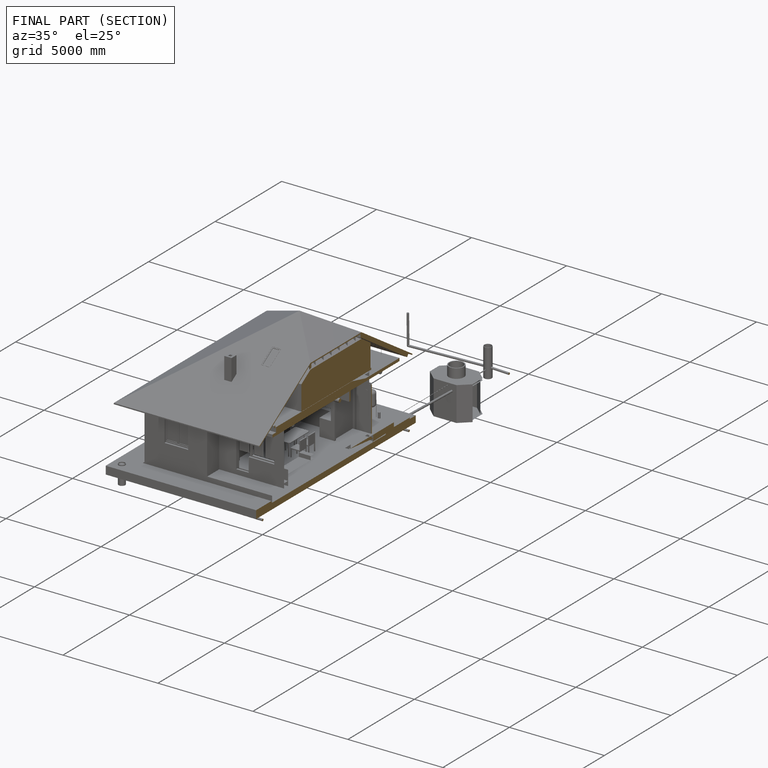
[diagram: finished part — half-section view (interior)]
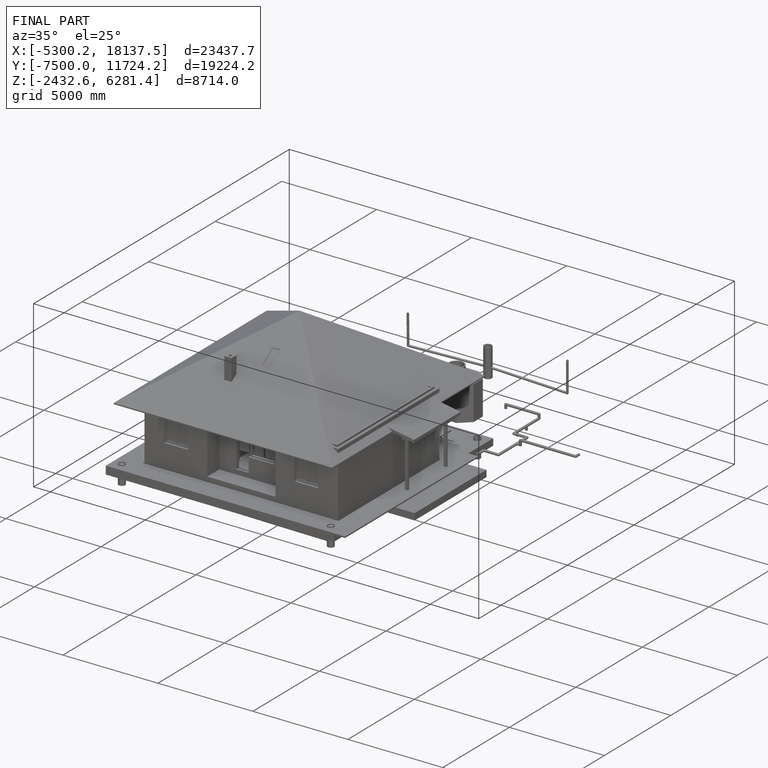
[diagram: finished part — iso view with bounding-box wireframe]
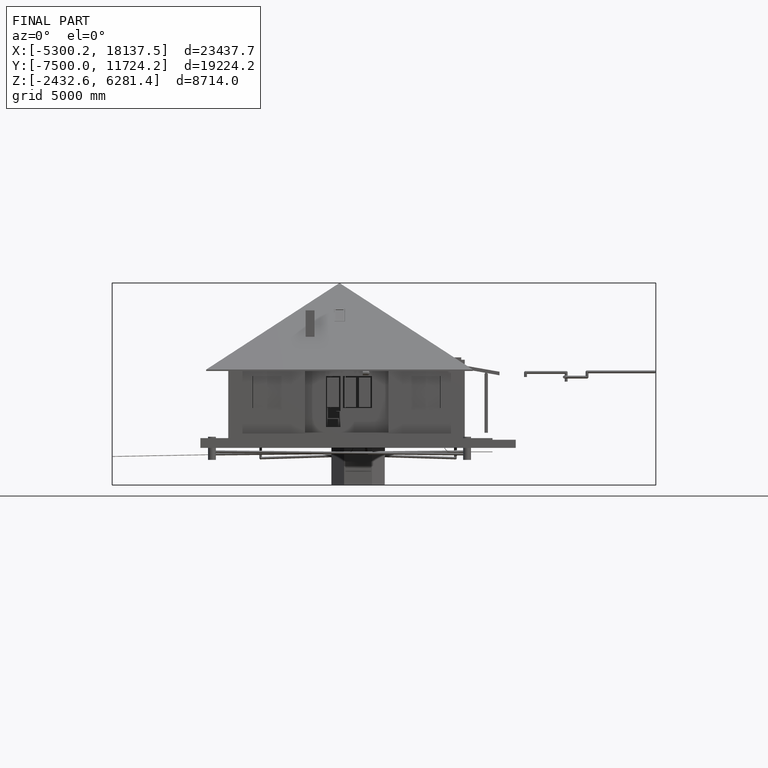
[diagram: finished part — front view with bounding-box wireframe]
